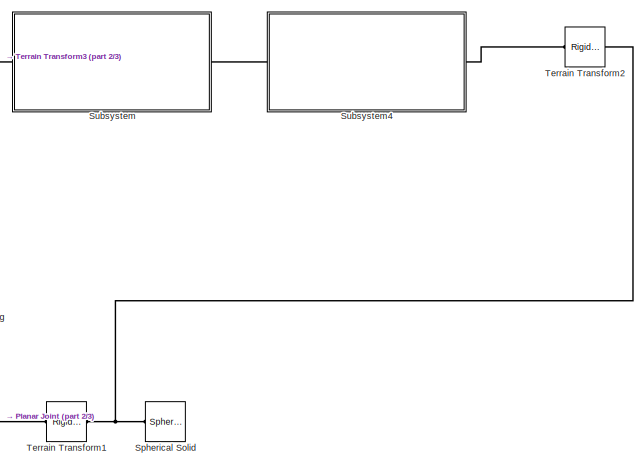
[diagram: root canvas - part 1/3, center side, full height]
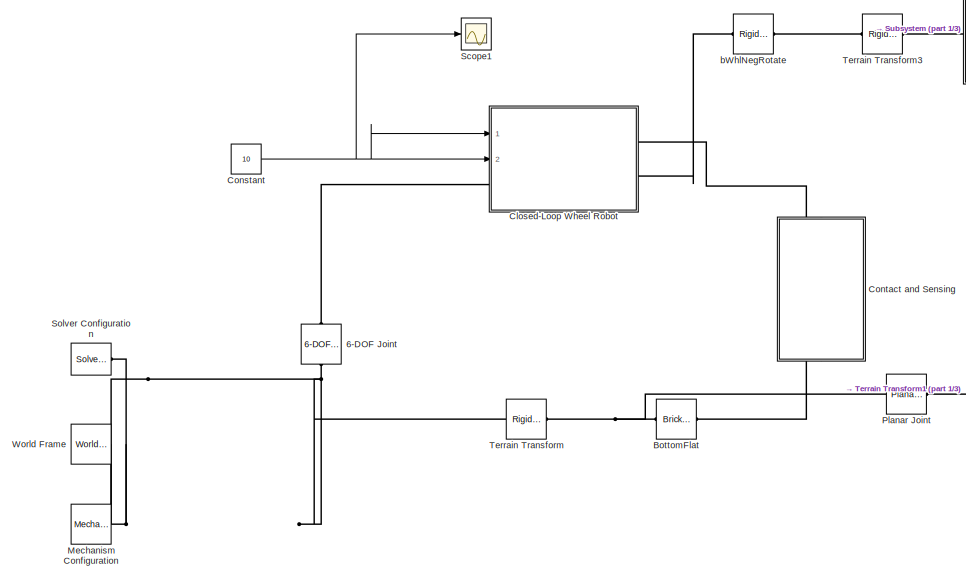
[diagram: root canvas - part 2/3, left side, full height]
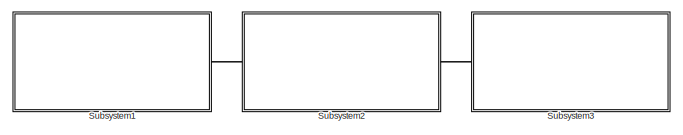
[diagram: root canvas - part 3/3, top right region]
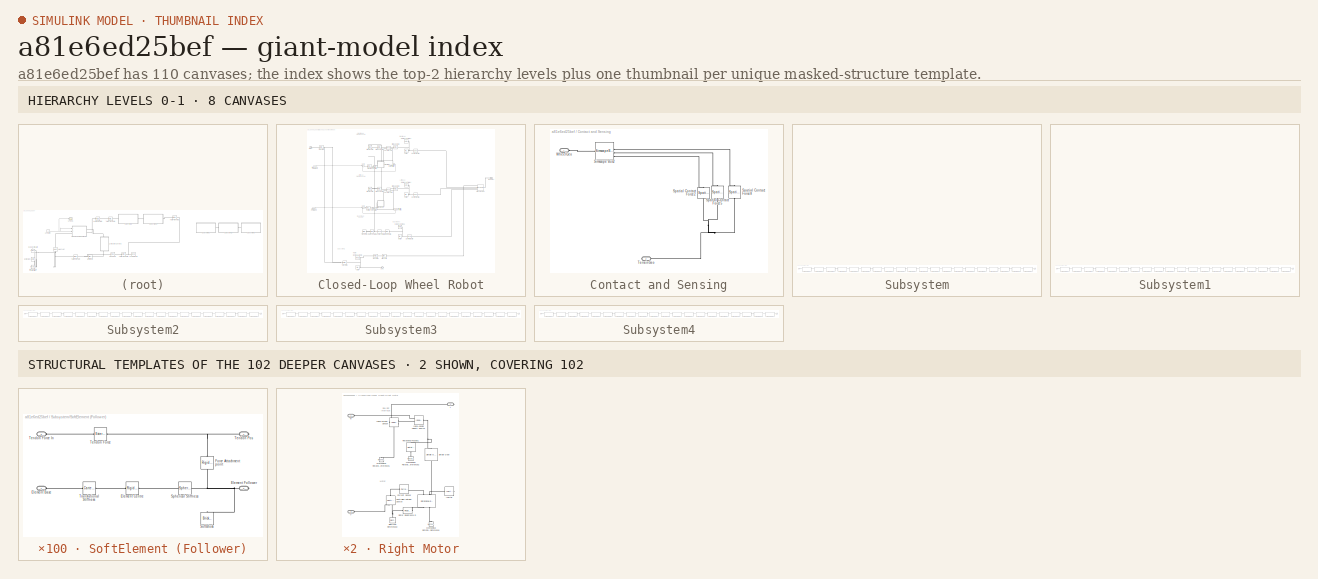
[diagram: thumbnail index - top-2 hierarchy levels (8 canvases) + 2 structural-template representatives of the remaining 102 canvases]
MODEL slx_a81e6ed25bef
KIND model
CONFIG AbsTol = auto
CONFIG EnableMultiTasking = on
CONFIG FixedStep = 0.001
CONFIG MaxStep = auto
CONFIG MinStep = auto
CONFIG RelTol = 1e-3
CONFIG SampleTimeConstraint = Unconstrained
CONFIG SolverName = VariableStepAuto
CONFIG StartTime = 0.0
CONFIG StopTime = 20
WORKSPACE source: external: MATLAB File  (data not in archive)
BLOCK [Reference] 6-DOF Joint  REF=sm_lib/Joints/6-DOF Joint
  NameLocation = right
  Ports = [0, 0, 0, 0, 0, 1, 1]
  SourceBlock = sm_lib/Joints/6-DOF Joint
  SourceProductBaseCode = MS
  SourceType = 6-DOF Joint
BLOCK [Reference] BottomFlat  REF=sm_lib/Body Elements/Brick Solid
  Ports = [0, 0, 0, 0, 0, 1, 1]
  SourceBlock = sm_lib/Body Elements/Brick Solid
  SourceProductBaseCode = MS
  SourceType = Brick Solid
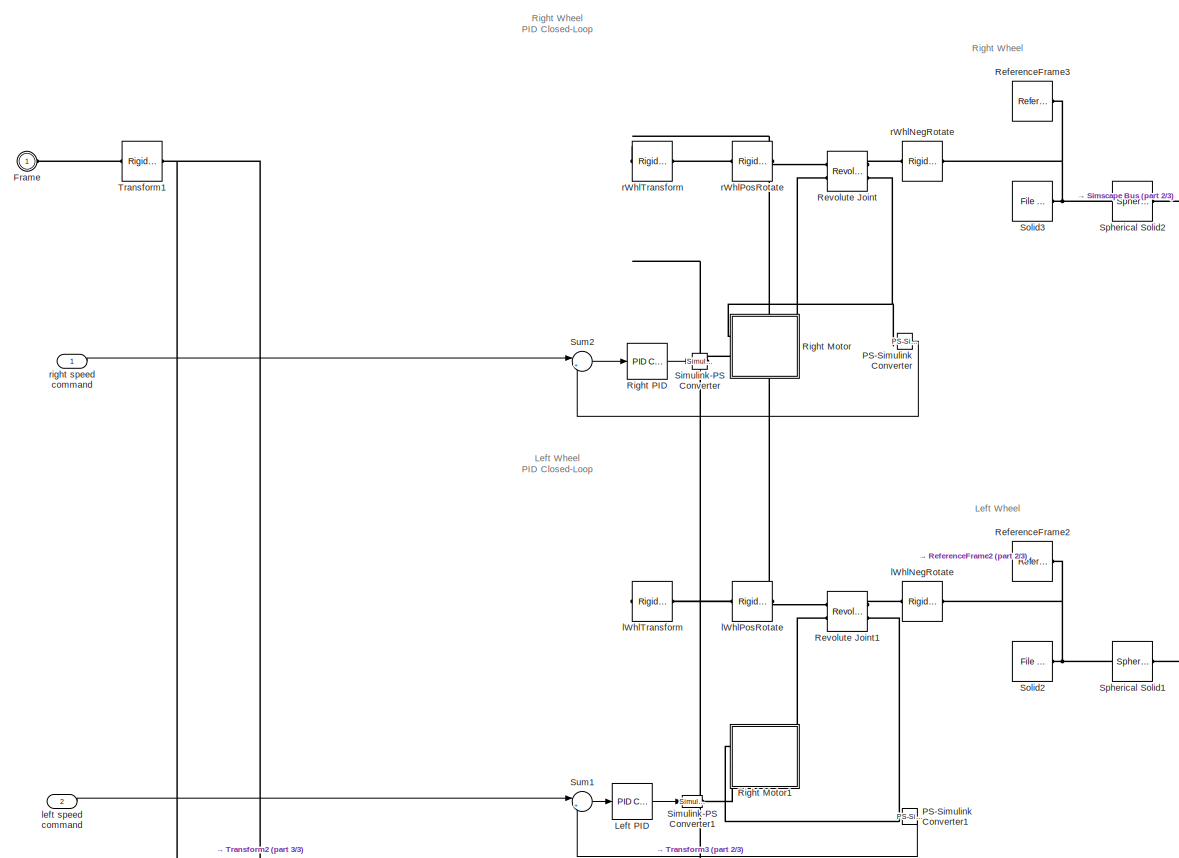
[diagram: Closed-Loop Wheel Robot - part 1/3, top left region]
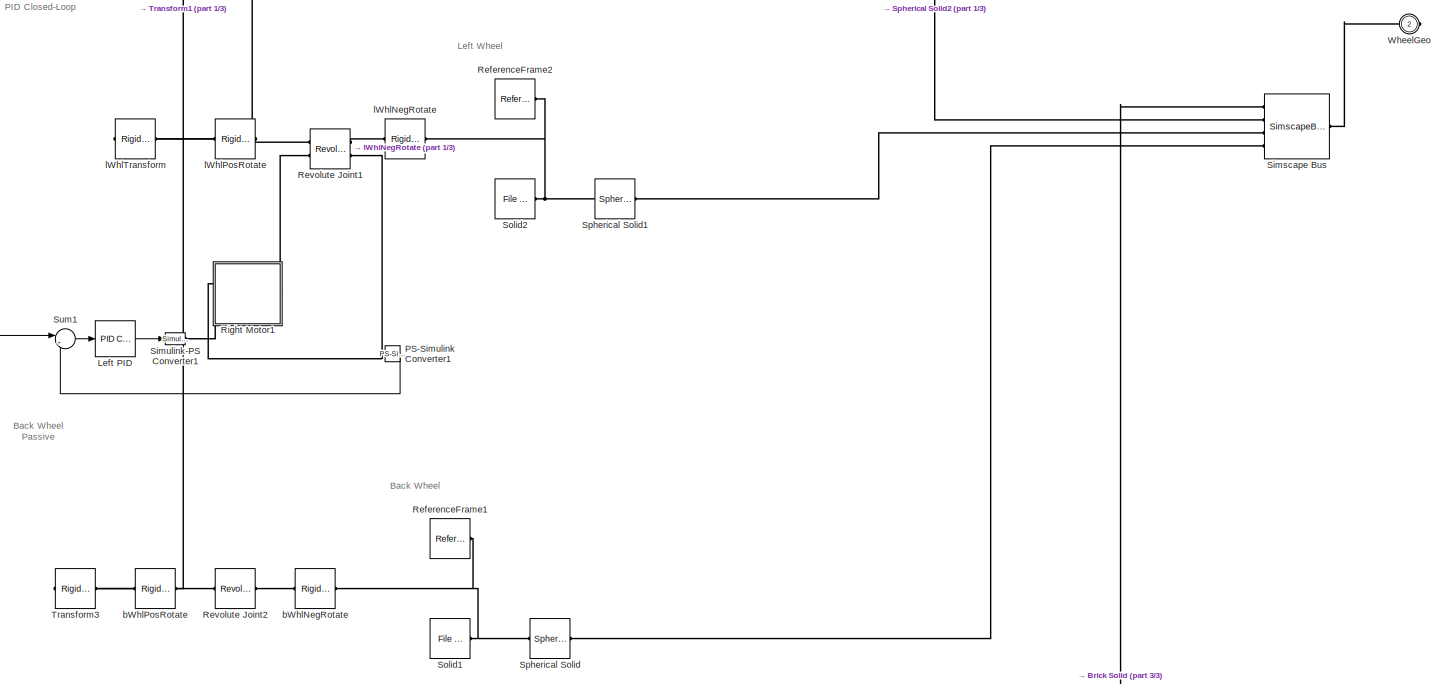
[diagram: Closed-Loop Wheel Robot - part 2/3, full width, middle band]
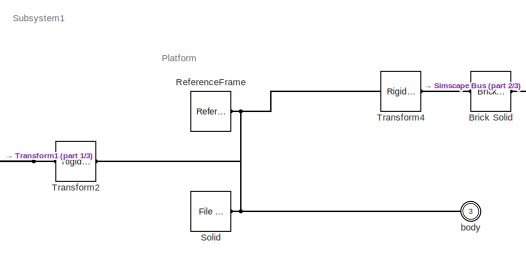
[diagram: Closed-Loop Wheel Robot - part 3/3, bottom left region]
BLOCK [SubSystem] Closed-Loop Wheel Robot
  Ports = [2, 0, 0, 0, 0, 1, 2]
  RequestExecContextInheritance = off
BLOCK [Reference] Closed-Loop Wheel Robot/Brick Solid  REF=sm_lib/Body Elements/Brick Solid
  Ports = [0, 0, 0, 0, 0, 1, 1]
  SourceBlock = sm_lib/Body Elements/Brick Solid
  SourceProductBaseCode = MS
  SourceType = Brick Solid
BLOCK [PMIOPort] Closed-Loop Wheel Robot/Frame
  Side = Left
BLOCK [Reference] Closed-Loop Wheel Robot/Left PID  REF=pid_lib/PID Controller
  Ports = [1, 1]
  SourceBlock = pid_lib/PID Controller
  SourceProductBaseCode = SL
  SourceType = PID 1dof
BLOCK [Reference] Closed-Loop Wheel Robot/PS-Simulink Converter  REF=nesl_utility/PS-Simulink
Converter
  Ports = [0, 1, 0, 0, 0, 1]
  SourceBlock = nesl_utility/PS-Simulink\nConverter
  SourceProductBaseCode = SS
  SourceType = PS-Simulink\nConverter
BLOCK [Reference] Closed-Loop Wheel Robot/PS-Simulink Converter1  REF=nesl_utility/PS-Simulink
Converter
  Ports = [0, 1, 0, 0, 0, 1]
  SourceBlock = nesl_utility/PS-Simulink\nConverter
  SourceProductBaseCode = SS
  SourceType = PS-Simulink\nConverter
BLOCK [Reference] Closed-Loop Wheel Robot/ReferenceFrame  REF=sm_lib/Frames and
Transforms/Reference
Frame
  Ports = [0, 0, 0, 0, 0, 0, 1]
  SourceBlock = sm_lib/Frames and\nTransforms/Reference\nFrame
  SourceProductBaseCode = MS
  SourceType = Reference\nFrame
BLOCK [Reference] Closed-Loop Wheel Robot/ReferenceFrame1  REF=sm_lib/Frames and
Transforms/Reference
Frame
  Ports = [0, 0, 0, 0, 0, 0, 1]
  SourceBlock = sm_lib/Frames and\nTransforms/Reference\nFrame
  SourceProductBaseCode = MS
  SourceType = Reference\nFrame
BLOCK [Reference] Closed-Loop Wheel Robot/ReferenceFrame2  REF=sm_lib/Frames and
Transforms/Reference
Frame
  Ports = [0, 0, 0, 0, 0, 0, 1]
  SourceBlock = sm_lib/Frames and\nTransforms/Reference\nFrame
  SourceProductBaseCode = MS
  SourceType = Reference\nFrame
BLOCK [Reference] Closed-Loop Wheel Robot/ReferenceFrame3  REF=sm_lib/Frames and
Transforms/Reference
Frame
  Ports = [0, 0, 0, 0, 0, 0, 1]
  SourceBlock = sm_lib/Frames and\nTransforms/Reference\nFrame
  SourceProductBaseCode = MS
  SourceType = Reference\nFrame
BLOCK [Reference] Closed-Loop Wheel Robot/Revolute Joint  REF=sm_lib/Joints/Revolute Joint
  Ports = [0, 0, 0, 0, 0, 2, 2]
  SourceBlock = sm_lib/Joints/Revolute Joint
  SourceProductBaseCode = MS
  SourceType = Revolute Joint
BLOCK [Reference] Closed-Loop Wheel Robot/Revolute Joint1  REF=sm_lib/Joints/Revolute Joint
  Ports = [0, 0, 0, 0, 0, 2, 2]
  SourceBlock = sm_lib/Joints/Revolute Joint
  SourceProductBaseCode = MS
  SourceType = Revolute Joint
BLOCK [Reference] Closed-Loop Wheel Robot/Revolute Joint2  REF=sm_lib/Joints/Revolute Joint
  Ports = [0, 0, 0, 0, 0, 1, 1]
  SourceBlock = sm_lib/Joints/Revolute Joint
  SourceProductBaseCode = MS
  SourceType = Revolute Joint
BLOCK [SubSystem] Closed-Loop Wheel Robot/Right Motor
  Ports = [0, 0, 0, 0, 0, 2, 1]
  RequestExecContextInheritance = off
BLOCK [Reference] Closed-Loop Wheel Robot/Right Motor/   REF=fl_lib/Electrical/Electrical Elements/Rotational
Electromechanical
Converter
  NameLocation = right
  Ports = [0, 0, 0, 0, 0, 2, 2]
  SourceBlock = fl_lib/Electrical/Electrical Elements/Rotational\nElectromechanical\nConverter
  SourceProductBaseCode = SS
  SourceType = Rotational\nElectromechanical\nConverter
BLOCK [Reference] Closed-Loop Wheel Robot/Right Motor/Controlled Voltage Source  REF=fl_lib/Electrical/Electrical Sources/Controlled Voltage
Source
  NameLocation = right
  Ports = [0, 0, 0, 0, 0, 1, 2]
  SourceBlock = fl_lib/Electrical/Electrical Sources/Controlled Voltage\nSource
  SourceProductBaseCode = SS
  SourceType = Controlled Voltage\nSource
BLOCK [Reference] Closed-Loop Wheel Robot/Right Motor/Current Sensor  REF=fl_lib/Electrical/Electrical Sensors/Current Sensor
  Ports = [0, 0, 0, 0, 0, 1, 2]
  SourceBlock = fl_lib/Electrical/Electrical Sensors/Current Sensor
  SourceProductBaseCode = SS
  SourceType = Current Sensor
BLOCK [Reference] Closed-Loop Wheel Robot/Right Motor/Electrical Reference2  REF=fl_lib/Electrical/Electrical Elements/Electrical Reference
  NameLocation = right
  Ports = [0, 0, 0, 0, 0, 1]
  SourceBlock = fl_lib/Electrical/Electrical Elements/Electrical Reference
  SourceProductBaseCode = SS
  SourceType = Electrical Reference
BLOCK [Reference] Closed-Loop Wheel Robot/Right Motor/Ideal Angular Velocity Source  REF=fl_lib/Mechanical/Mechanical Sources/Ideal Angular
Velocity Source
  Ports = [0, 0, 0, 0, 0, 1, 2]
  SourceBlock = fl_lib/Mechanical/Mechanical Sources/Ideal Angular\nVelocity Source
  SourceProductBaseCode = SS
  SourceType = Ideal Angular\nVelocity Source
BLOCK [Reference] Closed-Loop Wheel Robot/Right Motor/Ideal Torque Sensor  REF=fl_lib/Mechanical/Mechanical Sensors/Ideal Torque Sensor
  NameLocation = top
  Ports = [0, 0, 0, 0, 0, 1, 2]
  SourceBlock = fl_lib/Mechanical/Mechanical Sensors/Ideal Torque Sensor
  SourceProductBaseCode = SS
  SourceType = Ideal Torque Sensor
BLOCK [Reference] Closed-Loop Wheel Robot/Right Motor/Inertia  REF=fl_lib/Mechanical/Rotational Elements/Inertia
  NameLocation = top
  Ports = [0, 0, 0, 0, 0, 1]
  SourceBlock = fl_lib/Mechanical/Rotational Elements/Inertia
  SourceProductBaseCode = SS
  SourceType = Inertia
BLOCK [Reference] Closed-Loop Wheel Robot/Right Motor/Mechanical Rotational Reference  REF=fl_lib/Mechanical/Rotational Elements/Mechanical
Rotational Reference
  NameLocation = left
  Ports = [0, 0, 0, 0, 0, 1]
  SourceBlock = fl_lib/Mechanical/Rotational Elements/Mechanical\nRotational Reference
  SourceProductBaseCode = SS
  SourceType = Mechanical\nRotational Reference
BLOCK [Reference] Closed-Loop Wheel Robot/Right Motor/Mechanical Rotational Reference1  REF=fl_lib/Mechanical/Rotational Elements/Mechanical
Rotational Reference
  NameLocation = left
  Ports = [0, 0, 0, 0, 0, 1]
  SourceBlock = fl_lib/Mechanical/Rotational Elements/Mechanical\nRotational Reference
  SourceProductBaseCode = SS
  SourceType = Mechanical\nRotational Reference
BLOCK [Reference] Closed-Loop Wheel Robot/Right Motor/Mechanical Rotational Reference2  REF=fl_lib/Mechanical/Rotational Elements/Mechanical
Rotational Reference
  NameLocation = left
  Ports = [0, 0, 0, 0, 0, 1]
  SourceBlock = fl_lib/Mechanical/Rotational Elements/Mechanical\nRotational Reference
  SourceProductBaseCode = SS
  SourceType = Mechanical\nRotational Reference
BLOCK [Reference] Closed-Loop Wheel Robot/Right Motor/Rotational Friction1  REF=fl_lib/Mechanical/Rotational Elements/Rotational Friction
  NameLocation = left
  Ports = [0, 0, 0, 0, 0, 1, 1]
  SourceBlock = fl_lib/Mechanical/Rotational Elements/Rotational Friction
  SourceProductBaseCode = SS
  SourceType = Rotational Friction
BLOCK [Reference] Closed-Loop Wheel Robot/Right Motor/Rotor Resistance,R  REF=fl_lib/Electrical/Electrical Elements/Resistor
  Ports = [0, 0, 0, 0, 0, 1, 1]
  SourceBlock = fl_lib/Electrical/Electrical Elements/Resistor
  SourceProductBaseCode = SS
  SourceType = Resistor
  Tag = Factory Generic
BLOCK [Reference] Closed-Loop Wheel Robot/Right Motor/Simple Gear  REF=sdl_lib/Gears/Simple Gear
  NameLocation = right
  Ports = [0, 0, 0, 0, 0, 1, 1]
  SourceBlock = sdl_lib/Gears/Simple Gear
  SourceProductBaseCode = LD
  SourceType = Simple Gear
BLOCK [PMIOPort] Closed-Loop Wheel Robot/Right Motor/V
  Port = 3
  Side = Left
BLOCK [PMIOPort] Closed-Loop Wheel Robot/Right Motor/t
  Port = 2
  Side = Right
BLOCK [PMIOPort] Closed-Loop Wheel Robot/Right Motor/w
  Side = Left
BLOCK [SubSystem] Closed-Loop Wheel Robot/Right Motor1
  Ports = [0, 0, 0, 0, 0, 2, 1]
  RequestExecContextInheritance = off
BLOCK [Reference] Closed-Loop Wheel Robot/Right Motor1/   REF=fl_lib/Electrical/Electrical Elements/Rotational
Electromechanical
Converter
  NameLocation = right
  Ports = [0, 0, 0, 0, 0, 2, 2]
  SourceBlock = fl_lib/Electrical/Electrical Elements/Rotational\nElectromechanical\nConverter
  SourceProductBaseCode = SS
  SourceType = Rotational\nElectromechanical\nConverter
BLOCK [Reference] Closed-Loop Wheel Robot/Right Motor1/Controlled Voltage Source  REF=fl_lib/Electrical/Electrical Sources/Controlled Voltage
Source
  NameLocation = right
  Ports = [0, 0, 0, 0, 0, 1, 2]
  SourceBlock = fl_lib/Electrical/Electrical Sources/Controlled Voltage\nSource
  SourceProductBaseCode = SS
  SourceType = Controlled Voltage\nSource
BLOCK [Reference] Closed-Loop Wheel Robot/Right Motor1/Current Sensor  REF=fl_lib/Electrical/Electrical Sensors/Current Sensor
  Ports = [0, 0, 0, 0, 0, 1, 2]
  SourceBlock = fl_lib/Electrical/Electrical Sensors/Current Sensor
  SourceProductBaseCode = SS
  SourceType = Current Sensor
BLOCK [Reference] Closed-Loop Wheel Robot/Right Motor1/Electrical Reference2  REF=fl_lib/Electrical/Electrical Elements/Electrical Reference
  NameLocation = right
  Ports = [0, 0, 0, 0, 0, 1]
  SourceBlock = fl_lib/Electrical/Electrical Elements/Electrical Reference
  SourceProductBaseCode = SS
  SourceType = Electrical Reference
BLOCK [Reference] Closed-Loop Wheel Robot/Right Motor1/Ideal Angular Velocity Source  REF=fl_lib/Mechanical/Mechanical Sources/Ideal Angular
Velocity Source
  Ports = [0, 0, 0, 0, 0, 1, 2]
  SourceBlock = fl_lib/Mechanical/Mechanical Sources/Ideal Angular\nVelocity Source
  SourceProductBaseCode = SS
  SourceType = Ideal Angular\nVelocity Source
BLOCK [Reference] Closed-Loop Wheel Robot/Right Motor1/Ideal Torque Sensor  REF=fl_lib/Mechanical/Mechanical Sensors/Ideal Torque Sensor
  NameLocation = top
  Ports = [0, 0, 0, 0, 0, 1, 2]
  SourceBlock = fl_lib/Mechanical/Mechanical Sensors/Ideal Torque Sensor
  SourceProductBaseCode = SS
  SourceType = Ideal Torque Sensor
BLOCK [Reference] Closed-Loop Wheel Robot/Right Motor1/Inertia  REF=fl_lib/Mechanical/Rotational Elements/Inertia
  NameLocation = top
  Ports = [0, 0, 0, 0, 0, 1]
  SourceBlock = fl_lib/Mechanical/Rotational Elements/Inertia
  SourceProductBaseCode = SS
  SourceType = Inertia
BLOCK [Reference] Closed-Loop Wheel Robot/Right Motor1/Mechanical Rotational Reference  REF=fl_lib/Mechanical/Rotational Elements/Mechanical
Rotational Reference
  NameLocation = left
  Ports = [0, 0, 0, 0, 0, 1]
  SourceBlock = fl_lib/Mechanical/Rotational Elements/Mechanical\nRotational Reference
  SourceProductBaseCode = SS
  SourceType = Mechanical\nRotational Reference
BLOCK [Reference] Closed-Loop Wheel Robot/Right Motor1/Mechanical Rotational Reference1  REF=fl_lib/Mechanical/Rotational Elements/Mechanical
Rotational Reference
  NameLocation = left
  Ports = [0, 0, 0, 0, 0, 1]
  SourceBlock = fl_lib/Mechanical/Rotational Elements/Mechanical\nRotational Reference
  SourceProductBaseCode = SS
  SourceType = Mechanical\nRotational Reference
BLOCK [Reference] Closed-Loop Wheel Robot/Right Motor1/Mechanical Rotational Reference2  REF=fl_lib/Mechanical/Rotational Elements/Mechanical
Rotational Reference
  NameLocation = left
  Ports = [0, 0, 0, 0, 0, 1]
  SourceBlock = fl_lib/Mechanical/Rotational Elements/Mechanical\nRotational Reference
  SourceProductBaseCode = SS
  SourceType = Mechanical\nRotational Reference
BLOCK [Reference] Closed-Loop Wheel Robot/Right Motor1/Rotational Friction2  REF=fl_lib/Mechanical/Rotational Elements/Rotational Friction
  NameLocation = left
  Ports = [0, 0, 0, 0, 0, 1, 1]
  SourceBlock = fl_lib/Mechanical/Rotational Elements/Rotational Friction
  SourceProductBaseCode = SS
  SourceType = Rotational Friction
BLOCK [Reference] Closed-Loop Wheel Robot/Right Motor1/Rotor Resistance,R  REF=fl_lib/Electrical/Electrical Elements/Resistor
  Ports = [0, 0, 0, 0, 0, 1, 1]
  SourceBlock = fl_lib/Electrical/Electrical Elements/Resistor
  SourceProductBaseCode = SS
  SourceType = Resistor
  Tag = Factory Generic
BLOCK [Reference] Closed-Loop Wheel Robot/Right Motor1/Simple Gear  REF=sdl_lib/Gears/Simple Gear
  NameLocation = right
  Ports = [0, 0, 0, 0, 0, 1, 1]
  SourceBlock = sdl_lib/Gears/Simple Gear
  SourceProductBaseCode = LD
  SourceType = Simple Gear
BLOCK [PMIOPort] Closed-Loop Wheel Robot/Right Motor1/V
  Port = 3
  Side = Left
BLOCK [PMIOPort] Closed-Loop Wheel Robot/Right Motor1/t
  Port = 2
  Side = Right
BLOCK [PMIOPort] Closed-Loop Wheel Robot/Right Motor1/w
  Side = Left
BLOCK [Reference] Closed-Loop Wheel Robot/Right PID  REF=pid_lib/PID Controller
  Ports = [1, 1]
  SourceBlock = pid_lib/PID Controller
  SourceProductBaseCode = SL
  SourceType = PID 1dof
BLOCK [SimscapeBus] Closed-Loop Wheel Robot/Simscape Bus
  HierarchyStrings = bodyGeo;rWhlGeo;lWhlGeo;bWhlGeo
  Ports = [0, 0, 0, 0, 0, 4, 1]
BLOCK [Reference] Closed-Loop Wheel Robot/Simulink-PS Converter  REF=nesl_utility/Simulink-PS
Converter
  Ports = [1, 0, 0, 0, 0, 0, 1]
  SourceBlock = nesl_utility/Simulink-PS\nConverter
  SourceProductBaseCode = SS
  SourceType = Simulink-PS\nConverter
BLOCK [Reference] Closed-Loop Wheel Robot/Simulink-PS Converter1  REF=nesl_utility/Simulink-PS
Converter
  Ports = [1, 0, 0, 0, 0, 0, 1]
  SourceBlock = nesl_utility/Simulink-PS\nConverter
  SourceProductBaseCode = SS
  SourceType = Simulink-PS\nConverter
BLOCK [Reference] Closed-Loop Wheel Robot/Solid  REF=sm_lib/Body Elements/File Solid
  Ports = [0, 0, 0, 0, 0, 0, 1]
  SourceBlock = sm_lib/Body Elements/File Solid
  SourceProductBaseCode = MS
  SourceType = File Solid
BLOCK [Reference] Closed-Loop Wheel Robot/Solid1  REF=sm_lib/Body Elements/File Solid
  Ports = [0, 0, 0, 0, 0, 0, 1]
  SourceBlock = sm_lib/Body Elements/File Solid
  SourceProductBaseCode = MS
  SourceType = File Solid
BLOCK [Reference] Closed-Loop Wheel Robot/Solid2  REF=sm_lib/Body Elements/File Solid
  Ports = [0, 0, 0, 0, 0, 0, 1]
  SourceBlock = sm_lib/Body Elements/File Solid
  SourceProductBaseCode = MS
  SourceType = File Solid
BLOCK [Reference] Closed-Loop Wheel Robot/Solid3  REF=sm_lib/Body Elements/File Solid
  Ports = [0, 0, 0, 0, 0, 0, 1]
  SourceBlock = sm_lib/Body Elements/File Solid
  SourceProductBaseCode = MS
  SourceType = File Solid
BLOCK [Reference] Closed-Loop Wheel Robot/Spherical Solid  REF=sm_lib/Body Elements/Spherical Solid
  Ports = [0, 0, 0, 0, 0, 1, 1]
  SourceBlock = sm_lib/Body Elements/Spherical Solid
  SourceProductBaseCode = MS
  SourceType = Spherical Solid
BLOCK [Reference] Closed-Loop Wheel Robot/Spherical Solid1  REF=sm_lib/Body Elements/Spherical Solid
  Ports = [0, 0, 0, 0, 0, 1, 1]
  SourceBlock = sm_lib/Body Elements/Spherical Solid
  SourceProductBaseCode = MS
  SourceType = Spherical Solid
BLOCK [Reference] Closed-Loop Wheel Robot/Spherical Solid2  REF=sm_lib/Body Elements/Spherical Solid
  Ports = [0, 0, 0, 0, 0, 1, 1]
  SourceBlock = sm_lib/Body Elements/Spherical Solid
  SourceProductBaseCode = MS
  SourceType = Spherical Solid
BLOCK [Sum] Closed-Loop Wheel Robot/Sum1
  Inputs = |+-
  Ports = [2, 1]
BLOCK [Sum] Closed-Loop Wheel Robot/Sum2
  Inputs = |+-
  Ports = [2, 1]
BLOCK [Reference] Closed-Loop Wheel Robot/Transform1  REF=sm_lib/Frames and
Transforms/Rigid
Transform
  Ports = [0, 0, 0, 0, 0, 1, 1]
  SourceBlock = sm_lib/Frames and\nTransforms/Rigid\nTransform
  SourceProductBaseCode = MS
  SourceType = Rigid\nTransform
BLOCK [Reference] Closed-Loop Wheel Robot/Transform2  REF=sm_lib/Frames and
Transforms/Rigid
Transform
  Ports = [0, 0, 0, 0, 0, 1, 1]
  SourceBlock = sm_lib/Frames and\nTransforms/Rigid\nTransform
  SourceProductBaseCode = MS
  SourceType = Rigid\nTransform
BLOCK [Reference] Closed-Loop Wheel Robot/Transform3  REF=sm_lib/Frames and
Transforms/Rigid
Transform
  Ports = [0, 0, 0, 0, 0, 1, 1]
  SourceBlock = sm_lib/Frames and\nTransforms/Rigid\nTransform
  SourceProductBaseCode = MS
  SourceType = Rigid\nTransform
BLOCK [Reference] Closed-Loop Wheel Robot/Transform4  REF=sm_lib/Frames and
Transforms/Rigid
Transform
  Ports = [0, 0, 0, 0, 0, 1, 1]
  SourceBlock = sm_lib/Frames and\nTransforms/Rigid\nTransform
  SourceProductBaseCode = MS
  SourceType = Rigid\nTransform
BLOCK [PMIOPort] Closed-Loop Wheel Robot/WheelGeo
  Port = 2
  Side = Right
BLOCK [Reference] Closed-Loop Wheel Robot/bWhlNegRotate  REF=sm_lib/Frames and
Transforms/Rigid
Transform
  Ports = [0, 0, 0, 0, 0, 1, 1]
  SourceBlock = sm_lib/Frames and\nTransforms/Rigid\nTransform
  SourceProductBaseCode = MS
  SourceType = Rigid\nTransform
BLOCK [Reference] Closed-Loop Wheel Robot/bWhlPosRotate  REF=sm_lib/Frames and
Transforms/Rigid
Transform
  Ports = [0, 0, 0, 0, 0, 1, 1]
  SourceBlock = sm_lib/Frames and\nTransforms/Rigid\nTransform
  SourceProductBaseCode = MS
  SourceType = Rigid\nTransform
BLOCK [PMIOPort] Closed-Loop Wheel Robot/body
  Port = 3
  Side = Right
BLOCK [Reference] Closed-Loop Wheel Robot/lWhlNegRotate  REF=sm_lib/Frames and
Transforms/Rigid
Transform
  Ports = [0, 0, 0, 0, 0, 1, 1]
  SourceBlock = sm_lib/Frames and\nTransforms/Rigid\nTransform
  SourceProductBaseCode = MS
  SourceType = Rigid\nTransform
BLOCK [Reference] Closed-Loop Wheel Robot/lWhlPosRotate  REF=sm_lib/Frames and
Transforms/Rigid
Transform
  Ports = [0, 0, 0, 0, 0, 1, 1]
  SourceBlock = sm_lib/Frames and\nTransforms/Rigid\nTransform
  SourceProductBaseCode = MS
  SourceType = Rigid\nTransform
BLOCK [Reference] Closed-Loop Wheel Robot/lWhlTransform  REF=sm_lib/Frames and
Transforms/Rigid
Transform
  Ports = [0, 0, 0, 0, 0, 1, 1]
  SourceBlock = sm_lib/Frames and\nTransforms/Rigid\nTransform
  SourceProductBaseCode = MS
  SourceType = Rigid\nTransform
BLOCK [Inport] Closed-Loop Wheel Robot/left speed command
  Port = 2
BLOCK [Reference] Closed-Loop Wheel Robot/rWhlNegRotate  REF=sm_lib/Frames and
Transforms/Rigid
Transform
  Ports = [0, 0, 0, 0, 0, 1, 1]
  SourceBlock = sm_lib/Frames and\nTransforms/Rigid\nTransform
  SourceProductBaseCode = MS
  SourceType = Rigid\nTransform
BLOCK [Reference] Closed-Loop Wheel Robot/rWhlPosRotate  REF=sm_lib/Frames and
Transforms/Rigid
Transform
  Ports = [0, 0, 0, 0, 0, 1, 1]
  SourceBlock = sm_lib/Frames and\nTransforms/Rigid\nTransform
  SourceProductBaseCode = MS
  SourceType = Rigid\nTransform
BLOCK [Reference] Closed-Loop Wheel Robot/rWhlTransform  REF=sm_lib/Frames and
Transforms/Rigid
Transform
  Ports = [0, 0, 0, 0, 0, 1, 1]
  SourceBlock = sm_lib/Frames and\nTransforms/Rigid\nTransform
  SourceProductBaseCode = MS
  SourceType = Rigid\nTransform
BLOCK [Inport] Closed-Loop Wheel Robot/right speed command
BLOCK [Constant] Constant
  Value = 10
BLOCK [SubSystem] Contact and Sensing
  NameLocation = right
  Ports = [0, 0, 0, 0, 0, 1, 1]
  RequestExecContextInheritance = off
BLOCK [SimscapeBus] Contact and Sensing/Simscape Bus2
  HierarchyStrings = bodyGeo;rWhlGeo;lWhlGeo;bWhlGeo
  Ports = [0, 0, 0, 0, 0, 4, 1]
BLOCK [Reference] Contact and Sensing/Spatial Contact Force2  REF=sm_lib/Forces and
Torques/Spatial
Contact Force
  NameLocation = right
  Ports = [0, 0, 0, 0, 0, 1, 1]
  SourceBlock = sm_lib/Forces and\nTorques/Spatial\nContact Force
  SourceProductBaseCode = MS
  SourceType = Spatial\nContact Force
BLOCK [Reference] Contact and Sensing/Spatial Contact Force5  REF=sm_lib/Forces and
Torques/Spatial
Contact Force
  NameLocation = right
  Ports = [0, 0, 0, 0, 0, 1, 1]
  SourceBlock = sm_lib/Forces and\nTorques/Spatial\nContact Force
  SourceProductBaseCode = MS
  SourceType = Spatial\nContact Force
BLOCK [Reference] Contact and Sensing/Spatial Contact Force8  REF=sm_lib/Forces and
Torques/Spatial
Contact Force
  NameLocation = right
  Ports = [0, 0, 0, 0, 0, 1, 1]
  SourceBlock = sm_lib/Forces and\nTorques/Spatial\nContact Force
  SourceProductBaseCode = MS
  SourceType = Spatial\nContact Force
BLOCK [PMIOPort] Contact and Sensing/TerrainGeo
  Port = 2
  Side = Right
BLOCK [PMIOPort] Contact and Sensing/WheelGeo
  Side = Left
BLOCK [Reference] Mechanism Configuration  REF=sm_lib/Utilities/Mechanism
Configuration
  Ports = [0, 0, 0, 0, 0, 0, 1]
  SourceBlock = sm_lib/Utilities/Mechanism\nConfiguration
  SourceProductBaseCode = MS
  SourceType = Mechanism\nConfiguration
BLOCK [Reference] Planar Joint  REF=sm_lib/Joints/Planar Joint
  Ports = [0, 0, 0, 0, 0, 1, 1]
  SourceBlock = sm_lib/Joints/Planar Joint
  SourceProductBaseCode = MS
  SourceType = Planar Joint
BLOCK [Scope] Scope1
  Floating = off
  NumInputPorts = 1
  Ports = [1]
  ScopeSpecificationString = Simulink.scopes.TimeScopeBlockCfg('CurrentConfiguration', extmgr.ConfigurationSet(extmgr.Configuration('Core','General UI',true),extmgr.Configuration('Core','Source UI',true),extmgr.Configuration('Sources','WiredSimulink',true,'DataLoggingVariableName','ScopeData1'),extmgr.Configuration('Visuals','Time Domain',true,'SerializedDisplays',{struct('MinYLimReal','-0.13144','MaxYLimReal','1.18612','YLab...<+1481ch>
BLOCK [Reference] Solver Configuration  REF=nesl_utility/Solver
Configuration
  Ports = [0, 0, 0, 0, 0, 0, 1]
  SourceBlock = nesl_utility/Solver\nConfiguration
  SourceProductBaseCode = SS
  SourceType = Solver\nConfiguration
BLOCK [Reference] Spherical Solid  REF=sm_lib/Body Elements/Spherical Solid
  Ports = [0, 0, 0, 0, 0, 1, 1]
  SourceBlock = sm_lib/Body Elements/Spherical Solid
  SourceProductBaseCode = MS
  SourceType = Spherical Solid
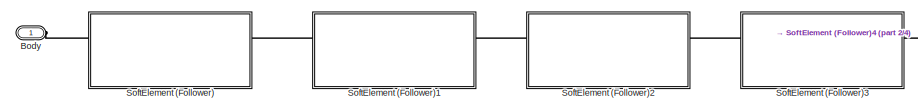
[diagram: Subsystem - part 1/4, left side, full height]
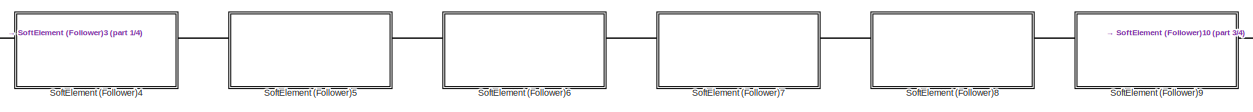
[diagram: Subsystem - part 2/4, center side, full height]
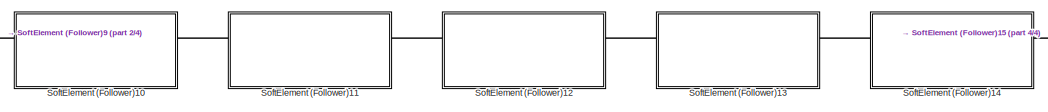
[diagram: Subsystem - part 3/4, center side, full height]
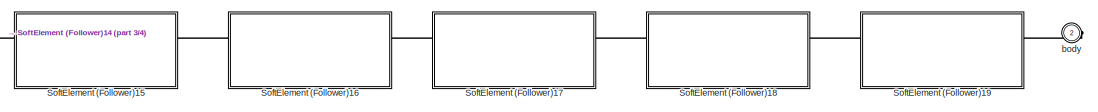
[diagram: Subsystem - part 4/4, right side, full height]
BLOCK [SubSystem] Subsystem
  Ports = [0, 0, 0, 0, 0, 1, 1]
  RequestExecContextInheritance = off
BLOCK [PMIOPort] Subsystem/Body
  Side = Left
BLOCK [SubSystem] Subsystem/SoftElement (Follower)
  Ports = [0, 0, 0, 0, 0, 2, 2]
  RequestExecContextInheritance = off
BLOCK [PMIOPort] Subsystem/SoftElement (Follower)/Element Base
  Side = Left
BLOCK [Reference] Subsystem/SoftElement (Follower)/Element Centre  REF=sm_lib/Frames and
Transforms/Rigid
Transform
  Ports = [0, 0, 0, 0, 0, 1, 1]
  SourceBlock = sm_lib/Frames and\nTransforms/Rigid\nTransform
  SourceProductBaseCode = MS
  SourceType = Rigid\nTransform
BLOCK [PMIOPort] Subsystem/SoftElement (Follower)/Element Follower
  Port = 2
  Side = Right
BLOCK [Reference] Subsystem/SoftElement (Follower)/Force Attachment point  REF=sm_lib/Frames and
Transforms/Rigid
Transform
  NameLocation = right
  Ports = [0, 0, 0, 0, 0, 1, 1]
  SourceBlock = sm_lib/Frames and\nTransforms/Rigid\nTransform
  SourceProductBaseCode = MS
  SourceType = Rigid\nTransform
BLOCK [Reference] Subsystem/SoftElement (Follower)/SoftBlock  REF=sm_lib/Body Elements/Brick Solid
  NameLocation = right
  Ports = [0, 0, 0, 0, 0, 0, 1]
  SourceBlock = sm_lib/Body Elements/Brick Solid
  SourceProductBaseCode = MS
  SourceType = Brick Solid
BLOCK [Reference] Subsystem/SoftElement (Follower)/Spherical Stiffness  REF=sm_lib/Joints/Spherical
Joint
  Ports = [0, 0, 0, 0, 0, 1, 1]
  SourceBlock = sm_lib/Joints/Spherical\nJoint
  SourceProductBaseCode = MS
  SourceType = Spherical\nJoint
BLOCK [Reference] Subsystem/SoftElement (Follower)/Tendon Force  REF=sm_lib/Forces and
Torques/External Force
and Torque
  Ports = [0, 0, 0, 0, 0, 1, 1]
  SourceBlock = sm_lib/Forces and\nTorques/External Force\nand Torque
  SourceProductBaseCode = MS
  SourceType = External Force\nand Torque
BLOCK [PMIOPort] Subsystem/SoftElement (Follower)/Tendon Force In
  Port = 3
  Side = Left
BLOCK [PMIOPort] Subsystem/SoftElement (Follower)/Tendon Pos
  Port = 4
  Side = Right
BLOCK [Reference] Subsystem/SoftElement (Follower)/Translational Stiffness  REF=sm_lib/Joints/Cartesian
Joint
  Ports = [0, 0, 0, 0, 0, 1, 1]
  SourceBlock = sm_lib/Joints/Cartesian\nJoint
  SourceProductBaseCode = MS
  SourceType = Cartesian\nJoint
BLOCK [SubSystem] Subsystem/SoftElement (Follower)1
  Ports = [0, 0, 0, 0, 0, 2, 2]
  RequestExecContextInheritance = off
BLOCK [PMIOPort] Subsystem/SoftElement (Follower)1/Element Base
  Side = Left
BLOCK [Reference] Subsystem/SoftElement (Follower)1/Element Centre  REF=sm_lib/Frames and
Transforms/Rigid
Transform
  Ports = [0, 0, 0, 0, 0, 1, 1]
  SourceBlock = sm_lib/Frames and\nTransforms/Rigid\nTransform
  SourceProductBaseCode = MS
  SourceType = Rigid\nTransform
BLOCK [PMIOPort] Subsystem/SoftElement (Follower)1/Element Follower
  Port = 2
  Side = Right
BLOCK [Reference] Subsystem/SoftElement (Follower)1/Force Attachment point  REF=sm_lib/Frames and
Transforms/Rigid
Transform
  NameLocation = right
  Ports = [0, 0, 0, 0, 0, 1, 1]
  SourceBlock = sm_lib/Frames and\nTransforms/Rigid\nTransform
  SourceProductBaseCode = MS
  SourceType = Rigid\nTransform
BLOCK [Reference] Subsystem/SoftElement (Follower)1/SoftBlock  REF=sm_lib/Body Elements/Brick Solid
  NameLocation = right
  Ports = [0, 0, 0, 0, 0, 0, 1]
  SourceBlock = sm_lib/Body Elements/Brick Solid
  SourceProductBaseCode = MS
  SourceType = Brick Solid
BLOCK [Reference] Subsystem/SoftElement (Follower)1/Spherical Stiffness  REF=sm_lib/Joints/Spherical
Joint
  Ports = [0, 0, 0, 0, 0, 1, 1]
  SourceBlock = sm_lib/Joints/Spherical\nJoint
  SourceProductBaseCode = MS
  SourceType = Spherical\nJoint
BLOCK [Reference] Subsystem/SoftElement (Follower)1/Tendon Force  REF=sm_lib/Forces and
Torques/External Force
and Torque
  Ports = [0, 0, 0, 0, 0, 1, 1]
  SourceBlock = sm_lib/Forces and\nTorques/External Force\nand Torque
  SourceProductBaseCode = MS
  SourceType = External Force\nand Torque
BLOCK [PMIOPort] Subsystem/SoftElement (Follower)1/Tendon Force In
  Port = 3
  Side = Left
BLOCK [PMIOPort] Subsystem/SoftElement (Follower)1/Tendon Pos
  Port = 4
  Side = Right
BLOCK [Reference] Subsystem/SoftElement (Follower)1/Translational Stiffness  REF=sm_lib/Joints/Cartesian
Joint
  Ports = [0, 0, 0, 0, 0, 1, 1]
  SourceBlock = sm_lib/Joints/Cartesian\nJoint
  SourceProductBaseCode = MS
  SourceType = Cartesian\nJoint
BLOCK [SubSystem] Subsystem/SoftElement (Follower)10
  Ports = [0, 0, 0, 0, 0, 2, 2]
  RequestExecContextInheritance = off
BLOCK [PMIOPort] Subsystem/SoftElement (Follower)10/Element Base
  Side = Left
BLOCK [Reference] Subsystem/SoftElement (Follower)10/Element Centre  REF=sm_lib/Frames and
Transforms/Rigid
Transform
  Ports = [0, 0, 0, 0, 0, 1, 1]
  SourceBlock = sm_lib/Frames and\nTransforms/Rigid\nTransform
  SourceProductBaseCode = MS
  SourceType = Rigid\nTransform
BLOCK [PMIOPort] Subsystem/SoftElement (Follower)10/Element Follower
  Port = 2
  Side = Right
BLOCK [Reference] Subsystem/SoftElement (Follower)10/Force Attachment point  REF=sm_lib/Frames and
Transforms/Rigid
Transform
  NameLocation = right
  Ports = [0, 0, 0, 0, 0, 1, 1]
  SourceBlock = sm_lib/Frames and\nTransforms/Rigid\nTransform
  SourceProductBaseCode = MS
  SourceType = Rigid\nTransform
BLOCK [Reference] Subsystem/SoftElement (Follower)10/SoftBlock  REF=sm_lib/Body Elements/Brick Solid
  NameLocation = right
  Ports = [0, 0, 0, 0, 0, 0, 1]
  SourceBlock = sm_lib/Body Elements/Brick Solid
  SourceProductBaseCode = MS
  SourceType = Brick Solid
BLOCK [Reference] Subsystem/SoftElement (Follower)10/Spherical Stiffness  REF=sm_lib/Joints/Spherical
Joint
  Ports = [0, 0, 0, 0, 0, 1, 1]
  SourceBlock = sm_lib/Joints/Spherical\nJoint
  SourceProductBaseCode = MS
  SourceType = Spherical\nJoint
BLOCK [Reference] Subsystem/SoftElement (Follower)10/Tendon Force  REF=sm_lib/Forces and
Torques/External Force
and Torque
  Ports = [0, 0, 0, 0, 0, 1, 1]
  SourceBlock = sm_lib/Forces and\nTorques/External Force\nand Torque
  SourceProductBaseCode = MS
  SourceType = External Force\nand Torque
BLOCK [PMIOPort] Subsystem/SoftElement (Follower)10/Tendon Force In
  Port = 3
  Side = Left
BLOCK [PMIOPort] Subsystem/SoftElement (Follower)10/Tendon Pos
  Port = 4
  Side = Right
BLOCK [Reference] Subsystem/SoftElement (Follower)10/Translational Stiffness  REF=sm_lib/Joints/Cartesian
Joint
  Ports = [0, 0, 0, 0, 0, 1, 1]
  SourceBlock = sm_lib/Joints/Cartesian\nJoint
  SourceProductBaseCode = MS
  SourceType = Cartesian\nJoint
BLOCK [SubSystem] Subsystem/SoftElement (Follower)11
  Ports = [0, 0, 0, 0, 0, 2, 2]
  RequestExecContextInheritance = off
BLOCK [PMIOPort] Subsystem/SoftElement (Follower)11/Element Base
  Side = Left
BLOCK [Reference] Subsystem/SoftElement (Follower)11/Element Centre  REF=sm_lib/Frames and
Transforms/Rigid
Transform
  Ports = [0, 0, 0, 0, 0, 1, 1]
  SourceBlock = sm_lib/Frames and\nTransforms/Rigid\nTransform
  SourceProductBaseCode = MS
  SourceType = Rigid\nTransform
BLOCK [PMIOPort] Subsystem/SoftElement (Follower)11/Element Follower
  Port = 2
  Side = Right
BLOCK [Reference] Subsystem/SoftElement (Follower)11/Force Attachment point  REF=sm_lib/Frames and
Transforms/Rigid
Transform
  NameLocation = right
  Ports = [0, 0, 0, 0, 0, 1, 1]
  SourceBlock = sm_lib/Frames and\nTransforms/Rigid\nTransform
  SourceProductBaseCode = MS
  SourceType = Rigid\nTransform
BLOCK [Reference] Subsystem/SoftElement (Follower)11/SoftBlock  REF=sm_lib/Body Elements/Brick Solid
  NameLocation = right
  Ports = [0, 0, 0, 0, 0, 0, 1]
  SourceBlock = sm_lib/Body Elements/Brick Solid
  SourceProductBaseCode = MS
  SourceType = Brick Solid
BLOCK [Reference] Subsystem/SoftElement (Follower)11/Spherical Stiffness  REF=sm_lib/Joints/Spherical
Joint
  Ports = [0, 0, 0, 0, 0, 1, 1]
  SourceBlock = sm_lib/Joints/Spherical\nJoint
  SourceProductBaseCode = MS
  SourceType = Spherical\nJoint
BLOCK [Reference] Subsystem/SoftElement (Follower)11/Tendon Force  REF=sm_lib/Forces and
Torques/External Force
and Torque
  Ports = [0, 0, 0, 0, 0, 1, 1]
  SourceBlock = sm_lib/Forces and\nTorques/External Force\nand Torque
  SourceProductBaseCode = MS
  SourceType = External Force\nand Torque
BLOCK [PMIOPort] Subsystem/SoftElement (Follower)11/Tendon Force In
  Port = 3
  Side = Left
BLOCK [PMIOPort] Subsystem/SoftElement (Follower)11/Tendon Pos
  Port = 4
  Side = Right
BLOCK [Reference] Subsystem/SoftElement (Follower)11/Translational Stiffness  REF=sm_lib/Joints/Cartesian
Joint
  Ports = [0, 0, 0, 0, 0, 1, 1]
  SourceBlock = sm_lib/Joints/Cartesian\nJoint
  SourceProductBaseCode = MS
  SourceType = Cartesian\nJoint
BLOCK [SubSystem] Subsystem/SoftElement (Follower)12
  Ports = [0, 0, 0, 0, 0, 2, 2]
  RequestExecContextInheritance = off
BLOCK [PMIOPort] Subsystem/SoftElement (Follower)12/Element Base
  Side = Left
BLOCK [Reference] Subsystem/SoftElement (Follower)12/Element Centre  REF=sm_lib/Frames and
Transforms/Rigid
Transform
  Ports = [0, 0, 0, 0, 0, 1, 1]
  SourceBlock = sm_lib/Frames and\nTransforms/Rigid\nTransform
  SourceProductBaseCode = MS
  SourceType = Rigid\nTransform
BLOCK [PMIOPort] Subsystem/SoftElement (Follower)12/Element Follower
  Port = 2
  Side = Right
BLOCK [Reference] Subsystem/SoftElement (Follower)12/Force Attachment point  REF=sm_lib/Frames and
Transforms/Rigid
Transform
  NameLocation = right
  Ports = [0, 0, 0, 0, 0, 1, 1]
  SourceBlock = sm_lib/Frames and\nTransforms/Rigid\nTransform
  SourceProductBaseCode = MS
  SourceType = Rigid\nTransform
BLOCK [Reference] Subsystem/SoftElement (Follower)12/SoftBlock  REF=sm_lib/Body Elements/Brick Solid
  NameLocation = right
  Ports = [0, 0, 0, 0, 0, 0, 1]
  SourceBlock = sm_lib/Body Elements/Brick Solid
  SourceProductBaseCode = MS
  SourceType = Brick Solid
BLOCK [Reference] Subsystem/SoftElement (Follower)12/Spherical Stiffness  REF=sm_lib/Joints/Spherical
Joint
  Ports = [0, 0, 0, 0, 0, 1, 1]
  SourceBlock = sm_lib/Joints/Spherical\nJoint
  SourceProductBaseCode = MS
  SourceType = Spherical\nJoint
BLOCK [Reference] Subsystem/SoftElement (Follower)12/Tendon Force  REF=sm_lib/Forces and
Torques/External Force
and Torque
  Ports = [0, 0, 0, 0, 0, 1, 1]
  SourceBlock = sm_lib/Forces and\nTorques/External Force\nand Torque
  SourceProductBaseCode = MS
  SourceType = External Force\nand Torque
BLOCK [PMIOPort] Subsystem/SoftElement (Follower)12/Tendon Force In
  Port = 3
  Side = Left
BLOCK [PMIOPort] Subsystem/SoftElement (Follower)12/Tendon Pos
  Port = 4
  Side = Right
BLOCK [Reference] Subsystem/SoftElement (Follower)12/Translational Stiffness  REF=sm_lib/Joints/Cartesian
Joint
  Ports = [0, 0, 0, 0, 0, 1, 1]
  SourceBlock = sm_lib/Joints/Cartesian\nJoint
  SourceProductBaseCode = MS
  SourceType = Cartesian\nJoint
BLOCK [SubSystem] Subsystem/SoftElement (Follower)13
  Ports = [0, 0, 0, 0, 0, 2, 2]
  RequestExecContextInheritance = off
BLOCK [PMIOPort] Subsystem/SoftElement (Follower)13/Element Base
  Side = Left
BLOCK [Reference] Subsystem/SoftElement (Follower)13/Element Centre  REF=sm_lib/Frames and
Transforms/Rigid
Transform
  Ports = [0, 0, 0, 0, 0, 1, 1]
  SourceBlock = sm_lib/Frames and\nTransforms/Rigid\nTransform
  SourceProductBaseCode = MS
  SourceType = Rigid\nTransform
BLOCK [PMIOPort] Subsystem/SoftElement (Follower)13/Element Follower
  Port = 2
  Side = Right
BLOCK [Reference] Subsystem/SoftElement (Follower)13/Force Attachment point  REF=sm_lib/Frames and
Transforms/Rigid
Transform
  NameLocation = right
  Ports = [0, 0, 0, 0, 0, 1, 1]
  SourceBlock = sm_lib/Frames and\nTransforms/Rigid\nTransform
  SourceProductBaseCode = MS
  SourceType = Rigid\nTransform
BLOCK [Reference] Subsystem/SoftElement (Follower)13/SoftBlock  REF=sm_lib/Body Elements/Brick Solid
  NameLocation = right
  Ports = [0, 0, 0, 0, 0, 0, 1]
  SourceBlock = sm_lib/Body Elements/Brick Solid
  SourceProductBaseCode = MS
  SourceType = Brick Solid
BLOCK [Reference] Subsystem/SoftElement (Follower)13/Spherical Stiffness  REF=sm_lib/Joints/Spherical
Joint
  Ports = [0, 0, 0, 0, 0, 1, 1]
  SourceBlock = sm_lib/Joints/Spherical\nJoint
  SourceProductBaseCode = MS
  SourceType = Spherical\nJoint
BLOCK [Reference] Subsystem/SoftElement (Follower)13/Tendon Force  REF=sm_lib/Forces and
Torques/External Force
and Torque
  Ports = [0, 0, 0, 0, 0, 1, 1]
  SourceBlock = sm_lib/Forces and\nTorques/External Force\nand Torque
  SourceProductBaseCode = MS
  SourceType = External Force\nand Torque
BLOCK [PMIOPort] Subsystem/SoftElement (Follower)13/Tendon Force In
  Port = 3
  Side = Left
BLOCK [PMIOPort] Subsystem/SoftElement (Follower)13/Tendon Pos
  Port = 4
  Side = Right
BLOCK [Reference] Subsystem/SoftElement (Follower)13/Translational Stiffness  REF=sm_lib/Joints/Cartesian
Joint
  Ports = [0, 0, 0, 0, 0, 1, 1]
  SourceBlock = sm_lib/Joints/Cartesian\nJoint
  SourceProductBaseCode = MS
  SourceType = Cartesian\nJoint
BLOCK [SubSystem] Subsystem/SoftElement (Follower)14
  Ports = [0, 0, 0, 0, 0, 2, 2]
  RequestExecContextInheritance = off
BLOCK [PMIOPort] Subsystem/SoftElement (Follower)14/Element Base
  Side = Left
BLOCK [Reference] Subsystem/SoftElement (Follower)14/Element Centre  REF=sm_lib/Frames and
Transforms/Rigid
Transform
  Ports = [0, 0, 0, 0, 0, 1, 1]
  SourceBlock = sm_lib/Frames and\nTransforms/Rigid\nTransform
  SourceProductBaseCode = MS
  SourceType = Rigid\nTransform
BLOCK [PMIOPort] Subsystem/SoftElement (Follower)14/Element Follower
  Port = 2
  Side = Right
BLOCK [Reference] Subsystem/SoftElement (Follower)14/Force Attachment point  REF=sm_lib/Frames and
Transforms/Rigid
Transform
  NameLocation = right
  Ports = [0, 0, 0, 0, 0, 1, 1]
  SourceBlock = sm_lib/Frames and\nTransforms/Rigid\nTransform
  SourceProductBaseCode = MS
  SourceType = Rigid\nTransform
BLOCK [Reference] Subsystem/SoftElement (Follower)14/SoftBlock  REF=sm_lib/Body Elements/Brick Solid
  NameLocation = right
  Ports = [0, 0, 0, 0, 0, 0, 1]
  SourceBlock = sm_lib/Body Elements/Brick Solid
  SourceProductBaseCode = MS
  SourceType = Brick Solid
BLOCK [Reference] Subsystem/SoftElement (Follower)14/Spherical Stiffness  REF=sm_lib/Joints/Spherical
Joint
  Ports = [0, 0, 0, 0, 0, 1, 1]
  SourceBlock = sm_lib/Joints/Spherical\nJoint
  SourceProductBaseCode = MS
  SourceType = Spherical\nJoint
BLOCK [Reference] Subsystem/SoftElement (Follower)14/Tendon Force  REF=sm_lib/Forces and
Torques/External Force
and Torque
  Ports = [0, 0, 0, 0, 0, 1, 1]
  SourceBlock = sm_lib/Forces and\nTorques/External Force\nand Torque
  SourceProductBaseCode = MS
  SourceType = External Force\nand Torque
BLOCK [PMIOPort] Subsystem/SoftElement (Follower)14/Tendon Force In
  Port = 3
  Side = Left
BLOCK [PMIOPort] Subsystem/SoftElement (Follower)14/Tendon Pos
  Port = 4
  Side = Right
BLOCK [Reference] Subsystem/SoftElement (Follower)14/Translational Stiffness  REF=sm_lib/Joints/Cartesian
Joint
  Ports = [0, 0, 0, 0, 0, 1, 1]
  SourceBlock = sm_lib/Joints/Cartesian\nJoint
  SourceProductBaseCode = MS
  SourceType = Cartesian\nJoint
BLOCK [SubSystem] Subsystem/SoftElement (Follower)15
  Ports = [0, 0, 0, 0, 0, 2, 2]
  RequestExecContextInheritance = off
BLOCK [PMIOPort] Subsystem/SoftElement (Follower)15/Element Base
  Side = Left
BLOCK [Reference] Subsystem/SoftElement (Follower)15/Element Centre  REF=sm_lib/Frames and
Transforms/Rigid
Transform
  Ports = [0, 0, 0, 0, 0, 1, 1]
  SourceBlock = sm_lib/Frames and\nTransforms/Rigid\nTransform
  SourceProductBaseCode = MS
  SourceType = Rigid\nTransform
BLOCK [PMIOPort] Subsystem/SoftElement (Follower)15/Element Follower
  Port = 2
  Side = Right
BLOCK [Reference] Subsystem/SoftElement (Follower)15/Force Attachment point  REF=sm_lib/Frames and
Transforms/Rigid
Transform
  NameLocation = right
  Ports = [0, 0, 0, 0, 0, 1, 1]
  SourceBlock = sm_lib/Frames and\nTransforms/Rigid\nTransform
  SourceProductBaseCode = MS
  SourceType = Rigid\nTransform
BLOCK [Reference] Subsystem/SoftElement (Follower)15/SoftBlock  REF=sm_lib/Body Elements/Brick Solid
  NameLocation = right
  Ports = [0, 0, 0, 0, 0, 0, 1]
  SourceBlock = sm_lib/Body Elements/Brick Solid
  SourceProductBaseCode = MS
  SourceType = Brick Solid
BLOCK [Reference] Subsystem/SoftElement (Follower)15/Spherical Stiffness  REF=sm_lib/Joints/Spherical
Joint
  Ports = [0, 0, 0, 0, 0, 1, 1]
  SourceBlock = sm_lib/Joints/Spherical\nJoint
  SourceProductBaseCode = MS
  SourceType = Spherical\nJoint
BLOCK [Reference] Subsystem/SoftElement (Follower)15/Tendon Force  REF=sm_lib/Forces and
Torques/External Force
and Torque
  Ports = [0, 0, 0, 0, 0, 1, 1]
  SourceBlock = sm_lib/Forces and\nTorques/External Force\nand Torque
  SourceProductBaseCode = MS
  SourceType = External Force\nand Torque
BLOCK [PMIOPort] Subsystem/SoftElement (Follower)15/Tendon Force In
  Port = 3
  Side = Left
BLOCK [PMIOPort] Subsystem/SoftElement (Follower)15/Tendon Pos
  Port = 4
  Side = Right
BLOCK [Reference] Subsystem/SoftElement (Follower)15/Translational Stiffness  REF=sm_lib/Joints/Cartesian
Joint
  Ports = [0, 0, 0, 0, 0, 1, 1]
  SourceBlock = sm_lib/Joints/Cartesian\nJoint
  SourceProductBaseCode = MS
  SourceType = Cartesian\nJoint
BLOCK [SubSystem] Subsystem/SoftElement (Follower)16
  Ports = [0, 0, 0, 0, 0, 2, 2]
  RequestExecContextInheritance = off
BLOCK [PMIOPort] Subsystem/SoftElement (Follower)16/Element Base
  Side = Left
BLOCK [Reference] Subsystem/SoftElement (Follower)16/Element Centre  REF=sm_lib/Frames and
Transforms/Rigid
Transform
  Ports = [0, 0, 0, 0, 0, 1, 1]
  SourceBlock = sm_lib/Frames and\nTransforms/Rigid\nTransform
  SourceProductBaseCode = MS
  SourceType = Rigid\nTransform
BLOCK [PMIOPort] Subsystem/SoftElement (Follower)16/Element Follower
  Port = 2
  Side = Right
BLOCK [Reference] Subsystem/SoftElement (Follower)16/Force Attachment point  REF=sm_lib/Frames and
Transforms/Rigid
Transform
  NameLocation = right
  Ports = [0, 0, 0, 0, 0, 1, 1]
  SourceBlock = sm_lib/Frames and\nTransforms/Rigid\nTransform
  SourceProductBaseCode = MS
  SourceType = Rigid\nTransform
BLOCK [Reference] Subsystem/SoftElement (Follower)16/SoftBlock  REF=sm_lib/Body Elements/Brick Solid
  NameLocation = right
  Ports = [0, 0, 0, 0, 0, 0, 1]
  SourceBlock = sm_lib/Body Elements/Brick Solid
  SourceProductBaseCode = MS
  SourceType = Brick Solid
BLOCK [Reference] Subsystem/SoftElement (Follower)16/Spherical Stiffness  REF=sm_lib/Joints/Spherical
Joint
  Ports = [0, 0, 0, 0, 0, 1, 1]
  SourceBlock = sm_lib/Joints/Spherical\nJoint
  SourceProductBaseCode = MS
  SourceType = Spherical\nJoint
BLOCK [Reference] Subsystem/SoftElement (Follower)16/Tendon Force  REF=sm_lib/Forces and
Torques/External Force
and Torque
  Ports = [0, 0, 0, 0, 0, 1, 1]
  SourceBlock = sm_lib/Forces and\nTorques/External Force\nand Torque
  SourceProductBaseCode = MS
  SourceType = External Force\nand Torque
BLOCK [PMIOPort] Subsystem/SoftElement (Follower)16/Tendon Force In
  Port = 3
  Side = Left
BLOCK [PMIOPort] Subsystem/SoftElement (Follower)16/Tendon Pos
  Port = 4
  Side = Right
BLOCK [Reference] Subsystem/SoftElement (Follower)16/Translational Stiffness  REF=sm_lib/Joints/Cartesian
Joint
  Ports = [0, 0, 0, 0, 0, 1, 1]
  SourceBlock = sm_lib/Joints/Cartesian\nJoint
  SourceProductBaseCode = MS
  SourceType = Cartesian\nJoint
BLOCK [SubSystem] Subsystem/SoftElement (Follower)17
  Ports = [0, 0, 0, 0, 0, 2, 2]
  RequestExecContextInheritance = off
BLOCK [PMIOPort] Subsystem/SoftElement (Follower)17/Element Base
  Side = Left
BLOCK [Reference] Subsystem/SoftElement (Follower)17/Element Centre  REF=sm_lib/Frames and
Transforms/Rigid
Transform
  Ports = [0, 0, 0, 0, 0, 1, 1]
  SourceBlock = sm_lib/Frames and\nTransforms/Rigid\nTransform
  SourceProductBaseCode = MS
  SourceType = Rigid\nTransform
BLOCK [PMIOPort] Subsystem/SoftElement (Follower)17/Element Follower
  Port = 2
  Side = Right
BLOCK [Reference] Subsystem/SoftElement (Follower)17/Force Attachment point  REF=sm_lib/Frames and
Transforms/Rigid
Transform
  NameLocation = right
  Ports = [0, 0, 0, 0, 0, 1, 1]
  SourceBlock = sm_lib/Frames and\nTransforms/Rigid\nTransform
  SourceProductBaseCode = MS
  SourceType = Rigid\nTransform
BLOCK [Reference] Subsystem/SoftElement (Follower)17/SoftBlock  REF=sm_lib/Body Elements/Brick Solid
  NameLocation = right
  Ports = [0, 0, 0, 0, 0, 0, 1]
  SourceBlock = sm_lib/Body Elements/Brick Solid
  SourceProductBaseCode = MS
  SourceType = Brick Solid
BLOCK [Reference] Subsystem/SoftElement (Follower)17/Spherical Stiffness  REF=sm_lib/Joints/Spherical
Joint
  Ports = [0, 0, 0, 0, 0, 1, 1]
  SourceBlock = sm_lib/Joints/Spherical\nJoint
  SourceProductBaseCode = MS
  SourceType = Spherical\nJoint
BLOCK [Reference] Subsystem/SoftElement (Follower)17/Tendon Force  REF=sm_lib/Forces and
Torques/External Force
and Torque
  Ports = [0, 0, 0, 0, 0, 1, 1]
  SourceBlock = sm_lib/Forces and\nTorques/External Force\nand Torque
  SourceProductBaseCode = MS
  SourceType = External Force\nand Torque
BLOCK [PMIOPort] Subsystem/SoftElement (Follower)17/Tendon Force In
  Port = 3
  Side = Left
BLOCK [PMIOPort] Subsystem/SoftElement (Follower)17/Tendon Pos
  Port = 4
  Side = Right
BLOCK [Reference] Subsystem/SoftElement (Follower)17/Translational Stiffness  REF=sm_lib/Joints/Cartesian
Joint
  Ports = [0, 0, 0, 0, 0, 1, 1]
  SourceBlock = sm_lib/Joints/Cartesian\nJoint
  SourceProductBaseCode = MS
  SourceType = Cartesian\nJoint
BLOCK [SubSystem] Subsystem/SoftElement (Follower)18
  Ports = [0, 0, 0, 0, 0, 2, 2]
  RequestExecContextInheritance = off
BLOCK [PMIOPort] Subsystem/SoftElement (Follower)18/Element Base
  Side = Left
BLOCK [Reference] Subsystem/SoftElement (Follower)18/Element Centre  REF=sm_lib/Frames and
Transforms/Rigid
Transform
  Ports = [0, 0, 0, 0, 0, 1, 1]
  SourceBlock = sm_lib/Frames and\nTransforms/Rigid\nTransform
  SourceProductBaseCode = MS
  SourceType = Rigid\nTransform
BLOCK [PMIOPort] Subsystem/SoftElement (Follower)18/Element Follower
  Port = 2
  Side = Right
BLOCK [Reference] Subsystem/SoftElement (Follower)18/Force Attachment point  REF=sm_lib/Frames and
Transforms/Rigid
Transform
  NameLocation = right
  Ports = [0, 0, 0, 0, 0, 1, 1]
  SourceBlock = sm_lib/Frames and\nTransforms/Rigid\nTransform
  SourceProductBaseCode = MS
  SourceType = Rigid\nTransform
BLOCK [Reference] Subsystem/SoftElement (Follower)18/SoftBlock  REF=sm_lib/Body Elements/Brick Solid
  NameLocation = right
  Ports = [0, 0, 0, 0, 0, 0, 1]
  SourceBlock = sm_lib/Body Elements/Brick Solid
  SourceProductBaseCode = MS
  SourceType = Brick Solid
BLOCK [Reference] Subsystem/SoftElement (Follower)18/Spherical Stiffness  REF=sm_lib/Joints/Spherical
Joint
  Ports = [0, 0, 0, 0, 0, 1, 1]
  SourceBlock = sm_lib/Joints/Spherical\nJoint
  SourceProductBaseCode = MS
  SourceType = Spherical\nJoint
BLOCK [Reference] Subsystem/SoftElement (Follower)18/Tendon Force  REF=sm_lib/Forces and
Torques/External Force
and Torque
  Ports = [0, 0, 0, 0, 0, 1, 1]
  SourceBlock = sm_lib/Forces and\nTorques/External Force\nand Torque
  SourceProductBaseCode = MS
  SourceType = External Force\nand Torque
BLOCK [PMIOPort] Subsystem/SoftElement (Follower)18/Tendon Force In
  Port = 3
  Side = Left
BLOCK [PMIOPort] Subsystem/SoftElement (Follower)18/Tendon Pos
  Port = 4
  Side = Right
BLOCK [Reference] Subsystem/SoftElement (Follower)18/Translational Stiffness  REF=sm_lib/Joints/Cartesian
Joint
  Ports = [0, 0, 0, 0, 0, 1, 1]
  SourceBlock = sm_lib/Joints/Cartesian\nJoint
  SourceProductBaseCode = MS
  SourceType = Cartesian\nJoint
BLOCK [SubSystem] Subsystem/SoftElement (Follower)19
  Ports = [0, 0, 0, 0, 0, 2, 2]
  RequestExecContextInheritance = off
BLOCK [PMIOPort] Subsystem/SoftElement (Follower)19/Element Base
  Side = Left
BLOCK [Reference] Subsystem/SoftElement (Follower)19/Element Centre  REF=sm_lib/Frames and
Transforms/Rigid
Transform
  Ports = [0, 0, 0, 0, 0, 1, 1]
  SourceBlock = sm_lib/Frames and\nTransforms/Rigid\nTransform
  SourceProductBaseCode = MS
  SourceType = Rigid\nTransform
BLOCK [PMIOPort] Subsystem/SoftElement (Follower)19/Element Follower
  Port = 2
  Side = Right
BLOCK [Reference] Subsystem/SoftElement (Follower)19/Force Attachment point  REF=sm_lib/Frames and
Transforms/Rigid
Transform
  NameLocation = right
  Ports = [0, 0, 0, 0, 0, 1, 1]
  SourceBlock = sm_lib/Frames and\nTransforms/Rigid\nTransform
  SourceProductBaseCode = MS
  SourceType = Rigid\nTransform
BLOCK [Reference] Subsystem/SoftElement (Follower)19/SoftBlock  REF=sm_lib/Body Elements/Brick Solid
  NameLocation = right
  Ports = [0, 0, 0, 0, 0, 0, 1]
  SourceBlock = sm_lib/Body Elements/Brick Solid
  SourceProductBaseCode = MS
  SourceType = Brick Solid
BLOCK [Reference] Subsystem/SoftElement (Follower)19/Spherical Stiffness  REF=sm_lib/Joints/Spherical
Joint
  Ports = [0, 0, 0, 0, 0, 1, 1]
  SourceBlock = sm_lib/Joints/Spherical\nJoint
  SourceProductBaseCode = MS
  SourceType = Spherical\nJoint
BLOCK [Reference] Subsystem/SoftElement (Follower)19/Tendon Force  REF=sm_lib/Forces and
Torques/External Force
and Torque
  Ports = [0, 0, 0, 0, 0, 1, 1]
  SourceBlock = sm_lib/Forces and\nTorques/External Force\nand Torque
  SourceProductBaseCode = MS
  SourceType = External Force\nand Torque
BLOCK [PMIOPort] Subsystem/SoftElement (Follower)19/Tendon Force In
  Port = 3
  Side = Left
BLOCK [PMIOPort] Subsystem/SoftElement (Follower)19/Tendon Pos
  Port = 4
  Side = Right
BLOCK [Reference] Subsystem/SoftElement (Follower)19/Translational Stiffness  REF=sm_lib/Joints/Cartesian
Joint
  Ports = [0, 0, 0, 0, 0, 1, 1]
  SourceBlock = sm_lib/Joints/Cartesian\nJoint
  SourceProductBaseCode = MS
  SourceType = Cartesian\nJoint
BLOCK [SubSystem] Subsystem/SoftElement (Follower)2
  Ports = [0, 0, 0, 0, 0, 2, 2]
  RequestExecContextInheritance = off
BLOCK [PMIOPort] Subsystem/SoftElement (Follower)2/Element Base
  Side = Left
BLOCK [Reference] Subsystem/SoftElement (Follower)2/Element Centre  REF=sm_lib/Frames and
Transforms/Rigid
Transform
  Ports = [0, 0, 0, 0, 0, 1, 1]
  SourceBlock = sm_lib/Frames and\nTransforms/Rigid\nTransform
  SourceProductBaseCode = MS
  SourceType = Rigid\nTransform
BLOCK [PMIOPort] Subsystem/SoftElement (Follower)2/Element Follower
  Port = 2
  Side = Right
BLOCK [Reference] Subsystem/SoftElement (Follower)2/Force Attachment point  REF=sm_lib/Frames and
Transforms/Rigid
Transform
  NameLocation = right
  Ports = [0, 0, 0, 0, 0, 1, 1]
  SourceBlock = sm_lib/Frames and\nTransforms/Rigid\nTransform
  SourceProductBaseCode = MS
  SourceType = Rigid\nTransform
BLOCK [Reference] Subsystem/SoftElement (Follower)2/SoftBlock  REF=sm_lib/Body Elements/Brick Solid
  NameLocation = right
  Ports = [0, 0, 0, 0, 0, 0, 1]
  SourceBlock = sm_lib/Body Elements/Brick Solid
  SourceProductBaseCode = MS
  SourceType = Brick Solid
BLOCK [Reference] Subsystem/SoftElement (Follower)2/Spherical Stiffness  REF=sm_lib/Joints/Spherical
Joint
  Ports = [0, 0, 0, 0, 0, 1, 1]
  SourceBlock = sm_lib/Joints/Spherical\nJoint
  SourceProductBaseCode = MS
  SourceType = Spherical\nJoint
BLOCK [Reference] Subsystem/SoftElement (Follower)2/Tendon Force  REF=sm_lib/Forces and
Torques/External Force
and Torque
  Ports = [0, 0, 0, 0, 0, 1, 1]
  SourceBlock = sm_lib/Forces and\nTorques/External Force\nand Torque
  SourceProductBaseCode = MS
  SourceType = External Force\nand Torque
BLOCK [PMIOPort] Subsystem/SoftElement (Follower)2/Tendon Force In
  Port = 3
  Side = Left
BLOCK [PMIOPort] Subsystem/SoftElement (Follower)2/Tendon Pos
  Port = 4
  Side = Right
BLOCK [Reference] Subsystem/SoftElement (Follower)2/Translational Stiffness  REF=sm_lib/Joints/Cartesian
Joint
  Ports = [0, 0, 0, 0, 0, 1, 1]
  SourceBlock = sm_lib/Joints/Cartesian\nJoint
  SourceProductBaseCode = MS
  SourceType = Cartesian\nJoint
BLOCK [SubSystem] Subsystem/SoftElement (Follower)3
  Ports = [0, 0, 0, 0, 0, 2, 2]
  RequestExecContextInheritance = off
BLOCK [PMIOPort] Subsystem/SoftElement (Follower)3/Element Base
  Side = Left
BLOCK [Reference] Subsystem/SoftElement (Follower)3/Element Centre  REF=sm_lib/Frames and
Transforms/Rigid
Transform
  Ports = [0, 0, 0, 0, 0, 1, 1]
  SourceBlock = sm_lib/Frames and\nTransforms/Rigid\nTransform
  SourceProductBaseCode = MS
  SourceType = Rigid\nTransform
BLOCK [PMIOPort] Subsystem/SoftElement (Follower)3/Element Follower
  Port = 2
  Side = Right
BLOCK [Reference] Subsystem/SoftElement (Follower)3/Force Attachment point  REF=sm_lib/Frames and
Transforms/Rigid
Transform
  NameLocation = right
  Ports = [0, 0, 0, 0, 0, 1, 1]
  SourceBlock = sm_lib/Frames and\nTransforms/Rigid\nTransform
  SourceProductBaseCode = MS
  SourceType = Rigid\nTransform
BLOCK [Reference] Subsystem/SoftElement (Follower)3/SoftBlock  REF=sm_lib/Body Elements/Brick Solid
  NameLocation = right
  Ports = [0, 0, 0, 0, 0, 0, 1]
  SourceBlock = sm_lib/Body Elements/Brick Solid
  SourceProductBaseCode = MS
  SourceType = Brick Solid
BLOCK [Reference] Subsystem/SoftElement (Follower)3/Spherical Stiffness  REF=sm_lib/Joints/Spherical
Joint
  Ports = [0, 0, 0, 0, 0, 1, 1]
  SourceBlock = sm_lib/Joints/Spherical\nJoint
  SourceProductBaseCode = MS
  SourceType = Spherical\nJoint
BLOCK [Reference] Subsystem/SoftElement (Follower)3/Tendon Force  REF=sm_lib/Forces and
Torques/External Force
and Torque
  Ports = [0, 0, 0, 0, 0, 1, 1]
  SourceBlock = sm_lib/Forces and\nTorques/External Force\nand Torque
  SourceProductBaseCode = MS
  SourceType = External Force\nand Torque
BLOCK [PMIOPort] Subsystem/SoftElement (Follower)3/Tendon Force In
  Port = 3
  Side = Left
BLOCK [PMIOPort] Subsystem/SoftElement (Follower)3/Tendon Pos
  Port = 4
  Side = Right
BLOCK [Reference] Subsystem/SoftElement (Follower)3/Translational Stiffness  REF=sm_lib/Joints/Cartesian
Joint
  Ports = [0, 0, 0, 0, 0, 1, 1]
  SourceBlock = sm_lib/Joints/Cartesian\nJoint
  SourceProductBaseCode = MS
  SourceType = Cartesian\nJoint
BLOCK [SubSystem] Subsystem/SoftElement (Follower)4
  Ports = [0, 0, 0, 0, 0, 2, 2]
  RequestExecContextInheritance = off
BLOCK [PMIOPort] Subsystem/SoftElement (Follower)4/Element Base
  Side = Left
BLOCK [Reference] Subsystem/SoftElement (Follower)4/Element Centre  REF=sm_lib/Frames and
Transforms/Rigid
Transform
  Ports = [0, 0, 0, 0, 0, 1, 1]
  SourceBlock = sm_lib/Frames and\nTransforms/Rigid\nTransform
  SourceProductBaseCode = MS
  SourceType = Rigid\nTransform
BLOCK [PMIOPort] Subsystem/SoftElement (Follower)4/Element Follower
  Port = 2
  Side = Right
BLOCK [Reference] Subsystem/SoftElement (Follower)4/Force Attachment point  REF=sm_lib/Frames and
Transforms/Rigid
Transform
  NameLocation = right
  Ports = [0, 0, 0, 0, 0, 1, 1]
  SourceBlock = sm_lib/Frames and\nTransforms/Rigid\nTransform
  SourceProductBaseCode = MS
  SourceType = Rigid\nTransform
BLOCK [Reference] Subsystem/SoftElement (Follower)4/SoftBlock  REF=sm_lib/Body Elements/Brick Solid
  NameLocation = right
  Ports = [0, 0, 0, 0, 0, 0, 1]
  SourceBlock = sm_lib/Body Elements/Brick Solid
  SourceProductBaseCode = MS
  SourceType = Brick Solid
BLOCK [Reference] Subsystem/SoftElement (Follower)4/Spherical Stiffness  REF=sm_lib/Joints/Spherical
Joint
  Ports = [0, 0, 0, 0, 0, 1, 1]
  SourceBlock = sm_lib/Joints/Spherical\nJoint
  SourceProductBaseCode = MS
  SourceType = Spherical\nJoint
BLOCK [Reference] Subsystem/SoftElement (Follower)4/Tendon Force  REF=sm_lib/Forces and
Torques/External Force
and Torque
  Ports = [0, 0, 0, 0, 0, 1, 1]
  SourceBlock = sm_lib/Forces and\nTorques/External Force\nand Torque
  SourceProductBaseCode = MS
  SourceType = External Force\nand Torque
BLOCK [PMIOPort] Subsystem/SoftElement (Follower)4/Tendon Force In
  Port = 3
  Side = Left
BLOCK [PMIOPort] Subsystem/SoftElement (Follower)4/Tendon Pos
  Port = 4
  Side = Right
BLOCK [Reference] Subsystem/SoftElement (Follower)4/Translational Stiffness  REF=sm_lib/Joints/Cartesian
Joint
  Ports = [0, 0, 0, 0, 0, 1, 1]
  SourceBlock = sm_lib/Joints/Cartesian\nJoint
  SourceProductBaseCode = MS
  SourceType = Cartesian\nJoint
BLOCK [SubSystem] Subsystem/SoftElement (Follower)5
  Ports = [0, 0, 0, 0, 0, 2, 2]
  RequestExecContextInheritance = off
BLOCK [PMIOPort] Subsystem/SoftElement (Follower)5/Element Base
  Side = Left
BLOCK [Reference] Subsystem/SoftElement (Follower)5/Element Centre  REF=sm_lib/Frames and
Transforms/Rigid
Transform
  Ports = [0, 0, 0, 0, 0, 1, 1]
  SourceBlock = sm_lib/Frames and\nTransforms/Rigid\nTransform
  SourceProductBaseCode = MS
  SourceType = Rigid\nTransform
BLOCK [PMIOPort] Subsystem/SoftElement (Follower)5/Element Follower
  Port = 2
  Side = Right
BLOCK [Reference] Subsystem/SoftElement (Follower)5/Force Attachment point  REF=sm_lib/Frames and
Transforms/Rigid
Transform
  NameLocation = right
  Ports = [0, 0, 0, 0, 0, 1, 1]
  SourceBlock = sm_lib/Frames and\nTransforms/Rigid\nTransform
  SourceProductBaseCode = MS
  SourceType = Rigid\nTransform
BLOCK [Reference] Subsystem/SoftElement (Follower)5/SoftBlock  REF=sm_lib/Body Elements/Brick Solid
  NameLocation = right
  Ports = [0, 0, 0, 0, 0, 0, 1]
  SourceBlock = sm_lib/Body Elements/Brick Solid
  SourceProductBaseCode = MS
  SourceType = Brick Solid
BLOCK [Reference] Subsystem/SoftElement (Follower)5/Spherical Stiffness  REF=sm_lib/Joints/Spherical
Joint
  Ports = [0, 0, 0, 0, 0, 1, 1]
  SourceBlock = sm_lib/Joints/Spherical\nJoint
  SourceProductBaseCode = MS
  SourceType = Spherical\nJoint
BLOCK [Reference] Subsystem/SoftElement (Follower)5/Tendon Force  REF=sm_lib/Forces and
Torques/External Force
and Torque
  Ports = [0, 0, 0, 0, 0, 1, 1]
  SourceBlock = sm_lib/Forces and\nTorques/External Force\nand Torque
  SourceProductBaseCode = MS
  SourceType = External Force\nand Torque
BLOCK [PMIOPort] Subsystem/SoftElement (Follower)5/Tendon Force In
  Port = 3
  Side = Left
BLOCK [PMIOPort] Subsystem/SoftElement (Follower)5/Tendon Pos
  Port = 4
  Side = Right
BLOCK [Reference] Subsystem/SoftElement (Follower)5/Translational Stiffness  REF=sm_lib/Joints/Cartesian
Joint
  Ports = [0, 0, 0, 0, 0, 1, 1]
  SourceBlock = sm_lib/Joints/Cartesian\nJoint
  SourceProductBaseCode = MS
  SourceType = Cartesian\nJoint
BLOCK [SubSystem] Subsystem/SoftElement (Follower)6
  Ports = [0, 0, 0, 0, 0, 2, 2]
  RequestExecContextInheritance = off
BLOCK [PMIOPort] Subsystem/SoftElement (Follower)6/Element Base
  Side = Left
BLOCK [Reference] Subsystem/SoftElement (Follower)6/Element Centre  REF=sm_lib/Frames and
Transforms/Rigid
Transform
  Ports = [0, 0, 0, 0, 0, 1, 1]
  SourceBlock = sm_lib/Frames and\nTransforms/Rigid\nTransform
  SourceProductBaseCode = MS
  SourceType = Rigid\nTransform
BLOCK [PMIOPort] Subsystem/SoftElement (Follower)6/Element Follower
  Port = 2
  Side = Right
BLOCK [Reference] Subsystem/SoftElement (Follower)6/Force Attachment point  REF=sm_lib/Frames and
Transforms/Rigid
Transform
  NameLocation = right
  Ports = [0, 0, 0, 0, 0, 1, 1]
  SourceBlock = sm_lib/Frames and\nTransforms/Rigid\nTransform
  SourceProductBaseCode = MS
  SourceType = Rigid\nTransform
BLOCK [Reference] Subsystem/SoftElement (Follower)6/SoftBlock  REF=sm_lib/Body Elements/Brick Solid
  NameLocation = right
  Ports = [0, 0, 0, 0, 0, 0, 1]
  SourceBlock = sm_lib/Body Elements/Brick Solid
  SourceProductBaseCode = MS
  SourceType = Brick Solid
BLOCK [Reference] Subsystem/SoftElement (Follower)6/Spherical Stiffness  REF=sm_lib/Joints/Spherical
Joint
  Ports = [0, 0, 0, 0, 0, 1, 1]
  SourceBlock = sm_lib/Joints/Spherical\nJoint
  SourceProductBaseCode = MS
  SourceType = Spherical\nJoint
BLOCK [Reference] Subsystem/SoftElement (Follower)6/Tendon Force  REF=sm_lib/Forces and
Torques/External Force
and Torque
  Ports = [0, 0, 0, 0, 0, 1, 1]
  SourceBlock = sm_lib/Forces and\nTorques/External Force\nand Torque
  SourceProductBaseCode = MS
  SourceType = External Force\nand Torque
BLOCK [PMIOPort] Subsystem/SoftElement (Follower)6/Tendon Force In
  Port = 3
  Side = Left
BLOCK [PMIOPort] Subsystem/SoftElement (Follower)6/Tendon Pos
  Port = 4
  Side = Right
BLOCK [Reference] Subsystem/SoftElement (Follower)6/Translational Stiffness  REF=sm_lib/Joints/Cartesian
Joint
  Ports = [0, 0, 0, 0, 0, 1, 1]
  SourceBlock = sm_lib/Joints/Cartesian\nJoint
  SourceProductBaseCode = MS
  SourceType = Cartesian\nJoint
BLOCK [SubSystem] Subsystem/SoftElement (Follower)7
  Ports = [0, 0, 0, 0, 0, 2, 2]
  RequestExecContextInheritance = off
BLOCK [PMIOPort] Subsystem/SoftElement (Follower)7/Element Base
  Side = Left
BLOCK [Reference] Subsystem/SoftElement (Follower)7/Element Centre  REF=sm_lib/Frames and
Transforms/Rigid
Transform
  Ports = [0, 0, 0, 0, 0, 1, 1]
  SourceBlock = sm_lib/Frames and\nTransforms/Rigid\nTransform
  SourceProductBaseCode = MS
  SourceType = Rigid\nTransform
BLOCK [PMIOPort] Subsystem/SoftElement (Follower)7/Element Follower
  Port = 2
  Side = Right
BLOCK [Reference] Subsystem/SoftElement (Follower)7/Force Attachment point  REF=sm_lib/Frames and
Transforms/Rigid
Transform
  NameLocation = right
  Ports = [0, 0, 0, 0, 0, 1, 1]
  SourceBlock = sm_lib/Frames and\nTransforms/Rigid\nTransform
  SourceProductBaseCode = MS
  SourceType = Rigid\nTransform
BLOCK [Reference] Subsystem/SoftElement (Follower)7/SoftBlock  REF=sm_lib/Body Elements/Brick Solid
  NameLocation = right
  Ports = [0, 0, 0, 0, 0, 0, 1]
  SourceBlock = sm_lib/Body Elements/Brick Solid
  SourceProductBaseCode = MS
  SourceType = Brick Solid
BLOCK [Reference] Subsystem/SoftElement (Follower)7/Spherical Stiffness  REF=sm_lib/Joints/Spherical
Joint
  Ports = [0, 0, 0, 0, 0, 1, 1]
  SourceBlock = sm_lib/Joints/Spherical\nJoint
  SourceProductBaseCode = MS
  SourceType = Spherical\nJoint
BLOCK [Reference] Subsystem/SoftElement (Follower)7/Tendon Force  REF=sm_lib/Forces and
Torques/External Force
and Torque
  Ports = [0, 0, 0, 0, 0, 1, 1]
  SourceBlock = sm_lib/Forces and\nTorques/External Force\nand Torque
  SourceProductBaseCode = MS
  SourceType = External Force\nand Torque
BLOCK [PMIOPort] Subsystem/SoftElement (Follower)7/Tendon Force In
  Port = 3
  Side = Left
BLOCK [PMIOPort] Subsystem/SoftElement (Follower)7/Tendon Pos
  Port = 4
  Side = Right
BLOCK [Reference] Subsystem/SoftElement (Follower)7/Translational Stiffness  REF=sm_lib/Joints/Cartesian
Joint
  Ports = [0, 0, 0, 0, 0, 1, 1]
  SourceBlock = sm_lib/Joints/Cartesian\nJoint
  SourceProductBaseCode = MS
  SourceType = Cartesian\nJoint
BLOCK [SubSystem] Subsystem/SoftElement (Follower)8
  Ports = [0, 0, 0, 0, 0, 2, 2]
  RequestExecContextInheritance = off
BLOCK [PMIOPort] Subsystem/SoftElement (Follower)8/Element Base
  Side = Left
BLOCK [Reference] Subsystem/SoftElement (Follower)8/Element Centre  REF=sm_lib/Frames and
Transforms/Rigid
Transform
  Ports = [0, 0, 0, 0, 0, 1, 1]
  SourceBlock = sm_lib/Frames and\nTransforms/Rigid\nTransform
  SourceProductBaseCode = MS
  SourceType = Rigid\nTransform
BLOCK [PMIOPort] Subsystem/SoftElement (Follower)8/Element Follower
  Port = 2
  Side = Right
BLOCK [Reference] Subsystem/SoftElement (Follower)8/Force Attachment point  REF=sm_lib/Frames and
Transforms/Rigid
Transform
  NameLocation = right
  Ports = [0, 0, 0, 0, 0, 1, 1]
  SourceBlock = sm_lib/Frames and\nTransforms/Rigid\nTransform
  SourceProductBaseCode = MS
  SourceType = Rigid\nTransform
BLOCK [Reference] Subsystem/SoftElement (Follower)8/SoftBlock  REF=sm_lib/Body Elements/Brick Solid
  NameLocation = right
  Ports = [0, 0, 0, 0, 0, 0, 1]
  SourceBlock = sm_lib/Body Elements/Brick Solid
  SourceProductBaseCode = MS
  SourceType = Brick Solid
BLOCK [Reference] Subsystem/SoftElement (Follower)8/Spherical Stiffness  REF=sm_lib/Joints/Spherical
Joint
  Ports = [0, 0, 0, 0, 0, 1, 1]
  SourceBlock = sm_lib/Joints/Spherical\nJoint
  SourceProductBaseCode = MS
  SourceType = Spherical\nJoint
BLOCK [Reference] Subsystem/SoftElement (Follower)8/Tendon Force  REF=sm_lib/Forces and
Torques/External Force
and Torque
  Ports = [0, 0, 0, 0, 0, 1, 1]
  SourceBlock = sm_lib/Forces and\nTorques/External Force\nand Torque
  SourceProductBaseCode = MS
  SourceType = External Force\nand Torque
BLOCK [PMIOPort] Subsystem/SoftElement (Follower)8/Tendon Force In
  Port = 3
  Side = Left
BLOCK [PMIOPort] Subsystem/SoftElement (Follower)8/Tendon Pos
  Port = 4
  Side = Right
BLOCK [Reference] Subsystem/SoftElement (Follower)8/Translational Stiffness  REF=sm_lib/Joints/Cartesian
Joint
  Ports = [0, 0, 0, 0, 0, 1, 1]
  SourceBlock = sm_lib/Joints/Cartesian\nJoint
  SourceProductBaseCode = MS
  SourceType = Cartesian\nJoint
BLOCK [SubSystem] Subsystem/SoftElement (Follower)9
  Ports = [0, 0, 0, 0, 0, 2, 2]
  RequestExecContextInheritance = off
BLOCK [PMIOPort] Subsystem/SoftElement (Follower)9/Element Base
  Side = Left
BLOCK [Reference] Subsystem/SoftElement (Follower)9/Element Centre  REF=sm_lib/Frames and
Transforms/Rigid
Transform
  Ports = [0, 0, 0, 0, 0, 1, 1]
  SourceBlock = sm_lib/Frames and\nTransforms/Rigid\nTransform
  SourceProductBaseCode = MS
  SourceType = Rigid\nTransform
BLOCK [PMIOPort] Subsystem/SoftElement (Follower)9/Element Follower
  Port = 2
  Side = Right
BLOCK [Reference] Subsystem/SoftElement (Follower)9/Force Attachment point  REF=sm_lib/Frames and
Transforms/Rigid
Transform
  NameLocation = right
  Ports = [0, 0, 0, 0, 0, 1, 1]
  SourceBlock = sm_lib/Frames and\nTransforms/Rigid\nTransform
  SourceProductBaseCode = MS
  SourceType = Rigid\nTransform
BLOCK [Reference] Subsystem/SoftElement (Follower)9/SoftBlock  REF=sm_lib/Body Elements/Brick Solid
  NameLocation = right
  Ports = [0, 0, 0, 0, 0, 0, 1]
  SourceBlock = sm_lib/Body Elements/Brick Solid
  SourceProductBaseCode = MS
  SourceType = Brick Solid
BLOCK [Reference] Subsystem/SoftElement (Follower)9/Spherical Stiffness  REF=sm_lib/Joints/Spherical
Joint
  Ports = [0, 0, 0, 0, 0, 1, 1]
  SourceBlock = sm_lib/Joints/Spherical\nJoint
  SourceProductBaseCode = MS
  SourceType = Spherical\nJoint
BLOCK [Reference] Subsystem/SoftElement (Follower)9/Tendon Force  REF=sm_lib/Forces and
Torques/External Force
and Torque
  Ports = [0, 0, 0, 0, 0, 1, 1]
  SourceBlock = sm_lib/Forces and\nTorques/External Force\nand Torque
  SourceProductBaseCode = MS
  SourceType = External Force\nand Torque
BLOCK [PMIOPort] Subsystem/SoftElement (Follower)9/Tendon Force In
  Port = 3
  Side = Left
BLOCK [PMIOPort] Subsystem/SoftElement (Follower)9/Tendon Pos
  Port = 4
  Side = Right
BLOCK [Reference] Subsystem/SoftElement (Follower)9/Translational Stiffness  REF=sm_lib/Joints/Cartesian
Joint
  Ports = [0, 0, 0, 0, 0, 1, 1]
  SourceBlock = sm_lib/Joints/Cartesian\nJoint
  SourceProductBaseCode = MS
  SourceType = Cartesian\nJoint
BLOCK [PMIOPort] Subsystem/body
  Port = 2
  Side = Right
BLOCK [SubSystem] Subsystem1
  Commented = on
  Ports = [0, 0, 0, 0, 0, 1, 1]
  RequestExecContextInheritance = off
BLOCK [PMIOPort] Subsystem1/Body
  Side = Left
BLOCK [SubSystem] Subsystem1/SoftElement (Follower)
  Ports = [0, 0, 0, 0, 0, 2, 2]
  RequestExecContextInheritance = off
BLOCK [PMIOPort] Subsystem1/SoftElement (Follower)/Element Base
  Side = Left
BLOCK [Reference] Subsystem1/SoftElement (Follower)/Element Centre  REF=sm_lib/Frames and
Transforms/Rigid
Transform
  Ports = [0, 0, 0, 0, 0, 1, 1]
  SourceBlock = sm_lib/Frames and\nTransforms/Rigid\nTransform
  SourceProductBaseCode = MS
  SourceType = Rigid\nTransform
BLOCK [PMIOPort] Subsystem1/SoftElement (Follower)/Element Follower
  Port = 2
  Side = Right
BLOCK [Reference] Subsystem1/SoftElement (Follower)/Force Attachment point  REF=sm_lib/Frames and
Transforms/Rigid
Transform
  NameLocation = right
  Ports = [0, 0, 0, 0, 0, 1, 1]
  SourceBlock = sm_lib/Frames and\nTransforms/Rigid\nTransform
  SourceProductBaseCode = MS
  SourceType = Rigid\nTransform
BLOCK [Reference] Subsystem1/SoftElement (Follower)/SoftBlock  REF=sm_lib/Body Elements/Brick Solid
  NameLocation = right
  Ports = [0, 0, 0, 0, 0, 0, 1]
  SourceBlock = sm_lib/Body Elements/Brick Solid
  SourceProductBaseCode = MS
  SourceType = Brick Solid
BLOCK [Reference] Subsystem1/SoftElement (Follower)/Spherical Stiffness  REF=sm_lib/Joints/Spherical
Joint
  Ports = [0, 0, 0, 0, 0, 1, 1]
  SourceBlock = sm_lib/Joints/Spherical\nJoint
  SourceProductBaseCode = MS
  SourceType = Spherical\nJoint
BLOCK [Reference] Subsystem1/SoftElement (Follower)/Tendon Force  REF=sm_lib/Forces and
Torques/External Force
and Torque
  Ports = [0, 0, 0, 0, 0, 1, 1]
  SourceBlock = sm_lib/Forces and\nTorques/External Force\nand Torque
  SourceProductBaseCode = MS
  SourceType = External Force\nand Torque
BLOCK [PMIOPort] Subsystem1/SoftElement (Follower)/Tendon Force In
  Port = 3
  Side = Left
BLOCK [PMIOPort] Subsystem1/SoftElement (Follower)/Tendon Pos
  Port = 4
  Side = Right
BLOCK [Reference] Subsystem1/SoftElement (Follower)/Translational Stiffness  REF=sm_lib/Joints/Cartesian
Joint
  Ports = [0, 0, 0, 0, 0, 1, 1]
  SourceBlock = sm_lib/Joints/Cartesian\nJoint
  SourceProductBaseCode = MS
  SourceType = Cartesian\nJoint
BLOCK [SubSystem] Subsystem1/SoftElement (Follower)1
  Ports = [0, 0, 0, 0, 0, 2, 2]
  RequestExecContextInheritance = off
BLOCK [PMIOPort] Subsystem1/SoftElement (Follower)1/Element Base
  Side = Left
BLOCK [Reference] Subsystem1/SoftElement (Follower)1/Element Centre  REF=sm_lib/Frames and
Transforms/Rigid
Transform
  Ports = [0, 0, 0, 0, 0, 1, 1]
  SourceBlock = sm_lib/Frames and\nTransforms/Rigid\nTransform
  SourceProductBaseCode = MS
  SourceType = Rigid\nTransform
BLOCK [PMIOPort] Subsystem1/SoftElement (Follower)1/Element Follower
  Port = 2
  Side = Right
BLOCK [Reference] Subsystem1/SoftElement (Follower)1/Force Attachment point  REF=sm_lib/Frames and
Transforms/Rigid
Transform
  NameLocation = right
  Ports = [0, 0, 0, 0, 0, 1, 1]
  SourceBlock = sm_lib/Frames and\nTransforms/Rigid\nTransform
  SourceProductBaseCode = MS
  SourceType = Rigid\nTransform
BLOCK [Reference] Subsystem1/SoftElement (Follower)1/SoftBlock  REF=sm_lib/Body Elements/Brick Solid
  NameLocation = right
  Ports = [0, 0, 0, 0, 0, 0, 1]
  SourceBlock = sm_lib/Body Elements/Brick Solid
  SourceProductBaseCode = MS
  SourceType = Brick Solid
BLOCK [Reference] Subsystem1/SoftElement (Follower)1/Spherical Stiffness  REF=sm_lib/Joints/Spherical
Joint
  Ports = [0, 0, 0, 0, 0, 1, 1]
  SourceBlock = sm_lib/Joints/Spherical\nJoint
  SourceProductBaseCode = MS
  SourceType = Spherical\nJoint
BLOCK [Reference] Subsystem1/SoftElement (Follower)1/Tendon Force  REF=sm_lib/Forces and
Torques/External Force
and Torque
  Ports = [0, 0, 0, 0, 0, 1, 1]
  SourceBlock = sm_lib/Forces and\nTorques/External Force\nand Torque
  SourceProductBaseCode = MS
  SourceType = External Force\nand Torque
BLOCK [PMIOPort] Subsystem1/SoftElement (Follower)1/Tendon Force In
  Port = 3
  Side = Left
BLOCK [PMIOPort] Subsystem1/SoftElement (Follower)1/Tendon Pos
  Port = 4
  Side = Right
BLOCK [Reference] Subsystem1/SoftElement (Follower)1/Translational Stiffness  REF=sm_lib/Joints/Cartesian
Joint
  Ports = [0, 0, 0, 0, 0, 1, 1]
  SourceBlock = sm_lib/Joints/Cartesian\nJoint
  SourceProductBaseCode = MS
  SourceType = Cartesian\nJoint
BLOCK [SubSystem] Subsystem1/SoftElement (Follower)10
  Ports = [0, 0, 0, 0, 0, 2, 2]
  RequestExecContextInheritance = off
BLOCK [PMIOPort] Subsystem1/SoftElement (Follower)10/Element Base
  Side = Left
BLOCK [Reference] Subsystem1/SoftElement (Follower)10/Element Centre  REF=sm_lib/Frames and
Transforms/Rigid
Transform
  Ports = [0, 0, 0, 0, 0, 1, 1]
  SourceBlock = sm_lib/Frames and\nTransforms/Rigid\nTransform
  SourceProductBaseCode = MS
  SourceType = Rigid\nTransform
BLOCK [PMIOPort] Subsystem1/SoftElement (Follower)10/Element Follower
  Port = 2
  Side = Right
BLOCK [Reference] Subsystem1/SoftElement (Follower)10/Force Attachment point  REF=sm_lib/Frames and
Transforms/Rigid
Transform
  NameLocation = right
  Ports = [0, 0, 0, 0, 0, 1, 1]
  SourceBlock = sm_lib/Frames and\nTransforms/Rigid\nTransform
  SourceProductBaseCode = MS
  SourceType = Rigid\nTransform
BLOCK [Reference] Subsystem1/SoftElement (Follower)10/SoftBlock  REF=sm_lib/Body Elements/Brick Solid
  NameLocation = right
  Ports = [0, 0, 0, 0, 0, 0, 1]
  SourceBlock = sm_lib/Body Elements/Brick Solid
  SourceProductBaseCode = MS
  SourceType = Brick Solid
BLOCK [Reference] Subsystem1/SoftElement (Follower)10/Spherical Stiffness  REF=sm_lib/Joints/Spherical
Joint
  Ports = [0, 0, 0, 0, 0, 1, 1]
  SourceBlock = sm_lib/Joints/Spherical\nJoint
  SourceProductBaseCode = MS
  SourceType = Spherical\nJoint
BLOCK [Reference] Subsystem1/SoftElement (Follower)10/Tendon Force  REF=sm_lib/Forces and
Torques/External Force
and Torque
  Ports = [0, 0, 0, 0, 0, 1, 1]
  SourceBlock = sm_lib/Forces and\nTorques/External Force\nand Torque
  SourceProductBaseCode = MS
  SourceType = External Force\nand Torque
BLOCK [PMIOPort] Subsystem1/SoftElement (Follower)10/Tendon Force In
  Port = 3
  Side = Left
BLOCK [PMIOPort] Subsystem1/SoftElement (Follower)10/Tendon Pos
  Port = 4
  Side = Right
BLOCK [Reference] Subsystem1/SoftElement (Follower)10/Translational Stiffness  REF=sm_lib/Joints/Cartesian
Joint
  Ports = [0, 0, 0, 0, 0, 1, 1]
  SourceBlock = sm_lib/Joints/Cartesian\nJoint
  SourceProductBaseCode = MS
  SourceType = Cartesian\nJoint
BLOCK [SubSystem] Subsystem1/SoftElement (Follower)11
  Ports = [0, 0, 0, 0, 0, 2, 2]
  RequestExecContextInheritance = off
BLOCK [PMIOPort] Subsystem1/SoftElement (Follower)11/Element Base
  Side = Left
BLOCK [Reference] Subsystem1/SoftElement (Follower)11/Element Centre  REF=sm_lib/Frames and
Transforms/Rigid
Transform
  Ports = [0, 0, 0, 0, 0, 1, 1]
  SourceBlock = sm_lib/Frames and\nTransforms/Rigid\nTransform
  SourceProductBaseCode = MS
  SourceType = Rigid\nTransform
BLOCK [PMIOPort] Subsystem1/SoftElement (Follower)11/Element Follower
  Port = 2
  Side = Right
BLOCK [Reference] Subsystem1/SoftElement (Follower)11/Force Attachment point  REF=sm_lib/Frames and
Transforms/Rigid
Transform
  NameLocation = right
  Ports = [0, 0, 0, 0, 0, 1, 1]
  SourceBlock = sm_lib/Frames and\nTransforms/Rigid\nTransform
  SourceProductBaseCode = MS
  SourceType = Rigid\nTransform
BLOCK [Reference] Subsystem1/SoftElement (Follower)11/SoftBlock  REF=sm_lib/Body Elements/Brick Solid
  NameLocation = right
  Ports = [0, 0, 0, 0, 0, 0, 1]
  SourceBlock = sm_lib/Body Elements/Brick Solid
  SourceProductBaseCode = MS
  SourceType = Brick Solid
BLOCK [Reference] Subsystem1/SoftElement (Follower)11/Spherical Stiffness  REF=sm_lib/Joints/Spherical
Joint
  Ports = [0, 0, 0, 0, 0, 1, 1]
  SourceBlock = sm_lib/Joints/Spherical\nJoint
  SourceProductBaseCode = MS
  SourceType = Spherical\nJoint
BLOCK [Reference] Subsystem1/SoftElement (Follower)11/Tendon Force  REF=sm_lib/Forces and
Torques/External Force
and Torque
  Ports = [0, 0, 0, 0, 0, 1, 1]
  SourceBlock = sm_lib/Forces and\nTorques/External Force\nand Torque
  SourceProductBaseCode = MS
  SourceType = External Force\nand Torque
BLOCK [PMIOPort] Subsystem1/SoftElement (Follower)11/Tendon Force In
  Port = 3
  Side = Left
BLOCK [PMIOPort] Subsystem1/SoftElement (Follower)11/Tendon Pos
  Port = 4
  Side = Right
BLOCK [Reference] Subsystem1/SoftElement (Follower)11/Translational Stiffness  REF=sm_lib/Joints/Cartesian
Joint
  Ports = [0, 0, 0, 0, 0, 1, 1]
  SourceBlock = sm_lib/Joints/Cartesian\nJoint
  SourceProductBaseCode = MS
  SourceType = Cartesian\nJoint
BLOCK [SubSystem] Subsystem1/SoftElement (Follower)12
  Ports = [0, 0, 0, 0, 0, 2, 2]
  RequestExecContextInheritance = off
BLOCK [PMIOPort] Subsystem1/SoftElement (Follower)12/Element Base
  Side = Left
BLOCK [Reference] Subsystem1/SoftElement (Follower)12/Element Centre  REF=sm_lib/Frames and
Transforms/Rigid
Transform
  Ports = [0, 0, 0, 0, 0, 1, 1]
  SourceBlock = sm_lib/Frames and\nTransforms/Rigid\nTransform
  SourceProductBaseCode = MS
  SourceType = Rigid\nTransform
BLOCK [PMIOPort] Subsystem1/SoftElement (Follower)12/Element Follower
  Port = 2
  Side = Right
BLOCK [Reference] Subsystem1/SoftElement (Follower)12/Force Attachment point  REF=sm_lib/Frames and
Transforms/Rigid
Transform
  NameLocation = right
  Ports = [0, 0, 0, 0, 0, 1, 1]
  SourceBlock = sm_lib/Frames and\nTransforms/Rigid\nTransform
  SourceProductBaseCode = MS
  SourceType = Rigid\nTransform
BLOCK [Reference] Subsystem1/SoftElement (Follower)12/SoftBlock  REF=sm_lib/Body Elements/Brick Solid
  NameLocation = right
  Ports = [0, 0, 0, 0, 0, 0, 1]
  SourceBlock = sm_lib/Body Elements/Brick Solid
  SourceProductBaseCode = MS
  SourceType = Brick Solid
BLOCK [Reference] Subsystem1/SoftElement (Follower)12/Spherical Stiffness  REF=sm_lib/Joints/Spherical
Joint
  Ports = [0, 0, 0, 0, 0, 1, 1]
  SourceBlock = sm_lib/Joints/Spherical\nJoint
  SourceProductBaseCode = MS
  SourceType = Spherical\nJoint
BLOCK [Reference] Subsystem1/SoftElement (Follower)12/Tendon Force  REF=sm_lib/Forces and
Torques/External Force
and Torque
  Ports = [0, 0, 0, 0, 0, 1, 1]
  SourceBlock = sm_lib/Forces and\nTorques/External Force\nand Torque
  SourceProductBaseCode = MS
  SourceType = External Force\nand Torque
BLOCK [PMIOPort] Subsystem1/SoftElement (Follower)12/Tendon Force In
  Port = 3
  Side = Left
BLOCK [PMIOPort] Subsystem1/SoftElement (Follower)12/Tendon Pos
  Port = 4
  Side = Right
BLOCK [Reference] Subsystem1/SoftElement (Follower)12/Translational Stiffness  REF=sm_lib/Joints/Cartesian
Joint
  Ports = [0, 0, 0, 0, 0, 1, 1]
  SourceBlock = sm_lib/Joints/Cartesian\nJoint
  SourceProductBaseCode = MS
  SourceType = Cartesian\nJoint
BLOCK [SubSystem] Subsystem1/SoftElement (Follower)13
  Ports = [0, 0, 0, 0, 0, 2, 2]
  RequestExecContextInheritance = off
BLOCK [PMIOPort] Subsystem1/SoftElement (Follower)13/Element Base
  Side = Left
BLOCK [Reference] Subsystem1/SoftElement (Follower)13/Element Centre  REF=sm_lib/Frames and
Transforms/Rigid
Transform
  Ports = [0, 0, 0, 0, 0, 1, 1]
  SourceBlock = sm_lib/Frames and\nTransforms/Rigid\nTransform
  SourceProductBaseCode = MS
  SourceType = Rigid\nTransform
BLOCK [PMIOPort] Subsystem1/SoftElement (Follower)13/Element Follower
  Port = 2
  Side = Right
BLOCK [Reference] Subsystem1/SoftElement (Follower)13/Force Attachment point  REF=sm_lib/Frames and
Transforms/Rigid
Transform
  NameLocation = right
  Ports = [0, 0, 0, 0, 0, 1, 1]
  SourceBlock = sm_lib/Frames and\nTransforms/Rigid\nTransform
  SourceProductBaseCode = MS
  SourceType = Rigid\nTransform
BLOCK [Reference] Subsystem1/SoftElement (Follower)13/SoftBlock  REF=sm_lib/Body Elements/Brick Solid
  NameLocation = right
  Ports = [0, 0, 0, 0, 0, 0, 1]
  SourceBlock = sm_lib/Body Elements/Brick Solid
  SourceProductBaseCode = MS
  SourceType = Brick Solid
BLOCK [Reference] Subsystem1/SoftElement (Follower)13/Spherical Stiffness  REF=sm_lib/Joints/Spherical
Joint
  Ports = [0, 0, 0, 0, 0, 1, 1]
  SourceBlock = sm_lib/Joints/Spherical\nJoint
  SourceProductBaseCode = MS
  SourceType = Spherical\nJoint
BLOCK [Reference] Subsystem1/SoftElement (Follower)13/Tendon Force  REF=sm_lib/Forces and
Torques/External Force
and Torque
  Ports = [0, 0, 0, 0, 0, 1, 1]
  SourceBlock = sm_lib/Forces and\nTorques/External Force\nand Torque
  SourceProductBaseCode = MS
  SourceType = External Force\nand Torque
BLOCK [PMIOPort] Subsystem1/SoftElement (Follower)13/Tendon Force In
  Port = 3
  Side = Left
BLOCK [PMIOPort] Subsystem1/SoftElement (Follower)13/Tendon Pos
  Port = 4
  Side = Right
BLOCK [Reference] Subsystem1/SoftElement (Follower)13/Translational Stiffness  REF=sm_lib/Joints/Cartesian
Joint
  Ports = [0, 0, 0, 0, 0, 1, 1]
  SourceBlock = sm_lib/Joints/Cartesian\nJoint
  SourceProductBaseCode = MS
  SourceType = Cartesian\nJoint
BLOCK [SubSystem] Subsystem1/SoftElement (Follower)14
  Ports = [0, 0, 0, 0, 0, 2, 2]
  RequestExecContextInheritance = off
BLOCK [PMIOPort] Subsystem1/SoftElement (Follower)14/Element Base
  Side = Left
BLOCK [Reference] Subsystem1/SoftElement (Follower)14/Element Centre  REF=sm_lib/Frames and
Transforms/Rigid
Transform
  Ports = [0, 0, 0, 0, 0, 1, 1]
  SourceBlock = sm_lib/Frames and\nTransforms/Rigid\nTransform
  SourceProductBaseCode = MS
  SourceType = Rigid\nTransform
BLOCK [PMIOPort] Subsystem1/SoftElement (Follower)14/Element Follower
  Port = 2
  Side = Right
BLOCK [Reference] Subsystem1/SoftElement (Follower)14/Force Attachment point  REF=sm_lib/Frames and
Transforms/Rigid
Transform
  NameLocation = right
  Ports = [0, 0, 0, 0, 0, 1, 1]
  SourceBlock = sm_lib/Frames and\nTransforms/Rigid\nTransform
  SourceProductBaseCode = MS
  SourceType = Rigid\nTransform
BLOCK [Reference] Subsystem1/SoftElement (Follower)14/SoftBlock  REF=sm_lib/Body Elements/Brick Solid
  NameLocation = right
  Ports = [0, 0, 0, 0, 0, 0, 1]
  SourceBlock = sm_lib/Body Elements/Brick Solid
  SourceProductBaseCode = MS
  SourceType = Brick Solid
BLOCK [Reference] Subsystem1/SoftElement (Follower)14/Spherical Stiffness  REF=sm_lib/Joints/Spherical
Joint
  Ports = [0, 0, 0, 0, 0, 1, 1]
  SourceBlock = sm_lib/Joints/Spherical\nJoint
  SourceProductBaseCode = MS
  SourceType = Spherical\nJoint
BLOCK [Reference] Subsystem1/SoftElement (Follower)14/Tendon Force  REF=sm_lib/Forces and
Torques/External Force
and Torque
  Ports = [0, 0, 0, 0, 0, 1, 1]
  SourceBlock = sm_lib/Forces and\nTorques/External Force\nand Torque
  SourceProductBaseCode = MS
  SourceType = External Force\nand Torque
BLOCK [PMIOPort] Subsystem1/SoftElement (Follower)14/Tendon Force In
  Port = 3
  Side = Left
BLOCK [PMIOPort] Subsystem1/SoftElement (Follower)14/Tendon Pos
  Port = 4
  Side = Right
BLOCK [Reference] Subsystem1/SoftElement (Follower)14/Translational Stiffness  REF=sm_lib/Joints/Cartesian
Joint
  Ports = [0, 0, 0, 0, 0, 1, 1]
  SourceBlock = sm_lib/Joints/Cartesian\nJoint
  SourceProductBaseCode = MS
  SourceType = Cartesian\nJoint
BLOCK [SubSystem] Subsystem1/SoftElement (Follower)15
  Ports = [0, 0, 0, 0, 0, 2, 2]
  RequestExecContextInheritance = off
BLOCK [PMIOPort] Subsystem1/SoftElement (Follower)15/Element Base
  Side = Left
BLOCK [Reference] Subsystem1/SoftElement (Follower)15/Element Centre  REF=sm_lib/Frames and
Transforms/Rigid
Transform
  Ports = [0, 0, 0, 0, 0, 1, 1]
  SourceBlock = sm_lib/Frames and\nTransforms/Rigid\nTransform
  SourceProductBaseCode = MS
  SourceType = Rigid\nTransform
BLOCK [PMIOPort] Subsystem1/SoftElement (Follower)15/Element Follower
  Port = 2
  Side = Right
BLOCK [Reference] Subsystem1/SoftElement (Follower)15/Force Attachment point  REF=sm_lib/Frames and
Transforms/Rigid
Transform
  NameLocation = right
  Ports = [0, 0, 0, 0, 0, 1, 1]
  SourceBlock = sm_lib/Frames and\nTransforms/Rigid\nTransform
  SourceProductBaseCode = MS
  SourceType = Rigid\nTransform
BLOCK [Reference] Subsystem1/SoftElement (Follower)15/SoftBlock  REF=sm_lib/Body Elements/Brick Solid
  NameLocation = right
  Ports = [0, 0, 0, 0, 0, 0, 1]
  SourceBlock = sm_lib/Body Elements/Brick Solid
  SourceProductBaseCode = MS
  SourceType = Brick Solid
BLOCK [Reference] Subsystem1/SoftElement (Follower)15/Spherical Stiffness  REF=sm_lib/Joints/Spherical
Joint
  Ports = [0, 0, 0, 0, 0, 1, 1]
  SourceBlock = sm_lib/Joints/Spherical\nJoint
  SourceProductBaseCode = MS
  SourceType = Spherical\nJoint
BLOCK [Reference] Subsystem1/SoftElement (Follower)15/Tendon Force  REF=sm_lib/Forces and
Torques/External Force
and Torque
  Ports = [0, 0, 0, 0, 0, 1, 1]
  SourceBlock = sm_lib/Forces and\nTorques/External Force\nand Torque
  SourceProductBaseCode = MS
  SourceType = External Force\nand Torque
BLOCK [PMIOPort] Subsystem1/SoftElement (Follower)15/Tendon Force In
  Port = 3
  Side = Left
BLOCK [PMIOPort] Subsystem1/SoftElement (Follower)15/Tendon Pos
  Port = 4
  Side = Right
BLOCK [Reference] Subsystem1/SoftElement (Follower)15/Translational Stiffness  REF=sm_lib/Joints/Cartesian
Joint
  Ports = [0, 0, 0, 0, 0, 1, 1]
  SourceBlock = sm_lib/Joints/Cartesian\nJoint
  SourceProductBaseCode = MS
  SourceType = Cartesian\nJoint
BLOCK [SubSystem] Subsystem1/SoftElement (Follower)16
  Ports = [0, 0, 0, 0, 0, 2, 2]
  RequestExecContextInheritance = off
BLOCK [PMIOPort] Subsystem1/SoftElement (Follower)16/Element Base
  Side = Left
BLOCK [Reference] Subsystem1/SoftElement (Follower)16/Element Centre  REF=sm_lib/Frames and
Transforms/Rigid
Transform
  Ports = [0, 0, 0, 0, 0, 1, 1]
  SourceBlock = sm_lib/Frames and\nTransforms/Rigid\nTransform
  SourceProductBaseCode = MS
  SourceType = Rigid\nTransform
BLOCK [PMIOPort] Subsystem1/SoftElement (Follower)16/Element Follower
  Port = 2
  Side = Right
BLOCK [Reference] Subsystem1/SoftElement (Follower)16/Force Attachment point  REF=sm_lib/Frames and
Transforms/Rigid
Transform
  NameLocation = right
  Ports = [0, 0, 0, 0, 0, 1, 1]
  SourceBlock = sm_lib/Frames and\nTransforms/Rigid\nTransform
  SourceProductBaseCode = MS
  SourceType = Rigid\nTransform
BLOCK [Reference] Subsystem1/SoftElement (Follower)16/SoftBlock  REF=sm_lib/Body Elements/Brick Solid
  NameLocation = right
  Ports = [0, 0, 0, 0, 0, 0, 1]
  SourceBlock = sm_lib/Body Elements/Brick Solid
  SourceProductBaseCode = MS
  SourceType = Brick Solid
BLOCK [Reference] Subsystem1/SoftElement (Follower)16/Spherical Stiffness  REF=sm_lib/Joints/Spherical
Joint
  Ports = [0, 0, 0, 0, 0, 1, 1]
  SourceBlock = sm_lib/Joints/Spherical\nJoint
  SourceProductBaseCode = MS
  SourceType = Spherical\nJoint
BLOCK [Reference] Subsystem1/SoftElement (Follower)16/Tendon Force  REF=sm_lib/Forces and
Torques/External Force
and Torque
  Ports = [0, 0, 0, 0, 0, 1, 1]
  SourceBlock = sm_lib/Forces and\nTorques/External Force\nand Torque
  SourceProductBaseCode = MS
  SourceType = External Force\nand Torque
BLOCK [PMIOPort] Subsystem1/SoftElement (Follower)16/Tendon Force In
  Port = 3
  Side = Left
BLOCK [PMIOPort] Subsystem1/SoftElement (Follower)16/Tendon Pos
  Port = 4
  Side = Right
BLOCK [Reference] Subsystem1/SoftElement (Follower)16/Translational Stiffness  REF=sm_lib/Joints/Cartesian
Joint
  Ports = [0, 0, 0, 0, 0, 1, 1]
  SourceBlock = sm_lib/Joints/Cartesian\nJoint
  SourceProductBaseCode = MS
  SourceType = Cartesian\nJoint
BLOCK [SubSystem] Subsystem1/SoftElement (Follower)17
  Ports = [0, 0, 0, 0, 0, 2, 2]
  RequestExecContextInheritance = off
BLOCK [PMIOPort] Subsystem1/SoftElement (Follower)17/Element Base
  Side = Left
BLOCK [Reference] Subsystem1/SoftElement (Follower)17/Element Centre  REF=sm_lib/Frames and
Transforms/Rigid
Transform
  Ports = [0, 0, 0, 0, 0, 1, 1]
  SourceBlock = sm_lib/Frames and\nTransforms/Rigid\nTransform
  SourceProductBaseCode = MS
  SourceType = Rigid\nTransform
BLOCK [PMIOPort] Subsystem1/SoftElement (Follower)17/Element Follower
  Port = 2
  Side = Right
BLOCK [Reference] Subsystem1/SoftElement (Follower)17/Force Attachment point  REF=sm_lib/Frames and
Transforms/Rigid
Transform
  NameLocation = right
  Ports = [0, 0, 0, 0, 0, 1, 1]
  SourceBlock = sm_lib/Frames and\nTransforms/Rigid\nTransform
  SourceProductBaseCode = MS
  SourceType = Rigid\nTransform
BLOCK [Reference] Subsystem1/SoftElement (Follower)17/SoftBlock  REF=sm_lib/Body Elements/Brick Solid
  NameLocation = right
  Ports = [0, 0, 0, 0, 0, 0, 1]
  SourceBlock = sm_lib/Body Elements/Brick Solid
  SourceProductBaseCode = MS
  SourceType = Brick Solid
BLOCK [Reference] Subsystem1/SoftElement (Follower)17/Spherical Stiffness  REF=sm_lib/Joints/Spherical
Joint
  Ports = [0, 0, 0, 0, 0, 1, 1]
  SourceBlock = sm_lib/Joints/Spherical\nJoint
  SourceProductBaseCode = MS
  SourceType = Spherical\nJoint
BLOCK [Reference] Subsystem1/SoftElement (Follower)17/Tendon Force  REF=sm_lib/Forces and
Torques/External Force
and Torque
  Ports = [0, 0, 0, 0, 0, 1, 1]
  SourceBlock = sm_lib/Forces and\nTorques/External Force\nand Torque
  SourceProductBaseCode = MS
  SourceType = External Force\nand Torque
BLOCK [PMIOPort] Subsystem1/SoftElement (Follower)17/Tendon Force In
  Port = 3
  Side = Left
BLOCK [PMIOPort] Subsystem1/SoftElement (Follower)17/Tendon Pos
  Port = 4
  Side = Right
BLOCK [Reference] Subsystem1/SoftElement (Follower)17/Translational Stiffness  REF=sm_lib/Joints/Cartesian
Joint
  Ports = [0, 0, 0, 0, 0, 1, 1]
  SourceBlock = sm_lib/Joints/Cartesian\nJoint
  SourceProductBaseCode = MS
  SourceType = Cartesian\nJoint
BLOCK [SubSystem] Subsystem1/SoftElement (Follower)18
  Ports = [0, 0, 0, 0, 0, 2, 2]
  RequestExecContextInheritance = off
BLOCK [PMIOPort] Subsystem1/SoftElement (Follower)18/Element Base
  Side = Left
BLOCK [Reference] Subsystem1/SoftElement (Follower)18/Element Centre  REF=sm_lib/Frames and
Transforms/Rigid
Transform
  Ports = [0, 0, 0, 0, 0, 1, 1]
  SourceBlock = sm_lib/Frames and\nTransforms/Rigid\nTransform
  SourceProductBaseCode = MS
  SourceType = Rigid\nTransform
BLOCK [PMIOPort] Subsystem1/SoftElement (Follower)18/Element Follower
  Port = 2
  Side = Right
BLOCK [Reference] Subsystem1/SoftElement (Follower)18/Force Attachment point  REF=sm_lib/Frames and
Transforms/Rigid
Transform
  NameLocation = right
  Ports = [0, 0, 0, 0, 0, 1, 1]
  SourceBlock = sm_lib/Frames and\nTransforms/Rigid\nTransform
  SourceProductBaseCode = MS
  SourceType = Rigid\nTransform
BLOCK [Reference] Subsystem1/SoftElement (Follower)18/SoftBlock  REF=sm_lib/Body Elements/Brick Solid
  NameLocation = right
  Ports = [0, 0, 0, 0, 0, 0, 1]
  SourceBlock = sm_lib/Body Elements/Brick Solid
  SourceProductBaseCode = MS
  SourceType = Brick Solid
BLOCK [Reference] Subsystem1/SoftElement (Follower)18/Spherical Stiffness  REF=sm_lib/Joints/Spherical
Joint
  Ports = [0, 0, 0, 0, 0, 1, 1]
  SourceBlock = sm_lib/Joints/Spherical\nJoint
  SourceProductBaseCode = MS
  SourceType = Spherical\nJoint
BLOCK [Reference] Subsystem1/SoftElement (Follower)18/Tendon Force  REF=sm_lib/Forces and
Torques/External Force
and Torque
  Ports = [0, 0, 0, 0, 0, 1, 1]
  SourceBlock = sm_lib/Forces and\nTorques/External Force\nand Torque
  SourceProductBaseCode = MS
  SourceType = External Force\nand Torque
BLOCK [PMIOPort] Subsystem1/SoftElement (Follower)18/Tendon Force In
  Port = 3
  Side = Left
BLOCK [PMIOPort] Subsystem1/SoftElement (Follower)18/Tendon Pos
  Port = 4
  Side = Right
BLOCK [Reference] Subsystem1/SoftElement (Follower)18/Translational Stiffness  REF=sm_lib/Joints/Cartesian
Joint
  Ports = [0, 0, 0, 0, 0, 1, 1]
  SourceBlock = sm_lib/Joints/Cartesian\nJoint
  SourceProductBaseCode = MS
  SourceType = Cartesian\nJoint
BLOCK [SubSystem] Subsystem1/SoftElement (Follower)19
  Ports = [0, 0, 0, 0, 0, 2, 2]
  RequestExecContextInheritance = off
BLOCK [PMIOPort] Subsystem1/SoftElement (Follower)19/Element Base
  Side = Left
BLOCK [Reference] Subsystem1/SoftElement (Follower)19/Element Centre  REF=sm_lib/Frames and
Transforms/Rigid
Transform
  Ports = [0, 0, 0, 0, 0, 1, 1]
  SourceBlock = sm_lib/Frames and\nTransforms/Rigid\nTransform
  SourceProductBaseCode = MS
  SourceType = Rigid\nTransform
BLOCK [PMIOPort] Subsystem1/SoftElement (Follower)19/Element Follower
  Port = 2
  Side = Right
BLOCK [Reference] Subsystem1/SoftElement (Follower)19/Force Attachment point  REF=sm_lib/Frames and
Transforms/Rigid
Transform
  NameLocation = right
  Ports = [0, 0, 0, 0, 0, 1, 1]
  SourceBlock = sm_lib/Frames and\nTransforms/Rigid\nTransform
  SourceProductBaseCode = MS
  SourceType = Rigid\nTransform
BLOCK [Reference] Subsystem1/SoftElement (Follower)19/SoftBlock  REF=sm_lib/Body Elements/Brick Solid
  NameLocation = right
  Ports = [0, 0, 0, 0, 0, 0, 1]
  SourceBlock = sm_lib/Body Elements/Brick Solid
  SourceProductBaseCode = MS
  SourceType = Brick Solid
BLOCK [Reference] Subsystem1/SoftElement (Follower)19/Spherical Stiffness  REF=sm_lib/Joints/Spherical
Joint
  Ports = [0, 0, 0, 0, 0, 1, 1]
  SourceBlock = sm_lib/Joints/Spherical\nJoint
  SourceProductBaseCode = MS
  SourceType = Spherical\nJoint
BLOCK [Reference] Subsystem1/SoftElement (Follower)19/Tendon Force  REF=sm_lib/Forces and
Torques/External Force
and Torque
  Ports = [0, 0, 0, 0, 0, 1, 1]
  SourceBlock = sm_lib/Forces and\nTorques/External Force\nand Torque
  SourceProductBaseCode = MS
  SourceType = External Force\nand Torque
BLOCK [PMIOPort] Subsystem1/SoftElement (Follower)19/Tendon Force In
  Port = 3
  Side = Left
BLOCK [PMIOPort] Subsystem1/SoftElement (Follower)19/Tendon Pos
  Port = 4
  Side = Right
BLOCK [Reference] Subsystem1/SoftElement (Follower)19/Translational Stiffness  REF=sm_lib/Joints/Cartesian
Joint
  Ports = [0, 0, 0, 0, 0, 1, 1]
  SourceBlock = sm_lib/Joints/Cartesian\nJoint
  SourceProductBaseCode = MS
  SourceType = Cartesian\nJoint
BLOCK [SubSystem] Subsystem1/SoftElement (Follower)2
  Ports = [0, 0, 0, 0, 0, 2, 2]
  RequestExecContextInheritance = off
BLOCK [PMIOPort] Subsystem1/SoftElement (Follower)2/Element Base
  Side = Left
BLOCK [Reference] Subsystem1/SoftElement (Follower)2/Element Centre  REF=sm_lib/Frames and
Transforms/Rigid
Transform
  Ports = [0, 0, 0, 0, 0, 1, 1]
  SourceBlock = sm_lib/Frames and\nTransforms/Rigid\nTransform
  SourceProductBaseCode = MS
  SourceType = Rigid\nTransform
BLOCK [PMIOPort] Subsystem1/SoftElement (Follower)2/Element Follower
  Port = 2
  Side = Right
BLOCK [Reference] Subsystem1/SoftElement (Follower)2/Force Attachment point  REF=sm_lib/Frames and
Transforms/Rigid
Transform
  NameLocation = right
  Ports = [0, 0, 0, 0, 0, 1, 1]
  SourceBlock = sm_lib/Frames and\nTransforms/Rigid\nTransform
  SourceProductBaseCode = MS
  SourceType = Rigid\nTransform
BLOCK [Reference] Subsystem1/SoftElement (Follower)2/SoftBlock  REF=sm_lib/Body Elements/Brick Solid
  NameLocation = right
  Ports = [0, 0, 0, 0, 0, 0, 1]
  SourceBlock = sm_lib/Body Elements/Brick Solid
  SourceProductBaseCode = MS
  SourceType = Brick Solid
BLOCK [Reference] Subsystem1/SoftElement (Follower)2/Spherical Stiffness  REF=sm_lib/Joints/Spherical
Joint
  Ports = [0, 0, 0, 0, 0, 1, 1]
  SourceBlock = sm_lib/Joints/Spherical\nJoint
  SourceProductBaseCode = MS
  SourceType = Spherical\nJoint
BLOCK [Reference] Subsystem1/SoftElement (Follower)2/Tendon Force  REF=sm_lib/Forces and
Torques/External Force
and Torque
  Ports = [0, 0, 0, 0, 0, 1, 1]
  SourceBlock = sm_lib/Forces and\nTorques/External Force\nand Torque
  SourceProductBaseCode = MS
  SourceType = External Force\nand Torque
BLOCK [PMIOPort] Subsystem1/SoftElement (Follower)2/Tendon Force In
  Port = 3
  Side = Left
BLOCK [PMIOPort] Subsystem1/SoftElement (Follower)2/Tendon Pos
  Port = 4
  Side = Right
BLOCK [Reference] Subsystem1/SoftElement (Follower)2/Translational Stiffness  REF=sm_lib/Joints/Cartesian
Joint
  Ports = [0, 0, 0, 0, 0, 1, 1]
  SourceBlock = sm_lib/Joints/Cartesian\nJoint
  SourceProductBaseCode = MS
  SourceType = Cartesian\nJoint
BLOCK [SubSystem] Subsystem1/SoftElement (Follower)3
  Ports = [0, 0, 0, 0, 0, 2, 2]
  RequestExecContextInheritance = off
BLOCK [PMIOPort] Subsystem1/SoftElement (Follower)3/Element Base
  Side = Left
BLOCK [Reference] Subsystem1/SoftElement (Follower)3/Element Centre  REF=sm_lib/Frames and
Transforms/Rigid
Transform
  Ports = [0, 0, 0, 0, 0, 1, 1]
  SourceBlock = sm_lib/Frames and\nTransforms/Rigid\nTransform
  SourceProductBaseCode = MS
  SourceType = Rigid\nTransform
BLOCK [PMIOPort] Subsystem1/SoftElement (Follower)3/Element Follower
  Port = 2
  Side = Right
BLOCK [Reference] Subsystem1/SoftElement (Follower)3/Force Attachment point  REF=sm_lib/Frames and
Transforms/Rigid
Transform
  NameLocation = right
  Ports = [0, 0, 0, 0, 0, 1, 1]
  SourceBlock = sm_lib/Frames and\nTransforms/Rigid\nTransform
  SourceProductBaseCode = MS
  SourceType = Rigid\nTransform
BLOCK [Reference] Subsystem1/SoftElement (Follower)3/SoftBlock  REF=sm_lib/Body Elements/Brick Solid
  NameLocation = right
  Ports = [0, 0, 0, 0, 0, 0, 1]
  SourceBlock = sm_lib/Body Elements/Brick Solid
  SourceProductBaseCode = MS
  SourceType = Brick Solid
BLOCK [Reference] Subsystem1/SoftElement (Follower)3/Spherical Stiffness  REF=sm_lib/Joints/Spherical
Joint
  Ports = [0, 0, 0, 0, 0, 1, 1]
  SourceBlock = sm_lib/Joints/Spherical\nJoint
  SourceProductBaseCode = MS
  SourceType = Spherical\nJoint
BLOCK [Reference] Subsystem1/SoftElement (Follower)3/Tendon Force  REF=sm_lib/Forces and
Torques/External Force
and Torque
  Ports = [0, 0, 0, 0, 0, 1, 1]
  SourceBlock = sm_lib/Forces and\nTorques/External Force\nand Torque
  SourceProductBaseCode = MS
  SourceType = External Force\nand Torque
BLOCK [PMIOPort] Subsystem1/SoftElement (Follower)3/Tendon Force In
  Port = 3
  Side = Left
BLOCK [PMIOPort] Subsystem1/SoftElement (Follower)3/Tendon Pos
  Port = 4
  Side = Right
BLOCK [Reference] Subsystem1/SoftElement (Follower)3/Translational Stiffness  REF=sm_lib/Joints/Cartesian
Joint
  Ports = [0, 0, 0, 0, 0, 1, 1]
  SourceBlock = sm_lib/Joints/Cartesian\nJoint
  SourceProductBaseCode = MS
  SourceType = Cartesian\nJoint
BLOCK [SubSystem] Subsystem1/SoftElement (Follower)4
  Ports = [0, 0, 0, 0, 0, 2, 2]
  RequestExecContextInheritance = off
BLOCK [PMIOPort] Subsystem1/SoftElement (Follower)4/Element Base
  Side = Left
BLOCK [Reference] Subsystem1/SoftElement (Follower)4/Element Centre  REF=sm_lib/Frames and
Transforms/Rigid
Transform
  Ports = [0, 0, 0, 0, 0, 1, 1]
  SourceBlock = sm_lib/Frames and\nTransforms/Rigid\nTransform
  SourceProductBaseCode = MS
  SourceType = Rigid\nTransform
BLOCK [PMIOPort] Subsystem1/SoftElement (Follower)4/Element Follower
  Port = 2
  Side = Right
BLOCK [Reference] Subsystem1/SoftElement (Follower)4/Force Attachment point  REF=sm_lib/Frames and
Transforms/Rigid
Transform
  NameLocation = right
  Ports = [0, 0, 0, 0, 0, 1, 1]
  SourceBlock = sm_lib/Frames and\nTransforms/Rigid\nTransform
  SourceProductBaseCode = MS
  SourceType = Rigid\nTransform
BLOCK [Reference] Subsystem1/SoftElement (Follower)4/SoftBlock  REF=sm_lib/Body Elements/Brick Solid
  NameLocation = right
  Ports = [0, 0, 0, 0, 0, 0, 1]
  SourceBlock = sm_lib/Body Elements/Brick Solid
  SourceProductBaseCode = MS
  SourceType = Brick Solid
BLOCK [Reference] Subsystem1/SoftElement (Follower)4/Spherical Stiffness  REF=sm_lib/Joints/Spherical
Joint
  Ports = [0, 0, 0, 0, 0, 1, 1]
  SourceBlock = sm_lib/Joints/Spherical\nJoint
  SourceProductBaseCode = MS
  SourceType = Spherical\nJoint
BLOCK [Reference] Subsystem1/SoftElement (Follower)4/Tendon Force  REF=sm_lib/Forces and
Torques/External Force
and Torque
  Ports = [0, 0, 0, 0, 0, 1, 1]
  SourceBlock = sm_lib/Forces and\nTorques/External Force\nand Torque
  SourceProductBaseCode = MS
  SourceType = External Force\nand Torque
BLOCK [PMIOPort] Subsystem1/SoftElement (Follower)4/Tendon Force In
  Port = 3
  Side = Left
BLOCK [PMIOPort] Subsystem1/SoftElement (Follower)4/Tendon Pos
  Port = 4
  Side = Right
BLOCK [Reference] Subsystem1/SoftElement (Follower)4/Translational Stiffness  REF=sm_lib/Joints/Cartesian
Joint
  Ports = [0, 0, 0, 0, 0, 1, 1]
  SourceBlock = sm_lib/Joints/Cartesian\nJoint
  SourceProductBaseCode = MS
  SourceType = Cartesian\nJoint
BLOCK [SubSystem] Subsystem1/SoftElement (Follower)5
  Ports = [0, 0, 0, 0, 0, 2, 2]
  RequestExecContextInheritance = off
BLOCK [PMIOPort] Subsystem1/SoftElement (Follower)5/Element Base
  Side = Left
BLOCK [Reference] Subsystem1/SoftElement (Follower)5/Element Centre  REF=sm_lib/Frames and
Transforms/Rigid
Transform
  Ports = [0, 0, 0, 0, 0, 1, 1]
  SourceBlock = sm_lib/Frames and\nTransforms/Rigid\nTransform
  SourceProductBaseCode = MS
  SourceType = Rigid\nTransform
BLOCK [PMIOPort] Subsystem1/SoftElement (Follower)5/Element Follower
  Port = 2
  Side = Right
BLOCK [Reference] Subsystem1/SoftElement (Follower)5/Force Attachment point  REF=sm_lib/Frames and
Transforms/Rigid
Transform
  NameLocation = right
  Ports = [0, 0, 0, 0, 0, 1, 1]
  SourceBlock = sm_lib/Frames and\nTransforms/Rigid\nTransform
  SourceProductBaseCode = MS
  SourceType = Rigid\nTransform
BLOCK [Reference] Subsystem1/SoftElement (Follower)5/SoftBlock  REF=sm_lib/Body Elements/Brick Solid
  NameLocation = right
  Ports = [0, 0, 0, 0, 0, 0, 1]
  SourceBlock = sm_lib/Body Elements/Brick Solid
  SourceProductBaseCode = MS
  SourceType = Brick Solid
BLOCK [Reference] Subsystem1/SoftElement (Follower)5/Spherical Stiffness  REF=sm_lib/Joints/Spherical
Joint
  Ports = [0, 0, 0, 0, 0, 1, 1]
  SourceBlock = sm_lib/Joints/Spherical\nJoint
  SourceProductBaseCode = MS
  SourceType = Spherical\nJoint
BLOCK [Reference] Subsystem1/SoftElement (Follower)5/Tendon Force  REF=sm_lib/Forces and
Torques/External Force
and Torque
  Ports = [0, 0, 0, 0, 0, 1, 1]
  SourceBlock = sm_lib/Forces and\nTorques/External Force\nand Torque
  SourceProductBaseCode = MS
  SourceType = External Force\nand Torque
BLOCK [PMIOPort] Subsystem1/SoftElement (Follower)5/Tendon Force In
  Port = 3
  Side = Left
BLOCK [PMIOPort] Subsystem1/SoftElement (Follower)5/Tendon Pos
  Port = 4
  Side = Right
BLOCK [Reference] Subsystem1/SoftElement (Follower)5/Translational Stiffness  REF=sm_lib/Joints/Cartesian
Joint
  Ports = [0, 0, 0, 0, 0, 1, 1]
  SourceBlock = sm_lib/Joints/Cartesian\nJoint
  SourceProductBaseCode = MS
  SourceType = Cartesian\nJoint
BLOCK [SubSystem] Subsystem1/SoftElement (Follower)6
  Ports = [0, 0, 0, 0, 0, 2, 2]
  RequestExecContextInheritance = off
BLOCK [PMIOPort] Subsystem1/SoftElement (Follower)6/Element Base
  Side = Left
BLOCK [Reference] Subsystem1/SoftElement (Follower)6/Element Centre  REF=sm_lib/Frames and
Transforms/Rigid
Transform
  Ports = [0, 0, 0, 0, 0, 1, 1]
  SourceBlock = sm_lib/Frames and\nTransforms/Rigid\nTransform
  SourceProductBaseCode = MS
  SourceType = Rigid\nTransform
BLOCK [PMIOPort] Subsystem1/SoftElement (Follower)6/Element Follower
  Port = 2
  Side = Right
BLOCK [Reference] Subsystem1/SoftElement (Follower)6/Force Attachment point  REF=sm_lib/Frames and
Transforms/Rigid
Transform
  NameLocation = right
  Ports = [0, 0, 0, 0, 0, 1, 1]
  SourceBlock = sm_lib/Frames and\nTransforms/Rigid\nTransform
  SourceProductBaseCode = MS
  SourceType = Rigid\nTransform
BLOCK [Reference] Subsystem1/SoftElement (Follower)6/SoftBlock  REF=sm_lib/Body Elements/Brick Solid
  NameLocation = right
  Ports = [0, 0, 0, 0, 0, 0, 1]
  SourceBlock = sm_lib/Body Elements/Brick Solid
  SourceProductBaseCode = MS
  SourceType = Brick Solid
BLOCK [Reference] Subsystem1/SoftElement (Follower)6/Spherical Stiffness  REF=sm_lib/Joints/Spherical
Joint
  Ports = [0, 0, 0, 0, 0, 1, 1]
  SourceBlock = sm_lib/Joints/Spherical\nJoint
  SourceProductBaseCode = MS
  SourceType = Spherical\nJoint
BLOCK [Reference] Subsystem1/SoftElement (Follower)6/Tendon Force  REF=sm_lib/Forces and
Torques/External Force
and Torque
  Ports = [0, 0, 0, 0, 0, 1, 1]
  SourceBlock = sm_lib/Forces and\nTorques/External Force\nand Torque
  SourceProductBaseCode = MS
  SourceType = External Force\nand Torque
BLOCK [PMIOPort] Subsystem1/SoftElement (Follower)6/Tendon Force In
  Port = 3
  Side = Left
BLOCK [PMIOPort] Subsystem1/SoftElement (Follower)6/Tendon Pos
  Port = 4
  Side = Right
BLOCK [Reference] Subsystem1/SoftElement (Follower)6/Translational Stiffness  REF=sm_lib/Joints/Cartesian
Joint
  Ports = [0, 0, 0, 0, 0, 1, 1]
  SourceBlock = sm_lib/Joints/Cartesian\nJoint
  SourceProductBaseCode = MS
  SourceType = Cartesian\nJoint
BLOCK [SubSystem] Subsystem1/SoftElement (Follower)7
  Ports = [0, 0, 0, 0, 0, 2, 2]
  RequestExecContextInheritance = off
BLOCK [PMIOPort] Subsystem1/SoftElement (Follower)7/Element Base
  Side = Left
BLOCK [Reference] Subsystem1/SoftElement (Follower)7/Element Centre  REF=sm_lib/Frames and
Transforms/Rigid
Transform
  Ports = [0, 0, 0, 0, 0, 1, 1]
  SourceBlock = sm_lib/Frames and\nTransforms/Rigid\nTransform
  SourceProductBaseCode = MS
  SourceType = Rigid\nTransform
BLOCK [PMIOPort] Subsystem1/SoftElement (Follower)7/Element Follower
  Port = 2
  Side = Right
BLOCK [Reference] Subsystem1/SoftElement (Follower)7/Force Attachment point  REF=sm_lib/Frames and
Transforms/Rigid
Transform
  NameLocation = right
  Ports = [0, 0, 0, 0, 0, 1, 1]
  SourceBlock = sm_lib/Frames and\nTransforms/Rigid\nTransform
  SourceProductBaseCode = MS
  SourceType = Rigid\nTransform
BLOCK [Reference] Subsystem1/SoftElement (Follower)7/SoftBlock  REF=sm_lib/Body Elements/Brick Solid
  NameLocation = right
  Ports = [0, 0, 0, 0, 0, 0, 1]
  SourceBlock = sm_lib/Body Elements/Brick Solid
  SourceProductBaseCode = MS
  SourceType = Brick Solid
BLOCK [Reference] Subsystem1/SoftElement (Follower)7/Spherical Stiffness  REF=sm_lib/Joints/Spherical
Joint
  Ports = [0, 0, 0, 0, 0, 1, 1]
  SourceBlock = sm_lib/Joints/Spherical\nJoint
  SourceProductBaseCode = MS
  SourceType = Spherical\nJoint
BLOCK [Reference] Subsystem1/SoftElement (Follower)7/Tendon Force  REF=sm_lib/Forces and
Torques/External Force
and Torque
  Ports = [0, 0, 0, 0, 0, 1, 1]
  SourceBlock = sm_lib/Forces and\nTorques/External Force\nand Torque
  SourceProductBaseCode = MS
  SourceType = External Force\nand Torque
BLOCK [PMIOPort] Subsystem1/SoftElement (Follower)7/Tendon Force In
  Port = 3
  Side = Left
BLOCK [PMIOPort] Subsystem1/SoftElement (Follower)7/Tendon Pos
  Port = 4
  Side = Right
BLOCK [Reference] Subsystem1/SoftElement (Follower)7/Translational Stiffness  REF=sm_lib/Joints/Cartesian
Joint
  Ports = [0, 0, 0, 0, 0, 1, 1]
  SourceBlock = sm_lib/Joints/Cartesian\nJoint
  SourceProductBaseCode = MS
  SourceType = Cartesian\nJoint
BLOCK [SubSystem] Subsystem1/SoftElement (Follower)8
  Ports = [0, 0, 0, 0, 0, 2, 2]
  RequestExecContextInheritance = off
BLOCK [PMIOPort] Subsystem1/SoftElement (Follower)8/Element Base
  Side = Left
BLOCK [Reference] Subsystem1/SoftElement (Follower)8/Element Centre  REF=sm_lib/Frames and
Transforms/Rigid
Transform
  Ports = [0, 0, 0, 0, 0, 1, 1]
  SourceBlock = sm_lib/Frames and\nTransforms/Rigid\nTransform
  SourceProductBaseCode = MS
  SourceType = Rigid\nTransform
BLOCK [PMIOPort] Subsystem1/SoftElement (Follower)8/Element Follower
  Port = 2
  Side = Right
BLOCK [Reference] Subsystem1/SoftElement (Follower)8/Force Attachment point  REF=sm_lib/Frames and
Transforms/Rigid
Transform
  NameLocation = right
  Ports = [0, 0, 0, 0, 0, 1, 1]
  SourceBlock = sm_lib/Frames and\nTransforms/Rigid\nTransform
  SourceProductBaseCode = MS
  SourceType = Rigid\nTransform
BLOCK [Reference] Subsystem1/SoftElement (Follower)8/SoftBlock  REF=sm_lib/Body Elements/Brick Solid
  NameLocation = right
  Ports = [0, 0, 0, 0, 0, 0, 1]
  SourceBlock = sm_lib/Body Elements/Brick Solid
  SourceProductBaseCode = MS
  SourceType = Brick Solid
BLOCK [Reference] Subsystem1/SoftElement (Follower)8/Spherical Stiffness  REF=sm_lib/Joints/Spherical
Joint
  Ports = [0, 0, 0, 0, 0, 1, 1]
  SourceBlock = sm_lib/Joints/Spherical\nJoint
  SourceProductBaseCode = MS
  SourceType = Spherical\nJoint
BLOCK [Reference] Subsystem1/SoftElement (Follower)8/Tendon Force  REF=sm_lib/Forces and
Torques/External Force
and Torque
  Ports = [0, 0, 0, 0, 0, 1, 1]
  SourceBlock = sm_lib/Forces and\nTorques/External Force\nand Torque
  SourceProductBaseCode = MS
  SourceType = External Force\nand Torque
BLOCK [PMIOPort] Subsystem1/SoftElement (Follower)8/Tendon Force In
  Port = 3
  Side = Left
BLOCK [PMIOPort] Subsystem1/SoftElement (Follower)8/Tendon Pos
  Port = 4
  Side = Right
BLOCK [Reference] Subsystem1/SoftElement (Follower)8/Translational Stiffness  REF=sm_lib/Joints/Cartesian
Joint
  Ports = [0, 0, 0, 0, 0, 1, 1]
  SourceBlock = sm_lib/Joints/Cartesian\nJoint
  SourceProductBaseCode = MS
  SourceType = Cartesian\nJoint
BLOCK [SubSystem] Subsystem1/SoftElement (Follower)9
  Ports = [0, 0, 0, 0, 0, 2, 2]
  RequestExecContextInheritance = off
BLOCK [PMIOPort] Subsystem1/SoftElement (Follower)9/Element Base
  Side = Left
BLOCK [Reference] Subsystem1/SoftElement (Follower)9/Element Centre  REF=sm_lib/Frames and
Transforms/Rigid
Transform
  Ports = [0, 0, 0, 0, 0, 1, 1]
  SourceBlock = sm_lib/Frames and\nTransforms/Rigid\nTransform
  SourceProductBaseCode = MS
  SourceType = Rigid\nTransform
BLOCK [PMIOPort] Subsystem1/SoftElement (Follower)9/Element Follower
  Port = 2
  Side = Right
BLOCK [Reference] Subsystem1/SoftElement (Follower)9/Force Attachment point  REF=sm_lib/Frames and
Transforms/Rigid
Transform
  NameLocation = right
  Ports = [0, 0, 0, 0, 0, 1, 1]
  SourceBlock = sm_lib/Frames and\nTransforms/Rigid\nTransform
  SourceProductBaseCode = MS
  SourceType = Rigid\nTransform
BLOCK [Reference] Subsystem1/SoftElement (Follower)9/SoftBlock  REF=sm_lib/Body Elements/Brick Solid
  NameLocation = right
  Ports = [0, 0, 0, 0, 0, 0, 1]
  SourceBlock = sm_lib/Body Elements/Brick Solid
  SourceProductBaseCode = MS
  SourceType = Brick Solid
BLOCK [Reference] Subsystem1/SoftElement (Follower)9/Spherical Stiffness  REF=sm_lib/Joints/Spherical
Joint
  Ports = [0, 0, 0, 0, 0, 1, 1]
  SourceBlock = sm_lib/Joints/Spherical\nJoint
  SourceProductBaseCode = MS
  SourceType = Spherical\nJoint
BLOCK [Reference] Subsystem1/SoftElement (Follower)9/Tendon Force  REF=sm_lib/Forces and
Torques/External Force
and Torque
  Ports = [0, 0, 0, 0, 0, 1, 1]
  SourceBlock = sm_lib/Forces and\nTorques/External Force\nand Torque
  SourceProductBaseCode = MS
  SourceType = External Force\nand Torque
BLOCK [PMIOPort] Subsystem1/SoftElement (Follower)9/Tendon Force In
  Port = 3
  Side = Left
BLOCK [PMIOPort] Subsystem1/SoftElement (Follower)9/Tendon Pos
  Port = 4
  Side = Right
BLOCK [Reference] Subsystem1/SoftElement (Follower)9/Translational Stiffness  REF=sm_lib/Joints/Cartesian
Joint
  Ports = [0, 0, 0, 0, 0, 1, 1]
  SourceBlock = sm_lib/Joints/Cartesian\nJoint
  SourceProductBaseCode = MS
  SourceType = Cartesian\nJoint
BLOCK [PMIOPort] Subsystem1/body
  Port = 2
  Side = Right
BLOCK [SubSystem] Subsystem2
  Commented = on
  Ports = [0, 0, 0, 0, 0, 1, 1]
  RequestExecContextInheritance = off
BLOCK [PMIOPort] Subsystem2/Body
  Side = Left
BLOCK [SubSystem] Subsystem2/SoftElement (Follower)
  Ports = [0, 0, 0, 0, 0, 2, 2]
  RequestExecContextInheritance = off
BLOCK [PMIOPort] Subsystem2/SoftElement (Follower)/Element Base
  Side = Left
BLOCK [Reference] Subsystem2/SoftElement (Follower)/Element Centre  REF=sm_lib/Frames and
Transforms/Rigid
Transform
  Ports = [0, 0, 0, 0, 0, 1, 1]
  SourceBlock = sm_lib/Frames and\nTransforms/Rigid\nTransform
  SourceProductBaseCode = MS
  SourceType = Rigid\nTransform
BLOCK [PMIOPort] Subsystem2/SoftElement (Follower)/Element Follower
  Port = 2
  Side = Right
BLOCK [Reference] Subsystem2/SoftElement (Follower)/Force Attachment point  REF=sm_lib/Frames and
Transforms/Rigid
Transform
  NameLocation = right
  Ports = [0, 0, 0, 0, 0, 1, 1]
  SourceBlock = sm_lib/Frames and\nTransforms/Rigid\nTransform
  SourceProductBaseCode = MS
  SourceType = Rigid\nTransform
BLOCK [Reference] Subsystem2/SoftElement (Follower)/SoftBlock  REF=sm_lib/Body Elements/Brick Solid
  NameLocation = right
  Ports = [0, 0, 0, 0, 0, 0, 1]
  SourceBlock = sm_lib/Body Elements/Brick Solid
  SourceProductBaseCode = MS
  SourceType = Brick Solid
BLOCK [Reference] Subsystem2/SoftElement (Follower)/Spherical Stiffness  REF=sm_lib/Joints/Spherical
Joint
  Ports = [0, 0, 0, 0, 0, 1, 1]
  SourceBlock = sm_lib/Joints/Spherical\nJoint
  SourceProductBaseCode = MS
  SourceType = Spherical\nJoint
BLOCK [Reference] Subsystem2/SoftElement (Follower)/Tendon Force  REF=sm_lib/Forces and
Torques/External Force
and Torque
  Ports = [0, 0, 0, 0, 0, 1, 1]
  SourceBlock = sm_lib/Forces and\nTorques/External Force\nand Torque
  SourceProductBaseCode = MS
  SourceType = External Force\nand Torque
BLOCK [PMIOPort] Subsystem2/SoftElement (Follower)/Tendon Force In
  Port = 3
  Side = Left
BLOCK [PMIOPort] Subsystem2/SoftElement (Follower)/Tendon Pos
  Port = 4
  Side = Right
BLOCK [Reference] Subsystem2/SoftElement (Follower)/Translational Stiffness  REF=sm_lib/Joints/Cartesian
Joint
  Ports = [0, 0, 0, 0, 0, 1, 1]
  SourceBlock = sm_lib/Joints/Cartesian\nJoint
  SourceProductBaseCode = MS
  SourceType = Cartesian\nJoint
BLOCK [SubSystem] Subsystem2/SoftElement (Follower)1
  Ports = [0, 0, 0, 0, 0, 2, 2]
  RequestExecContextInheritance = off
BLOCK [PMIOPort] Subsystem2/SoftElement (Follower)1/Element Base
  Side = Left
BLOCK [Reference] Subsystem2/SoftElement (Follower)1/Element Centre  REF=sm_lib/Frames and
Transforms/Rigid
Transform
  Ports = [0, 0, 0, 0, 0, 1, 1]
  SourceBlock = sm_lib/Frames and\nTransforms/Rigid\nTransform
  SourceProductBaseCode = MS
  SourceType = Rigid\nTransform
BLOCK [PMIOPort] Subsystem2/SoftElement (Follower)1/Element Follower
  Port = 2
  Side = Right
BLOCK [Reference] Subsystem2/SoftElement (Follower)1/Force Attachment point  REF=sm_lib/Frames and
Transforms/Rigid
Transform
  NameLocation = right
  Ports = [0, 0, 0, 0, 0, 1, 1]
  SourceBlock = sm_lib/Frames and\nTransforms/Rigid\nTransform
  SourceProductBaseCode = MS
  SourceType = Rigid\nTransform
BLOCK [Reference] Subsystem2/SoftElement (Follower)1/SoftBlock  REF=sm_lib/Body Elements/Brick Solid
  NameLocation = right
  Ports = [0, 0, 0, 0, 0, 0, 1]
  SourceBlock = sm_lib/Body Elements/Brick Solid
  SourceProductBaseCode = MS
  SourceType = Brick Solid
BLOCK [Reference] Subsystem2/SoftElement (Follower)1/Spherical Stiffness  REF=sm_lib/Joints/Spherical
Joint
  Ports = [0, 0, 0, 0, 0, 1, 1]
  SourceBlock = sm_lib/Joints/Spherical\nJoint
  SourceProductBaseCode = MS
  SourceType = Spherical\nJoint
BLOCK [Reference] Subsystem2/SoftElement (Follower)1/Tendon Force  REF=sm_lib/Forces and
Torques/External Force
and Torque
  Ports = [0, 0, 0, 0, 0, 1, 1]
  SourceBlock = sm_lib/Forces and\nTorques/External Force\nand Torque
  SourceProductBaseCode = MS
  SourceType = External Force\nand Torque
BLOCK [PMIOPort] Subsystem2/SoftElement (Follower)1/Tendon Force In
  Port = 3
  Side = Left
BLOCK [PMIOPort] Subsystem2/SoftElement (Follower)1/Tendon Pos
  Port = 4
  Side = Right
BLOCK [Reference] Subsystem2/SoftElement (Follower)1/Translational Stiffness  REF=sm_lib/Joints/Cartesian
Joint
  Ports = [0, 0, 0, 0, 0, 1, 1]
  SourceBlock = sm_lib/Joints/Cartesian\nJoint
  SourceProductBaseCode = MS
  SourceType = Cartesian\nJoint
BLOCK [SubSystem] Subsystem2/SoftElement (Follower)10
  Ports = [0, 0, 0, 0, 0, 2, 2]
  RequestExecContextInheritance = off
BLOCK [PMIOPort] Subsystem2/SoftElement (Follower)10/Element Base
  Side = Left
BLOCK [Reference] Subsystem2/SoftElement (Follower)10/Element Centre  REF=sm_lib/Frames and
Transforms/Rigid
Transform
  Ports = [0, 0, 0, 0, 0, 1, 1]
  SourceBlock = sm_lib/Frames and\nTransforms/Rigid\nTransform
  SourceProductBaseCode = MS
  SourceType = Rigid\nTransform
BLOCK [PMIOPort] Subsystem2/SoftElement (Follower)10/Element Follower
  Port = 2
  Side = Right
BLOCK [Reference] Subsystem2/SoftElement (Follower)10/Force Attachment point  REF=sm_lib/Frames and
Transforms/Rigid
Transform
  NameLocation = right
  Ports = [0, 0, 0, 0, 0, 1, 1]
  SourceBlock = sm_lib/Frames and\nTransforms/Rigid\nTransform
  SourceProductBaseCode = MS
  SourceType = Rigid\nTransform
BLOCK [Reference] Subsystem2/SoftElement (Follower)10/SoftBlock  REF=sm_lib/Body Elements/Brick Solid
  NameLocation = right
  Ports = [0, 0, 0, 0, 0, 0, 1]
  SourceBlock = sm_lib/Body Elements/Brick Solid
  SourceProductBaseCode = MS
  SourceType = Brick Solid
BLOCK [Reference] Subsystem2/SoftElement (Follower)10/Spherical Stiffness  REF=sm_lib/Joints/Spherical
Joint
  Ports = [0, 0, 0, 0, 0, 1, 1]
  SourceBlock = sm_lib/Joints/Spherical\nJoint
  SourceProductBaseCode = MS
  SourceType = Spherical\nJoint
BLOCK [Reference] Subsystem2/SoftElement (Follower)10/Tendon Force  REF=sm_lib/Forces and
Torques/External Force
and Torque
  Ports = [0, 0, 0, 0, 0, 1, 1]
  SourceBlock = sm_lib/Forces and\nTorques/External Force\nand Torque
  SourceProductBaseCode = MS
  SourceType = External Force\nand Torque
BLOCK [PMIOPort] Subsystem2/SoftElement (Follower)10/Tendon Force In
  Port = 3
  Side = Left
BLOCK [PMIOPort] Subsystem2/SoftElement (Follower)10/Tendon Pos
  Port = 4
  Side = Right
BLOCK [Reference] Subsystem2/SoftElement (Follower)10/Translational Stiffness  REF=sm_lib/Joints/Cartesian
Joint
  Ports = [0, 0, 0, 0, 0, 1, 1]
  SourceBlock = sm_lib/Joints/Cartesian\nJoint
  SourceProductBaseCode = MS
  SourceType = Cartesian\nJoint
BLOCK [SubSystem] Subsystem2/SoftElement (Follower)11
  Ports = [0, 0, 0, 0, 0, 2, 2]
  RequestExecContextInheritance = off
BLOCK [PMIOPort] Subsystem2/SoftElement (Follower)11/Element Base
  Side = Left
BLOCK [Reference] Subsystem2/SoftElement (Follower)11/Element Centre  REF=sm_lib/Frames and
Transforms/Rigid
Transform
  Ports = [0, 0, 0, 0, 0, 1, 1]
  SourceBlock = sm_lib/Frames and\nTransforms/Rigid\nTransform
  SourceProductBaseCode = MS
  SourceType = Rigid\nTransform
BLOCK [PMIOPort] Subsystem2/SoftElement (Follower)11/Element Follower
  Port = 2
  Side = Right
BLOCK [Reference] Subsystem2/SoftElement (Follower)11/Force Attachment point  REF=sm_lib/Frames and
Transforms/Rigid
Transform
  NameLocation = right
  Ports = [0, 0, 0, 0, 0, 1, 1]
  SourceBlock = sm_lib/Frames and\nTransforms/Rigid\nTransform
  SourceProductBaseCode = MS
  SourceType = Rigid\nTransform
BLOCK [Reference] Subsystem2/SoftElement (Follower)11/SoftBlock  REF=sm_lib/Body Elements/Brick Solid
  NameLocation = right
  Ports = [0, 0, 0, 0, 0, 0, 1]
  SourceBlock = sm_lib/Body Elements/Brick Solid
  SourceProductBaseCode = MS
  SourceType = Brick Solid
BLOCK [Reference] Subsystem2/SoftElement (Follower)11/Spherical Stiffness  REF=sm_lib/Joints/Spherical
Joint
  Ports = [0, 0, 0, 0, 0, 1, 1]
  SourceBlock = sm_lib/Joints/Spherical\nJoint
  SourceProductBaseCode = MS
  SourceType = Spherical\nJoint
BLOCK [Reference] Subsystem2/SoftElement (Follower)11/Tendon Force  REF=sm_lib/Forces and
Torques/External Force
and Torque
  Ports = [0, 0, 0, 0, 0, 1, 1]
  SourceBlock = sm_lib/Forces and\nTorques/External Force\nand Torque
  SourceProductBaseCode = MS
  SourceType = External Force\nand Torque
BLOCK [PMIOPort] Subsystem2/SoftElement (Follower)11/Tendon Force In
  Port = 3
  Side = Left
BLOCK [PMIOPort] Subsystem2/SoftElement (Follower)11/Tendon Pos
  Port = 4
  Side = Right
BLOCK [Reference] Subsystem2/SoftElement (Follower)11/Translational Stiffness  REF=sm_lib/Joints/Cartesian
Joint
  Ports = [0, 0, 0, 0, 0, 1, 1]
  SourceBlock = sm_lib/Joints/Cartesian\nJoint
  SourceProductBaseCode = MS
  SourceType = Cartesian\nJoint
BLOCK [SubSystem] Subsystem2/SoftElement (Follower)12
  Ports = [0, 0, 0, 0, 0, 2, 2]
  RequestExecContextInheritance = off
BLOCK [PMIOPort] Subsystem2/SoftElement (Follower)12/Element Base
  Side = Left
BLOCK [Reference] Subsystem2/SoftElement (Follower)12/Element Centre  REF=sm_lib/Frames and
Transforms/Rigid
Transform
  Ports = [0, 0, 0, 0, 0, 1, 1]
  SourceBlock = sm_lib/Frames and\nTransforms/Rigid\nTransform
  SourceProductBaseCode = MS
  SourceType = Rigid\nTransform
BLOCK [PMIOPort] Subsystem2/SoftElement (Follower)12/Element Follower
  Port = 2
  Side = Right
BLOCK [Reference] Subsystem2/SoftElement (Follower)12/Force Attachment point  REF=sm_lib/Frames and
Transforms/Rigid
Transform
  NameLocation = right
  Ports = [0, 0, 0, 0, 0, 1, 1]
  SourceBlock = sm_lib/Frames and\nTransforms/Rigid\nTransform
  SourceProductBaseCode = MS
  SourceType = Rigid\nTransform
BLOCK [Reference] Subsystem2/SoftElement (Follower)12/SoftBlock  REF=sm_lib/Body Elements/Brick Solid
  NameLocation = right
  Ports = [0, 0, 0, 0, 0, 0, 1]
  SourceBlock = sm_lib/Body Elements/Brick Solid
  SourceProductBaseCode = MS
  SourceType = Brick Solid
BLOCK [Reference] Subsystem2/SoftElement (Follower)12/Spherical Stiffness  REF=sm_lib/Joints/Spherical
Joint
  Ports = [0, 0, 0, 0, 0, 1, 1]
  SourceBlock = sm_lib/Joints/Spherical\nJoint
  SourceProductBaseCode = MS
  SourceType = Spherical\nJoint
BLOCK [Reference] Subsystem2/SoftElement (Follower)12/Tendon Force  REF=sm_lib/Forces and
Torques/External Force
and Torque
  Ports = [0, 0, 0, 0, 0, 1, 1]
  SourceBlock = sm_lib/Forces and\nTorques/External Force\nand Torque
  SourceProductBaseCode = MS
  SourceType = External Force\nand Torque
BLOCK [PMIOPort] Subsystem2/SoftElement (Follower)12/Tendon Force In
  Port = 3
  Side = Left
BLOCK [PMIOPort] Subsystem2/SoftElement (Follower)12/Tendon Pos
  Port = 4
  Side = Right
BLOCK [Reference] Subsystem2/SoftElement (Follower)12/Translational Stiffness  REF=sm_lib/Joints/Cartesian
Joint
  Ports = [0, 0, 0, 0, 0, 1, 1]
  SourceBlock = sm_lib/Joints/Cartesian\nJoint
  SourceProductBaseCode = MS
  SourceType = Cartesian\nJoint
BLOCK [SubSystem] Subsystem2/SoftElement (Follower)13
  Ports = [0, 0, 0, 0, 0, 2, 2]
  RequestExecContextInheritance = off
BLOCK [PMIOPort] Subsystem2/SoftElement (Follower)13/Element Base
  Side = Left
BLOCK [Reference] Subsystem2/SoftElement (Follower)13/Element Centre  REF=sm_lib/Frames and
Transforms/Rigid
Transform
  Ports = [0, 0, 0, 0, 0, 1, 1]
  SourceBlock = sm_lib/Frames and\nTransforms/Rigid\nTransform
  SourceProductBaseCode = MS
  SourceType = Rigid\nTransform
BLOCK [PMIOPort] Subsystem2/SoftElement (Follower)13/Element Follower
  Port = 2
  Side = Right
BLOCK [Reference] Subsystem2/SoftElement (Follower)13/Force Attachment point  REF=sm_lib/Frames and
Transforms/Rigid
Transform
  NameLocation = right
  Ports = [0, 0, 0, 0, 0, 1, 1]
  SourceBlock = sm_lib/Frames and\nTransforms/Rigid\nTransform
  SourceProductBaseCode = MS
  SourceType = Rigid\nTransform
BLOCK [Reference] Subsystem2/SoftElement (Follower)13/SoftBlock  REF=sm_lib/Body Elements/Brick Solid
  NameLocation = right
  Ports = [0, 0, 0, 0, 0, 0, 1]
  SourceBlock = sm_lib/Body Elements/Brick Solid
  SourceProductBaseCode = MS
  SourceType = Brick Solid
BLOCK [Reference] Subsystem2/SoftElement (Follower)13/Spherical Stiffness  REF=sm_lib/Joints/Spherical
Joint
  Ports = [0, 0, 0, 0, 0, 1, 1]
  SourceBlock = sm_lib/Joints/Spherical\nJoint
  SourceProductBaseCode = MS
  SourceType = Spherical\nJoint
BLOCK [Reference] Subsystem2/SoftElement (Follower)13/Tendon Force  REF=sm_lib/Forces and
Torques/External Force
and Torque
  Ports = [0, 0, 0, 0, 0, 1, 1]
  SourceBlock = sm_lib/Forces and\nTorques/External Force\nand Torque
  SourceProductBaseCode = MS
  SourceType = External Force\nand Torque
BLOCK [PMIOPort] Subsystem2/SoftElement (Follower)13/Tendon Force In
  Port = 3
  Side = Left
BLOCK [PMIOPort] Subsystem2/SoftElement (Follower)13/Tendon Pos
  Port = 4
  Side = Right
BLOCK [Reference] Subsystem2/SoftElement (Follower)13/Translational Stiffness  REF=sm_lib/Joints/Cartesian
Joint
  Ports = [0, 0, 0, 0, 0, 1, 1]
  SourceBlock = sm_lib/Joints/Cartesian\nJoint
  SourceProductBaseCode = MS
  SourceType = Cartesian\nJoint
BLOCK [SubSystem] Subsystem2/SoftElement (Follower)14
  Ports = [0, 0, 0, 0, 0, 2, 2]
  RequestExecContextInheritance = off
BLOCK [PMIOPort] Subsystem2/SoftElement (Follower)14/Element Base
  Side = Left
BLOCK [Reference] Subsystem2/SoftElement (Follower)14/Element Centre  REF=sm_lib/Frames and
Transforms/Rigid
Transform
  Ports = [0, 0, 0, 0, 0, 1, 1]
  SourceBlock = sm_lib/Frames and\nTransforms/Rigid\nTransform
  SourceProductBaseCode = MS
  SourceType = Rigid\nTransform
BLOCK [PMIOPort] Subsystem2/SoftElement (Follower)14/Element Follower
  Port = 2
  Side = Right
BLOCK [Reference] Subsystem2/SoftElement (Follower)14/Force Attachment point  REF=sm_lib/Frames and
Transforms/Rigid
Transform
  NameLocation = right
  Ports = [0, 0, 0, 0, 0, 1, 1]
  SourceBlock = sm_lib/Frames and\nTransforms/Rigid\nTransform
  SourceProductBaseCode = MS
  SourceType = Rigid\nTransform
BLOCK [Reference] Subsystem2/SoftElement (Follower)14/SoftBlock  REF=sm_lib/Body Elements/Brick Solid
  NameLocation = right
  Ports = [0, 0, 0, 0, 0, 0, 1]
  SourceBlock = sm_lib/Body Elements/Brick Solid
  SourceProductBaseCode = MS
  SourceType = Brick Solid
BLOCK [Reference] Subsystem2/SoftElement (Follower)14/Spherical Stiffness  REF=sm_lib/Joints/Spherical
Joint
  Ports = [0, 0, 0, 0, 0, 1, 1]
  SourceBlock = sm_lib/Joints/Spherical\nJoint
  SourceProductBaseCode = MS
  SourceType = Spherical\nJoint
BLOCK [Reference] Subsystem2/SoftElement (Follower)14/Tendon Force  REF=sm_lib/Forces and
Torques/External Force
and Torque
  Ports = [0, 0, 0, 0, 0, 1, 1]
  SourceBlock = sm_lib/Forces and\nTorques/External Force\nand Torque
  SourceProductBaseCode = MS
  SourceType = External Force\nand Torque
BLOCK [PMIOPort] Subsystem2/SoftElement (Follower)14/Tendon Force In
  Port = 3
  Side = Left
BLOCK [PMIOPort] Subsystem2/SoftElement (Follower)14/Tendon Pos
  Port = 4
  Side = Right
BLOCK [Reference] Subsystem2/SoftElement (Follower)14/Translational Stiffness  REF=sm_lib/Joints/Cartesian
Joint
  Ports = [0, 0, 0, 0, 0, 1, 1]
  SourceBlock = sm_lib/Joints/Cartesian\nJoint
  SourceProductBaseCode = MS
  SourceType = Cartesian\nJoint
BLOCK [SubSystem] Subsystem2/SoftElement (Follower)15
  Ports = [0, 0, 0, 0, 0, 2, 2]
  RequestExecContextInheritance = off
BLOCK [PMIOPort] Subsystem2/SoftElement (Follower)15/Element Base
  Side = Left
BLOCK [Reference] Subsystem2/SoftElement (Follower)15/Element Centre  REF=sm_lib/Frames and
Transforms/Rigid
Transform
  Ports = [0, 0, 0, 0, 0, 1, 1]
  SourceBlock = sm_lib/Frames and\nTransforms/Rigid\nTransform
  SourceProductBaseCode = MS
  SourceType = Rigid\nTransform
BLOCK [PMIOPort] Subsystem2/SoftElement (Follower)15/Element Follower
  Port = 2
  Side = Right
BLOCK [Reference] Subsystem2/SoftElement (Follower)15/Force Attachment point  REF=sm_lib/Frames and
Transforms/Rigid
Transform
  NameLocation = right
  Ports = [0, 0, 0, 0, 0, 1, 1]
  SourceBlock = sm_lib/Frames and\nTransforms/Rigid\nTransform
  SourceProductBaseCode = MS
  SourceType = Rigid\nTransform
BLOCK [Reference] Subsystem2/SoftElement (Follower)15/SoftBlock  REF=sm_lib/Body Elements/Brick Solid
  NameLocation = right
  Ports = [0, 0, 0, 0, 0, 0, 1]
  SourceBlock = sm_lib/Body Elements/Brick Solid
  SourceProductBaseCode = MS
  SourceType = Brick Solid
BLOCK [Reference] Subsystem2/SoftElement (Follower)15/Spherical Stiffness  REF=sm_lib/Joints/Spherical
Joint
  Ports = [0, 0, 0, 0, 0, 1, 1]
  SourceBlock = sm_lib/Joints/Spherical\nJoint
  SourceProductBaseCode = MS
  SourceType = Spherical\nJoint
BLOCK [Reference] Subsystem2/SoftElement (Follower)15/Tendon Force  REF=sm_lib/Forces and
Torques/External Force
and Torque
  Ports = [0, 0, 0, 0, 0, 1, 1]
  SourceBlock = sm_lib/Forces and\nTorques/External Force\nand Torque
  SourceProductBaseCode = MS
  SourceType = External Force\nand Torque
BLOCK [PMIOPort] Subsystem2/SoftElement (Follower)15/Tendon Force In
  Port = 3
  Side = Left
BLOCK [PMIOPort] Subsystem2/SoftElement (Follower)15/Tendon Pos
  Port = 4
  Side = Right
BLOCK [Reference] Subsystem2/SoftElement (Follower)15/Translational Stiffness  REF=sm_lib/Joints/Cartesian
Joint
  Ports = [0, 0, 0, 0, 0, 1, 1]
  SourceBlock = sm_lib/Joints/Cartesian\nJoint
  SourceProductBaseCode = MS
  SourceType = Cartesian\nJoint
BLOCK [SubSystem] Subsystem2/SoftElement (Follower)16
  Ports = [0, 0, 0, 0, 0, 2, 2]
  RequestExecContextInheritance = off
BLOCK [PMIOPort] Subsystem2/SoftElement (Follower)16/Element Base
  Side = Left
BLOCK [Reference] Subsystem2/SoftElement (Follower)16/Element Centre  REF=sm_lib/Frames and
Transforms/Rigid
Transform
  Ports = [0, 0, 0, 0, 0, 1, 1]
  SourceBlock = sm_lib/Frames and\nTransforms/Rigid\nTransform
  SourceProductBaseCode = MS
  SourceType = Rigid\nTransform
BLOCK [PMIOPort] Subsystem2/SoftElement (Follower)16/Element Follower
  Port = 2
  Side = Right
BLOCK [Reference] Subsystem2/SoftElement (Follower)16/Force Attachment point  REF=sm_lib/Frames and
Transforms/Rigid
Transform
  NameLocation = right
  Ports = [0, 0, 0, 0, 0, 1, 1]
  SourceBlock = sm_lib/Frames and\nTransforms/Rigid\nTransform
  SourceProductBaseCode = MS
  SourceType = Rigid\nTransform
BLOCK [Reference] Subsystem2/SoftElement (Follower)16/SoftBlock  REF=sm_lib/Body Elements/Brick Solid
  NameLocation = right
  Ports = [0, 0, 0, 0, 0, 0, 1]
  SourceBlock = sm_lib/Body Elements/Brick Solid
  SourceProductBaseCode = MS
  SourceType = Brick Solid
BLOCK [Reference] Subsystem2/SoftElement (Follower)16/Spherical Stiffness  REF=sm_lib/Joints/Spherical
Joint
  Ports = [0, 0, 0, 0, 0, 1, 1]
  SourceBlock = sm_lib/Joints/Spherical\nJoint
  SourceProductBaseCode = MS
  SourceType = Spherical\nJoint
BLOCK [Reference] Subsystem2/SoftElement (Follower)16/Tendon Force  REF=sm_lib/Forces and
Torques/External Force
and Torque
  Ports = [0, 0, 0, 0, 0, 1, 1]
  SourceBlock = sm_lib/Forces and\nTorques/External Force\nand Torque
  SourceProductBaseCode = MS
  SourceType = External Force\nand Torque
BLOCK [PMIOPort] Subsystem2/SoftElement (Follower)16/Tendon Force In
  Port = 3
  Side = Left
BLOCK [PMIOPort] Subsystem2/SoftElement (Follower)16/Tendon Pos
  Port = 4
  Side = Right
BLOCK [Reference] Subsystem2/SoftElement (Follower)16/Translational Stiffness  REF=sm_lib/Joints/Cartesian
Joint
  Ports = [0, 0, 0, 0, 0, 1, 1]
  SourceBlock = sm_lib/Joints/Cartesian\nJoint
  SourceProductBaseCode = MS
  SourceType = Cartesian\nJoint
BLOCK [SubSystem] Subsystem2/SoftElement (Follower)17
  Ports = [0, 0, 0, 0, 0, 2, 2]
  RequestExecContextInheritance = off
BLOCK [PMIOPort] Subsystem2/SoftElement (Follower)17/Element Base
  Side = Left
BLOCK [Reference] Subsystem2/SoftElement (Follower)17/Element Centre  REF=sm_lib/Frames and
Transforms/Rigid
Transform
  Ports = [0, 0, 0, 0, 0, 1, 1]
  SourceBlock = sm_lib/Frames and\nTransforms/Rigid\nTransform
  SourceProductBaseCode = MS
  SourceType = Rigid\nTransform
BLOCK [PMIOPort] Subsystem2/SoftElement (Follower)17/Element Follower
  Port = 2
  Side = Right
BLOCK [Reference] Subsystem2/SoftElement (Follower)17/Force Attachment point  REF=sm_lib/Frames and
Transforms/Rigid
Transform
  NameLocation = right
  Ports = [0, 0, 0, 0, 0, 1, 1]
  SourceBlock = sm_lib/Frames and\nTransforms/Rigid\nTransform
  SourceProductBaseCode = MS
  SourceType = Rigid\nTransform
BLOCK [Reference] Subsystem2/SoftElement (Follower)17/SoftBlock  REF=sm_lib/Body Elements/Brick Solid
  NameLocation = right
  Ports = [0, 0, 0, 0, 0, 0, 1]
  SourceBlock = sm_lib/Body Elements/Brick Solid
  SourceProductBaseCode = MS
  SourceType = Brick Solid
BLOCK [Reference] Subsystem2/SoftElement (Follower)17/Spherical Stiffness  REF=sm_lib/Joints/Spherical
Joint
  Ports = [0, 0, 0, 0, 0, 1, 1]
  SourceBlock = sm_lib/Joints/Spherical\nJoint
  SourceProductBaseCode = MS
  SourceType = Spherical\nJoint
BLOCK [Reference] Subsystem2/SoftElement (Follower)17/Tendon Force  REF=sm_lib/Forces and
Torques/External Force
and Torque
  Ports = [0, 0, 0, 0, 0, 1, 1]
  SourceBlock = sm_lib/Forces and\nTorques/External Force\nand Torque
  SourceProductBaseCode = MS
  SourceType = External Force\nand Torque
BLOCK [PMIOPort] Subsystem2/SoftElement (Follower)17/Tendon Force In
  Port = 3
  Side = Left
BLOCK [PMIOPort] Subsystem2/SoftElement (Follower)17/Tendon Pos
  Port = 4
  Side = Right
BLOCK [Reference] Subsystem2/SoftElement (Follower)17/Translational Stiffness  REF=sm_lib/Joints/Cartesian
Joint
  Ports = [0, 0, 0, 0, 0, 1, 1]
  SourceBlock = sm_lib/Joints/Cartesian\nJoint
  SourceProductBaseCode = MS
  SourceType = Cartesian\nJoint
BLOCK [SubSystem] Subsystem2/SoftElement (Follower)18
  Ports = [0, 0, 0, 0, 0, 2, 2]
  RequestExecContextInheritance = off
BLOCK [PMIOPort] Subsystem2/SoftElement (Follower)18/Element Base
  Side = Left
BLOCK [Reference] Subsystem2/SoftElement (Follower)18/Element Centre  REF=sm_lib/Frames and
Transforms/Rigid
Transform
  Ports = [0, 0, 0, 0, 0, 1, 1]
  SourceBlock = sm_lib/Frames and\nTransforms/Rigid\nTransform
  SourceProductBaseCode = MS
  SourceType = Rigid\nTransform
BLOCK [PMIOPort] Subsystem2/SoftElement (Follower)18/Element Follower
  Port = 2
  Side = Right
BLOCK [Reference] Subsystem2/SoftElement (Follower)18/Force Attachment point  REF=sm_lib/Frames and
Transforms/Rigid
Transform
  NameLocation = right
  Ports = [0, 0, 0, 0, 0, 1, 1]
  SourceBlock = sm_lib/Frames and\nTransforms/Rigid\nTransform
  SourceProductBaseCode = MS
  SourceType = Rigid\nTransform
BLOCK [Reference] Subsystem2/SoftElement (Follower)18/SoftBlock  REF=sm_lib/Body Elements/Brick Solid
  NameLocation = right
  Ports = [0, 0, 0, 0, 0, 0, 1]
  SourceBlock = sm_lib/Body Elements/Brick Solid
  SourceProductBaseCode = MS
  SourceType = Brick Solid
BLOCK [Reference] Subsystem2/SoftElement (Follower)18/Spherical Stiffness  REF=sm_lib/Joints/Spherical
Joint
  Ports = [0, 0, 0, 0, 0, 1, 1]
  SourceBlock = sm_lib/Joints/Spherical\nJoint
  SourceProductBaseCode = MS
  SourceType = Spherical\nJoint
BLOCK [Reference] Subsystem2/SoftElement (Follower)18/Tendon Force  REF=sm_lib/Forces and
Torques/External Force
and Torque
  Ports = [0, 0, 0, 0, 0, 1, 1]
  SourceBlock = sm_lib/Forces and\nTorques/External Force\nand Torque
  SourceProductBaseCode = MS
  SourceType = External Force\nand Torque
BLOCK [PMIOPort] Subsystem2/SoftElement (Follower)18/Tendon Force In
  Port = 3
  Side = Left
BLOCK [PMIOPort] Subsystem2/SoftElement (Follower)18/Tendon Pos
  Port = 4
  Side = Right
BLOCK [Reference] Subsystem2/SoftElement (Follower)18/Translational Stiffness  REF=sm_lib/Joints/Cartesian
Joint
  Ports = [0, 0, 0, 0, 0, 1, 1]
  SourceBlock = sm_lib/Joints/Cartesian\nJoint
  SourceProductBaseCode = MS
  SourceType = Cartesian\nJoint
BLOCK [SubSystem] Subsystem2/SoftElement (Follower)19
  Ports = [0, 0, 0, 0, 0, 2, 2]
  RequestExecContextInheritance = off
BLOCK [PMIOPort] Subsystem2/SoftElement (Follower)19/Element Base
  Side = Left
BLOCK [Reference] Subsystem2/SoftElement (Follower)19/Element Centre  REF=sm_lib/Frames and
Transforms/Rigid
Transform
  Ports = [0, 0, 0, 0, 0, 1, 1]
  SourceBlock = sm_lib/Frames and\nTransforms/Rigid\nTransform
  SourceProductBaseCode = MS
  SourceType = Rigid\nTransform
BLOCK [PMIOPort] Subsystem2/SoftElement (Follower)19/Element Follower
  Port = 2
  Side = Right
BLOCK [Reference] Subsystem2/SoftElement (Follower)19/Force Attachment point  REF=sm_lib/Frames and
Transforms/Rigid
Transform
  NameLocation = right
  Ports = [0, 0, 0, 0, 0, 1, 1]
  SourceBlock = sm_lib/Frames and\nTransforms/Rigid\nTransform
  SourceProductBaseCode = MS
  SourceType = Rigid\nTransform
BLOCK [Reference] Subsystem2/SoftElement (Follower)19/SoftBlock  REF=sm_lib/Body Elements/Brick Solid
  NameLocation = right
  Ports = [0, 0, 0, 0, 0, 0, 1]
  SourceBlock = sm_lib/Body Elements/Brick Solid
  SourceProductBaseCode = MS
  SourceType = Brick Solid
BLOCK [Reference] Subsystem2/SoftElement (Follower)19/Spherical Stiffness  REF=sm_lib/Joints/Spherical
Joint
  Ports = [0, 0, 0, 0, 0, 1, 1]
  SourceBlock = sm_lib/Joints/Spherical\nJoint
  SourceProductBaseCode = MS
  SourceType = Spherical\nJoint
BLOCK [Reference] Subsystem2/SoftElement (Follower)19/Tendon Force  REF=sm_lib/Forces and
Torques/External Force
and Torque
  Ports = [0, 0, 0, 0, 0, 1, 1]
  SourceBlock = sm_lib/Forces and\nTorques/External Force\nand Torque
  SourceProductBaseCode = MS
  SourceType = External Force\nand Torque
BLOCK [PMIOPort] Subsystem2/SoftElement (Follower)19/Tendon Force In
  Port = 3
  Side = Left
BLOCK [PMIOPort] Subsystem2/SoftElement (Follower)19/Tendon Pos
  Port = 4
  Side = Right
BLOCK [Reference] Subsystem2/SoftElement (Follower)19/Translational Stiffness  REF=sm_lib/Joints/Cartesian
Joint
  Ports = [0, 0, 0, 0, 0, 1, 1]
  SourceBlock = sm_lib/Joints/Cartesian\nJoint
  SourceProductBaseCode = MS
  SourceType = Cartesian\nJoint
BLOCK [SubSystem] Subsystem2/SoftElement (Follower)2
  Ports = [0, 0, 0, 0, 0, 2, 2]
  RequestExecContextInheritance = off
BLOCK [PMIOPort] Subsystem2/SoftElement (Follower)2/Element Base
  Side = Left
BLOCK [Reference] Subsystem2/SoftElement (Follower)2/Element Centre  REF=sm_lib/Frames and
Transforms/Rigid
Transform
  Ports = [0, 0, 0, 0, 0, 1, 1]
  SourceBlock = sm_lib/Frames and\nTransforms/Rigid\nTransform
  SourceProductBaseCode = MS
  SourceType = Rigid\nTransform
BLOCK [PMIOPort] Subsystem2/SoftElement (Follower)2/Element Follower
  Port = 2
  Side = Right
BLOCK [Reference] Subsystem2/SoftElement (Follower)2/Force Attachment point  REF=sm_lib/Frames and
Transforms/Rigid
Transform
  NameLocation = right
  Ports = [0, 0, 0, 0, 0, 1, 1]
  SourceBlock = sm_lib/Frames and\nTransforms/Rigid\nTransform
  SourceProductBaseCode = MS
  SourceType = Rigid\nTransform
BLOCK [Reference] Subsystem2/SoftElement (Follower)2/SoftBlock  REF=sm_lib/Body Elements/Brick Solid
  NameLocation = right
  Ports = [0, 0, 0, 0, 0, 0, 1]
  SourceBlock = sm_lib/Body Elements/Brick Solid
  SourceProductBaseCode = MS
  SourceType = Brick Solid
BLOCK [Reference] Subsystem2/SoftElement (Follower)2/Spherical Stiffness  REF=sm_lib/Joints/Spherical
Joint
  Ports = [0, 0, 0, 0, 0, 1, 1]
  SourceBlock = sm_lib/Joints/Spherical\nJoint
  SourceProductBaseCode = MS
  SourceType = Spherical\nJoint
BLOCK [Reference] Subsystem2/SoftElement (Follower)2/Tendon Force  REF=sm_lib/Forces and
Torques/External Force
and Torque
  Ports = [0, 0, 0, 0, 0, 1, 1]
  SourceBlock = sm_lib/Forces and\nTorques/External Force\nand Torque
  SourceProductBaseCode = MS
  SourceType = External Force\nand Torque
BLOCK [PMIOPort] Subsystem2/SoftElement (Follower)2/Tendon Force In
  Port = 3
  Side = Left
BLOCK [PMIOPort] Subsystem2/SoftElement (Follower)2/Tendon Pos
  Port = 4
  Side = Right
BLOCK [Reference] Subsystem2/SoftElement (Follower)2/Translational Stiffness  REF=sm_lib/Joints/Cartesian
Joint
  Ports = [0, 0, 0, 0, 0, 1, 1]
  SourceBlock = sm_lib/Joints/Cartesian\nJoint
  SourceProductBaseCode = MS
  SourceType = Cartesian\nJoint
BLOCK [SubSystem] Subsystem2/SoftElement (Follower)3
  Ports = [0, 0, 0, 0, 0, 2, 2]
  RequestExecContextInheritance = off
BLOCK [PMIOPort] Subsystem2/SoftElement (Follower)3/Element Base
  Side = Left
BLOCK [Reference] Subsystem2/SoftElement (Follower)3/Element Centre  REF=sm_lib/Frames and
Transforms/Rigid
Transform
  Ports = [0, 0, 0, 0, 0, 1, 1]
  SourceBlock = sm_lib/Frames and\nTransforms/Rigid\nTransform
  SourceProductBaseCode = MS
  SourceType = Rigid\nTransform
BLOCK [PMIOPort] Subsystem2/SoftElement (Follower)3/Element Follower
  Port = 2
  Side = Right
BLOCK [Reference] Subsystem2/SoftElement (Follower)3/Force Attachment point  REF=sm_lib/Frames and
Transforms/Rigid
Transform
  NameLocation = right
  Ports = [0, 0, 0, 0, 0, 1, 1]
  SourceBlock = sm_lib/Frames and\nTransforms/Rigid\nTransform
  SourceProductBaseCode = MS
  SourceType = Rigid\nTransform
BLOCK [Reference] Subsystem2/SoftElement (Follower)3/SoftBlock  REF=sm_lib/Body Elements/Brick Solid
  NameLocation = right
  Ports = [0, 0, 0, 0, 0, 0, 1]
  SourceBlock = sm_lib/Body Elements/Brick Solid
  SourceProductBaseCode = MS
  SourceType = Brick Solid
BLOCK [Reference] Subsystem2/SoftElement (Follower)3/Spherical Stiffness  REF=sm_lib/Joints/Spherical
Joint
  Ports = [0, 0, 0, 0, 0, 1, 1]
  SourceBlock = sm_lib/Joints/Spherical\nJoint
  SourceProductBaseCode = MS
  SourceType = Spherical\nJoint
BLOCK [Reference] Subsystem2/SoftElement (Follower)3/Tendon Force  REF=sm_lib/Forces and
Torques/External Force
and Torque
  Ports = [0, 0, 0, 0, 0, 1, 1]
  SourceBlock = sm_lib/Forces and\nTorques/External Force\nand Torque
  SourceProductBaseCode = MS
  SourceType = External Force\nand Torque
BLOCK [PMIOPort] Subsystem2/SoftElement (Follower)3/Tendon Force In
  Port = 3
  Side = Left
BLOCK [PMIOPort] Subsystem2/SoftElement (Follower)3/Tendon Pos
  Port = 4
  Side = Right
BLOCK [Reference] Subsystem2/SoftElement (Follower)3/Translational Stiffness  REF=sm_lib/Joints/Cartesian
Joint
  Ports = [0, 0, 0, 0, 0, 1, 1]
  SourceBlock = sm_lib/Joints/Cartesian\nJoint
  SourceProductBaseCode = MS
  SourceType = Cartesian\nJoint
BLOCK [SubSystem] Subsystem2/SoftElement (Follower)4
  Ports = [0, 0, 0, 0, 0, 2, 2]
  RequestExecContextInheritance = off
BLOCK [PMIOPort] Subsystem2/SoftElement (Follower)4/Element Base
  Side = Left
BLOCK [Reference] Subsystem2/SoftElement (Follower)4/Element Centre  REF=sm_lib/Frames and
Transforms/Rigid
Transform
  Ports = [0, 0, 0, 0, 0, 1, 1]
  SourceBlock = sm_lib/Frames and\nTransforms/Rigid\nTransform
  SourceProductBaseCode = MS
  SourceType = Rigid\nTransform
BLOCK [PMIOPort] Subsystem2/SoftElement (Follower)4/Element Follower
  Port = 2
  Side = Right
BLOCK [Reference] Subsystem2/SoftElement (Follower)4/Force Attachment point  REF=sm_lib/Frames and
Transforms/Rigid
Transform
  NameLocation = right
  Ports = [0, 0, 0, 0, 0, 1, 1]
  SourceBlock = sm_lib/Frames and\nTransforms/Rigid\nTransform
  SourceProductBaseCode = MS
  SourceType = Rigid\nTransform
BLOCK [Reference] Subsystem2/SoftElement (Follower)4/SoftBlock  REF=sm_lib/Body Elements/Brick Solid
  NameLocation = right
  Ports = [0, 0, 0, 0, 0, 0, 1]
  SourceBlock = sm_lib/Body Elements/Brick Solid
  SourceProductBaseCode = MS
  SourceType = Brick Solid
BLOCK [Reference] Subsystem2/SoftElement (Follower)4/Spherical Stiffness  REF=sm_lib/Joints/Spherical
Joint
  Ports = [0, 0, 0, 0, 0, 1, 1]
  SourceBlock = sm_lib/Joints/Spherical\nJoint
  SourceProductBaseCode = MS
  SourceType = Spherical\nJoint
BLOCK [Reference] Subsystem2/SoftElement (Follower)4/Tendon Force  REF=sm_lib/Forces and
Torques/External Force
and Torque
  Ports = [0, 0, 0, 0, 0, 1, 1]
  SourceBlock = sm_lib/Forces and\nTorques/External Force\nand Torque
  SourceProductBaseCode = MS
  SourceType = External Force\nand Torque
BLOCK [PMIOPort] Subsystem2/SoftElement (Follower)4/Tendon Force In
  Port = 3
  Side = Left
BLOCK [PMIOPort] Subsystem2/SoftElement (Follower)4/Tendon Pos
  Port = 4
  Side = Right
BLOCK [Reference] Subsystem2/SoftElement (Follower)4/Translational Stiffness  REF=sm_lib/Joints/Cartesian
Joint
  Ports = [0, 0, 0, 0, 0, 1, 1]
  SourceBlock = sm_lib/Joints/Cartesian\nJoint
  SourceProductBaseCode = MS
  SourceType = Cartesian\nJoint
BLOCK [SubSystem] Subsystem2/SoftElement (Follower)5
  Ports = [0, 0, 0, 0, 0, 2, 2]
  RequestExecContextInheritance = off
BLOCK [PMIOPort] Subsystem2/SoftElement (Follower)5/Element Base
  Side = Left
BLOCK [Reference] Subsystem2/SoftElement (Follower)5/Element Centre  REF=sm_lib/Frames and
Transforms/Rigid
Transform
  Ports = [0, 0, 0, 0, 0, 1, 1]
  SourceBlock = sm_lib/Frames and\nTransforms/Rigid\nTransform
  SourceProductBaseCode = MS
  SourceType = Rigid\nTransform
BLOCK [PMIOPort] Subsystem2/SoftElement (Follower)5/Element Follower
  Port = 2
  Side = Right
BLOCK [Reference] Subsystem2/SoftElement (Follower)5/Force Attachment point  REF=sm_lib/Frames and
Transforms/Rigid
Transform
  NameLocation = right
  Ports = [0, 0, 0, 0, 0, 1, 1]
  SourceBlock = sm_lib/Frames and\nTransforms/Rigid\nTransform
  SourceProductBaseCode = MS
  SourceType = Rigid\nTransform
BLOCK [Reference] Subsystem2/SoftElement (Follower)5/SoftBlock  REF=sm_lib/Body Elements/Brick Solid
  NameLocation = right
  Ports = [0, 0, 0, 0, 0, 0, 1]
  SourceBlock = sm_lib/Body Elements/Brick Solid
  SourceProductBaseCode = MS
  SourceType = Brick Solid
BLOCK [Reference] Subsystem2/SoftElement (Follower)5/Spherical Stiffness  REF=sm_lib/Joints/Spherical
Joint
  Ports = [0, 0, 0, 0, 0, 1, 1]
  SourceBlock = sm_lib/Joints/Spherical\nJoint
  SourceProductBaseCode = MS
  SourceType = Spherical\nJoint
BLOCK [Reference] Subsystem2/SoftElement (Follower)5/Tendon Force  REF=sm_lib/Forces and
Torques/External Force
and Torque
  Ports = [0, 0, 0, 0, 0, 1, 1]
  SourceBlock = sm_lib/Forces and\nTorques/External Force\nand Torque
  SourceProductBaseCode = MS
  SourceType = External Force\nand Torque
BLOCK [PMIOPort] Subsystem2/SoftElement (Follower)5/Tendon Force In
  Port = 3
  Side = Left
BLOCK [PMIOPort] Subsystem2/SoftElement (Follower)5/Tendon Pos
  Port = 4
  Side = Right
BLOCK [Reference] Subsystem2/SoftElement (Follower)5/Translational Stiffness  REF=sm_lib/Joints/Cartesian
Joint
  Ports = [0, 0, 0, 0, 0, 1, 1]
  SourceBlock = sm_lib/Joints/Cartesian\nJoint
  SourceProductBaseCode = MS
  SourceType = Cartesian\nJoint
BLOCK [SubSystem] Subsystem2/SoftElement (Follower)6
  Ports = [0, 0, 0, 0, 0, 2, 2]
  RequestExecContextInheritance = off
BLOCK [PMIOPort] Subsystem2/SoftElement (Follower)6/Element Base
  Side = Left
BLOCK [Reference] Subsystem2/SoftElement (Follower)6/Element Centre  REF=sm_lib/Frames and
Transforms/Rigid
Transform
  Ports = [0, 0, 0, 0, 0, 1, 1]
  SourceBlock = sm_lib/Frames and\nTransforms/Rigid\nTransform
  SourceProductBaseCode = MS
  SourceType = Rigid\nTransform
BLOCK [PMIOPort] Subsystem2/SoftElement (Follower)6/Element Follower
  Port = 2
  Side = Right
BLOCK [Reference] Subsystem2/SoftElement (Follower)6/Force Attachment point  REF=sm_lib/Frames and
Transforms/Rigid
Transform
  NameLocation = right
  Ports = [0, 0, 0, 0, 0, 1, 1]
  SourceBlock = sm_lib/Frames and\nTransforms/Rigid\nTransform
  SourceProductBaseCode = MS
  SourceType = Rigid\nTransform
BLOCK [Reference] Subsystem2/SoftElement (Follower)6/SoftBlock  REF=sm_lib/Body Elements/Brick Solid
  NameLocation = right
  Ports = [0, 0, 0, 0, 0, 0, 1]
  SourceBlock = sm_lib/Body Elements/Brick Solid
  SourceProductBaseCode = MS
  SourceType = Brick Solid
BLOCK [Reference] Subsystem2/SoftElement (Follower)6/Spherical Stiffness  REF=sm_lib/Joints/Spherical
Joint
  Ports = [0, 0, 0, 0, 0, 1, 1]
  SourceBlock = sm_lib/Joints/Spherical\nJoint
  SourceProductBaseCode = MS
  SourceType = Spherical\nJoint
BLOCK [Reference] Subsystem2/SoftElement (Follower)6/Tendon Force  REF=sm_lib/Forces and
Torques/External Force
and Torque
  Ports = [0, 0, 0, 0, 0, 1, 1]
  SourceBlock = sm_lib/Forces and\nTorques/External Force\nand Torque
  SourceProductBaseCode = MS
  SourceType = External Force\nand Torque
BLOCK [PMIOPort] Subsystem2/SoftElement (Follower)6/Tendon Force In
  Port = 3
  Side = Left
BLOCK [PMIOPort] Subsystem2/SoftElement (Follower)6/Tendon Pos
  Port = 4
  Side = Right
BLOCK [Reference] Subsystem2/SoftElement (Follower)6/Translational Stiffness  REF=sm_lib/Joints/Cartesian
Joint
  Ports = [0, 0, 0, 0, 0, 1, 1]
  SourceBlock = sm_lib/Joints/Cartesian\nJoint
  SourceProductBaseCode = MS
  SourceType = Cartesian\nJoint
BLOCK [SubSystem] Subsystem2/SoftElement (Follower)7
  Ports = [0, 0, 0, 0, 0, 2, 2]
  RequestExecContextInheritance = off
BLOCK [PMIOPort] Subsystem2/SoftElement (Follower)7/Element Base
  Side = Left
BLOCK [Reference] Subsystem2/SoftElement (Follower)7/Element Centre  REF=sm_lib/Frames and
Transforms/Rigid
Transform
  Ports = [0, 0, 0, 0, 0, 1, 1]
  SourceBlock = sm_lib/Frames and\nTransforms/Rigid\nTransform
  SourceProductBaseCode = MS
  SourceType = Rigid\nTransform
BLOCK [PMIOPort] Subsystem2/SoftElement (Follower)7/Element Follower
  Port = 2
  Side = Right
BLOCK [Reference] Subsystem2/SoftElement (Follower)7/Force Attachment point  REF=sm_lib/Frames and
Transforms/Rigid
Transform
  NameLocation = right
  Ports = [0, 0, 0, 0, 0, 1, 1]
  SourceBlock = sm_lib/Frames and\nTransforms/Rigid\nTransform
  SourceProductBaseCode = MS
  SourceType = Rigid\nTransform
BLOCK [Reference] Subsystem2/SoftElement (Follower)7/SoftBlock  REF=sm_lib/Body Elements/Brick Solid
  NameLocation = right
  Ports = [0, 0, 0, 0, 0, 0, 1]
  SourceBlock = sm_lib/Body Elements/Brick Solid
  SourceProductBaseCode = MS
  SourceType = Brick Solid
BLOCK [Reference] Subsystem2/SoftElement (Follower)7/Spherical Stiffness  REF=sm_lib/Joints/Spherical
Joint
  Ports = [0, 0, 0, 0, 0, 1, 1]
  SourceBlock = sm_lib/Joints/Spherical\nJoint
  SourceProductBaseCode = MS
  SourceType = Spherical\nJoint
BLOCK [Reference] Subsystem2/SoftElement (Follower)7/Tendon Force  REF=sm_lib/Forces and
Torques/External Force
and Torque
  Ports = [0, 0, 0, 0, 0, 1, 1]
  SourceBlock = sm_lib/Forces and\nTorques/External Force\nand Torque
  SourceProductBaseCode = MS
  SourceType = External Force\nand Torque
BLOCK [PMIOPort] Subsystem2/SoftElement (Follower)7/Tendon Force In
  Port = 3
  Side = Left
BLOCK [PMIOPort] Subsystem2/SoftElement (Follower)7/Tendon Pos
  Port = 4
  Side = Right
BLOCK [Reference] Subsystem2/SoftElement (Follower)7/Translational Stiffness  REF=sm_lib/Joints/Cartesian
Joint
  Ports = [0, 0, 0, 0, 0, 1, 1]
  SourceBlock = sm_lib/Joints/Cartesian\nJoint
  SourceProductBaseCode = MS
  SourceType = Cartesian\nJoint
BLOCK [SubSystem] Subsystem2/SoftElement (Follower)8
  Ports = [0, 0, 0, 0, 0, 2, 2]
  RequestExecContextInheritance = off
BLOCK [PMIOPort] Subsystem2/SoftElement (Follower)8/Element Base
  Side = Left
BLOCK [Reference] Subsystem2/SoftElement (Follower)8/Element Centre  REF=sm_lib/Frames and
Transforms/Rigid
Transform
  Ports = [0, 0, 0, 0, 0, 1, 1]
  SourceBlock = sm_lib/Frames and\nTransforms/Rigid\nTransform
  SourceProductBaseCode = MS
  SourceType = Rigid\nTransform
BLOCK [PMIOPort] Subsystem2/SoftElement (Follower)8/Element Follower
  Port = 2
  Side = Right
BLOCK [Reference] Subsystem2/SoftElement (Follower)8/Force Attachment point  REF=sm_lib/Frames and
Transforms/Rigid
Transform
  NameLocation = right
  Ports = [0, 0, 0, 0, 0, 1, 1]
  SourceBlock = sm_lib/Frames and\nTransforms/Rigid\nTransform
  SourceProductBaseCode = MS
  SourceType = Rigid\nTransform
BLOCK [Reference] Subsystem2/SoftElement (Follower)8/SoftBlock  REF=sm_lib/Body Elements/Brick Solid
  NameLocation = right
  Ports = [0, 0, 0, 0, 0, 0, 1]
  SourceBlock = sm_lib/Body Elements/Brick Solid
  SourceProductBaseCode = MS
  SourceType = Brick Solid
BLOCK [Reference] Subsystem2/SoftElement (Follower)8/Spherical Stiffness  REF=sm_lib/Joints/Spherical
Joint
  Ports = [0, 0, 0, 0, 0, 1, 1]
  SourceBlock = sm_lib/Joints/Spherical\nJoint
  SourceProductBaseCode = MS
  SourceType = Spherical\nJoint
BLOCK [Reference] Subsystem2/SoftElement (Follower)8/Tendon Force  REF=sm_lib/Forces and
Torques/External Force
and Torque
  Ports = [0, 0, 0, 0, 0, 1, 1]
  SourceBlock = sm_lib/Forces and\nTorques/External Force\nand Torque
  SourceProductBaseCode = MS
  SourceType = External Force\nand Torque
BLOCK [PMIOPort] Subsystem2/SoftElement (Follower)8/Tendon Force In
  Port = 3
  Side = Left
BLOCK [PMIOPort] Subsystem2/SoftElement (Follower)8/Tendon Pos
  Port = 4
  Side = Right
BLOCK [Reference] Subsystem2/SoftElement (Follower)8/Translational Stiffness  REF=sm_lib/Joints/Cartesian
Joint
  Ports = [0, 0, 0, 0, 0, 1, 1]
  SourceBlock = sm_lib/Joints/Cartesian\nJoint
  SourceProductBaseCode = MS
  SourceType = Cartesian\nJoint
BLOCK [SubSystem] Subsystem2/SoftElement (Follower)9
  Ports = [0, 0, 0, 0, 0, 2, 2]
  RequestExecContextInheritance = off
BLOCK [PMIOPort] Subsystem2/SoftElement (Follower)9/Element Base
  Side = Left
BLOCK [Reference] Subsystem2/SoftElement (Follower)9/Element Centre  REF=sm_lib/Frames and
Transforms/Rigid
Transform
  Ports = [0, 0, 0, 0, 0, 1, 1]
  SourceBlock = sm_lib/Frames and\nTransforms/Rigid\nTransform
  SourceProductBaseCode = MS
  SourceType = Rigid\nTransform
BLOCK [PMIOPort] Subsystem2/SoftElement (Follower)9/Element Follower
  Port = 2
  Side = Right
BLOCK [Reference] Subsystem2/SoftElement (Follower)9/Force Attachment point  REF=sm_lib/Frames and
Transforms/Rigid
Transform
  NameLocation = right
  Ports = [0, 0, 0, 0, 0, 1, 1]
  SourceBlock = sm_lib/Frames and\nTransforms/Rigid\nTransform
  SourceProductBaseCode = MS
  SourceType = Rigid\nTransform
BLOCK [Reference] Subsystem2/SoftElement (Follower)9/SoftBlock  REF=sm_lib/Body Elements/Brick Solid
  NameLocation = right
  Ports = [0, 0, 0, 0, 0, 0, 1]
  SourceBlock = sm_lib/Body Elements/Brick Solid
  SourceProductBaseCode = MS
  SourceType = Brick Solid
BLOCK [Reference] Subsystem2/SoftElement (Follower)9/Spherical Stiffness  REF=sm_lib/Joints/Spherical
Joint
  Ports = [0, 0, 0, 0, 0, 1, 1]
  SourceBlock = sm_lib/Joints/Spherical\nJoint
  SourceProductBaseCode = MS
  SourceType = Spherical\nJoint
BLOCK [Reference] Subsystem2/SoftElement (Follower)9/Tendon Force  REF=sm_lib/Forces and
Torques/External Force
and Torque
  Ports = [0, 0, 0, 0, 0, 1, 1]
  SourceBlock = sm_lib/Forces and\nTorques/External Force\nand Torque
  SourceProductBaseCode = MS
  SourceType = External Force\nand Torque
BLOCK [PMIOPort] Subsystem2/SoftElement (Follower)9/Tendon Force In
  Port = 3
  Side = Left
BLOCK [PMIOPort] Subsystem2/SoftElement (Follower)9/Tendon Pos
  Port = 4
  Side = Right
BLOCK [Reference] Subsystem2/SoftElement (Follower)9/Translational Stiffness  REF=sm_lib/Joints/Cartesian
Joint
  Ports = [0, 0, 0, 0, 0, 1, 1]
  SourceBlock = sm_lib/Joints/Cartesian\nJoint
  SourceProductBaseCode = MS
  SourceType = Cartesian\nJoint
BLOCK [PMIOPort] Subsystem2/body
  Port = 2
  Side = Right
BLOCK [SubSystem] Subsystem3
  Commented = on
  Ports = [0, 0, 0, 0, 0, 1, 1]
  RequestExecContextInheritance = off
BLOCK [PMIOPort] Subsystem3/Body
  Side = Left
BLOCK [SubSystem] Subsystem3/SoftElement (Follower)
  Ports = [0, 0, 0, 0, 0, 2, 2]
  RequestExecContextInheritance = off
BLOCK [PMIOPort] Subsystem3/SoftElement (Follower)/Element Base
  Side = Left
BLOCK [Reference] Subsystem3/SoftElement (Follower)/Element Centre  REF=sm_lib/Frames and
Transforms/Rigid
Transform
  Ports = [0, 0, 0, 0, 0, 1, 1]
  SourceBlock = sm_lib/Frames and\nTransforms/Rigid\nTransform
  SourceProductBaseCode = MS
  SourceType = Rigid\nTransform
BLOCK [PMIOPort] Subsystem3/SoftElement (Follower)/Element Follower
  Port = 2
  Side = Right
BLOCK [Reference] Subsystem3/SoftElement (Follower)/Force Attachment point  REF=sm_lib/Frames and
Transforms/Rigid
Transform
  NameLocation = right
  Ports = [0, 0, 0, 0, 0, 1, 1]
  SourceBlock = sm_lib/Frames and\nTransforms/Rigid\nTransform
  SourceProductBaseCode = MS
  SourceType = Rigid\nTransform
BLOCK [Reference] Subsystem3/SoftElement (Follower)/SoftBlock  REF=sm_lib/Body Elements/Brick Solid
  NameLocation = right
  Ports = [0, 0, 0, 0, 0, 0, 1]
  SourceBlock = sm_lib/Body Elements/Brick Solid
  SourceProductBaseCode = MS
  SourceType = Brick Solid
BLOCK [Reference] Subsystem3/SoftElement (Follower)/Spherical Stiffness  REF=sm_lib/Joints/Spherical
Joint
  Ports = [0, 0, 0, 0, 0, 1, 1]
  SourceBlock = sm_lib/Joints/Spherical\nJoint
  SourceProductBaseCode = MS
  SourceType = Spherical\nJoint
BLOCK [Reference] Subsystem3/SoftElement (Follower)/Tendon Force  REF=sm_lib/Forces and
Torques/External Force
and Torque
  Ports = [0, 0, 0, 0, 0, 1, 1]
  SourceBlock = sm_lib/Forces and\nTorques/External Force\nand Torque
  SourceProductBaseCode = MS
  SourceType = External Force\nand Torque
BLOCK [PMIOPort] Subsystem3/SoftElement (Follower)/Tendon Force In
  Port = 3
  Side = Left
BLOCK [PMIOPort] Subsystem3/SoftElement (Follower)/Tendon Pos
  Port = 4
  Side = Right
BLOCK [Reference] Subsystem3/SoftElement (Follower)/Translational Stiffness  REF=sm_lib/Joints/Cartesian
Joint
  Ports = [0, 0, 0, 0, 0, 1, 1]
  SourceBlock = sm_lib/Joints/Cartesian\nJoint
  SourceProductBaseCode = MS
  SourceType = Cartesian\nJoint
BLOCK [SubSystem] Subsystem3/SoftElement (Follower)1
  Ports = [0, 0, 0, 0, 0, 2, 2]
  RequestExecContextInheritance = off
BLOCK [PMIOPort] Subsystem3/SoftElement (Follower)1/Element Base
  Side = Left
BLOCK [Reference] Subsystem3/SoftElement (Follower)1/Element Centre  REF=sm_lib/Frames and
Transforms/Rigid
Transform
  Ports = [0, 0, 0, 0, 0, 1, 1]
  SourceBlock = sm_lib/Frames and\nTransforms/Rigid\nTransform
  SourceProductBaseCode = MS
  SourceType = Rigid\nTransform
BLOCK [PMIOPort] Subsystem3/SoftElement (Follower)1/Element Follower
  Port = 2
  Side = Right
BLOCK [Reference] Subsystem3/SoftElement (Follower)1/Force Attachment point  REF=sm_lib/Frames and
Transforms/Rigid
Transform
  NameLocation = right
  Ports = [0, 0, 0, 0, 0, 1, 1]
  SourceBlock = sm_lib/Frames and\nTransforms/Rigid\nTransform
  SourceProductBaseCode = MS
  SourceType = Rigid\nTransform
BLOCK [Reference] Subsystem3/SoftElement (Follower)1/SoftBlock  REF=sm_lib/Body Elements/Brick Solid
  NameLocation = right
  Ports = [0, 0, 0, 0, 0, 0, 1]
  SourceBlock = sm_lib/Body Elements/Brick Solid
  SourceProductBaseCode = MS
  SourceType = Brick Solid
BLOCK [Reference] Subsystem3/SoftElement (Follower)1/Spherical Stiffness  REF=sm_lib/Joints/Spherical
Joint
  Ports = [0, 0, 0, 0, 0, 1, 1]
  SourceBlock = sm_lib/Joints/Spherical\nJoint
  SourceProductBaseCode = MS
  SourceType = Spherical\nJoint
BLOCK [Reference] Subsystem3/SoftElement (Follower)1/Tendon Force  REF=sm_lib/Forces and
Torques/External Force
and Torque
  Ports = [0, 0, 0, 0, 0, 1, 1]
  SourceBlock = sm_lib/Forces and\nTorques/External Force\nand Torque
  SourceProductBaseCode = MS
  SourceType = External Force\nand Torque
BLOCK [PMIOPort] Subsystem3/SoftElement (Follower)1/Tendon Force In
  Port = 3
  Side = Left
BLOCK [PMIOPort] Subsystem3/SoftElement (Follower)1/Tendon Pos
  Port = 4
  Side = Right
BLOCK [Reference] Subsystem3/SoftElement (Follower)1/Translational Stiffness  REF=sm_lib/Joints/Cartesian
Joint
  Ports = [0, 0, 0, 0, 0, 1, 1]
  SourceBlock = sm_lib/Joints/Cartesian\nJoint
  SourceProductBaseCode = MS
  SourceType = Cartesian\nJoint
BLOCK [SubSystem] Subsystem3/SoftElement (Follower)10
  Ports = [0, 0, 0, 0, 0, 2, 2]
  RequestExecContextInheritance = off
BLOCK [PMIOPort] Subsystem3/SoftElement (Follower)10/Element Base
  Side = Left
BLOCK [Reference] Subsystem3/SoftElement (Follower)10/Element Centre  REF=sm_lib/Frames and
Transforms/Rigid
Transform
  Ports = [0, 0, 0, 0, 0, 1, 1]
  SourceBlock = sm_lib/Frames and\nTransforms/Rigid\nTransform
  SourceProductBaseCode = MS
  SourceType = Rigid\nTransform
BLOCK [PMIOPort] Subsystem3/SoftElement (Follower)10/Element Follower
  Port = 2
  Side = Right
BLOCK [Reference] Subsystem3/SoftElement (Follower)10/Force Attachment point  REF=sm_lib/Frames and
Transforms/Rigid
Transform
  NameLocation = right
  Ports = [0, 0, 0, 0, 0, 1, 1]
  SourceBlock = sm_lib/Frames and\nTransforms/Rigid\nTransform
  SourceProductBaseCode = MS
  SourceType = Rigid\nTransform
BLOCK [Reference] Subsystem3/SoftElement (Follower)10/SoftBlock  REF=sm_lib/Body Elements/Brick Solid
  NameLocation = right
  Ports = [0, 0, 0, 0, 0, 0, 1]
  SourceBlock = sm_lib/Body Elements/Brick Solid
  SourceProductBaseCode = MS
  SourceType = Brick Solid
BLOCK [Reference] Subsystem3/SoftElement (Follower)10/Spherical Stiffness  REF=sm_lib/Joints/Spherical
Joint
  Ports = [0, 0, 0, 0, 0, 1, 1]
  SourceBlock = sm_lib/Joints/Spherical\nJoint
  SourceProductBaseCode = MS
  SourceType = Spherical\nJoint
BLOCK [Reference] Subsystem3/SoftElement (Follower)10/Tendon Force  REF=sm_lib/Forces and
Torques/External Force
and Torque
  Ports = [0, 0, 0, 0, 0, 1, 1]
  SourceBlock = sm_lib/Forces and\nTorques/External Force\nand Torque
  SourceProductBaseCode = MS
  SourceType = External Force\nand Torque
BLOCK [PMIOPort] Subsystem3/SoftElement (Follower)10/Tendon Force In
  Port = 3
  Side = Left
BLOCK [PMIOPort] Subsystem3/SoftElement (Follower)10/Tendon Pos
  Port = 4
  Side = Right
BLOCK [Reference] Subsystem3/SoftElement (Follower)10/Translational Stiffness  REF=sm_lib/Joints/Cartesian
Joint
  Ports = [0, 0, 0, 0, 0, 1, 1]
  SourceBlock = sm_lib/Joints/Cartesian\nJoint
  SourceProductBaseCode = MS
  SourceType = Cartesian\nJoint
BLOCK [SubSystem] Subsystem3/SoftElement (Follower)11
  Ports = [0, 0, 0, 0, 0, 2, 2]
  RequestExecContextInheritance = off
BLOCK [PMIOPort] Subsystem3/SoftElement (Follower)11/Element Base
  Side = Left
BLOCK [Reference] Subsystem3/SoftElement (Follower)11/Element Centre  REF=sm_lib/Frames and
Transforms/Rigid
Transform
  Ports = [0, 0, 0, 0, 0, 1, 1]
  SourceBlock = sm_lib/Frames and\nTransforms/Rigid\nTransform
  SourceProductBaseCode = MS
  SourceType = Rigid\nTransform
BLOCK [PMIOPort] Subsystem3/SoftElement (Follower)11/Element Follower
  Port = 2
  Side = Right
BLOCK [Reference] Subsystem3/SoftElement (Follower)11/Force Attachment point  REF=sm_lib/Frames and
Transforms/Rigid
Transform
  NameLocation = right
  Ports = [0, 0, 0, 0, 0, 1, 1]
  SourceBlock = sm_lib/Frames and\nTransforms/Rigid\nTransform
  SourceProductBaseCode = MS
  SourceType = Rigid\nTransform
BLOCK [Reference] Subsystem3/SoftElement (Follower)11/SoftBlock  REF=sm_lib/Body Elements/Brick Solid
  NameLocation = right
  Ports = [0, 0, 0, 0, 0, 0, 1]
  SourceBlock = sm_lib/Body Elements/Brick Solid
  SourceProductBaseCode = MS
  SourceType = Brick Solid
BLOCK [Reference] Subsystem3/SoftElement (Follower)11/Spherical Stiffness  REF=sm_lib/Joints/Spherical
Joint
  Ports = [0, 0, 0, 0, 0, 1, 1]
  SourceBlock = sm_lib/Joints/Spherical\nJoint
  SourceProductBaseCode = MS
  SourceType = Spherical\nJoint
BLOCK [Reference] Subsystem3/SoftElement (Follower)11/Tendon Force  REF=sm_lib/Forces and
Torques/External Force
and Torque
  Ports = [0, 0, 0, 0, 0, 1, 1]
  SourceBlock = sm_lib/Forces and\nTorques/External Force\nand Torque
  SourceProductBaseCode = MS
  SourceType = External Force\nand Torque
BLOCK [PMIOPort] Subsystem3/SoftElement (Follower)11/Tendon Force In
  Port = 3
  Side = Left
BLOCK [PMIOPort] Subsystem3/SoftElement (Follower)11/Tendon Pos
  Port = 4
  Side = Right
BLOCK [Reference] Subsystem3/SoftElement (Follower)11/Translational Stiffness  REF=sm_lib/Joints/Cartesian
Joint
  Ports = [0, 0, 0, 0, 0, 1, 1]
  SourceBlock = sm_lib/Joints/Cartesian\nJoint
  SourceProductBaseCode = MS
  SourceType = Cartesian\nJoint
BLOCK [SubSystem] Subsystem3/SoftElement (Follower)12
  Ports = [0, 0, 0, 0, 0, 2, 2]
  RequestExecContextInheritance = off
BLOCK [PMIOPort] Subsystem3/SoftElement (Follower)12/Element Base
  Side = Left
BLOCK [Reference] Subsystem3/SoftElement (Follower)12/Element Centre  REF=sm_lib/Frames and
Transforms/Rigid
Transform
  Ports = [0, 0, 0, 0, 0, 1, 1]
  SourceBlock = sm_lib/Frames and\nTransforms/Rigid\nTransform
  SourceProductBaseCode = MS
  SourceType = Rigid\nTransform
BLOCK [PMIOPort] Subsystem3/SoftElement (Follower)12/Element Follower
  Port = 2
  Side = Right
BLOCK [Reference] Subsystem3/SoftElement (Follower)12/Force Attachment point  REF=sm_lib/Frames and
Transforms/Rigid
Transform
  NameLocation = right
  Ports = [0, 0, 0, 0, 0, 1, 1]
  SourceBlock = sm_lib/Frames and\nTransforms/Rigid\nTransform
  SourceProductBaseCode = MS
  SourceType = Rigid\nTransform
BLOCK [Reference] Subsystem3/SoftElement (Follower)12/SoftBlock  REF=sm_lib/Body Elements/Brick Solid
  NameLocation = right
  Ports = [0, 0, 0, 0, 0, 0, 1]
  SourceBlock = sm_lib/Body Elements/Brick Solid
  SourceProductBaseCode = MS
  SourceType = Brick Solid
BLOCK [Reference] Subsystem3/SoftElement (Follower)12/Spherical Stiffness  REF=sm_lib/Joints/Spherical
Joint
  Ports = [0, 0, 0, 0, 0, 1, 1]
  SourceBlock = sm_lib/Joints/Spherical\nJoint
  SourceProductBaseCode = MS
  SourceType = Spherical\nJoint
BLOCK [Reference] Subsystem3/SoftElement (Follower)12/Tendon Force  REF=sm_lib/Forces and
Torques/External Force
and Torque
  Ports = [0, 0, 0, 0, 0, 1, 1]
  SourceBlock = sm_lib/Forces and\nTorques/External Force\nand Torque
  SourceProductBaseCode = MS
  SourceType = External Force\nand Torque
BLOCK [PMIOPort] Subsystem3/SoftElement (Follower)12/Tendon Force In
  Port = 3
  Side = Left
BLOCK [PMIOPort] Subsystem3/SoftElement (Follower)12/Tendon Pos
  Port = 4
  Side = Right
BLOCK [Reference] Subsystem3/SoftElement (Follower)12/Translational Stiffness  REF=sm_lib/Joints/Cartesian
Joint
  Ports = [0, 0, 0, 0, 0, 1, 1]
  SourceBlock = sm_lib/Joints/Cartesian\nJoint
  SourceProductBaseCode = MS
  SourceType = Cartesian\nJoint
BLOCK [SubSystem] Subsystem3/SoftElement (Follower)13
  Ports = [0, 0, 0, 0, 0, 2, 2]
  RequestExecContextInheritance = off
BLOCK [PMIOPort] Subsystem3/SoftElement (Follower)13/Element Base
  Side = Left
BLOCK [Reference] Subsystem3/SoftElement (Follower)13/Element Centre  REF=sm_lib/Frames and
Transforms/Rigid
Transform
  Ports = [0, 0, 0, 0, 0, 1, 1]
  SourceBlock = sm_lib/Frames and\nTransforms/Rigid\nTransform
  SourceProductBaseCode = MS
  SourceType = Rigid\nTransform
BLOCK [PMIOPort] Subsystem3/SoftElement (Follower)13/Element Follower
  Port = 2
  Side = Right
BLOCK [Reference] Subsystem3/SoftElement (Follower)13/Force Attachment point  REF=sm_lib/Frames and
Transforms/Rigid
Transform
  NameLocation = right
  Ports = [0, 0, 0, 0, 0, 1, 1]
  SourceBlock = sm_lib/Frames and\nTransforms/Rigid\nTransform
  SourceProductBaseCode = MS
  SourceType = Rigid\nTransform
BLOCK [Reference] Subsystem3/SoftElement (Follower)13/SoftBlock  REF=sm_lib/Body Elements/Brick Solid
  NameLocation = right
  Ports = [0, 0, 0, 0, 0, 0, 1]
  SourceBlock = sm_lib/Body Elements/Brick Solid
  SourceProductBaseCode = MS
  SourceType = Brick Solid
BLOCK [Reference] Subsystem3/SoftElement (Follower)13/Spherical Stiffness  REF=sm_lib/Joints/Spherical
Joint
  Ports = [0, 0, 0, 0, 0, 1, 1]
  SourceBlock = sm_lib/Joints/Spherical\nJoint
  SourceProductBaseCode = MS
  SourceType = Spherical\nJoint
BLOCK [Reference] Subsystem3/SoftElement (Follower)13/Tendon Force  REF=sm_lib/Forces and
Torques/External Force
and Torque
  Ports = [0, 0, 0, 0, 0, 1, 1]
  SourceBlock = sm_lib/Forces and\nTorques/External Force\nand Torque
  SourceProductBaseCode = MS
  SourceType = External Force\nand Torque
BLOCK [PMIOPort] Subsystem3/SoftElement (Follower)13/Tendon Force In
  Port = 3
  Side = Left
BLOCK [PMIOPort] Subsystem3/SoftElement (Follower)13/Tendon Pos
  Port = 4
  Side = Right
BLOCK [Reference] Subsystem3/SoftElement (Follower)13/Translational Stiffness  REF=sm_lib/Joints/Cartesian
Joint
  Ports = [0, 0, 0, 0, 0, 1, 1]
  SourceBlock = sm_lib/Joints/Cartesian\nJoint
  SourceProductBaseCode = MS
  SourceType = Cartesian\nJoint
BLOCK [SubSystem] Subsystem3/SoftElement (Follower)14
  Ports = [0, 0, 0, 0, 0, 2, 2]
  RequestExecContextInheritance = off
BLOCK [PMIOPort] Subsystem3/SoftElement (Follower)14/Element Base
  Side = Left
BLOCK [Reference] Subsystem3/SoftElement (Follower)14/Element Centre  REF=sm_lib/Frames and
Transforms/Rigid
Transform
  Ports = [0, 0, 0, 0, 0, 1, 1]
  SourceBlock = sm_lib/Frames and\nTransforms/Rigid\nTransform
  SourceProductBaseCode = MS
  SourceType = Rigid\nTransform
BLOCK [PMIOPort] Subsystem3/SoftElement (Follower)14/Element Follower
  Port = 2
  Side = Right
BLOCK [Reference] Subsystem3/SoftElement (Follower)14/Force Attachment point  REF=sm_lib/Frames and
Transforms/Rigid
Transform
  NameLocation = right
  Ports = [0, 0, 0, 0, 0, 1, 1]
  SourceBlock = sm_lib/Frames and\nTransforms/Rigid\nTransform
  SourceProductBaseCode = MS
  SourceType = Rigid\nTransform
BLOCK [Reference] Subsystem3/SoftElement (Follower)14/SoftBlock  REF=sm_lib/Body Elements/Brick Solid
  NameLocation = right
  Ports = [0, 0, 0, 0, 0, 0, 1]
  SourceBlock = sm_lib/Body Elements/Brick Solid
  SourceProductBaseCode = MS
  SourceType = Brick Solid
BLOCK [Reference] Subsystem3/SoftElement (Follower)14/Spherical Stiffness  REF=sm_lib/Joints/Spherical
Joint
  Ports = [0, 0, 0, 0, 0, 1, 1]
  SourceBlock = sm_lib/Joints/Spherical\nJoint
  SourceProductBaseCode = MS
  SourceType = Spherical\nJoint
BLOCK [Reference] Subsystem3/SoftElement (Follower)14/Tendon Force  REF=sm_lib/Forces and
Torques/External Force
and Torque
  Ports = [0, 0, 0, 0, 0, 1, 1]
  SourceBlock = sm_lib/Forces and\nTorques/External Force\nand Torque
  SourceProductBaseCode = MS
  SourceType = External Force\nand Torque
BLOCK [PMIOPort] Subsystem3/SoftElement (Follower)14/Tendon Force In
  Port = 3
  Side = Left
BLOCK [PMIOPort] Subsystem3/SoftElement (Follower)14/Tendon Pos
  Port = 4
  Side = Right
BLOCK [Reference] Subsystem3/SoftElement (Follower)14/Translational Stiffness  REF=sm_lib/Joints/Cartesian
Joint
  Ports = [0, 0, 0, 0, 0, 1, 1]
  SourceBlock = sm_lib/Joints/Cartesian\nJoint
  SourceProductBaseCode = MS
  SourceType = Cartesian\nJoint
BLOCK [SubSystem] Subsystem3/SoftElement (Follower)15
  Ports = [0, 0, 0, 0, 0, 2, 2]
  RequestExecContextInheritance = off
BLOCK [PMIOPort] Subsystem3/SoftElement (Follower)15/Element Base
  Side = Left
BLOCK [Reference] Subsystem3/SoftElement (Follower)15/Element Centre  REF=sm_lib/Frames and
Transforms/Rigid
Transform
  Ports = [0, 0, 0, 0, 0, 1, 1]
  SourceBlock = sm_lib/Frames and\nTransforms/Rigid\nTransform
  SourceProductBaseCode = MS
  SourceType = Rigid\nTransform
BLOCK [PMIOPort] Subsystem3/SoftElement (Follower)15/Element Follower
  Port = 2
  Side = Right
BLOCK [Reference] Subsystem3/SoftElement (Follower)15/Force Attachment point  REF=sm_lib/Frames and
Transforms/Rigid
Transform
  NameLocation = right
  Ports = [0, 0, 0, 0, 0, 1, 1]
  SourceBlock = sm_lib/Frames and\nTransforms/Rigid\nTransform
  SourceProductBaseCode = MS
  SourceType = Rigid\nTransform
BLOCK [Reference] Subsystem3/SoftElement (Follower)15/SoftBlock  REF=sm_lib/Body Elements/Brick Solid
  NameLocation = right
  Ports = [0, 0, 0, 0, 0, 0, 1]
  SourceBlock = sm_lib/Body Elements/Brick Solid
  SourceProductBaseCode = MS
  SourceType = Brick Solid
BLOCK [Reference] Subsystem3/SoftElement (Follower)15/Spherical Stiffness  REF=sm_lib/Joints/Spherical
Joint
  Ports = [0, 0, 0, 0, 0, 1, 1]
  SourceBlock = sm_lib/Joints/Spherical\nJoint
  SourceProductBaseCode = MS
  SourceType = Spherical\nJoint
BLOCK [Reference] Subsystem3/SoftElement (Follower)15/Tendon Force  REF=sm_lib/Forces and
Torques/External Force
and Torque
  Ports = [0, 0, 0, 0, 0, 1, 1]
  SourceBlock = sm_lib/Forces and\nTorques/External Force\nand Torque
  SourceProductBaseCode = MS
  SourceType = External Force\nand Torque
BLOCK [PMIOPort] Subsystem3/SoftElement (Follower)15/Tendon Force In
  Port = 3
  Side = Left
BLOCK [PMIOPort] Subsystem3/SoftElement (Follower)15/Tendon Pos
  Port = 4
  Side = Right
BLOCK [Reference] Subsystem3/SoftElement (Follower)15/Translational Stiffness  REF=sm_lib/Joints/Cartesian
Joint
  Ports = [0, 0, 0, 0, 0, 1, 1]
  SourceBlock = sm_lib/Joints/Cartesian\nJoint
  SourceProductBaseCode = MS
  SourceType = Cartesian\nJoint
BLOCK [SubSystem] Subsystem3/SoftElement (Follower)16
  Ports = [0, 0, 0, 0, 0, 2, 2]
  RequestExecContextInheritance = off
BLOCK [PMIOPort] Subsystem3/SoftElement (Follower)16/Element Base
  Side = Left
BLOCK [Reference] Subsystem3/SoftElement (Follower)16/Element Centre  REF=sm_lib/Frames and
Transforms/Rigid
Transform
  Ports = [0, 0, 0, 0, 0, 1, 1]
  SourceBlock = sm_lib/Frames and\nTransforms/Rigid\nTransform
  SourceProductBaseCode = MS
  SourceType = Rigid\nTransform
BLOCK [PMIOPort] Subsystem3/SoftElement (Follower)16/Element Follower
  Port = 2
  Side = Right
BLOCK [Reference] Subsystem3/SoftElement (Follower)16/Force Attachment point  REF=sm_lib/Frames and
Transforms/Rigid
Transform
  NameLocation = right
  Ports = [0, 0, 0, 0, 0, 1, 1]
  SourceBlock = sm_lib/Frames and\nTransforms/Rigid\nTransform
  SourceProductBaseCode = MS
  SourceType = Rigid\nTransform
BLOCK [Reference] Subsystem3/SoftElement (Follower)16/SoftBlock  REF=sm_lib/Body Elements/Brick Solid
  NameLocation = right
  Ports = [0, 0, 0, 0, 0, 0, 1]
  SourceBlock = sm_lib/Body Elements/Brick Solid
  SourceProductBaseCode = MS
  SourceType = Brick Solid
BLOCK [Reference] Subsystem3/SoftElement (Follower)16/Spherical Stiffness  REF=sm_lib/Joints/Spherical
Joint
  Ports = [0, 0, 0, 0, 0, 1, 1]
  SourceBlock = sm_lib/Joints/Spherical\nJoint
  SourceProductBaseCode = MS
  SourceType = Spherical\nJoint
BLOCK [Reference] Subsystem3/SoftElement (Follower)16/Tendon Force  REF=sm_lib/Forces and
Torques/External Force
and Torque
  Ports = [0, 0, 0, 0, 0, 1, 1]
  SourceBlock = sm_lib/Forces and\nTorques/External Force\nand Torque
  SourceProductBaseCode = MS
  SourceType = External Force\nand Torque
BLOCK [PMIOPort] Subsystem3/SoftElement (Follower)16/Tendon Force In
  Port = 3
  Side = Left
BLOCK [PMIOPort] Subsystem3/SoftElement (Follower)16/Tendon Pos
  Port = 4
  Side = Right
BLOCK [Reference] Subsystem3/SoftElement (Follower)16/Translational Stiffness  REF=sm_lib/Joints/Cartesian
Joint
  Ports = [0, 0, 0, 0, 0, 1, 1]
  SourceBlock = sm_lib/Joints/Cartesian\nJoint
  SourceProductBaseCode = MS
  SourceType = Cartesian\nJoint
BLOCK [SubSystem] Subsystem3/SoftElement (Follower)17
  Ports = [0, 0, 0, 0, 0, 2, 2]
  RequestExecContextInheritance = off
BLOCK [PMIOPort] Subsystem3/SoftElement (Follower)17/Element Base
  Side = Left
BLOCK [Reference] Subsystem3/SoftElement (Follower)17/Element Centre  REF=sm_lib/Frames and
Transforms/Rigid
Transform
  Ports = [0, 0, 0, 0, 0, 1, 1]
  SourceBlock = sm_lib/Frames and\nTransforms/Rigid\nTransform
  SourceProductBaseCode = MS
  SourceType = Rigid\nTransform
BLOCK [PMIOPort] Subsystem3/SoftElement (Follower)17/Element Follower
  Port = 2
  Side = Right
BLOCK [Reference] Subsystem3/SoftElement (Follower)17/Force Attachment point  REF=sm_lib/Frames and
Transforms/Rigid
Transform
  NameLocation = right
  Ports = [0, 0, 0, 0, 0, 1, 1]
  SourceBlock = sm_lib/Frames and\nTransforms/Rigid\nTransform
  SourceProductBaseCode = MS
  SourceType = Rigid\nTransform
BLOCK [Reference] Subsystem3/SoftElement (Follower)17/SoftBlock  REF=sm_lib/Body Elements/Brick Solid
  NameLocation = right
  Ports = [0, 0, 0, 0, 0, 0, 1]
  SourceBlock = sm_lib/Body Elements/Brick Solid
  SourceProductBaseCode = MS
  SourceType = Brick Solid
BLOCK [Reference] Subsystem3/SoftElement (Follower)17/Spherical Stiffness  REF=sm_lib/Joints/Spherical
Joint
  Ports = [0, 0, 0, 0, 0, 1, 1]
  SourceBlock = sm_lib/Joints/Spherical\nJoint
  SourceProductBaseCode = MS
  SourceType = Spherical\nJoint
BLOCK [Reference] Subsystem3/SoftElement (Follower)17/Tendon Force  REF=sm_lib/Forces and
Torques/External Force
and Torque
  Ports = [0, 0, 0, 0, 0, 1, 1]
  SourceBlock = sm_lib/Forces and\nTorques/External Force\nand Torque
  SourceProductBaseCode = MS
  SourceType = External Force\nand Torque
BLOCK [PMIOPort] Subsystem3/SoftElement (Follower)17/Tendon Force In
  Port = 3
  Side = Left
BLOCK [PMIOPort] Subsystem3/SoftElement (Follower)17/Tendon Pos
  Port = 4
  Side = Right
BLOCK [Reference] Subsystem3/SoftElement (Follower)17/Translational Stiffness  REF=sm_lib/Joints/Cartesian
Joint
  Ports = [0, 0, 0, 0, 0, 1, 1]
  SourceBlock = sm_lib/Joints/Cartesian\nJoint
  SourceProductBaseCode = MS
  SourceType = Cartesian\nJoint
BLOCK [SubSystem] Subsystem3/SoftElement (Follower)18
  Ports = [0, 0, 0, 0, 0, 2, 2]
  RequestExecContextInheritance = off
BLOCK [PMIOPort] Subsystem3/SoftElement (Follower)18/Element Base
  Side = Left
BLOCK [Reference] Subsystem3/SoftElement (Follower)18/Element Centre  REF=sm_lib/Frames and
Transforms/Rigid
Transform
  Ports = [0, 0, 0, 0, 0, 1, 1]
  SourceBlock = sm_lib/Frames and\nTransforms/Rigid\nTransform
  SourceProductBaseCode = MS
  SourceType = Rigid\nTransform
BLOCK [PMIOPort] Subsystem3/SoftElement (Follower)18/Element Follower
  Port = 2
  Side = Right
BLOCK [Reference] Subsystem3/SoftElement (Follower)18/Force Attachment point  REF=sm_lib/Frames and
Transforms/Rigid
Transform
  NameLocation = right
  Ports = [0, 0, 0, 0, 0, 1, 1]
  SourceBlock = sm_lib/Frames and\nTransforms/Rigid\nTransform
  SourceProductBaseCode = MS
  SourceType = Rigid\nTransform
BLOCK [Reference] Subsystem3/SoftElement (Follower)18/SoftBlock  REF=sm_lib/Body Elements/Brick Solid
  NameLocation = right
  Ports = [0, 0, 0, 0, 0, 0, 1]
  SourceBlock = sm_lib/Body Elements/Brick Solid
  SourceProductBaseCode = MS
  SourceType = Brick Solid
BLOCK [Reference] Subsystem3/SoftElement (Follower)18/Spherical Stiffness  REF=sm_lib/Joints/Spherical
Joint
  Ports = [0, 0, 0, 0, 0, 1, 1]
  SourceBlock = sm_lib/Joints/Spherical\nJoint
  SourceProductBaseCode = MS
  SourceType = Spherical\nJoint
BLOCK [Reference] Subsystem3/SoftElement (Follower)18/Tendon Force  REF=sm_lib/Forces and
Torques/External Force
and Torque
  Ports = [0, 0, 0, 0, 0, 1, 1]
  SourceBlock = sm_lib/Forces and\nTorques/External Force\nand Torque
  SourceProductBaseCode = MS
  SourceType = External Force\nand Torque
BLOCK [PMIOPort] Subsystem3/SoftElement (Follower)18/Tendon Force In
  Port = 3
  Side = Left
BLOCK [PMIOPort] Subsystem3/SoftElement (Follower)18/Tendon Pos
  Port = 4
  Side = Right
BLOCK [Reference] Subsystem3/SoftElement (Follower)18/Translational Stiffness  REF=sm_lib/Joints/Cartesian
Joint
  Ports = [0, 0, 0, 0, 0, 1, 1]
  SourceBlock = sm_lib/Joints/Cartesian\nJoint
  SourceProductBaseCode = MS
  SourceType = Cartesian\nJoint
BLOCK [SubSystem] Subsystem3/SoftElement (Follower)19
  Ports = [0, 0, 0, 0, 0, 2, 2]
  RequestExecContextInheritance = off
BLOCK [PMIOPort] Subsystem3/SoftElement (Follower)19/Element Base
  Side = Left
BLOCK [Reference] Subsystem3/SoftElement (Follower)19/Element Centre  REF=sm_lib/Frames and
Transforms/Rigid
Transform
  Ports = [0, 0, 0, 0, 0, 1, 1]
  SourceBlock = sm_lib/Frames and\nTransforms/Rigid\nTransform
  SourceProductBaseCode = MS
  SourceType = Rigid\nTransform
BLOCK [PMIOPort] Subsystem3/SoftElement (Follower)19/Element Follower
  Port = 2
  Side = Right
BLOCK [Reference] Subsystem3/SoftElement (Follower)19/Force Attachment point  REF=sm_lib/Frames and
Transforms/Rigid
Transform
  NameLocation = right
  Ports = [0, 0, 0, 0, 0, 1, 1]
  SourceBlock = sm_lib/Frames and\nTransforms/Rigid\nTransform
  SourceProductBaseCode = MS
  SourceType = Rigid\nTransform
BLOCK [Reference] Subsystem3/SoftElement (Follower)19/SoftBlock  REF=sm_lib/Body Elements/Brick Solid
  NameLocation = right
  Ports = [0, 0, 0, 0, 0, 0, 1]
  SourceBlock = sm_lib/Body Elements/Brick Solid
  SourceProductBaseCode = MS
  SourceType = Brick Solid
BLOCK [Reference] Subsystem3/SoftElement (Follower)19/Spherical Stiffness  REF=sm_lib/Joints/Spherical
Joint
  Ports = [0, 0, 0, 0, 0, 1, 1]
  SourceBlock = sm_lib/Joints/Spherical\nJoint
  SourceProductBaseCode = MS
  SourceType = Spherical\nJoint
BLOCK [Reference] Subsystem3/SoftElement (Follower)19/Tendon Force  REF=sm_lib/Forces and
Torques/External Force
and Torque
  Ports = [0, 0, 0, 0, 0, 1, 1]
  SourceBlock = sm_lib/Forces and\nTorques/External Force\nand Torque
  SourceProductBaseCode = MS
  SourceType = External Force\nand Torque
BLOCK [PMIOPort] Subsystem3/SoftElement (Follower)19/Tendon Force In
  Port = 3
  Side = Left
BLOCK [PMIOPort] Subsystem3/SoftElement (Follower)19/Tendon Pos
  Port = 4
  Side = Right
BLOCK [Reference] Subsystem3/SoftElement (Follower)19/Translational Stiffness  REF=sm_lib/Joints/Cartesian
Joint
  Ports = [0, 0, 0, 0, 0, 1, 1]
  SourceBlock = sm_lib/Joints/Cartesian\nJoint
  SourceProductBaseCode = MS
  SourceType = Cartesian\nJoint
BLOCK [SubSystem] Subsystem3/SoftElement (Follower)2
  Ports = [0, 0, 0, 0, 0, 2, 2]
  RequestExecContextInheritance = off
BLOCK [PMIOPort] Subsystem3/SoftElement (Follower)2/Element Base
  Side = Left
BLOCK [Reference] Subsystem3/SoftElement (Follower)2/Element Centre  REF=sm_lib/Frames and
Transforms/Rigid
Transform
  Ports = [0, 0, 0, 0, 0, 1, 1]
  SourceBlock = sm_lib/Frames and\nTransforms/Rigid\nTransform
  SourceProductBaseCode = MS
  SourceType = Rigid\nTransform
BLOCK [PMIOPort] Subsystem3/SoftElement (Follower)2/Element Follower
  Port = 2
  Side = Right
BLOCK [Reference] Subsystem3/SoftElement (Follower)2/Force Attachment point  REF=sm_lib/Frames and
Transforms/Rigid
Transform
  NameLocation = right
  Ports = [0, 0, 0, 0, 0, 1, 1]
  SourceBlock = sm_lib/Frames and\nTransforms/Rigid\nTransform
  SourceProductBaseCode = MS
  SourceType = Rigid\nTransform
BLOCK [Reference] Subsystem3/SoftElement (Follower)2/SoftBlock  REF=sm_lib/Body Elements/Brick Solid
  NameLocation = right
  Ports = [0, 0, 0, 0, 0, 0, 1]
  SourceBlock = sm_lib/Body Elements/Brick Solid
  SourceProductBaseCode = MS
  SourceType = Brick Solid
BLOCK [Reference] Subsystem3/SoftElement (Follower)2/Spherical Stiffness  REF=sm_lib/Joints/Spherical
Joint
  Ports = [0, 0, 0, 0, 0, 1, 1]
  SourceBlock = sm_lib/Joints/Spherical\nJoint
  SourceProductBaseCode = MS
  SourceType = Spherical\nJoint
BLOCK [Reference] Subsystem3/SoftElement (Follower)2/Tendon Force  REF=sm_lib/Forces and
Torques/External Force
and Torque
  Ports = [0, 0, 0, 0, 0, 1, 1]
  SourceBlock = sm_lib/Forces and\nTorques/External Force\nand Torque
  SourceProductBaseCode = MS
  SourceType = External Force\nand Torque
BLOCK [PMIOPort] Subsystem3/SoftElement (Follower)2/Tendon Force In
  Port = 3
  Side = Left
BLOCK [PMIOPort] Subsystem3/SoftElement (Follower)2/Tendon Pos
  Port = 4
  Side = Right
BLOCK [Reference] Subsystem3/SoftElement (Follower)2/Translational Stiffness  REF=sm_lib/Joints/Cartesian
Joint
  Ports = [0, 0, 0, 0, 0, 1, 1]
  SourceBlock = sm_lib/Joints/Cartesian\nJoint
  SourceProductBaseCode = MS
  SourceType = Cartesian\nJoint
BLOCK [SubSystem] Subsystem3/SoftElement (Follower)3
  Ports = [0, 0, 0, 0, 0, 2, 2]
  RequestExecContextInheritance = off
BLOCK [PMIOPort] Subsystem3/SoftElement (Follower)3/Element Base
  Side = Left
BLOCK [Reference] Subsystem3/SoftElement (Follower)3/Element Centre  REF=sm_lib/Frames and
Transforms/Rigid
Transform
  Ports = [0, 0, 0, 0, 0, 1, 1]
  SourceBlock = sm_lib/Frames and\nTransforms/Rigid\nTransform
  SourceProductBaseCode = MS
  SourceType = Rigid\nTransform
BLOCK [PMIOPort] Subsystem3/SoftElement (Follower)3/Element Follower
  Port = 2
  Side = Right
BLOCK [Reference] Subsystem3/SoftElement (Follower)3/Force Attachment point  REF=sm_lib/Frames and
Transforms/Rigid
Transform
  NameLocation = right
  Ports = [0, 0, 0, 0, 0, 1, 1]
  SourceBlock = sm_lib/Frames and\nTransforms/Rigid\nTransform
  SourceProductBaseCode = MS
  SourceType = Rigid\nTransform
BLOCK [Reference] Subsystem3/SoftElement (Follower)3/SoftBlock  REF=sm_lib/Body Elements/Brick Solid
  NameLocation = right
  Ports = [0, 0, 0, 0, 0, 0, 1]
  SourceBlock = sm_lib/Body Elements/Brick Solid
  SourceProductBaseCode = MS
  SourceType = Brick Solid
BLOCK [Reference] Subsystem3/SoftElement (Follower)3/Spherical Stiffness  REF=sm_lib/Joints/Spherical
Joint
  Ports = [0, 0, 0, 0, 0, 1, 1]
  SourceBlock = sm_lib/Joints/Spherical\nJoint
  SourceProductBaseCode = MS
  SourceType = Spherical\nJoint
BLOCK [Reference] Subsystem3/SoftElement (Follower)3/Tendon Force  REF=sm_lib/Forces and
Torques/External Force
and Torque
  Ports = [0, 0, 0, 0, 0, 1, 1]
  SourceBlock = sm_lib/Forces and\nTorques/External Force\nand Torque
  SourceProductBaseCode = MS
  SourceType = External Force\nand Torque
BLOCK [PMIOPort] Subsystem3/SoftElement (Follower)3/Tendon Force In
  Port = 3
  Side = Left
BLOCK [PMIOPort] Subsystem3/SoftElement (Follower)3/Tendon Pos
  Port = 4
  Side = Right
BLOCK [Reference] Subsystem3/SoftElement (Follower)3/Translational Stiffness  REF=sm_lib/Joints/Cartesian
Joint
  Ports = [0, 0, 0, 0, 0, 1, 1]
  SourceBlock = sm_lib/Joints/Cartesian\nJoint
  SourceProductBaseCode = MS
  SourceType = Cartesian\nJoint
BLOCK [SubSystem] Subsystem3/SoftElement (Follower)4
  Ports = [0, 0, 0, 0, 0, 2, 2]
  RequestExecContextInheritance = off
BLOCK [PMIOPort] Subsystem3/SoftElement (Follower)4/Element Base
  Side = Left
BLOCK [Reference] Subsystem3/SoftElement (Follower)4/Element Centre  REF=sm_lib/Frames and
Transforms/Rigid
Transform
  Ports = [0, 0, 0, 0, 0, 1, 1]
  SourceBlock = sm_lib/Frames and\nTransforms/Rigid\nTransform
  SourceProductBaseCode = MS
  SourceType = Rigid\nTransform
BLOCK [PMIOPort] Subsystem3/SoftElement (Follower)4/Element Follower
  Port = 2
  Side = Right
BLOCK [Reference] Subsystem3/SoftElement (Follower)4/Force Attachment point  REF=sm_lib/Frames and
Transforms/Rigid
Transform
  NameLocation = right
  Ports = [0, 0, 0, 0, 0, 1, 1]
  SourceBlock = sm_lib/Frames and\nTransforms/Rigid\nTransform
  SourceProductBaseCode = MS
  SourceType = Rigid\nTransform
BLOCK [Reference] Subsystem3/SoftElement (Follower)4/SoftBlock  REF=sm_lib/Body Elements/Brick Solid
  NameLocation = right
  Ports = [0, 0, 0, 0, 0, 0, 1]
  SourceBlock = sm_lib/Body Elements/Brick Solid
  SourceProductBaseCode = MS
  SourceType = Brick Solid
BLOCK [Reference] Subsystem3/SoftElement (Follower)4/Spherical Stiffness  REF=sm_lib/Joints/Spherical
Joint
  Ports = [0, 0, 0, 0, 0, 1, 1]
  SourceBlock = sm_lib/Joints/Spherical\nJoint
  SourceProductBaseCode = MS
  SourceType = Spherical\nJoint
BLOCK [Reference] Subsystem3/SoftElement (Follower)4/Tendon Force  REF=sm_lib/Forces and
Torques/External Force
and Torque
  Ports = [0, 0, 0, 0, 0, 1, 1]
  SourceBlock = sm_lib/Forces and\nTorques/External Force\nand Torque
  SourceProductBaseCode = MS
  SourceType = External Force\nand Torque
BLOCK [PMIOPort] Subsystem3/SoftElement (Follower)4/Tendon Force In
  Port = 3
  Side = Left
BLOCK [PMIOPort] Subsystem3/SoftElement (Follower)4/Tendon Pos
  Port = 4
  Side = Right
BLOCK [Reference] Subsystem3/SoftElement (Follower)4/Translational Stiffness  REF=sm_lib/Joints/Cartesian
Joint
  Ports = [0, 0, 0, 0, 0, 1, 1]
  SourceBlock = sm_lib/Joints/Cartesian\nJoint
  SourceProductBaseCode = MS
  SourceType = Cartesian\nJoint
BLOCK [SubSystem] Subsystem3/SoftElement (Follower)5
  Ports = [0, 0, 0, 0, 0, 2, 2]
  RequestExecContextInheritance = off
BLOCK [PMIOPort] Subsystem3/SoftElement (Follower)5/Element Base
  Side = Left
BLOCK [Reference] Subsystem3/SoftElement (Follower)5/Element Centre  REF=sm_lib/Frames and
Transforms/Rigid
Transform
  Ports = [0, 0, 0, 0, 0, 1, 1]
  SourceBlock = sm_lib/Frames and\nTransforms/Rigid\nTransform
  SourceProductBaseCode = MS
  SourceType = Rigid\nTransform
BLOCK [PMIOPort] Subsystem3/SoftElement (Follower)5/Element Follower
  Port = 2
  Side = Right
BLOCK [Reference] Subsystem3/SoftElement (Follower)5/Force Attachment point  REF=sm_lib/Frames and
Transforms/Rigid
Transform
  NameLocation = right
  Ports = [0, 0, 0, 0, 0, 1, 1]
  SourceBlock = sm_lib/Frames and\nTransforms/Rigid\nTransform
  SourceProductBaseCode = MS
  SourceType = Rigid\nTransform
BLOCK [Reference] Subsystem3/SoftElement (Follower)5/SoftBlock  REF=sm_lib/Body Elements/Brick Solid
  NameLocation = right
  Ports = [0, 0, 0, 0, 0, 0, 1]
  SourceBlock = sm_lib/Body Elements/Brick Solid
  SourceProductBaseCode = MS
  SourceType = Brick Solid
BLOCK [Reference] Subsystem3/SoftElement (Follower)5/Spherical Stiffness  REF=sm_lib/Joints/Spherical
Joint
  Ports = [0, 0, 0, 0, 0, 1, 1]
  SourceBlock = sm_lib/Joints/Spherical\nJoint
  SourceProductBaseCode = MS
  SourceType = Spherical\nJoint
BLOCK [Reference] Subsystem3/SoftElement (Follower)5/Tendon Force  REF=sm_lib/Forces and
Torques/External Force
and Torque
  Ports = [0, 0, 0, 0, 0, 1, 1]
  SourceBlock = sm_lib/Forces and\nTorques/External Force\nand Torque
  SourceProductBaseCode = MS
  SourceType = External Force\nand Torque
BLOCK [PMIOPort] Subsystem3/SoftElement (Follower)5/Tendon Force In
  Port = 3
  Side = Left
BLOCK [PMIOPort] Subsystem3/SoftElement (Follower)5/Tendon Pos
  Port = 4
  Side = Right
BLOCK [Reference] Subsystem3/SoftElement (Follower)5/Translational Stiffness  REF=sm_lib/Joints/Cartesian
Joint
  Ports = [0, 0, 0, 0, 0, 1, 1]
  SourceBlock = sm_lib/Joints/Cartesian\nJoint
  SourceProductBaseCode = MS
  SourceType = Cartesian\nJoint
BLOCK [SubSystem] Subsystem3/SoftElement (Follower)6
  Ports = [0, 0, 0, 0, 0, 2, 2]
  RequestExecContextInheritance = off
BLOCK [PMIOPort] Subsystem3/SoftElement (Follower)6/Element Base
  Side = Left
BLOCK [Reference] Subsystem3/SoftElement (Follower)6/Element Centre  REF=sm_lib/Frames and
Transforms/Rigid
Transform
  Ports = [0, 0, 0, 0, 0, 1, 1]
  SourceBlock = sm_lib/Frames and\nTransforms/Rigid\nTransform
  SourceProductBaseCode = MS
  SourceType = Rigid\nTransform
BLOCK [PMIOPort] Subsystem3/SoftElement (Follower)6/Element Follower
  Port = 2
  Side = Right
BLOCK [Reference] Subsystem3/SoftElement (Follower)6/Force Attachment point  REF=sm_lib/Frames and
Transforms/Rigid
Transform
  NameLocation = right
  Ports = [0, 0, 0, 0, 0, 1, 1]
  SourceBlock = sm_lib/Frames and\nTransforms/Rigid\nTransform
  SourceProductBaseCode = MS
  SourceType = Rigid\nTransform
BLOCK [Reference] Subsystem3/SoftElement (Follower)6/SoftBlock  REF=sm_lib/Body Elements/Brick Solid
  NameLocation = right
  Ports = [0, 0, 0, 0, 0, 0, 1]
  SourceBlock = sm_lib/Body Elements/Brick Solid
  SourceProductBaseCode = MS
  SourceType = Brick Solid
BLOCK [Reference] Subsystem3/SoftElement (Follower)6/Spherical Stiffness  REF=sm_lib/Joints/Spherical
Joint
  Ports = [0, 0, 0, 0, 0, 1, 1]
  SourceBlock = sm_lib/Joints/Spherical\nJoint
  SourceProductBaseCode = MS
  SourceType = Spherical\nJoint
BLOCK [Reference] Subsystem3/SoftElement (Follower)6/Tendon Force  REF=sm_lib/Forces and
Torques/External Force
and Torque
  Ports = [0, 0, 0, 0, 0, 1, 1]
  SourceBlock = sm_lib/Forces and\nTorques/External Force\nand Torque
  SourceProductBaseCode = MS
  SourceType = External Force\nand Torque
BLOCK [PMIOPort] Subsystem3/SoftElement (Follower)6/Tendon Force In
  Port = 3
  Side = Left
BLOCK [PMIOPort] Subsystem3/SoftElement (Follower)6/Tendon Pos
  Port = 4
  Side = Right
BLOCK [Reference] Subsystem3/SoftElement (Follower)6/Translational Stiffness  REF=sm_lib/Joints/Cartesian
Joint
  Ports = [0, 0, 0, 0, 0, 1, 1]
  SourceBlock = sm_lib/Joints/Cartesian\nJoint
  SourceProductBaseCode = MS
  SourceType = Cartesian\nJoint
BLOCK [SubSystem] Subsystem3/SoftElement (Follower)7
  Ports = [0, 0, 0, 0, 0, 2, 2]
  RequestExecContextInheritance = off
BLOCK [PMIOPort] Subsystem3/SoftElement (Follower)7/Element Base
  Side = Left
BLOCK [Reference] Subsystem3/SoftElement (Follower)7/Element Centre  REF=sm_lib/Frames and
Transforms/Rigid
Transform
  Ports = [0, 0, 0, 0, 0, 1, 1]
  SourceBlock = sm_lib/Frames and\nTransforms/Rigid\nTransform
  SourceProductBaseCode = MS
  SourceType = Rigid\nTransform
BLOCK [PMIOPort] Subsystem3/SoftElement (Follower)7/Element Follower
  Port = 2
  Side = Right
BLOCK [Reference] Subsystem3/SoftElement (Follower)7/Force Attachment point  REF=sm_lib/Frames and
Transforms/Rigid
Transform
  NameLocation = right
  Ports = [0, 0, 0, 0, 0, 1, 1]
  SourceBlock = sm_lib/Frames and\nTransforms/Rigid\nTransform
  SourceProductBaseCode = MS
  SourceType = Rigid\nTransform
BLOCK [Reference] Subsystem3/SoftElement (Follower)7/SoftBlock  REF=sm_lib/Body Elements/Brick Solid
  NameLocation = right
  Ports = [0, 0, 0, 0, 0, 0, 1]
  SourceBlock = sm_lib/Body Elements/Brick Solid
  SourceProductBaseCode = MS
  SourceType = Brick Solid
BLOCK [Reference] Subsystem3/SoftElement (Follower)7/Spherical Stiffness  REF=sm_lib/Joints/Spherical
Joint
  Ports = [0, 0, 0, 0, 0, 1, 1]
  SourceBlock = sm_lib/Joints/Spherical\nJoint
  SourceProductBaseCode = MS
  SourceType = Spherical\nJoint
BLOCK [Reference] Subsystem3/SoftElement (Follower)7/Tendon Force  REF=sm_lib/Forces and
Torques/External Force
and Torque
  Ports = [0, 0, 0, 0, 0, 1, 1]
  SourceBlock = sm_lib/Forces and\nTorques/External Force\nand Torque
  SourceProductBaseCode = MS
  SourceType = External Force\nand Torque
BLOCK [PMIOPort] Subsystem3/SoftElement (Follower)7/Tendon Force In
  Port = 3
  Side = Left
BLOCK [PMIOPort] Subsystem3/SoftElement (Follower)7/Tendon Pos
  Port = 4
  Side = Right
BLOCK [Reference] Subsystem3/SoftElement (Follower)7/Translational Stiffness  REF=sm_lib/Joints/Cartesian
Joint
  Ports = [0, 0, 0, 0, 0, 1, 1]
  SourceBlock = sm_lib/Joints/Cartesian\nJoint
  SourceProductBaseCode = MS
  SourceType = Cartesian\nJoint
BLOCK [SubSystem] Subsystem3/SoftElement (Follower)8
  Ports = [0, 0, 0, 0, 0, 2, 2]
  RequestExecContextInheritance = off
BLOCK [PMIOPort] Subsystem3/SoftElement (Follower)8/Element Base
  Side = Left
BLOCK [Reference] Subsystem3/SoftElement (Follower)8/Element Centre  REF=sm_lib/Frames and
Transforms/Rigid
Transform
  Ports = [0, 0, 0, 0, 0, 1, 1]
  SourceBlock = sm_lib/Frames and\nTransforms/Rigid\nTransform
  SourceProductBaseCode = MS
  SourceType = Rigid\nTransform
BLOCK [PMIOPort] Subsystem3/SoftElement (Follower)8/Element Follower
  Port = 2
  Side = Right
BLOCK [Reference] Subsystem3/SoftElement (Follower)8/Force Attachment point  REF=sm_lib/Frames and
Transforms/Rigid
Transform
  NameLocation = right
  Ports = [0, 0, 0, 0, 0, 1, 1]
  SourceBlock = sm_lib/Frames and\nTransforms/Rigid\nTransform
  SourceProductBaseCode = MS
  SourceType = Rigid\nTransform
BLOCK [Reference] Subsystem3/SoftElement (Follower)8/SoftBlock  REF=sm_lib/Body Elements/Brick Solid
  NameLocation = right
  Ports = [0, 0, 0, 0, 0, 0, 1]
  SourceBlock = sm_lib/Body Elements/Brick Solid
  SourceProductBaseCode = MS
  SourceType = Brick Solid
BLOCK [Reference] Subsystem3/SoftElement (Follower)8/Spherical Stiffness  REF=sm_lib/Joints/Spherical
Joint
  Ports = [0, 0, 0, 0, 0, 1, 1]
  SourceBlock = sm_lib/Joints/Spherical\nJoint
  SourceProductBaseCode = MS
  SourceType = Spherical\nJoint
BLOCK [Reference] Subsystem3/SoftElement (Follower)8/Tendon Force  REF=sm_lib/Forces and
Torques/External Force
and Torque
  Ports = [0, 0, 0, 0, 0, 1, 1]
  SourceBlock = sm_lib/Forces and\nTorques/External Force\nand Torque
  SourceProductBaseCode = MS
  SourceType = External Force\nand Torque
BLOCK [PMIOPort] Subsystem3/SoftElement (Follower)8/Tendon Force In
  Port = 3
  Side = Left
BLOCK [PMIOPort] Subsystem3/SoftElement (Follower)8/Tendon Pos
  Port = 4
  Side = Right
BLOCK [Reference] Subsystem3/SoftElement (Follower)8/Translational Stiffness  REF=sm_lib/Joints/Cartesian
Joint
  Ports = [0, 0, 0, 0, 0, 1, 1]
  SourceBlock = sm_lib/Joints/Cartesian\nJoint
  SourceProductBaseCode = MS
  SourceType = Cartesian\nJoint
BLOCK [SubSystem] Subsystem3/SoftElement (Follower)9
  Ports = [0, 0, 0, 0, 0, 2, 2]
  RequestExecContextInheritance = off
BLOCK [PMIOPort] Subsystem3/SoftElement (Follower)9/Element Base
  Side = Left
BLOCK [Reference] Subsystem3/SoftElement (Follower)9/Element Centre  REF=sm_lib/Frames and
Transforms/Rigid
Transform
  Ports = [0, 0, 0, 0, 0, 1, 1]
  SourceBlock = sm_lib/Frames and\nTransforms/Rigid\nTransform
  SourceProductBaseCode = MS
  SourceType = Rigid\nTransform
BLOCK [PMIOPort] Subsystem3/SoftElement (Follower)9/Element Follower
  Port = 2
  Side = Right
BLOCK [Reference] Subsystem3/SoftElement (Follower)9/Force Attachment point  REF=sm_lib/Frames and
Transforms/Rigid
Transform
  NameLocation = right
  Ports = [0, 0, 0, 0, 0, 1, 1]
  SourceBlock = sm_lib/Frames and\nTransforms/Rigid\nTransform
  SourceProductBaseCode = MS
  SourceType = Rigid\nTransform
BLOCK [Reference] Subsystem3/SoftElement (Follower)9/SoftBlock  REF=sm_lib/Body Elements/Brick Solid
  NameLocation = right
  Ports = [0, 0, 0, 0, 0, 0, 1]
  SourceBlock = sm_lib/Body Elements/Brick Solid
  SourceProductBaseCode = MS
  SourceType = Brick Solid
BLOCK [Reference] Subsystem3/SoftElement (Follower)9/Spherical Stiffness  REF=sm_lib/Joints/Spherical
Joint
  Ports = [0, 0, 0, 0, 0, 1, 1]
  SourceBlock = sm_lib/Joints/Spherical\nJoint
  SourceProductBaseCode = MS
  SourceType = Spherical\nJoint
BLOCK [Reference] Subsystem3/SoftElement (Follower)9/Tendon Force  REF=sm_lib/Forces and
Torques/External Force
and Torque
  Ports = [0, 0, 0, 0, 0, 1, 1]
  SourceBlock = sm_lib/Forces and\nTorques/External Force\nand Torque
  SourceProductBaseCode = MS
  SourceType = External Force\nand Torque
BLOCK [PMIOPort] Subsystem3/SoftElement (Follower)9/Tendon Force In
  Port = 3
  Side = Left
BLOCK [PMIOPort] Subsystem3/SoftElement (Follower)9/Tendon Pos
  Port = 4
  Side = Right
BLOCK [Reference] Subsystem3/SoftElement (Follower)9/Translational Stiffness  REF=sm_lib/Joints/Cartesian
Joint
  Ports = [0, 0, 0, 0, 0, 1, 1]
  SourceBlock = sm_lib/Joints/Cartesian\nJoint
  SourceProductBaseCode = MS
  SourceType = Cartesian\nJoint
BLOCK [PMIOPort] Subsystem3/body
  Port = 2
  Side = Right
BLOCK [SubSystem] Subsystem4
  Ports = [0, 0, 0, 0, 0, 1, 1]
  RequestExecContextInheritance = off
BLOCK [PMIOPort] Subsystem4/Body
  Side = Left
BLOCK [SubSystem] Subsystem4/SoftElement (Follower)
  Ports = [0, 0, 0, 0, 0, 2, 2]
  RequestExecContextInheritance = off
BLOCK [PMIOPort] Subsystem4/SoftElement (Follower)/Element Base
  Side = Left
BLOCK [Reference] Subsystem4/SoftElement (Follower)/Element Centre  REF=sm_lib/Frames and
Transforms/Rigid
Transform
  Ports = [0, 0, 0, 0, 0, 1, 1]
  SourceBlock = sm_lib/Frames and\nTransforms/Rigid\nTransform
  SourceProductBaseCode = MS
  SourceType = Rigid\nTransform
BLOCK [PMIOPort] Subsystem4/SoftElement (Follower)/Element Follower
  Port = 2
  Side = Right
BLOCK [Reference] Subsystem4/SoftElement (Follower)/Force Attachment point  REF=sm_lib/Frames and
Transforms/Rigid
Transform
  NameLocation = right
  Ports = [0, 0, 0, 0, 0, 1, 1]
  SourceBlock = sm_lib/Frames and\nTransforms/Rigid\nTransform
  SourceProductBaseCode = MS
  SourceType = Rigid\nTransform
BLOCK [Reference] Subsystem4/SoftElement (Follower)/SoftBlock  REF=sm_lib/Body Elements/Brick Solid
  NameLocation = right
  Ports = [0, 0, 0, 0, 0, 0, 1]
  SourceBlock = sm_lib/Body Elements/Brick Solid
  SourceProductBaseCode = MS
  SourceType = Brick Solid
BLOCK [Reference] Subsystem4/SoftElement (Follower)/Spherical Stiffness  REF=sm_lib/Joints/Spherical
Joint
  Ports = [0, 0, 0, 0, 0, 1, 1]
  SourceBlock = sm_lib/Joints/Spherical\nJoint
  SourceProductBaseCode = MS
  SourceType = Spherical\nJoint
BLOCK [Reference] Subsystem4/SoftElement (Follower)/Tendon Force  REF=sm_lib/Forces and
Torques/External Force
and Torque
  Ports = [0, 0, 0, 0, 0, 1, 1]
  SourceBlock = sm_lib/Forces and\nTorques/External Force\nand Torque
  SourceProductBaseCode = MS
  SourceType = External Force\nand Torque
BLOCK [PMIOPort] Subsystem4/SoftElement (Follower)/Tendon Force In
  Port = 3
  Side = Left
BLOCK [PMIOPort] Subsystem4/SoftElement (Follower)/Tendon Pos
  Port = 4
  Side = Right
BLOCK [Reference] Subsystem4/SoftElement (Follower)/Translational Stiffness  REF=sm_lib/Joints/Cartesian
Joint
  Ports = [0, 0, 0, 0, 0, 1, 1]
  SourceBlock = sm_lib/Joints/Cartesian\nJoint
  SourceProductBaseCode = MS
  SourceType = Cartesian\nJoint
BLOCK [SubSystem] Subsystem4/SoftElement (Follower)1
  Ports = [0, 0, 0, 0, 0, 2, 2]
  RequestExecContextInheritance = off
BLOCK [PMIOPort] Subsystem4/SoftElement (Follower)1/Element Base
  Side = Left
BLOCK [Reference] Subsystem4/SoftElement (Follower)1/Element Centre  REF=sm_lib/Frames and
Transforms/Rigid
Transform
  Ports = [0, 0, 0, 0, 0, 1, 1]
  SourceBlock = sm_lib/Frames and\nTransforms/Rigid\nTransform
  SourceProductBaseCode = MS
  SourceType = Rigid\nTransform
BLOCK [PMIOPort] Subsystem4/SoftElement (Follower)1/Element Follower
  Port = 2
  Side = Right
BLOCK [Reference] Subsystem4/SoftElement (Follower)1/Force Attachment point  REF=sm_lib/Frames and
Transforms/Rigid
Transform
  NameLocation = right
  Ports = [0, 0, 0, 0, 0, 1, 1]
  SourceBlock = sm_lib/Frames and\nTransforms/Rigid\nTransform
  SourceProductBaseCode = MS
  SourceType = Rigid\nTransform
BLOCK [Reference] Subsystem4/SoftElement (Follower)1/SoftBlock  REF=sm_lib/Body Elements/Brick Solid
  NameLocation = right
  Ports = [0, 0, 0, 0, 0, 0, 1]
  SourceBlock = sm_lib/Body Elements/Brick Solid
  SourceProductBaseCode = MS
  SourceType = Brick Solid
BLOCK [Reference] Subsystem4/SoftElement (Follower)1/Spherical Stiffness  REF=sm_lib/Joints/Spherical
Joint
  Ports = [0, 0, 0, 0, 0, 1, 1]
  SourceBlock = sm_lib/Joints/Spherical\nJoint
  SourceProductBaseCode = MS
  SourceType = Spherical\nJoint
BLOCK [Reference] Subsystem4/SoftElement (Follower)1/Tendon Force  REF=sm_lib/Forces and
Torques/External Force
and Torque
  Ports = [0, 0, 0, 0, 0, 1, 1]
  SourceBlock = sm_lib/Forces and\nTorques/External Force\nand Torque
  SourceProductBaseCode = MS
  SourceType = External Force\nand Torque
BLOCK [PMIOPort] Subsystem4/SoftElement (Follower)1/Tendon Force In
  Port = 3
  Side = Left
BLOCK [PMIOPort] Subsystem4/SoftElement (Follower)1/Tendon Pos
  Port = 4
  Side = Right
BLOCK [Reference] Subsystem4/SoftElement (Follower)1/Translational Stiffness  REF=sm_lib/Joints/Cartesian
Joint
  Ports = [0, 0, 0, 0, 0, 1, 1]
  SourceBlock = sm_lib/Joints/Cartesian\nJoint
  SourceProductBaseCode = MS
  SourceType = Cartesian\nJoint
BLOCK [SubSystem] Subsystem4/SoftElement (Follower)10
  Ports = [0, 0, 0, 0, 0, 2, 2]
  RequestExecContextInheritance = off
BLOCK [PMIOPort] Subsystem4/SoftElement (Follower)10/Element Base
  Side = Left
BLOCK [Reference] Subsystem4/SoftElement (Follower)10/Element Centre  REF=sm_lib/Frames and
Transforms/Rigid
Transform
  Ports = [0, 0, 0, 0, 0, 1, 1]
  SourceBlock = sm_lib/Frames and\nTransforms/Rigid\nTransform
  SourceProductBaseCode = MS
  SourceType = Rigid\nTransform
BLOCK [PMIOPort] Subsystem4/SoftElement (Follower)10/Element Follower
  Port = 2
  Side = Right
BLOCK [Reference] Subsystem4/SoftElement (Follower)10/Force Attachment point  REF=sm_lib/Frames and
Transforms/Rigid
Transform
  NameLocation = right
  Ports = [0, 0, 0, 0, 0, 1, 1]
  SourceBlock = sm_lib/Frames and\nTransforms/Rigid\nTransform
  SourceProductBaseCode = MS
  SourceType = Rigid\nTransform
BLOCK [Reference] Subsystem4/SoftElement (Follower)10/SoftBlock  REF=sm_lib/Body Elements/Brick Solid
  NameLocation = right
  Ports = [0, 0, 0, 0, 0, 0, 1]
  SourceBlock = sm_lib/Body Elements/Brick Solid
  SourceProductBaseCode = MS
  SourceType = Brick Solid
BLOCK [Reference] Subsystem4/SoftElement (Follower)10/Spherical Stiffness  REF=sm_lib/Joints/Spherical
Joint
  Ports = [0, 0, 0, 0, 0, 1, 1]
  SourceBlock = sm_lib/Joints/Spherical\nJoint
  SourceProductBaseCode = MS
  SourceType = Spherical\nJoint
BLOCK [Reference] Subsystem4/SoftElement (Follower)10/Tendon Force  REF=sm_lib/Forces and
Torques/External Force
and Torque
  Ports = [0, 0, 0, 0, 0, 1, 1]
  SourceBlock = sm_lib/Forces and\nTorques/External Force\nand Torque
  SourceProductBaseCode = MS
  SourceType = External Force\nand Torque
BLOCK [PMIOPort] Subsystem4/SoftElement (Follower)10/Tendon Force In
  Port = 3
  Side = Left
BLOCK [PMIOPort] Subsystem4/SoftElement (Follower)10/Tendon Pos
  Port = 4
  Side = Right
BLOCK [Reference] Subsystem4/SoftElement (Follower)10/Translational Stiffness  REF=sm_lib/Joints/Cartesian
Joint
  Ports = [0, 0, 0, 0, 0, 1, 1]
  SourceBlock = sm_lib/Joints/Cartesian\nJoint
  SourceProductBaseCode = MS
  SourceType = Cartesian\nJoint
BLOCK [SubSystem] Subsystem4/SoftElement (Follower)11
  Ports = [0, 0, 0, 0, 0, 2, 2]
  RequestExecContextInheritance = off
BLOCK [PMIOPort] Subsystem4/SoftElement (Follower)11/Element Base
  Side = Left
BLOCK [Reference] Subsystem4/SoftElement (Follower)11/Element Centre  REF=sm_lib/Frames and
Transforms/Rigid
Transform
  Ports = [0, 0, 0, 0, 0, 1, 1]
  SourceBlock = sm_lib/Frames and\nTransforms/Rigid\nTransform
  SourceProductBaseCode = MS
  SourceType = Rigid\nTransform
BLOCK [PMIOPort] Subsystem4/SoftElement (Follower)11/Element Follower
  Port = 2
  Side = Right
BLOCK [Reference] Subsystem4/SoftElement (Follower)11/Force Attachment point  REF=sm_lib/Frames and
Transforms/Rigid
Transform
  NameLocation = right
  Ports = [0, 0, 0, 0, 0, 1, 1]
  SourceBlock = sm_lib/Frames and\nTransforms/Rigid\nTransform
  SourceProductBaseCode = MS
  SourceType = Rigid\nTransform
BLOCK [Reference] Subsystem4/SoftElement (Follower)11/SoftBlock  REF=sm_lib/Body Elements/Brick Solid
  NameLocation = right
  Ports = [0, 0, 0, 0, 0, 0, 1]
  SourceBlock = sm_lib/Body Elements/Brick Solid
  SourceProductBaseCode = MS
  SourceType = Brick Solid
BLOCK [Reference] Subsystem4/SoftElement (Follower)11/Spherical Stiffness  REF=sm_lib/Joints/Spherical
Joint
  Ports = [0, 0, 0, 0, 0, 1, 1]
  SourceBlock = sm_lib/Joints/Spherical\nJoint
  SourceProductBaseCode = MS
  SourceType = Spherical\nJoint
BLOCK [Reference] Subsystem4/SoftElement (Follower)11/Tendon Force  REF=sm_lib/Forces and
Torques/External Force
and Torque
  Ports = [0, 0, 0, 0, 0, 1, 1]
  SourceBlock = sm_lib/Forces and\nTorques/External Force\nand Torque
  SourceProductBaseCode = MS
  SourceType = External Force\nand Torque
BLOCK [PMIOPort] Subsystem4/SoftElement (Follower)11/Tendon Force In
  Port = 3
  Side = Left
BLOCK [PMIOPort] Subsystem4/SoftElement (Follower)11/Tendon Pos
  Port = 4
  Side = Right
BLOCK [Reference] Subsystem4/SoftElement (Follower)11/Translational Stiffness  REF=sm_lib/Joints/Cartesian
Joint
  Ports = [0, 0, 0, 0, 0, 1, 1]
  SourceBlock = sm_lib/Joints/Cartesian\nJoint
  SourceProductBaseCode = MS
  SourceType = Cartesian\nJoint
BLOCK [SubSystem] Subsystem4/SoftElement (Follower)12
  Ports = [0, 0, 0, 0, 0, 2, 2]
  RequestExecContextInheritance = off
BLOCK [PMIOPort] Subsystem4/SoftElement (Follower)12/Element Base
  Side = Left
BLOCK [Reference] Subsystem4/SoftElement (Follower)12/Element Centre  REF=sm_lib/Frames and
Transforms/Rigid
Transform
  Ports = [0, 0, 0, 0, 0, 1, 1]
  SourceBlock = sm_lib/Frames and\nTransforms/Rigid\nTransform
  SourceProductBaseCode = MS
  SourceType = Rigid\nTransform
BLOCK [PMIOPort] Subsystem4/SoftElement (Follower)12/Element Follower
  Port = 2
  Side = Right
BLOCK [Reference] Subsystem4/SoftElement (Follower)12/Force Attachment point  REF=sm_lib/Frames and
Transforms/Rigid
Transform
  NameLocation = right
  Ports = [0, 0, 0, 0, 0, 1, 1]
  SourceBlock = sm_lib/Frames and\nTransforms/Rigid\nTransform
  SourceProductBaseCode = MS
  SourceType = Rigid\nTransform
BLOCK [Reference] Subsystem4/SoftElement (Follower)12/SoftBlock  REF=sm_lib/Body Elements/Brick Solid
  NameLocation = right
  Ports = [0, 0, 0, 0, 0, 0, 1]
  SourceBlock = sm_lib/Body Elements/Brick Solid
  SourceProductBaseCode = MS
  SourceType = Brick Solid
BLOCK [Reference] Subsystem4/SoftElement (Follower)12/Spherical Stiffness  REF=sm_lib/Joints/Spherical
Joint
  Ports = [0, 0, 0, 0, 0, 1, 1]
  SourceBlock = sm_lib/Joints/Spherical\nJoint
  SourceProductBaseCode = MS
  SourceType = Spherical\nJoint
BLOCK [Reference] Subsystem4/SoftElement (Follower)12/Tendon Force  REF=sm_lib/Forces and
Torques/External Force
and Torque
  Ports = [0, 0, 0, 0, 0, 1, 1]
  SourceBlock = sm_lib/Forces and\nTorques/External Force\nand Torque
  SourceProductBaseCode = MS
  SourceType = External Force\nand Torque
BLOCK [PMIOPort] Subsystem4/SoftElement (Follower)12/Tendon Force In
  Port = 3
  Side = Left
BLOCK [PMIOPort] Subsystem4/SoftElement (Follower)12/Tendon Pos
  Port = 4
  Side = Right
BLOCK [Reference] Subsystem4/SoftElement (Follower)12/Translational Stiffness  REF=sm_lib/Joints/Cartesian
Joint
  Ports = [0, 0, 0, 0, 0, 1, 1]
  SourceBlock = sm_lib/Joints/Cartesian\nJoint
  SourceProductBaseCode = MS
  SourceType = Cartesian\nJoint
BLOCK [SubSystem] Subsystem4/SoftElement (Follower)13
  Ports = [0, 0, 0, 0, 0, 2, 2]
  RequestExecContextInheritance = off
BLOCK [PMIOPort] Subsystem4/SoftElement (Follower)13/Element Base
  Side = Left
BLOCK [Reference] Subsystem4/SoftElement (Follower)13/Element Centre  REF=sm_lib/Frames and
Transforms/Rigid
Transform
  Ports = [0, 0, 0, 0, 0, 1, 1]
  SourceBlock = sm_lib/Frames and\nTransforms/Rigid\nTransform
  SourceProductBaseCode = MS
  SourceType = Rigid\nTransform
BLOCK [PMIOPort] Subsystem4/SoftElement (Follower)13/Element Follower
  Port = 2
  Side = Right
BLOCK [Reference] Subsystem4/SoftElement (Follower)13/Force Attachment point  REF=sm_lib/Frames and
Transforms/Rigid
Transform
  NameLocation = right
  Ports = [0, 0, 0, 0, 0, 1, 1]
  SourceBlock = sm_lib/Frames and\nTransforms/Rigid\nTransform
  SourceProductBaseCode = MS
  SourceType = Rigid\nTransform
BLOCK [Reference] Subsystem4/SoftElement (Follower)13/SoftBlock  REF=sm_lib/Body Elements/Brick Solid
  NameLocation = right
  Ports = [0, 0, 0, 0, 0, 0, 1]
  SourceBlock = sm_lib/Body Elements/Brick Solid
  SourceProductBaseCode = MS
  SourceType = Brick Solid
BLOCK [Reference] Subsystem4/SoftElement (Follower)13/Spherical Stiffness  REF=sm_lib/Joints/Spherical
Joint
  Ports = [0, 0, 0, 0, 0, 1, 1]
  SourceBlock = sm_lib/Joints/Spherical\nJoint
  SourceProductBaseCode = MS
  SourceType = Spherical\nJoint
BLOCK [Reference] Subsystem4/SoftElement (Follower)13/Tendon Force  REF=sm_lib/Forces and
Torques/External Force
and Torque
  Ports = [0, 0, 0, 0, 0, 1, 1]
  SourceBlock = sm_lib/Forces and\nTorques/External Force\nand Torque
  SourceProductBaseCode = MS
  SourceType = External Force\nand Torque
BLOCK [PMIOPort] Subsystem4/SoftElement (Follower)13/Tendon Force In
  Port = 3
  Side = Left
BLOCK [PMIOPort] Subsystem4/SoftElement (Follower)13/Tendon Pos
  Port = 4
  Side = Right
BLOCK [Reference] Subsystem4/SoftElement (Follower)13/Translational Stiffness  REF=sm_lib/Joints/Cartesian
Joint
  Ports = [0, 0, 0, 0, 0, 1, 1]
  SourceBlock = sm_lib/Joints/Cartesian\nJoint
  SourceProductBaseCode = MS
  SourceType = Cartesian\nJoint
BLOCK [SubSystem] Subsystem4/SoftElement (Follower)14
  Ports = [0, 0, 0, 0, 0, 2, 2]
  RequestExecContextInheritance = off
BLOCK [PMIOPort] Subsystem4/SoftElement (Follower)14/Element Base
  Side = Left
BLOCK [Reference] Subsystem4/SoftElement (Follower)14/Element Centre  REF=sm_lib/Frames and
Transforms/Rigid
Transform
  Ports = [0, 0, 0, 0, 0, 1, 1]
  SourceBlock = sm_lib/Frames and\nTransforms/Rigid\nTransform
  SourceProductBaseCode = MS
  SourceType = Rigid\nTransform
BLOCK [PMIOPort] Subsystem4/SoftElement (Follower)14/Element Follower
  Port = 2
  Side = Right
BLOCK [Reference] Subsystem4/SoftElement (Follower)14/Force Attachment point  REF=sm_lib/Frames and
Transforms/Rigid
Transform
  NameLocation = right
  Ports = [0, 0, 0, 0, 0, 1, 1]
  SourceBlock = sm_lib/Frames and\nTransforms/Rigid\nTransform
  SourceProductBaseCode = MS
  SourceType = Rigid\nTransform
BLOCK [Reference] Subsystem4/SoftElement (Follower)14/SoftBlock  REF=sm_lib/Body Elements/Brick Solid
  NameLocation = right
  Ports = [0, 0, 0, 0, 0, 0, 1]
  SourceBlock = sm_lib/Body Elements/Brick Solid
  SourceProductBaseCode = MS
  SourceType = Brick Solid
BLOCK [Reference] Subsystem4/SoftElement (Follower)14/Spherical Stiffness  REF=sm_lib/Joints/Spherical
Joint
  Ports = [0, 0, 0, 0, 0, 1, 1]
  SourceBlock = sm_lib/Joints/Spherical\nJoint
  SourceProductBaseCode = MS
  SourceType = Spherical\nJoint
BLOCK [Reference] Subsystem4/SoftElement (Follower)14/Tendon Force  REF=sm_lib/Forces and
Torques/External Force
and Torque
  Ports = [0, 0, 0, 0, 0, 1, 1]
  SourceBlock = sm_lib/Forces and\nTorques/External Force\nand Torque
  SourceProductBaseCode = MS
  SourceType = External Force\nand Torque
BLOCK [PMIOPort] Subsystem4/SoftElement (Follower)14/Tendon Force In
  Port = 3
  Side = Left
BLOCK [PMIOPort] Subsystem4/SoftElement (Follower)14/Tendon Pos
  Port = 4
  Side = Right
BLOCK [Reference] Subsystem4/SoftElement (Follower)14/Translational Stiffness  REF=sm_lib/Joints/Cartesian
Joint
  Ports = [0, 0, 0, 0, 0, 1, 1]
  SourceBlock = sm_lib/Joints/Cartesian\nJoint
  SourceProductBaseCode = MS
  SourceType = Cartesian\nJoint
BLOCK [SubSystem] Subsystem4/SoftElement (Follower)15
  Ports = [0, 0, 0, 0, 0, 2, 2]
  RequestExecContextInheritance = off
BLOCK [PMIOPort] Subsystem4/SoftElement (Follower)15/Element Base
  Side = Left
BLOCK [Reference] Subsystem4/SoftElement (Follower)15/Element Centre  REF=sm_lib/Frames and
Transforms/Rigid
Transform
  Ports = [0, 0, 0, 0, 0, 1, 1]
  SourceBlock = sm_lib/Frames and\nTransforms/Rigid\nTransform
  SourceProductBaseCode = MS
  SourceType = Rigid\nTransform
BLOCK [PMIOPort] Subsystem4/SoftElement (Follower)15/Element Follower
  Port = 2
  Side = Right
BLOCK [Reference] Subsystem4/SoftElement (Follower)15/Force Attachment point  REF=sm_lib/Frames and
Transforms/Rigid
Transform
  NameLocation = right
  Ports = [0, 0, 0, 0, 0, 1, 1]
  SourceBlock = sm_lib/Frames and\nTransforms/Rigid\nTransform
  SourceProductBaseCode = MS
  SourceType = Rigid\nTransform
BLOCK [Reference] Subsystem4/SoftElement (Follower)15/SoftBlock  REF=sm_lib/Body Elements/Brick Solid
  NameLocation = right
  Ports = [0, 0, 0, 0, 0, 0, 1]
  SourceBlock = sm_lib/Body Elements/Brick Solid
  SourceProductBaseCode = MS
  SourceType = Brick Solid
BLOCK [Reference] Subsystem4/SoftElement (Follower)15/Spherical Stiffness  REF=sm_lib/Joints/Spherical
Joint
  Ports = [0, 0, 0, 0, 0, 1, 1]
  SourceBlock = sm_lib/Joints/Spherical\nJoint
  SourceProductBaseCode = MS
  SourceType = Spherical\nJoint
BLOCK [Reference] Subsystem4/SoftElement (Follower)15/Tendon Force  REF=sm_lib/Forces and
Torques/External Force
and Torque
  Ports = [0, 0, 0, 0, 0, 1, 1]
  SourceBlock = sm_lib/Forces and\nTorques/External Force\nand Torque
  SourceProductBaseCode = MS
  SourceType = External Force\nand Torque
BLOCK [PMIOPort] Subsystem4/SoftElement (Follower)15/Tendon Force In
  Port = 3
  Side = Left
BLOCK [PMIOPort] Subsystem4/SoftElement (Follower)15/Tendon Pos
  Port = 4
  Side = Right
BLOCK [Reference] Subsystem4/SoftElement (Follower)15/Translational Stiffness  REF=sm_lib/Joints/Cartesian
Joint
  Ports = [0, 0, 0, 0, 0, 1, 1]
  SourceBlock = sm_lib/Joints/Cartesian\nJoint
  SourceProductBaseCode = MS
  SourceType = Cartesian\nJoint
BLOCK [SubSystem] Subsystem4/SoftElement (Follower)16
  Ports = [0, 0, 0, 0, 0, 2, 2]
  RequestExecContextInheritance = off
BLOCK [PMIOPort] Subsystem4/SoftElement (Follower)16/Element Base
  Side = Left
BLOCK [Reference] Subsystem4/SoftElement (Follower)16/Element Centre  REF=sm_lib/Frames and
Transforms/Rigid
Transform
  Ports = [0, 0, 0, 0, 0, 1, 1]
  SourceBlock = sm_lib/Frames and\nTransforms/Rigid\nTransform
  SourceProductBaseCode = MS
  SourceType = Rigid\nTransform
BLOCK [PMIOPort] Subsystem4/SoftElement (Follower)16/Element Follower
  Port = 2
  Side = Right
BLOCK [Reference] Subsystem4/SoftElement (Follower)16/Force Attachment point  REF=sm_lib/Frames and
Transforms/Rigid
Transform
  NameLocation = right
  Ports = [0, 0, 0, 0, 0, 1, 1]
  SourceBlock = sm_lib/Frames and\nTransforms/Rigid\nTransform
  SourceProductBaseCode = MS
  SourceType = Rigid\nTransform
BLOCK [Reference] Subsystem4/SoftElement (Follower)16/SoftBlock  REF=sm_lib/Body Elements/Brick Solid
  NameLocation = right
  Ports = [0, 0, 0, 0, 0, 0, 1]
  SourceBlock = sm_lib/Body Elements/Brick Solid
  SourceProductBaseCode = MS
  SourceType = Brick Solid
BLOCK [Reference] Subsystem4/SoftElement (Follower)16/Spherical Stiffness  REF=sm_lib/Joints/Spherical
Joint
  Ports = [0, 0, 0, 0, 0, 1, 1]
  SourceBlock = sm_lib/Joints/Spherical\nJoint
  SourceProductBaseCode = MS
  SourceType = Spherical\nJoint
BLOCK [Reference] Subsystem4/SoftElement (Follower)16/Tendon Force  REF=sm_lib/Forces and
Torques/External Force
and Torque
  Ports = [0, 0, 0, 0, 0, 1, 1]
  SourceBlock = sm_lib/Forces and\nTorques/External Force\nand Torque
  SourceProductBaseCode = MS
  SourceType = External Force\nand Torque
BLOCK [PMIOPort] Subsystem4/SoftElement (Follower)16/Tendon Force In
  Port = 3
  Side = Left
BLOCK [PMIOPort] Subsystem4/SoftElement (Follower)16/Tendon Pos
  Port = 4
  Side = Right
BLOCK [Reference] Subsystem4/SoftElement (Follower)16/Translational Stiffness  REF=sm_lib/Joints/Cartesian
Joint
  Ports = [0, 0, 0, 0, 0, 1, 1]
  SourceBlock = sm_lib/Joints/Cartesian\nJoint
  SourceProductBaseCode = MS
  SourceType = Cartesian\nJoint
BLOCK [SubSystem] Subsystem4/SoftElement (Follower)17
  Ports = [0, 0, 0, 0, 0, 2, 2]
  RequestExecContextInheritance = off
BLOCK [PMIOPort] Subsystem4/SoftElement (Follower)17/Element Base
  Side = Left
BLOCK [Reference] Subsystem4/SoftElement (Follower)17/Element Centre  REF=sm_lib/Frames and
Transforms/Rigid
Transform
  Ports = [0, 0, 0, 0, 0, 1, 1]
  SourceBlock = sm_lib/Frames and\nTransforms/Rigid\nTransform
  SourceProductBaseCode = MS
  SourceType = Rigid\nTransform
BLOCK [PMIOPort] Subsystem4/SoftElement (Follower)17/Element Follower
  Port = 2
  Side = Right
BLOCK [Reference] Subsystem4/SoftElement (Follower)17/Force Attachment point  REF=sm_lib/Frames and
Transforms/Rigid
Transform
  NameLocation = right
  Ports = [0, 0, 0, 0, 0, 1, 1]
  SourceBlock = sm_lib/Frames and\nTransforms/Rigid\nTransform
  SourceProductBaseCode = MS
  SourceType = Rigid\nTransform
BLOCK [Reference] Subsystem4/SoftElement (Follower)17/SoftBlock  REF=sm_lib/Body Elements/Brick Solid
  NameLocation = right
  Ports = [0, 0, 0, 0, 0, 0, 1]
  SourceBlock = sm_lib/Body Elements/Brick Solid
  SourceProductBaseCode = MS
  SourceType = Brick Solid
BLOCK [Reference] Subsystem4/SoftElement (Follower)17/Spherical Stiffness  REF=sm_lib/Joints/Spherical
Joint
  Ports = [0, 0, 0, 0, 0, 1, 1]
  SourceBlock = sm_lib/Joints/Spherical\nJoint
  SourceProductBaseCode = MS
  SourceType = Spherical\nJoint
BLOCK [Reference] Subsystem4/SoftElement (Follower)17/Tendon Force  REF=sm_lib/Forces and
Torques/External Force
and Torque
  Ports = [0, 0, 0, 0, 0, 1, 1]
  SourceBlock = sm_lib/Forces and\nTorques/External Force\nand Torque
  SourceProductBaseCode = MS
  SourceType = External Force\nand Torque
BLOCK [PMIOPort] Subsystem4/SoftElement (Follower)17/Tendon Force In
  Port = 3
  Side = Left
BLOCK [PMIOPort] Subsystem4/SoftElement (Follower)17/Tendon Pos
  Port = 4
  Side = Right
BLOCK [Reference] Subsystem4/SoftElement (Follower)17/Translational Stiffness  REF=sm_lib/Joints/Cartesian
Joint
  Ports = [0, 0, 0, 0, 0, 1, 1]
  SourceBlock = sm_lib/Joints/Cartesian\nJoint
  SourceProductBaseCode = MS
  SourceType = Cartesian\nJoint
BLOCK [SubSystem] Subsystem4/SoftElement (Follower)18
  Ports = [0, 0, 0, 0, 0, 2, 2]
  RequestExecContextInheritance = off
BLOCK [PMIOPort] Subsystem4/SoftElement (Follower)18/Element Base
  Side = Left
BLOCK [Reference] Subsystem4/SoftElement (Follower)18/Element Centre  REF=sm_lib/Frames and
Transforms/Rigid
Transform
  Ports = [0, 0, 0, 0, 0, 1, 1]
  SourceBlock = sm_lib/Frames and\nTransforms/Rigid\nTransform
  SourceProductBaseCode = MS
  SourceType = Rigid\nTransform
BLOCK [PMIOPort] Subsystem4/SoftElement (Follower)18/Element Follower
  Port = 2
  Side = Right
BLOCK [Reference] Subsystem4/SoftElement (Follower)18/Force Attachment point  REF=sm_lib/Frames and
Transforms/Rigid
Transform
  NameLocation = right
  Ports = [0, 0, 0, 0, 0, 1, 1]
  SourceBlock = sm_lib/Frames and\nTransforms/Rigid\nTransform
  SourceProductBaseCode = MS
  SourceType = Rigid\nTransform
BLOCK [Reference] Subsystem4/SoftElement (Follower)18/SoftBlock  REF=sm_lib/Body Elements/Brick Solid
  NameLocation = right
  Ports = [0, 0, 0, 0, 0, 0, 1]
  SourceBlock = sm_lib/Body Elements/Brick Solid
  SourceProductBaseCode = MS
  SourceType = Brick Solid
BLOCK [Reference] Subsystem4/SoftElement (Follower)18/Spherical Stiffness  REF=sm_lib/Joints/Spherical
Joint
  Ports = [0, 0, 0, 0, 0, 1, 1]
  SourceBlock = sm_lib/Joints/Spherical\nJoint
  SourceProductBaseCode = MS
  SourceType = Spherical\nJoint
BLOCK [Reference] Subsystem4/SoftElement (Follower)18/Tendon Force  REF=sm_lib/Forces and
Torques/External Force
and Torque
  Ports = [0, 0, 0, 0, 0, 1, 1]
  SourceBlock = sm_lib/Forces and\nTorques/External Force\nand Torque
  SourceProductBaseCode = MS
  SourceType = External Force\nand Torque
BLOCK [PMIOPort] Subsystem4/SoftElement (Follower)18/Tendon Force In
  Port = 3
  Side = Left
BLOCK [PMIOPort] Subsystem4/SoftElement (Follower)18/Tendon Pos
  Port = 4
  Side = Right
BLOCK [Reference] Subsystem4/SoftElement (Follower)18/Translational Stiffness  REF=sm_lib/Joints/Cartesian
Joint
  Ports = [0, 0, 0, 0, 0, 1, 1]
  SourceBlock = sm_lib/Joints/Cartesian\nJoint
  SourceProductBaseCode = MS
  SourceType = Cartesian\nJoint
BLOCK [SubSystem] Subsystem4/SoftElement (Follower)19
  Ports = [0, 0, 0, 0, 0, 2, 2]
  RequestExecContextInheritance = off
BLOCK [PMIOPort] Subsystem4/SoftElement (Follower)19/Element Base
  Side = Left
BLOCK [Reference] Subsystem4/SoftElement (Follower)19/Element Centre  REF=sm_lib/Frames and
Transforms/Rigid
Transform
  Ports = [0, 0, 0, 0, 0, 1, 1]
  SourceBlock = sm_lib/Frames and\nTransforms/Rigid\nTransform
  SourceProductBaseCode = MS
  SourceType = Rigid\nTransform
BLOCK [PMIOPort] Subsystem4/SoftElement (Follower)19/Element Follower
  Port = 2
  Side = Right
BLOCK [Reference] Subsystem4/SoftElement (Follower)19/Force Attachment point  REF=sm_lib/Frames and
Transforms/Rigid
Transform
  NameLocation = right
  Ports = [0, 0, 0, 0, 0, 1, 1]
  SourceBlock = sm_lib/Frames and\nTransforms/Rigid\nTransform
  SourceProductBaseCode = MS
  SourceType = Rigid\nTransform
BLOCK [Reference] Subsystem4/SoftElement (Follower)19/SoftBlock  REF=sm_lib/Body Elements/Brick Solid
  NameLocation = right
  Ports = [0, 0, 0, 0, 0, 0, 1]
  SourceBlock = sm_lib/Body Elements/Brick Solid
  SourceProductBaseCode = MS
  SourceType = Brick Solid
BLOCK [Reference] Subsystem4/SoftElement (Follower)19/Spherical Stiffness  REF=sm_lib/Joints/Spherical
Joint
  Ports = [0, 0, 0, 0, 0, 1, 1]
  SourceBlock = sm_lib/Joints/Spherical\nJoint
  SourceProductBaseCode = MS
  SourceType = Spherical\nJoint
BLOCK [Reference] Subsystem4/SoftElement (Follower)19/Tendon Force  REF=sm_lib/Forces and
Torques/External Force
and Torque
  Ports = [0, 0, 0, 0, 0, 1, 1]
  SourceBlock = sm_lib/Forces and\nTorques/External Force\nand Torque
  SourceProductBaseCode = MS
  SourceType = External Force\nand Torque
BLOCK [PMIOPort] Subsystem4/SoftElement (Follower)19/Tendon Force In
  Port = 3
  Side = Left
BLOCK [PMIOPort] Subsystem4/SoftElement (Follower)19/Tendon Pos
  Port = 4
  Side = Right
BLOCK [Reference] Subsystem4/SoftElement (Follower)19/Translational Stiffness  REF=sm_lib/Joints/Cartesian
Joint
  Ports = [0, 0, 0, 0, 0, 1, 1]
  SourceBlock = sm_lib/Joints/Cartesian\nJoint
  SourceProductBaseCode = MS
  SourceType = Cartesian\nJoint
BLOCK [SubSystem] Subsystem4/SoftElement (Follower)2
  Ports = [0, 0, 0, 0, 0, 2, 2]
  RequestExecContextInheritance = off
BLOCK [PMIOPort] Subsystem4/SoftElement (Follower)2/Element Base
  Side = Left
BLOCK [Reference] Subsystem4/SoftElement (Follower)2/Element Centre  REF=sm_lib/Frames and
Transforms/Rigid
Transform
  Ports = [0, 0, 0, 0, 0, 1, 1]
  SourceBlock = sm_lib/Frames and\nTransforms/Rigid\nTransform
  SourceProductBaseCode = MS
  SourceType = Rigid\nTransform
BLOCK [PMIOPort] Subsystem4/SoftElement (Follower)2/Element Follower
  Port = 2
  Side = Right
BLOCK [Reference] Subsystem4/SoftElement (Follower)2/Force Attachment point  REF=sm_lib/Frames and
Transforms/Rigid
Transform
  NameLocation = right
  Ports = [0, 0, 0, 0, 0, 1, 1]
  SourceBlock = sm_lib/Frames and\nTransforms/Rigid\nTransform
  SourceProductBaseCode = MS
  SourceType = Rigid\nTransform
BLOCK [Reference] Subsystem4/SoftElement (Follower)2/SoftBlock  REF=sm_lib/Body Elements/Brick Solid
  NameLocation = right
  Ports = [0, 0, 0, 0, 0, 0, 1]
  SourceBlock = sm_lib/Body Elements/Brick Solid
  SourceProductBaseCode = MS
  SourceType = Brick Solid
BLOCK [Reference] Subsystem4/SoftElement (Follower)2/Spherical Stiffness  REF=sm_lib/Joints/Spherical
Joint
  Ports = [0, 0, 0, 0, 0, 1, 1]
  SourceBlock = sm_lib/Joints/Spherical\nJoint
  SourceProductBaseCode = MS
  SourceType = Spherical\nJoint
BLOCK [Reference] Subsystem4/SoftElement (Follower)2/Tendon Force  REF=sm_lib/Forces and
Torques/External Force
and Torque
  Ports = [0, 0, 0, 0, 0, 1, 1]
  SourceBlock = sm_lib/Forces and\nTorques/External Force\nand Torque
  SourceProductBaseCode = MS
  SourceType = External Force\nand Torque
BLOCK [PMIOPort] Subsystem4/SoftElement (Follower)2/Tendon Force In
  Port = 3
  Side = Left
BLOCK [PMIOPort] Subsystem4/SoftElement (Follower)2/Tendon Pos
  Port = 4
  Side = Right
BLOCK [Reference] Subsystem4/SoftElement (Follower)2/Translational Stiffness  REF=sm_lib/Joints/Cartesian
Joint
  Ports = [0, 0, 0, 0, 0, 1, 1]
  SourceBlock = sm_lib/Joints/Cartesian\nJoint
  SourceProductBaseCode = MS
  SourceType = Cartesian\nJoint
BLOCK [SubSystem] Subsystem4/SoftElement (Follower)3
  Ports = [0, 0, 0, 0, 0, 2, 2]
  RequestExecContextInheritance = off
BLOCK [PMIOPort] Subsystem4/SoftElement (Follower)3/Element Base
  Side = Left
BLOCK [Reference] Subsystem4/SoftElement (Follower)3/Element Centre  REF=sm_lib/Frames and
Transforms/Rigid
Transform
  Ports = [0, 0, 0, 0, 0, 1, 1]
  SourceBlock = sm_lib/Frames and\nTransforms/Rigid\nTransform
  SourceProductBaseCode = MS
  SourceType = Rigid\nTransform
BLOCK [PMIOPort] Subsystem4/SoftElement (Follower)3/Element Follower
  Port = 2
  Side = Right
BLOCK [Reference] Subsystem4/SoftElement (Follower)3/Force Attachment point  REF=sm_lib/Frames and
Transforms/Rigid
Transform
  NameLocation = right
  Ports = [0, 0, 0, 0, 0, 1, 1]
  SourceBlock = sm_lib/Frames and\nTransforms/Rigid\nTransform
  SourceProductBaseCode = MS
  SourceType = Rigid\nTransform
BLOCK [Reference] Subsystem4/SoftElement (Follower)3/SoftBlock  REF=sm_lib/Body Elements/Brick Solid
  NameLocation = right
  Ports = [0, 0, 0, 0, 0, 0, 1]
  SourceBlock = sm_lib/Body Elements/Brick Solid
  SourceProductBaseCode = MS
  SourceType = Brick Solid
BLOCK [Reference] Subsystem4/SoftElement (Follower)3/Spherical Stiffness  REF=sm_lib/Joints/Spherical
Joint
  Ports = [0, 0, 0, 0, 0, 1, 1]
  SourceBlock = sm_lib/Joints/Spherical\nJoint
  SourceProductBaseCode = MS
  SourceType = Spherical\nJoint
BLOCK [Reference] Subsystem4/SoftElement (Follower)3/Tendon Force  REF=sm_lib/Forces and
Torques/External Force
and Torque
  Ports = [0, 0, 0, 0, 0, 1, 1]
  SourceBlock = sm_lib/Forces and\nTorques/External Force\nand Torque
  SourceProductBaseCode = MS
  SourceType = External Force\nand Torque
BLOCK [PMIOPort] Subsystem4/SoftElement (Follower)3/Tendon Force In
  Port = 3
  Side = Left
BLOCK [PMIOPort] Subsystem4/SoftElement (Follower)3/Tendon Pos
  Port = 4
  Side = Right
BLOCK [Reference] Subsystem4/SoftElement (Follower)3/Translational Stiffness  REF=sm_lib/Joints/Cartesian
Joint
  Ports = [0, 0, 0, 0, 0, 1, 1]
  SourceBlock = sm_lib/Joints/Cartesian\nJoint
  SourceProductBaseCode = MS
  SourceType = Cartesian\nJoint
BLOCK [SubSystem] Subsystem4/SoftElement (Follower)4
  Ports = [0, 0, 0, 0, 0, 2, 2]
  RequestExecContextInheritance = off
BLOCK [PMIOPort] Subsystem4/SoftElement (Follower)4/Element Base
  Side = Left
BLOCK [Reference] Subsystem4/SoftElement (Follower)4/Element Centre  REF=sm_lib/Frames and
Transforms/Rigid
Transform
  Ports = [0, 0, 0, 0, 0, 1, 1]
  SourceBlock = sm_lib/Frames and\nTransforms/Rigid\nTransform
  SourceProductBaseCode = MS
  SourceType = Rigid\nTransform
BLOCK [PMIOPort] Subsystem4/SoftElement (Follower)4/Element Follower
  Port = 2
  Side = Right
BLOCK [Reference] Subsystem4/SoftElement (Follower)4/Force Attachment point  REF=sm_lib/Frames and
Transforms/Rigid
Transform
  NameLocation = right
  Ports = [0, 0, 0, 0, 0, 1, 1]
  SourceBlock = sm_lib/Frames and\nTransforms/Rigid\nTransform
  SourceProductBaseCode = MS
  SourceType = Rigid\nTransform
BLOCK [Reference] Subsystem4/SoftElement (Follower)4/SoftBlock  REF=sm_lib/Body Elements/Brick Solid
  NameLocation = right
  Ports = [0, 0, 0, 0, 0, 0, 1]
  SourceBlock = sm_lib/Body Elements/Brick Solid
  SourceProductBaseCode = MS
  SourceType = Brick Solid
BLOCK [Reference] Subsystem4/SoftElement (Follower)4/Spherical Stiffness  REF=sm_lib/Joints/Spherical
Joint
  Ports = [0, 0, 0, 0, 0, 1, 1]
  SourceBlock = sm_lib/Joints/Spherical\nJoint
  SourceProductBaseCode = MS
  SourceType = Spherical\nJoint
BLOCK [Reference] Subsystem4/SoftElement (Follower)4/Tendon Force  REF=sm_lib/Forces and
Torques/External Force
and Torque
  Ports = [0, 0, 0, 0, 0, 1, 1]
  SourceBlock = sm_lib/Forces and\nTorques/External Force\nand Torque
  SourceProductBaseCode = MS
  SourceType = External Force\nand Torque
BLOCK [PMIOPort] Subsystem4/SoftElement (Follower)4/Tendon Force In
  Port = 3
  Side = Left
BLOCK [PMIOPort] Subsystem4/SoftElement (Follower)4/Tendon Pos
  Port = 4
  Side = Right
BLOCK [Reference] Subsystem4/SoftElement (Follower)4/Translational Stiffness  REF=sm_lib/Joints/Cartesian
Joint
  Ports = [0, 0, 0, 0, 0, 1, 1]
  SourceBlock = sm_lib/Joints/Cartesian\nJoint
  SourceProductBaseCode = MS
  SourceType = Cartesian\nJoint
BLOCK [SubSystem] Subsystem4/SoftElement (Follower)5
  Ports = [0, 0, 0, 0, 0, 2, 2]
  RequestExecContextInheritance = off
BLOCK [PMIOPort] Subsystem4/SoftElement (Follower)5/Element Base
  Side = Left
BLOCK [Reference] Subsystem4/SoftElement (Follower)5/Element Centre  REF=sm_lib/Frames and
Transforms/Rigid
Transform
  Ports = [0, 0, 0, 0, 0, 1, 1]
  SourceBlock = sm_lib/Frames and\nTransforms/Rigid\nTransform
  SourceProductBaseCode = MS
  SourceType = Rigid\nTransform
BLOCK [PMIOPort] Subsystem4/SoftElement (Follower)5/Element Follower
  Port = 2
  Side = Right
BLOCK [Reference] Subsystem4/SoftElement (Follower)5/Force Attachment point  REF=sm_lib/Frames and
Transforms/Rigid
Transform
  NameLocation = right
  Ports = [0, 0, 0, 0, 0, 1, 1]
  SourceBlock = sm_lib/Frames and\nTransforms/Rigid\nTransform
  SourceProductBaseCode = MS
  SourceType = Rigid\nTransform
BLOCK [Reference] Subsystem4/SoftElement (Follower)5/SoftBlock  REF=sm_lib/Body Elements/Brick Solid
  NameLocation = right
  Ports = [0, 0, 0, 0, 0, 0, 1]
  SourceBlock = sm_lib/Body Elements/Brick Solid
  SourceProductBaseCode = MS
  SourceType = Brick Solid
BLOCK [Reference] Subsystem4/SoftElement (Follower)5/Spherical Stiffness  REF=sm_lib/Joints/Spherical
Joint
  Ports = [0, 0, 0, 0, 0, 1, 1]
  SourceBlock = sm_lib/Joints/Spherical\nJoint
  SourceProductBaseCode = MS
  SourceType = Spherical\nJoint
BLOCK [Reference] Subsystem4/SoftElement (Follower)5/Tendon Force  REF=sm_lib/Forces and
Torques/External Force
and Torque
  Ports = [0, 0, 0, 0, 0, 1, 1]
  SourceBlock = sm_lib/Forces and\nTorques/External Force\nand Torque
  SourceProductBaseCode = MS
  SourceType = External Force\nand Torque
BLOCK [PMIOPort] Subsystem4/SoftElement (Follower)5/Tendon Force In
  Port = 3
  Side = Left
BLOCK [PMIOPort] Subsystem4/SoftElement (Follower)5/Tendon Pos
  Port = 4
  Side = Right
BLOCK [Reference] Subsystem4/SoftElement (Follower)5/Translational Stiffness  REF=sm_lib/Joints/Cartesian
Joint
  Ports = [0, 0, 0, 0, 0, 1, 1]
  SourceBlock = sm_lib/Joints/Cartesian\nJoint
  SourceProductBaseCode = MS
  SourceType = Cartesian\nJoint
BLOCK [SubSystem] Subsystem4/SoftElement (Follower)6
  Ports = [0, 0, 0, 0, 0, 2, 2]
  RequestExecContextInheritance = off
BLOCK [PMIOPort] Subsystem4/SoftElement (Follower)6/Element Base
  Side = Left
BLOCK [Reference] Subsystem4/SoftElement (Follower)6/Element Centre  REF=sm_lib/Frames and
Transforms/Rigid
Transform
  Ports = [0, 0, 0, 0, 0, 1, 1]
  SourceBlock = sm_lib/Frames and\nTransforms/Rigid\nTransform
  SourceProductBaseCode = MS
  SourceType = Rigid\nTransform
BLOCK [PMIOPort] Subsystem4/SoftElement (Follower)6/Element Follower
  Port = 2
  Side = Right
BLOCK [Reference] Subsystem4/SoftElement (Follower)6/Force Attachment point  REF=sm_lib/Frames and
Transforms/Rigid
Transform
  NameLocation = right
  Ports = [0, 0, 0, 0, 0, 1, 1]
  SourceBlock = sm_lib/Frames and\nTransforms/Rigid\nTransform
  SourceProductBaseCode = MS
  SourceType = Rigid\nTransform
BLOCK [Reference] Subsystem4/SoftElement (Follower)6/SoftBlock  REF=sm_lib/Body Elements/Brick Solid
  NameLocation = right
  Ports = [0, 0, 0, 0, 0, 0, 1]
  SourceBlock = sm_lib/Body Elements/Brick Solid
  SourceProductBaseCode = MS
  SourceType = Brick Solid
BLOCK [Reference] Subsystem4/SoftElement (Follower)6/Spherical Stiffness  REF=sm_lib/Joints/Spherical
Joint
  Ports = [0, 0, 0, 0, 0, 1, 1]
  SourceBlock = sm_lib/Joints/Spherical\nJoint
  SourceProductBaseCode = MS
  SourceType = Spherical\nJoint
BLOCK [Reference] Subsystem4/SoftElement (Follower)6/Tendon Force  REF=sm_lib/Forces and
Torques/External Force
and Torque
  Ports = [0, 0, 0, 0, 0, 1, 1]
  SourceBlock = sm_lib/Forces and\nTorques/External Force\nand Torque
  SourceProductBaseCode = MS
  SourceType = External Force\nand Torque
BLOCK [PMIOPort] Subsystem4/SoftElement (Follower)6/Tendon Force In
  Port = 3
  Side = Left
BLOCK [PMIOPort] Subsystem4/SoftElement (Follower)6/Tendon Pos
  Port = 4
  Side = Right
BLOCK [Reference] Subsystem4/SoftElement (Follower)6/Translational Stiffness  REF=sm_lib/Joints/Cartesian
Joint
  Ports = [0, 0, 0, 0, 0, 1, 1]
  SourceBlock = sm_lib/Joints/Cartesian\nJoint
  SourceProductBaseCode = MS
  SourceType = Cartesian\nJoint
BLOCK [SubSystem] Subsystem4/SoftElement (Follower)7
  Ports = [0, 0, 0, 0, 0, 2, 2]
  RequestExecContextInheritance = off
BLOCK [PMIOPort] Subsystem4/SoftElement (Follower)7/Element Base
  Side = Left
BLOCK [Reference] Subsystem4/SoftElement (Follower)7/Element Centre  REF=sm_lib/Frames and
Transforms/Rigid
Transform
  Ports = [0, 0, 0, 0, 0, 1, 1]
  SourceBlock = sm_lib/Frames and\nTransforms/Rigid\nTransform
  SourceProductBaseCode = MS
  SourceType = Rigid\nTransform
BLOCK [PMIOPort] Subsystem4/SoftElement (Follower)7/Element Follower
  Port = 2
  Side = Right
BLOCK [Reference] Subsystem4/SoftElement (Follower)7/Force Attachment point  REF=sm_lib/Frames and
Transforms/Rigid
Transform
  NameLocation = right
  Ports = [0, 0, 0, 0, 0, 1, 1]
  SourceBlock = sm_lib/Frames and\nTransforms/Rigid\nTransform
  SourceProductBaseCode = MS
  SourceType = Rigid\nTransform
BLOCK [Reference] Subsystem4/SoftElement (Follower)7/SoftBlock  REF=sm_lib/Body Elements/Brick Solid
  NameLocation = right
  Ports = [0, 0, 0, 0, 0, 0, 1]
  SourceBlock = sm_lib/Body Elements/Brick Solid
  SourceProductBaseCode = MS
  SourceType = Brick Solid
BLOCK [Reference] Subsystem4/SoftElement (Follower)7/Spherical Stiffness  REF=sm_lib/Joints/Spherical
Joint
  Ports = [0, 0, 0, 0, 0, 1, 1]
  SourceBlock = sm_lib/Joints/Spherical\nJoint
  SourceProductBaseCode = MS
  SourceType = Spherical\nJoint
BLOCK [Reference] Subsystem4/SoftElement (Follower)7/Tendon Force  REF=sm_lib/Forces and
Torques/External Force
and Torque
  Ports = [0, 0, 0, 0, 0, 1, 1]
  SourceBlock = sm_lib/Forces and\nTorques/External Force\nand Torque
  SourceProductBaseCode = MS
  SourceType = External Force\nand Torque
BLOCK [PMIOPort] Subsystem4/SoftElement (Follower)7/Tendon Force In
  Port = 3
  Side = Left
BLOCK [PMIOPort] Subsystem4/SoftElement (Follower)7/Tendon Pos
  Port = 4
  Side = Right
BLOCK [Reference] Subsystem4/SoftElement (Follower)7/Translational Stiffness  REF=sm_lib/Joints/Cartesian
Joint
  Ports = [0, 0, 0, 0, 0, 1, 1]
  SourceBlock = sm_lib/Joints/Cartesian\nJoint
  SourceProductBaseCode = MS
  SourceType = Cartesian\nJoint
BLOCK [SubSystem] Subsystem4/SoftElement (Follower)8
  Ports = [0, 0, 0, 0, 0, 2, 2]
  RequestExecContextInheritance = off
BLOCK [PMIOPort] Subsystem4/SoftElement (Follower)8/Element Base
  Side = Left
BLOCK [Reference] Subsystem4/SoftElement (Follower)8/Element Centre  REF=sm_lib/Frames and
Transforms/Rigid
Transform
  Ports = [0, 0, 0, 0, 0, 1, 1]
  SourceBlock = sm_lib/Frames and\nTransforms/Rigid\nTransform
  SourceProductBaseCode = MS
  SourceType = Rigid\nTransform
BLOCK [PMIOPort] Subsystem4/SoftElement (Follower)8/Element Follower
  Port = 2
  Side = Right
BLOCK [Reference] Subsystem4/SoftElement (Follower)8/Force Attachment point  REF=sm_lib/Frames and
Transforms/Rigid
Transform
  NameLocation = right
  Ports = [0, 0, 0, 0, 0, 1, 1]
  SourceBlock = sm_lib/Frames and\nTransforms/Rigid\nTransform
  SourceProductBaseCode = MS
  SourceType = Rigid\nTransform
BLOCK [Reference] Subsystem4/SoftElement (Follower)8/SoftBlock  REF=sm_lib/Body Elements/Brick Solid
  NameLocation = right
  Ports = [0, 0, 0, 0, 0, 0, 1]
  SourceBlock = sm_lib/Body Elements/Brick Solid
  SourceProductBaseCode = MS
  SourceType = Brick Solid
BLOCK [Reference] Subsystem4/SoftElement (Follower)8/Spherical Stiffness  REF=sm_lib/Joints/Spherical
Joint
  Ports = [0, 0, 0, 0, 0, 1, 1]
  SourceBlock = sm_lib/Joints/Spherical\nJoint
  SourceProductBaseCode = MS
  SourceType = Spherical\nJoint
BLOCK [Reference] Subsystem4/SoftElement (Follower)8/Tendon Force  REF=sm_lib/Forces and
Torques/External Force
and Torque
  Ports = [0, 0, 0, 0, 0, 1, 1]
  SourceBlock = sm_lib/Forces and\nTorques/External Force\nand Torque
  SourceProductBaseCode = MS
  SourceType = External Force\nand Torque
BLOCK [PMIOPort] Subsystem4/SoftElement (Follower)8/Tendon Force In
  Port = 3
  Side = Left
BLOCK [PMIOPort] Subsystem4/SoftElement (Follower)8/Tendon Pos
  Port = 4
  Side = Right
BLOCK [Reference] Subsystem4/SoftElement (Follower)8/Translational Stiffness  REF=sm_lib/Joints/Cartesian
Joint
  Ports = [0, 0, 0, 0, 0, 1, 1]
  SourceBlock = sm_lib/Joints/Cartesian\nJoint
  SourceProductBaseCode = MS
  SourceType = Cartesian\nJoint
BLOCK [SubSystem] Subsystem4/SoftElement (Follower)9
  Ports = [0, 0, 0, 0, 0, 2, 2]
  RequestExecContextInheritance = off
BLOCK [PMIOPort] Subsystem4/SoftElement (Follower)9/Element Base
  Side = Left
BLOCK [Reference] Subsystem4/SoftElement (Follower)9/Element Centre  REF=sm_lib/Frames and
Transforms/Rigid
Transform
  Ports = [0, 0, 0, 0, 0, 1, 1]
  SourceBlock = sm_lib/Frames and\nTransforms/Rigid\nTransform
  SourceProductBaseCode = MS
  SourceType = Rigid\nTransform
BLOCK [PMIOPort] Subsystem4/SoftElement (Follower)9/Element Follower
  Port = 2
  Side = Right
BLOCK [Reference] Subsystem4/SoftElement (Follower)9/Force Attachment point  REF=sm_lib/Frames and
Transforms/Rigid
Transform
  NameLocation = right
  Ports = [0, 0, 0, 0, 0, 1, 1]
  SourceBlock = sm_lib/Frames and\nTransforms/Rigid\nTransform
  SourceProductBaseCode = MS
  SourceType = Rigid\nTransform
BLOCK [Reference] Subsystem4/SoftElement (Follower)9/SoftBlock  REF=sm_lib/Body Elements/Brick Solid
  NameLocation = right
  Ports = [0, 0, 0, 0, 0, 0, 1]
  SourceBlock = sm_lib/Body Elements/Brick Solid
  SourceProductBaseCode = MS
  SourceType = Brick Solid
BLOCK [Reference] Subsystem4/SoftElement (Follower)9/Spherical Stiffness  REF=sm_lib/Joints/Spherical
Joint
  Ports = [0, 0, 0, 0, 0, 1, 1]
  SourceBlock = sm_lib/Joints/Spherical\nJoint
  SourceProductBaseCode = MS
  SourceType = Spherical\nJoint
BLOCK [Reference] Subsystem4/SoftElement (Follower)9/Tendon Force  REF=sm_lib/Forces and
Torques/External Force
and Torque
  Ports = [0, 0, 0, 0, 0, 1, 1]
  SourceBlock = sm_lib/Forces and\nTorques/External Force\nand Torque
  SourceProductBaseCode = MS
  SourceType = External Force\nand Torque
BLOCK [PMIOPort] Subsystem4/SoftElement (Follower)9/Tendon Force In
  Port = 3
  Side = Left
BLOCK [PMIOPort] Subsystem4/SoftElement (Follower)9/Tendon Pos
  Port = 4
  Side = Right
BLOCK [Reference] Subsystem4/SoftElement (Follower)9/Translational Stiffness  REF=sm_lib/Joints/Cartesian
Joint
  Ports = [0, 0, 0, 0, 0, 1, 1]
  SourceBlock = sm_lib/Joints/Cartesian\nJoint
  SourceProductBaseCode = MS
  SourceType = Cartesian\nJoint
BLOCK [PMIOPort] Subsystem4/body
  Port = 2
  Side = Right
BLOCK [Reference] Terrain Transform  REF=sm_lib/Frames and
Transforms/Rigid
Transform
  Ports = [0, 0, 0, 0, 0, 1, 1]
  SourceBlock = sm_lib/Frames and\nTransforms/Rigid\nTransform
  SourceProductBaseCode = MS
  SourceType = Rigid\nTransform
BLOCK [Reference] Terrain Transform1  REF=sm_lib/Frames and
Transforms/Rigid
Transform
  Ports = [0, 0, 0, 0, 0, 1, 1]
  SourceBlock = sm_lib/Frames and\nTransforms/Rigid\nTransform
  SourceProductBaseCode = MS
  SourceType = Rigid\nTransform
BLOCK [Reference] Terrain Transform2  REF=sm_lib/Frames and
Transforms/Rigid
Transform
  Ports = [0, 0, 0, 0, 0, 1, 1]
  SourceBlock = sm_lib/Frames and\nTransforms/Rigid\nTransform
  SourceProductBaseCode = MS
  SourceType = Rigid\nTransform
BLOCK [Reference] Terrain Transform3  REF=sm_lib/Frames and
Transforms/Rigid
Transform
  Ports = [0, 0, 0, 0, 0, 1, 1]
  SourceBlock = sm_lib/Frames and\nTransforms/Rigid\nTransform
  SourceProductBaseCode = MS
  SourceType = Rigid\nTransform
BLOCK [Reference] World Frame  REF=sm_lib/Frames and
Transforms/World Frame
  Ports = [0, 0, 0, 0, 0, 0, 1]
  SourceBlock = sm_lib/Frames and\nTransforms/World Frame
  SourceProductBaseCode = MS
  SourceType = World Frame
BLOCK [Reference] bWhlNegRotate  REF=sm_lib/Frames and
Transforms/Rigid
Transform
  Ports = [0, 0, 0, 0, 0, 1, 1]
  SourceBlock = sm_lib/Frames and\nTransforms/Rigid\nTransform
  SourceProductBaseCode = MS
  SourceType = Rigid\nTransform
ANNOTATION Closed-Loop Wheel Robot: Back Wheel
ANNOTATION Closed-Loop Wheel Robot: Back Wheel Passive
ANNOTATION Closed-Loop Wheel Robot: Left Wheel
ANNOTATION Closed-Loop Wheel Robot: Left Wheel PID Closed-Loop
ANNOTATION Closed-Loop Wheel Robot: Platform
ANNOTATION Closed-Loop Wheel Robot: Right Wheel
ANNOTATION Closed-Loop Wheel Robot: Right Wheel PID Closed-Loop
ANNOTATION Closed-Loop Wheel Robot: Subsystem1
ANNOTATION Closed-Loop Wheel Robot/Right Motor: Motor
ANNOTATION Closed-Loop Wheel Robot/Right Motor: Rev-Rot Interface
ANNOTATION Closed-Loop Wheel Robot/Right Motor1: Motor
ANNOTATION Closed-Loop Wheel Robot/Right Motor1: Rev-Rot Interface
LINE Closed-Loop Wheel Robot/Left PID:1 -> Closed-Loop Wheel Robot/Simulink-PS Converter1:1
LINE Closed-Loop Wheel Robot/PS-Simulink Converter1:1 -> Closed-Loop Wheel Robot/Sum1:2
LINE Closed-Loop Wheel Robot/PS-Simulink Converter:1 -> Closed-Loop Wheel Robot/Sum2:2
LINE Closed-Loop Wheel Robot/Right PID:1 -> Closed-Loop Wheel Robot/Simulink-PS Converter:1
LINE Closed-Loop Wheel Robot/Sum1:1 -> Closed-Loop Wheel Robot/Left PID:1
LINE Closed-Loop Wheel Robot/Sum2:1 -> Closed-Loop Wheel Robot/Right PID:1
LINE Closed-Loop Wheel Robot/left speed command:1 -> Closed-Loop Wheel Robot/Sum1:1
LINE Closed-Loop Wheel Robot/right speed command:1 -> Closed-Loop Wheel Robot/Sum2:1
NET Constant:1 -> Closed-Loop Wheel Robot:1, Closed-Loop Wheel Robot:2, Scope1:1
PNET net1: 6-DOF Joint:LConn1 -- Mechanism Configuration:RConn1 -- Solver Configuration:RConn1 -- Terrain Transform:LConn1 -- World Frame:RConn1
PLINE 6-DOF Joint:RConn1 -- Closed-Loop Wheel Robot:LConn1
PLINE BottomFlat:LConn1 -- Contact and Sensing:RConn1
PNET net2: BottomFlat:RConn1 -- Planar Joint:LConn1 -- Terrain Transform:RConn1
PLINE Closed-Loop Wheel Robot/Brick Solid:LConn1 -- Closed-Loop Wheel Robot/Simscape Bus:LConn1
PLINE Closed-Loop Wheel Robot/Brick Solid:RConn1 -- Closed-Loop Wheel Robot/Transform4:RConn1
PLINE Closed-Loop Wheel Robot/Frame:RConn1 -- Closed-Loop Wheel Robot/Transform1:RConn1
PNET net3: Closed-Loop Wheel Robot/PS-Simulink Converter1:LConn1 -- Closed-Loop Wheel Robot/Revolute Joint1:RConn2 -- Closed-Loop Wheel Robot/Right Motor1:LConn1
PNET net4: Closed-Loop Wheel Robot/PS-Simulink Converter:LConn1 -- Closed-Loop Wheel Robot/Revolute Joint:RConn2 -- Closed-Loop Wheel Robot/Right Motor:LConn1
PNET net5: Closed-Loop Wheel Robot/ReferenceFrame1:RConn1 -- Closed-Loop Wheel Robot/Solid1:RConn1 -- Closed-Loop Wheel Robot/Spherical Solid:RConn1 -- Closed-Loop Wheel Robot/bWhlNegRotate:RConn1
PNET net6: Closed-Loop Wheel Robot/ReferenceFrame2:RConn1 -- Closed-Loop Wheel Robot/Solid2:RConn1 -- Closed-Loop Wheel Robot/Spherical Solid1:RConn1 -- Closed-Loop Wheel Robot/lWhlNegRotate:RConn1
PNET net7: Closed-Loop Wheel Robot/ReferenceFrame3:RConn1 -- Closed-Loop Wheel Robot/Solid3:RConn1 -- Closed-Loop Wheel Robot/Spherical Solid2:RConn1 -- Closed-Loop Wheel Robot/rWhlNegRotate:RConn1
PNET net8: Closed-Loop Wheel Robot/ReferenceFrame:RConn1 -- Closed-Loop Wheel Robot/Solid:RConn1 -- Closed-Loop Wheel Robot/Transform2:RConn1 -- Closed-Loop Wheel Robot/Transform4:LConn1 -- Closed-Loop Wheel Robot/body:RConn1
PLINE Closed-Loop Wheel Robot/Revolute Joint1:LConn1 -- Closed-Loop Wheel Robot/lWhlPosRotate:RConn1
PLINE Closed-Loop Wheel Robot/Revolute Joint1:LConn2 -- Closed-Loop Wheel Robot/Right Motor1:RConn1
PLINE Closed-Loop Wheel Robot/Revolute Joint1:RConn1 -- Closed-Loop Wheel Robot/lWhlNegRotate:LConn1
PLINE Closed-Loop Wheel Robot/Revolute Joint2:LConn1 -- Closed-Loop Wheel Robot/bWhlPosRotate:RConn1
PLINE Closed-Loop Wheel Robot/Revolute Joint2:RConn1 -- Closed-Loop Wheel Robot/bWhlNegRotate:LConn1
PLINE Closed-Loop Wheel Robot/Revolute Joint:LConn1 -- Closed-Loop Wheel Robot/rWhlPosRotate:RConn1
PLINE Closed-Loop Wheel Robot/Revolute Joint:LConn2 -- Closed-Loop Wheel Robot/Right Motor:RConn1
PLINE Closed-Loop Wheel Robot/Revolute Joint:RConn1 -- Closed-Loop Wheel Robot/rWhlNegRotate:LConn1
PLINE Closed-Loop Wheel Robot/Right Motor/ :LConn1 -- Closed-Loop Wheel Robot/Right Motor/Current Sensor:RConn2
PNET net9: Closed-Loop Wheel Robot/Right Motor/ :LConn2 -- Closed-Loop Wheel Robot/Right Motor/Inertia:LConn1 -- Closed-Loop Wheel Robot/Right Motor/Simple Gear:LConn1
PLINE Closed-Loop Wheel Robot/Right Motor/ :RConn1 -- Closed-Loop Wheel Robot/Right Motor/Rotor Resistance,R:RConn1
PLINE Closed-Loop Wheel Robot/Right Motor/ :RConn2 -- Closed-Loop Wheel Robot/Right Motor/Mechanical Rotational Reference:LConn1
PLINE Closed-Loop Wheel Robot/Right Motor/Controlled Voltage Source:LConn1 -- Closed-Loop Wheel Robot/Right Motor/Current Sensor:LConn1
PLINE Closed-Loop Wheel Robot/Right Motor/Controlled Voltage Source:RConn1 -- Closed-Loop Wheel Robot/Right Motor/V:RConn1
PNET net10: Closed-Loop Wheel Robot/Right Motor/Controlled Voltage Source:RConn2 -- Closed-Loop Wheel Robot/Right Motor/Electrical Reference2:LConn1 -- Closed-Loop Wheel Robot/Right Motor/Rotor Resistance,R:LConn1
PNET net11: Closed-Loop Wheel Robot/Right Motor/Ideal Angular Velocity Source:LConn1 -- Closed-Loop Wheel Robot/Right Motor/Rotational Friction1:LConn1 -- Closed-Loop Wheel Robot/Right Motor/Simple Gear:RConn1
PLINE Closed-Loop Wheel Robot/Right Motor/Ideal Angular Velocity Source:RConn1 -- Closed-Loop Wheel Robot/Right Motor/w:RConn1
PLINE Closed-Loop Wheel Robot/Right Motor/Ideal Angular Velocity Source:RConn2 -- Closed-Loop Wheel Robot/Right Motor/Ideal Torque Sensor:LConn1
PLINE Closed-Loop Wheel Robot/Right Motor/Ideal Torque Sensor:RConn1 -- Closed-Loop Wheel Robot/Right Motor/Mechanical Rotational Reference1:LConn1
PLINE Closed-Loop Wheel Robot/Right Motor/Ideal Torque Sensor:RConn2 -- Closed-Loop Wheel Robot/Right Motor/t:RConn1
PLINE Closed-Loop Wheel Robot/Right Motor/Mechanical Rotational Reference2:LConn1 -- Closed-Loop Wheel Robot/Right Motor/Rotational Friction1:RConn1
PLINE Closed-Loop Wheel Robot/Right Motor1/ :LConn1 -- Closed-Loop Wheel Robot/Right Motor1/Current Sensor:RConn2
PNET net12: Closed-Loop Wheel Robot/Right Motor1/ :LConn2 -- Closed-Loop Wheel Robot/Right Motor1/Inertia:LConn1 -- Closed-Loop Wheel Robot/Right Motor1/Simple Gear:LConn1
PLINE Closed-Loop Wheel Robot/Right Motor1/ :RConn1 -- Closed-Loop Wheel Robot/Right Motor1/Rotor Resistance,R:RConn1
PLINE Closed-Loop Wheel Robot/Right Motor1/ :RConn2 -- Closed-Loop Wheel Robot/Right Motor1/Mechanical Rotational Reference:LConn1
PLINE Closed-Loop Wheel Robot/Right Motor1/Controlled Voltage Source:LConn1 -- Closed-Loop Wheel Robot/Right Motor1/Current Sensor:LConn1
PLINE Closed-Loop Wheel Robot/Right Motor1/Controlled Voltage Source:RConn1 -- Closed-Loop Wheel Robot/Right Motor1/V:RConn1
PNET net13: Closed-Loop Wheel Robot/Right Motor1/Controlled Voltage Source:RConn2 -- Closed-Loop Wheel Robot/Right Motor1/Electrical Reference2:LConn1 -- Closed-Loop Wheel Robot/Right Motor1/Rotor Resistance,R:LConn1
PNET net14: Closed-Loop Wheel Robot/Right Motor1/Ideal Angular Velocity Source:LConn1 -- Closed-Loop Wheel Robot/Right Motor1/Rotational Friction2:LConn1 -- Closed-Loop Wheel Robot/Right Motor1/Simple Gear:RConn1
PLINE Closed-Loop Wheel Robot/Right Motor1/Ideal Angular Velocity Source:RConn1 -- Closed-Loop Wheel Robot/Right Motor1/w:RConn1
PLINE Closed-Loop Wheel Robot/Right Motor1/Ideal Angular Velocity Source:RConn2 -- Closed-Loop Wheel Robot/Right Motor1/Ideal Torque Sensor:LConn1
PLINE Closed-Loop Wheel Robot/Right Motor1/Ideal Torque Sensor:RConn1 -- Closed-Loop Wheel Robot/Right Motor1/Mechanical Rotational Reference1:LConn1
PLINE Closed-Loop Wheel Robot/Right Motor1/Ideal Torque Sensor:RConn2 -- Closed-Loop Wheel Robot/Right Motor1/t:RConn1
PLINE Closed-Loop Wheel Robot/Right Motor1/Mechanical Rotational Reference2:LConn1 -- Closed-Loop Wheel Robot/Right Motor1/Rotational Friction2:RConn1
PLINE Closed-Loop Wheel Robot/Right Motor1:LConn2 -- Closed-Loop Wheel Robot/Simulink-PS Converter1:RConn1
PLINE Closed-Loop Wheel Robot/Right Motor:LConn2 -- Closed-Loop Wheel Robot/Simulink-PS Converter:RConn1
PLINE Closed-Loop Wheel Robot/Simscape Bus:LConn2 -- Closed-Loop Wheel Robot/Spherical Solid2:LConn1
PLINE Closed-Loop Wheel Robot/Simscape Bus:LConn3 -- Closed-Loop Wheel Robot/Spherical Solid1:LConn1
PLINE Closed-Loop Wheel Robot/Simscape Bus:LConn4 -- Closed-Loop Wheel Robot/Spherical Solid:LConn1
PLINE Closed-Loop Wheel Robot/Simscape Bus:RConn1 -- Closed-Loop Wheel Robot/WheelGeo:RConn1
PNET net15: Closed-Loop Wheel Robot/Transform1:LConn1 -- Closed-Loop Wheel Robot/Transform2:LConn1 -- Closed-Loop Wheel Robot/Transform3:LConn1 -- Closed-Loop Wheel Robot/lWhlTransform:LConn1 -- Closed-Loop Wheel Robot/rWhlTransform:LConn1
PLINE Closed-Loop Wheel Robot/Transform3:RConn1 -- Closed-Loop Wheel Robot/bWhlPosRotate:LConn1
PLINE Closed-Loop Wheel Robot/lWhlPosRotate:LConn1 -- Closed-Loop Wheel Robot/lWhlTransform:RConn1
PLINE Closed-Loop Wheel Robot/rWhlPosRotate:LConn1 -- Closed-Loop Wheel Robot/rWhlTransform:RConn1
PLINE Closed-Loop Wheel Robot:RConn1 -- Contact and Sensing:LConn1
PLINE Closed-Loop Wheel Robot:RConn2 -- bWhlNegRotate:LConn1
PLINE Contact and Sensing/Simscape Bus2:LConn2 -- Contact and Sensing/Spatial Contact Force8:RConn1
PLINE Contact and Sensing/Simscape Bus2:LConn3 -- Contact and Sensing/Spatial Contact Force5:RConn1
PLINE Contact and Sensing/Simscape Bus2:LConn4 -- Contact and Sensing/Spatial Contact Force2:RConn1
PLINE Contact and Sensing/Simscape Bus2:RConn1 -- Contact and Sensing/WheelGeo:RConn1
PNET net16: Contact and Sensing/Spatial Contact Force2:LConn1 -- Contact and Sensing/Spatial Contact Force5:LConn1 -- Contact and Sensing/Spatial Contact Force8:LConn1 -- Contact and Sensing/TerrainGeo:RConn1
PLINE Planar Joint:RConn1 -- Terrain Transform1:LConn1
PNET net17: Spherical Solid:RConn1 -- Terrain Transform1:RConn1 -- Terrain Transform2:RConn1
PLINE Subsystem/Body:RConn1 -- Subsystem/SoftElement (Follower):LConn1
PLINE Subsystem/SoftElement (Follower)/Element Base:RConn1 -- Subsystem/SoftElement (Follower)/Translational Stiffness:LConn1
PLINE Subsystem/SoftElement (Follower)/Element Centre:LConn1 -- Subsystem/SoftElement (Follower)/Translational Stiffness:RConn1
PLINE Subsystem/SoftElement (Follower)/Element Centre:RConn1 -- Subsystem/SoftElement (Follower)/Spherical Stiffness:LConn1
PNET net18: Subsystem/SoftElement (Follower)/Element Follower:RConn1 -- Subsystem/SoftElement (Follower)/Force Attachment point:LConn1 -- Subsystem/SoftElement (Follower)/SoftBlock:RConn1 -- Subsystem/SoftElement (Follower)/Spherical Stiffness:RConn1
PNET net19: Subsystem/SoftElement (Follower)/Force Attachment point:RConn1 -- Subsystem/SoftElement (Follower)/Tendon Force:RConn1 -- Subsystem/SoftElement (Follower)/Tendon Pos:RConn1
PLINE Subsystem/SoftElement (Follower)/Tendon Force In:RConn1 -- Subsystem/SoftElement (Follower)/Tendon Force:LConn1
PLINE Subsystem/SoftElement (Follower)1/Element Base:RConn1 -- Subsystem/SoftElement (Follower)1/Translational Stiffness:LConn1
PLINE Subsystem/SoftElement (Follower)1/Element Centre:LConn1 -- Subsystem/SoftElement (Follower)1/Translational Stiffness:RConn1
PLINE Subsystem/SoftElement (Follower)1/Element Centre:RConn1 -- Subsystem/SoftElement (Follower)1/Spherical Stiffness:LConn1
PNET net20: Subsystem/SoftElement (Follower)1/Element Follower:RConn1 -- Subsystem/SoftElement (Follower)1/Force Attachment point:LConn1 -- Subsystem/SoftElement (Follower)1/SoftBlock:RConn1 -- Subsystem/SoftElement (Follower)1/Spherical Stiffness:RConn1
PNET net21: Subsystem/SoftElement (Follower)1/Force Attachment point:RConn1 -- Subsystem/SoftElement (Follower)1/Tendon Force:RConn1 -- Subsystem/SoftElement (Follower)1/Tendon Pos:RConn1
PLINE Subsystem/SoftElement (Follower)1/Tendon Force In:RConn1 -- Subsystem/SoftElement (Follower)1/Tendon Force:LConn1
PLINE Subsystem/SoftElement (Follower)10/Element Base:RConn1 -- Subsystem/SoftElement (Follower)10/Translational Stiffness:LConn1
PLINE Subsystem/SoftElement (Follower)10/Element Centre:LConn1 -- Subsystem/SoftElement (Follower)10/Translational Stiffness:RConn1
PLINE Subsystem/SoftElement (Follower)10/Element Centre:RConn1 -- Subsystem/SoftElement (Follower)10/Spherical Stiffness:LConn1
PNET net22: Subsystem/SoftElement (Follower)10/Element Follower:RConn1 -- Subsystem/SoftElement (Follower)10/Force Attachment point:LConn1 -- Subsystem/SoftElement (Follower)10/SoftBlock:RConn1 -- Subsystem/SoftElement (Follower)10/Spherical Stiffness:RConn1
PNET net23: Subsystem/SoftElement (Follower)10/Force Attachment point:RConn1 -- Subsystem/SoftElement (Follower)10/Tendon Force:RConn1 -- Subsystem/SoftElement (Follower)10/Tendon Pos:RConn1
PLINE Subsystem/SoftElement (Follower)10/Tendon Force In:RConn1 -- Subsystem/SoftElement (Follower)10/Tendon Force:LConn1
PLINE Subsystem/SoftElement (Follower)10:LConn1 -- Subsystem/SoftElement (Follower)9:RConn1
PLINE Subsystem/SoftElement (Follower)10:RConn1 -- Subsystem/SoftElement (Follower)11:LConn1
PLINE Subsystem/SoftElement (Follower)11/Element Base:RConn1 -- Subsystem/SoftElement (Follower)11/Translational Stiffness:LConn1
PLINE Subsystem/SoftElement (Follower)11/Element Centre:LConn1 -- Subsystem/SoftElement (Follower)11/Translational Stiffness:RConn1
PLINE Subsystem/SoftElement (Follower)11/Element Centre:RConn1 -- Subsystem/SoftElement (Follower)11/Spherical Stiffness:LConn1
PNET net24: Subsystem/SoftElement (Follower)11/Element Follower:RConn1 -- Subsystem/SoftElement (Follower)11/Force Attachment point:LConn1 -- Subsystem/SoftElement (Follower)11/SoftBlock:RConn1 -- Subsystem/SoftElement (Follower)11/Spherical Stiffness:RConn1
PNET net25: Subsystem/SoftElement (Follower)11/Force Attachment point:RConn1 -- Subsystem/SoftElement (Follower)11/Tendon Force:RConn1 -- Subsystem/SoftElement (Follower)11/Tendon Pos:RConn1
PLINE Subsystem/SoftElement (Follower)11/Tendon Force In:RConn1 -- Subsystem/SoftElement (Follower)11/Tendon Force:LConn1
PLINE Subsystem/SoftElement (Follower)11:RConn1 -- Subsystem/SoftElement (Follower)12:LConn1
PLINE Subsystem/SoftElement (Follower)12/Element Base:RConn1 -- Subsystem/SoftElement (Follower)12/Translational Stiffness:LConn1
PLINE Subsystem/SoftElement (Follower)12/Element Centre:LConn1 -- Subsystem/SoftElement (Follower)12/Translational Stiffness:RConn1
PLINE Subsystem/SoftElement (Follower)12/Element Centre:RConn1 -- Subsystem/SoftElement (Follower)12/Spherical Stiffness:LConn1
PNET net26: Subsystem/SoftElement (Follower)12/Element Follower:RConn1 -- Subsystem/SoftElement (Follower)12/Force Attachment point:LConn1 -- Subsystem/SoftElement (Follower)12/SoftBlock:RConn1 -- Subsystem/SoftElement (Follower)12/Spherical Stiffness:RConn1
PNET net27: Subsystem/SoftElement (Follower)12/Force Attachment point:RConn1 -- Subsystem/SoftElement (Follower)12/Tendon Force:RConn1 -- Subsystem/SoftElement (Follower)12/Tendon Pos:RConn1
PLINE Subsystem/SoftElement (Follower)12/Tendon Force In:RConn1 -- Subsystem/SoftElement (Follower)12/Tendon Force:LConn1
PLINE Subsystem/SoftElement (Follower)12:RConn1 -- Subsystem/SoftElement (Follower)13:LConn1
PLINE Subsystem/SoftElement (Follower)13/Element Base:RConn1 -- Subsystem/SoftElement (Follower)13/Translational Stiffness:LConn1
PLINE Subsystem/SoftElement (Follower)13/Element Centre:LConn1 -- Subsystem/SoftElement (Follower)13/Translational Stiffness:RConn1
PLINE Subsystem/SoftElement (Follower)13/Element Centre:RConn1 -- Subsystem/SoftElement (Follower)13/Spherical Stiffness:LConn1
PNET net28: Subsystem/SoftElement (Follower)13/Element Follower:RConn1 -- Subsystem/SoftElement (Follower)13/Force Attachment point:LConn1 -- Subsystem/SoftElement (Follower)13/SoftBlock:RConn1 -- Subsystem/SoftElement (Follower)13/Spherical Stiffness:RConn1
PNET net29: Subsystem/SoftElement (Follower)13/Force Attachment point:RConn1 -- Subsystem/SoftElement (Follower)13/Tendon Force:RConn1 -- Subsystem/SoftElement (Follower)13/Tendon Pos:RConn1
PLINE Subsystem/SoftElement (Follower)13/Tendon Force In:RConn1 -- Subsystem/SoftElement (Follower)13/Tendon Force:LConn1
PLINE Subsystem/SoftElement (Follower)13:RConn1 -- Subsystem/SoftElement (Follower)14:LConn1
PLINE Subsystem/SoftElement (Follower)14/Element Base:RConn1 -- Subsystem/SoftElement (Follower)14/Translational Stiffness:LConn1
PLINE Subsystem/SoftElement (Follower)14/Element Centre:LConn1 -- Subsystem/SoftElement (Follower)14/Translational Stiffness:RConn1
PLINE Subsystem/SoftElement (Follower)14/Element Centre:RConn1 -- Subsystem/SoftElement (Follower)14/Spherical Stiffness:LConn1
PNET net30: Subsystem/SoftElement (Follower)14/Element Follower:RConn1 -- Subsystem/SoftElement (Follower)14/Force Attachment point:LConn1 -- Subsystem/SoftElement (Follower)14/SoftBlock:RConn1 -- Subsystem/SoftElement (Follower)14/Spherical Stiffness:RConn1
PNET net31: Subsystem/SoftElement (Follower)14/Force Attachment point:RConn1 -- Subsystem/SoftElement (Follower)14/Tendon Force:RConn1 -- Subsystem/SoftElement (Follower)14/Tendon Pos:RConn1
PLINE Subsystem/SoftElement (Follower)14/Tendon Force In:RConn1 -- Subsystem/SoftElement (Follower)14/Tendon Force:LConn1
PLINE Subsystem/SoftElement (Follower)14:RConn1 -- Subsystem/SoftElement (Follower)15:LConn1
PLINE Subsystem/SoftElement (Follower)15/Element Base:RConn1 -- Subsystem/SoftElement (Follower)15/Translational Stiffness:LConn1
PLINE Subsystem/SoftElement (Follower)15/Element Centre:LConn1 -- Subsystem/SoftElement (Follower)15/Translational Stiffness:RConn1
PLINE Subsystem/SoftElement (Follower)15/Element Centre:RConn1 -- Subsystem/SoftElement (Follower)15/Spherical Stiffness:LConn1
PNET net32: Subsystem/SoftElement (Follower)15/Element Follower:RConn1 -- Subsystem/SoftElement (Follower)15/Force Attachment point:LConn1 -- Subsystem/SoftElement (Follower)15/SoftBlock:RConn1 -- Subsystem/SoftElement (Follower)15/Spherical Stiffness:RConn1
PNET net33: Subsystem/SoftElement (Follower)15/Force Attachment point:RConn1 -- Subsystem/SoftElement (Follower)15/Tendon Force:RConn1 -- Subsystem/SoftElement (Follower)15/Tendon Pos:RConn1
PLINE Subsystem/SoftElement (Follower)15/Tendon Force In:RConn1 -- Subsystem/SoftElement (Follower)15/Tendon Force:LConn1
PLINE Subsystem/SoftElement (Follower)15:RConn1 -- Subsystem/SoftElement (Follower)16:LConn1
PLINE Subsystem/SoftElement (Follower)16/Element Base:RConn1 -- Subsystem/SoftElement (Follower)16/Translational Stiffness:LConn1
PLINE Subsystem/SoftElement (Follower)16/Element Centre:LConn1 -- Subsystem/SoftElement (Follower)16/Translational Stiffness:RConn1
PLINE Subsystem/SoftElement (Follower)16/Element Centre:RConn1 -- Subsystem/SoftElement (Follower)16/Spherical Stiffness:LConn1
PNET net34: Subsystem/SoftElement (Follower)16/Element Follower:RConn1 -- Subsystem/SoftElement (Follower)16/Force Attachment point:LConn1 -- Subsystem/SoftElement (Follower)16/SoftBlock:RConn1 -- Subsystem/SoftElement (Follower)16/Spherical Stiffness:RConn1
PNET net35: Subsystem/SoftElement (Follower)16/Force Attachment point:RConn1 -- Subsystem/SoftElement (Follower)16/Tendon Force:RConn1 -- Subsystem/SoftElement (Follower)16/Tendon Pos:RConn1
PLINE Subsystem/SoftElement (Follower)16/Tendon Force In:RConn1 -- Subsystem/SoftElement (Follower)16/Tendon Force:LConn1
PLINE Subsystem/SoftElement (Follower)16:RConn1 -- Subsystem/SoftElement (Follower)17:LConn1
PLINE Subsystem/SoftElement (Follower)17/Element Base:RConn1 -- Subsystem/SoftElement (Follower)17/Translational Stiffness:LConn1
PLINE Subsystem/SoftElement (Follower)17/Element Centre:LConn1 -- Subsystem/SoftElement (Follower)17/Translational Stiffness:RConn1
PLINE Subsystem/SoftElement (Follower)17/Element Centre:RConn1 -- Subsystem/SoftElement (Follower)17/Spherical Stiffness:LConn1
PNET net36: Subsystem/SoftElement (Follower)17/Element Follower:RConn1 -- Subsystem/SoftElement (Follower)17/Force Attachment point:LConn1 -- Subsystem/SoftElement (Follower)17/SoftBlock:RConn1 -- Subsystem/SoftElement (Follower)17/Spherical Stiffness:RConn1
PNET net37: Subsystem/SoftElement (Follower)17/Force Attachment point:RConn1 -- Subsystem/SoftElement (Follower)17/Tendon Force:RConn1 -- Subsystem/SoftElement (Follower)17/Tendon Pos:RConn1
PLINE Subsystem/SoftElement (Follower)17/Tendon Force In:RConn1 -- Subsystem/SoftElement (Follower)17/Tendon Force:LConn1
PLINE Subsystem/SoftElement (Follower)17:RConn1 -- Subsystem/SoftElement (Follower)18:LConn1
PLINE Subsystem/SoftElement (Follower)18/Element Base:RConn1 -- Subsystem/SoftElement (Follower)18/Translational Stiffness:LConn1
PLINE Subsystem/SoftElement (Follower)18/Element Centre:LConn1 -- Subsystem/SoftElement (Follower)18/Translational Stiffness:RConn1
PLINE Subsystem/SoftElement (Follower)18/Element Centre:RConn1 -- Subsystem/SoftElement (Follower)18/Spherical Stiffness:LConn1
PNET net38: Subsystem/SoftElement (Follower)18/Element Follower:RConn1 -- Subsystem/SoftElement (Follower)18/Force Attachment point:LConn1 -- Subsystem/SoftElement (Follower)18/SoftBlock:RConn1 -- Subsystem/SoftElement (Follower)18/Spherical Stiffness:RConn1
PNET net39: Subsystem/SoftElement (Follower)18/Force Attachment point:RConn1 -- Subsystem/SoftElement (Follower)18/Tendon Force:RConn1 -- Subsystem/SoftElement (Follower)18/Tendon Pos:RConn1
PLINE Subsystem/SoftElement (Follower)18/Tendon Force In:RConn1 -- Subsystem/SoftElement (Follower)18/Tendon Force:LConn1
PLINE Subsystem/SoftElement (Follower)18:RConn1 -- Subsystem/SoftElement (Follower)19:LConn1
PLINE Subsystem/SoftElement (Follower)19/Element Base:RConn1 -- Subsystem/SoftElement (Follower)19/Translational Stiffness:LConn1
PLINE Subsystem/SoftElement (Follower)19/Element Centre:LConn1 -- Subsystem/SoftElement (Follower)19/Translational Stiffness:RConn1
PLINE Subsystem/SoftElement (Follower)19/Element Centre:RConn1 -- Subsystem/SoftElement (Follower)19/Spherical Stiffness:LConn1
PNET net40: Subsystem/SoftElement (Follower)19/Element Follower:RConn1 -- Subsystem/SoftElement (Follower)19/Force Attachment point:LConn1 -- Subsystem/SoftElement (Follower)19/SoftBlock:RConn1 -- Subsystem/SoftElement (Follower)19/Spherical Stiffness:RConn1
PNET net41: Subsystem/SoftElement (Follower)19/Force Attachment point:RConn1 -- Subsystem/SoftElement (Follower)19/Tendon Force:RConn1 -- Subsystem/SoftElement (Follower)19/Tendon Pos:RConn1
PLINE Subsystem/SoftElement (Follower)19/Tendon Force In:RConn1 -- Subsystem/SoftElement (Follower)19/Tendon Force:LConn1
PLINE Subsystem/SoftElement (Follower)19:RConn1 -- Subsystem/body:RConn1
PLINE Subsystem/SoftElement (Follower)1:LConn1 -- Subsystem/SoftElement (Follower):RConn1
PLINE Subsystem/SoftElement (Follower)1:RConn1 -- Subsystem/SoftElement (Follower)2:LConn1
PLINE Subsystem/SoftElement (Follower)2/Element Base:RConn1 -- Subsystem/SoftElement (Follower)2/Translational Stiffness:LConn1
PLINE Subsystem/SoftElement (Follower)2/Element Centre:LConn1 -- Subsystem/SoftElement (Follower)2/Translational Stiffness:RConn1
PLINE Subsystem/SoftElement (Follower)2/Element Centre:RConn1 -- Subsystem/SoftElement (Follower)2/Spherical Stiffness:LConn1
PNET net42: Subsystem/SoftElement (Follower)2/Element Follower:RConn1 -- Subsystem/SoftElement (Follower)2/Force Attachment point:LConn1 -- Subsystem/SoftElement (Follower)2/SoftBlock:RConn1 -- Subsystem/SoftElement (Follower)2/Spherical Stiffness:RConn1
PNET net43: Subsystem/SoftElement (Follower)2/Force Attachment point:RConn1 -- Subsystem/SoftElement (Follower)2/Tendon Force:RConn1 -- Subsystem/SoftElement (Follower)2/Tendon Pos:RConn1
PLINE Subsystem/SoftElement (Follower)2/Tendon Force In:RConn1 -- Subsystem/SoftElement (Follower)2/Tendon Force:LConn1
PLINE Subsystem/SoftElement (Follower)2:RConn1 -- Subsystem/SoftElement (Follower)3:LConn1
PLINE Subsystem/SoftElement (Follower)3/Element Base:RConn1 -- Subsystem/SoftElement (Follower)3/Translational Stiffness:LConn1
PLINE Subsystem/SoftElement (Follower)3/Element Centre:LConn1 -- Subsystem/SoftElement (Follower)3/Translational Stiffness:RConn1
PLINE Subsystem/SoftElement (Follower)3/Element Centre:RConn1 -- Subsystem/SoftElement (Follower)3/Spherical Stiffness:LConn1
PNET net44: Subsystem/SoftElement (Follower)3/Element Follower:RConn1 -- Subsystem/SoftElement (Follower)3/Force Attachment point:LConn1 -- Subsystem/SoftElement (Follower)3/SoftBlock:RConn1 -- Subsystem/SoftElement (Follower)3/Spherical Stiffness:RConn1
PNET net45: Subsystem/SoftElement (Follower)3/Force Attachment point:RConn1 -- Subsystem/SoftElement (Follower)3/Tendon Force:RConn1 -- Subsystem/SoftElement (Follower)3/Tendon Pos:RConn1
PLINE Subsystem/SoftElement (Follower)3/Tendon Force In:RConn1 -- Subsystem/SoftElement (Follower)3/Tendon Force:LConn1
PLINE Subsystem/SoftElement (Follower)3:RConn1 -- Subsystem/SoftElement (Follower)4:LConn1
PLINE Subsystem/SoftElement (Follower)4/Element Base:RConn1 -- Subsystem/SoftElement (Follower)4/Translational Stiffness:LConn1
PLINE Subsystem/SoftElement (Follower)4/Element Centre:LConn1 -- Subsystem/SoftElement (Follower)4/Translational Stiffness:RConn1
PLINE Subsystem/SoftElement (Follower)4/Element Centre:RConn1 -- Subsystem/SoftElement (Follower)4/Spherical Stiffness:LConn1
PNET net46: Subsystem/SoftElement (Follower)4/Element Follower:RConn1 -- Subsystem/SoftElement (Follower)4/Force Attachment point:LConn1 -- Subsystem/SoftElement (Follower)4/SoftBlock:RConn1 -- Subsystem/SoftElement (Follower)4/Spherical Stiffness:RConn1
PNET net47: Subsystem/SoftElement (Follower)4/Force Attachment point:RConn1 -- Subsystem/SoftElement (Follower)4/Tendon Force:RConn1 -- Subsystem/SoftElement (Follower)4/Tendon Pos:RConn1
PLINE Subsystem/SoftElement (Follower)4/Tendon Force In:RConn1 -- Subsystem/SoftElement (Follower)4/Tendon Force:LConn1
PLINE Subsystem/SoftElement (Follower)4:RConn1 -- Subsystem/SoftElement (Follower)5:LConn1
PLINE Subsystem/SoftElement (Follower)5/Element Base:RConn1 -- Subsystem/SoftElement (Follower)5/Translational Stiffness:LConn1
PLINE Subsystem/SoftElement (Follower)5/Element Centre:LConn1 -- Subsystem/SoftElement (Follower)5/Translational Stiffness:RConn1
PLINE Subsystem/SoftElement (Follower)5/Element Centre:RConn1 -- Subsystem/SoftElement (Follower)5/Spherical Stiffness:LConn1
PNET net48: Subsystem/SoftElement (Follower)5/Element Follower:RConn1 -- Subsystem/SoftElement (Follower)5/Force Attachment point:LConn1 -- Subsystem/SoftElement (Follower)5/SoftBlock:RConn1 -- Subsystem/SoftElement (Follower)5/Spherical Stiffness:RConn1
PNET net49: Subsystem/SoftElement (Follower)5/Force Attachment point:RConn1 -- Subsystem/SoftElement (Follower)5/Tendon Force:RConn1 -- Subsystem/SoftElement (Follower)5/Tendon Pos:RConn1
PLINE Subsystem/SoftElement (Follower)5/Tendon Force In:RConn1 -- Subsystem/SoftElement (Follower)5/Tendon Force:LConn1
PLINE Subsystem/SoftElement (Follower)5:RConn1 -- Subsystem/SoftElement (Follower)6:LConn1
PLINE Subsystem/SoftElement (Follower)6/Element Base:RConn1 -- Subsystem/SoftElement (Follower)6/Translational Stiffness:LConn1
PLINE Subsystem/SoftElement (Follower)6/Element Centre:LConn1 -- Subsystem/SoftElement (Follower)6/Translational Stiffness:RConn1
PLINE Subsystem/SoftElement (Follower)6/Element Centre:RConn1 -- Subsystem/SoftElement (Follower)6/Spherical Stiffness:LConn1
PNET net50: Subsystem/SoftElement (Follower)6/Element Follower:RConn1 -- Subsystem/SoftElement (Follower)6/Force Attachment point:LConn1 -- Subsystem/SoftElement (Follower)6/SoftBlock:RConn1 -- Subsystem/SoftElement (Follower)6/Spherical Stiffness:RConn1
PNET net51: Subsystem/SoftElement (Follower)6/Force Attachment point:RConn1 -- Subsystem/SoftElement (Follower)6/Tendon Force:RConn1 -- Subsystem/SoftElement (Follower)6/Tendon Pos:RConn1
PLINE Subsystem/SoftElement (Follower)6/Tendon Force In:RConn1 -- Subsystem/SoftElement (Follower)6/Tendon Force:LConn1
PLINE Subsystem/SoftElement (Follower)6:RConn1 -- Subsystem/SoftElement (Follower)7:LConn1
PLINE Subsystem/SoftElement (Follower)7/Element Base:RConn1 -- Subsystem/SoftElement (Follower)7/Translational Stiffness:LConn1
PLINE Subsystem/SoftElement (Follower)7/Element Centre:LConn1 -- Subsystem/SoftElement (Follower)7/Translational Stiffness:RConn1
PLINE Subsystem/SoftElement (Follower)7/Element Centre:RConn1 -- Subsystem/SoftElement (Follower)7/Spherical Stiffness:LConn1
PNET net52: Subsystem/SoftElement (Follower)7/Element Follower:RConn1 -- Subsystem/SoftElement (Follower)7/Force Attachment point:LConn1 -- Subsystem/SoftElement (Follower)7/SoftBlock:RConn1 -- Subsystem/SoftElement (Follower)7/Spherical Stiffness:RConn1
PNET net53: Subsystem/SoftElement (Follower)7/Force Attachment point:RConn1 -- Subsystem/SoftElement (Follower)7/Tendon Force:RConn1 -- Subsystem/SoftElement (Follower)7/Tendon Pos:RConn1
PLINE Subsystem/SoftElement (Follower)7/Tendon Force In:RConn1 -- Subsystem/SoftElement (Follower)7/Tendon Force:LConn1
PLINE Subsystem/SoftElement (Follower)7:RConn1 -- Subsystem/SoftElement (Follower)8:LConn1
PLINE Subsystem/SoftElement (Follower)8/Element Base:RConn1 -- Subsystem/SoftElement (Follower)8/Translational Stiffness:LConn1
PLINE Subsystem/SoftElement (Follower)8/Element Centre:LConn1 -- Subsystem/SoftElement (Follower)8/Translational Stiffness:RConn1
PLINE Subsystem/SoftElement (Follower)8/Element Centre:RConn1 -- Subsystem/SoftElement (Follower)8/Spherical Stiffness:LConn1
PNET net54: Subsystem/SoftElement (Follower)8/Element Follower:RConn1 -- Subsystem/SoftElement (Follower)8/Force Attachment point:LConn1 -- Subsystem/SoftElement (Follower)8/SoftBlock:RConn1 -- Subsystem/SoftElement (Follower)8/Spherical Stiffness:RConn1
PNET net55: Subsystem/SoftElement (Follower)8/Force Attachment point:RConn1 -- Subsystem/SoftElement (Follower)8/Tendon Force:RConn1 -- Subsystem/SoftElement (Follower)8/Tendon Pos:RConn1
PLINE Subsystem/SoftElement (Follower)8/Tendon Force In:RConn1 -- Subsystem/SoftElement (Follower)8/Tendon Force:LConn1
PLINE Subsystem/SoftElement (Follower)8:RConn1 -- Subsystem/SoftElement (Follower)9:LConn1
PLINE Subsystem/SoftElement (Follower)9/Element Base:RConn1 -- Subsystem/SoftElement (Follower)9/Translational Stiffness:LConn1
PLINE Subsystem/SoftElement (Follower)9/Element Centre:LConn1 -- Subsystem/SoftElement (Follower)9/Translational Stiffness:RConn1
PLINE Subsystem/SoftElement (Follower)9/Element Centre:RConn1 -- Subsystem/SoftElement (Follower)9/Spherical Stiffness:LConn1
PNET net56: Subsystem/SoftElement (Follower)9/Element Follower:RConn1 -- Subsystem/SoftElement (Follower)9/Force Attachment point:LConn1 -- Subsystem/SoftElement (Follower)9/SoftBlock:RConn1 -- Subsystem/SoftElement (Follower)9/Spherical Stiffness:RConn1
PNET net57: Subsystem/SoftElement (Follower)9/Force Attachment point:RConn1 -- Subsystem/SoftElement (Follower)9/Tendon Force:RConn1 -- Subsystem/SoftElement (Follower)9/Tendon Pos:RConn1
PLINE Subsystem/SoftElement (Follower)9/Tendon Force In:RConn1 -- Subsystem/SoftElement (Follower)9/Tendon Force:LConn1
PLINE Subsystem1/Body:RConn1 -- Subsystem1/SoftElement (Follower):LConn1
PLINE Subsystem1/SoftElement (Follower)/Element Base:RConn1 -- Subsystem1/SoftElement (Follower)/Translational Stiffness:LConn1
PLINE Subsystem1/SoftElement (Follower)/Element Centre:LConn1 -- Subsystem1/SoftElement (Follower)/Translational Stiffness:RConn1
PLINE Subsystem1/SoftElement (Follower)/Element Centre:RConn1 -- Subsystem1/SoftElement (Follower)/Spherical Stiffness:LConn1
PNET net58: Subsystem1/SoftElement (Follower)/Element Follower:RConn1 -- Subsystem1/SoftElement (Follower)/Force Attachment point:LConn1 -- Subsystem1/SoftElement (Follower)/SoftBlock:RConn1 -- Subsystem1/SoftElement (Follower)/Spherical Stiffness:RConn1
PNET net59: Subsystem1/SoftElement (Follower)/Force Attachment point:RConn1 -- Subsystem1/SoftElement (Follower)/Tendon Force:RConn1 -- Subsystem1/SoftElement (Follower)/Tendon Pos:RConn1
PLINE Subsystem1/SoftElement (Follower)/Tendon Force In:RConn1 -- Subsystem1/SoftElement (Follower)/Tendon Force:LConn1
PLINE Subsystem1/SoftElement (Follower)1/Element Base:RConn1 -- Subsystem1/SoftElement (Follower)1/Translational Stiffness:LConn1
PLINE Subsystem1/SoftElement (Follower)1/Element Centre:LConn1 -- Subsystem1/SoftElement (Follower)1/Translational Stiffness:RConn1
PLINE Subsystem1/SoftElement (Follower)1/Element Centre:RConn1 -- Subsystem1/SoftElement (Follower)1/Spherical Stiffness:LConn1
PNET net60: Subsystem1/SoftElement (Follower)1/Element Follower:RConn1 -- Subsystem1/SoftElement (Follower)1/Force Attachment point:LConn1 -- Subsystem1/SoftElement (Follower)1/SoftBlock:RConn1 -- Subsystem1/SoftElement (Follower)1/Spherical Stiffness:RConn1
PNET net61: Subsystem1/SoftElement (Follower)1/Force Attachment point:RConn1 -- Subsystem1/SoftElement (Follower)1/Tendon Force:RConn1 -- Subsystem1/SoftElement (Follower)1/Tendon Pos:RConn1
PLINE Subsystem1/SoftElement (Follower)1/Tendon Force In:RConn1 -- Subsystem1/SoftElement (Follower)1/Tendon Force:LConn1
PLINE Subsystem1/SoftElement (Follower)10/Element Base:RConn1 -- Subsystem1/SoftElement (Follower)10/Translational Stiffness:LConn1
PLINE Subsystem1/SoftElement (Follower)10/Element Centre:LConn1 -- Subsystem1/SoftElement (Follower)10/Translational Stiffness:RConn1
PLINE Subsystem1/SoftElement (Follower)10/Element Centre:RConn1 -- Subsystem1/SoftElement (Follower)10/Spherical Stiffness:LConn1
PNET net62: Subsystem1/SoftElement (Follower)10/Element Follower:RConn1 -- Subsystem1/SoftElement (Follower)10/Force Attachment point:LConn1 -- Subsystem1/SoftElement (Follower)10/SoftBlock:RConn1 -- Subsystem1/SoftElement (Follower)10/Spherical Stiffness:RConn1
PNET net63: Subsystem1/SoftElement (Follower)10/Force Attachment point:RConn1 -- Subsystem1/SoftElement (Follower)10/Tendon Force:RConn1 -- Subsystem1/SoftElement (Follower)10/Tendon Pos:RConn1
PLINE Subsystem1/SoftElement (Follower)10/Tendon Force In:RConn1 -- Subsystem1/SoftElement (Follower)10/Tendon Force:LConn1
PLINE Subsystem1/SoftElement (Follower)10:LConn1 -- Subsystem1/SoftElement (Follower)9:RConn1
PLINE Subsystem1/SoftElement (Follower)10:RConn1 -- Subsystem1/SoftElement (Follower)11:LConn1
PLINE Subsystem1/SoftElement (Follower)11/Element Base:RConn1 -- Subsystem1/SoftElement (Follower)11/Translational Stiffness:LConn1
PLINE Subsystem1/SoftElement (Follower)11/Element Centre:LConn1 -- Subsystem1/SoftElement (Follower)11/Translational Stiffness:RConn1
PLINE Subsystem1/SoftElement (Follower)11/Element Centre:RConn1 -- Subsystem1/SoftElement (Follower)11/Spherical Stiffness:LConn1
PNET net64: Subsystem1/SoftElement (Follower)11/Element Follower:RConn1 -- Subsystem1/SoftElement (Follower)11/Force Attachment point:LConn1 -- Subsystem1/SoftElement (Follower)11/SoftBlock:RConn1 -- Subsystem1/SoftElement (Follower)11/Spherical Stiffness:RConn1
PNET net65: Subsystem1/SoftElement (Follower)11/Force Attachment point:RConn1 -- Subsystem1/SoftElement (Follower)11/Tendon Force:RConn1 -- Subsystem1/SoftElement (Follower)11/Tendon Pos:RConn1
PLINE Subsystem1/SoftElement (Follower)11/Tendon Force In:RConn1 -- Subsystem1/SoftElement (Follower)11/Tendon Force:LConn1
PLINE Subsystem1/SoftElement (Follower)11:RConn1 -- Subsystem1/SoftElement (Follower)12:LConn1
PLINE Subsystem1/SoftElement (Follower)12/Element Base:RConn1 -- Subsystem1/SoftElement (Follower)12/Translational Stiffness:LConn1
PLINE Subsystem1/SoftElement (Follower)12/Element Centre:LConn1 -- Subsystem1/SoftElement (Follower)12/Translational Stiffness:RConn1
PLINE Subsystem1/SoftElement (Follower)12/Element Centre:RConn1 -- Subsystem1/SoftElement (Follower)12/Spherical Stiffness:LConn1
PNET net66: Subsystem1/SoftElement (Follower)12/Element Follower:RConn1 -- Subsystem1/SoftElement (Follower)12/Force Attachment point:LConn1 -- Subsystem1/SoftElement (Follower)12/SoftBlock:RConn1 -- Subsystem1/SoftElement (Follower)12/Spherical Stiffness:RConn1
PNET net67: Subsystem1/SoftElement (Follower)12/Force Attachment point:RConn1 -- Subsystem1/SoftElement (Follower)12/Tendon Force:RConn1 -- Subsystem1/SoftElement (Follower)12/Tendon Pos:RConn1
PLINE Subsystem1/SoftElement (Follower)12/Tendon Force In:RConn1 -- Subsystem1/SoftElement (Follower)12/Tendon Force:LConn1
PLINE Subsystem1/SoftElement (Follower)12:RConn1 -- Subsystem1/SoftElement (Follower)13:LConn1
PLINE Subsystem1/SoftElement (Follower)13/Element Base:RConn1 -- Subsystem1/SoftElement (Follower)13/Translational Stiffness:LConn1
PLINE Subsystem1/SoftElement (Follower)13/Element Centre:LConn1 -- Subsystem1/SoftElement (Follower)13/Translational Stiffness:RConn1
PLINE Subsystem1/SoftElement (Follower)13/Element Centre:RConn1 -- Subsystem1/SoftElement (Follower)13/Spherical Stiffness:LConn1
PNET net68: Subsystem1/SoftElement (Follower)13/Element Follower:RConn1 -- Subsystem1/SoftElement (Follower)13/Force Attachment point:LConn1 -- Subsystem1/SoftElement (Follower)13/SoftBlock:RConn1 -- Subsystem1/SoftElement (Follower)13/Spherical Stiffness:RConn1
PNET net69: Subsystem1/SoftElement (Follower)13/Force Attachment point:RConn1 -- Subsystem1/SoftElement (Follower)13/Tendon Force:RConn1 -- Subsystem1/SoftElement (Follower)13/Tendon Pos:RConn1
PLINE Subsystem1/SoftElement (Follower)13/Tendon Force In:RConn1 -- Subsystem1/SoftElement (Follower)13/Tendon Force:LConn1
PLINE Subsystem1/SoftElement (Follower)13:RConn1 -- Subsystem1/SoftElement (Follower)14:LConn1
PLINE Subsystem1/SoftElement (Follower)14/Element Base:RConn1 -- Subsystem1/SoftElement (Follower)14/Translational Stiffness:LConn1
PLINE Subsystem1/SoftElement (Follower)14/Element Centre:LConn1 -- Subsystem1/SoftElement (Follower)14/Translational Stiffness:RConn1
PLINE Subsystem1/SoftElement (Follower)14/Element Centre:RConn1 -- Subsystem1/SoftElement (Follower)14/Spherical Stiffness:LConn1
PNET net70: Subsystem1/SoftElement (Follower)14/Element Follower:RConn1 -- Subsystem1/SoftElement (Follower)14/Force Attachment point:LConn1 -- Subsystem1/SoftElement (Follower)14/SoftBlock:RConn1 -- Subsystem1/SoftElement (Follower)14/Spherical Stiffness:RConn1
PNET net71: Subsystem1/SoftElement (Follower)14/Force Attachment point:RConn1 -- Subsystem1/SoftElement (Follower)14/Tendon Force:RConn1 -- Subsystem1/SoftElement (Follower)14/Tendon Pos:RConn1
PLINE Subsystem1/SoftElement (Follower)14/Tendon Force In:RConn1 -- Subsystem1/SoftElement (Follower)14/Tendon Force:LConn1
PLINE Subsystem1/SoftElement (Follower)14:RConn1 -- Subsystem1/SoftElement (Follower)15:LConn1
PLINE Subsystem1/SoftElement (Follower)15/Element Base:RConn1 -- Subsystem1/SoftElement (Follower)15/Translational Stiffness:LConn1
PLINE Subsystem1/SoftElement (Follower)15/Element Centre:LConn1 -- Subsystem1/SoftElement (Follower)15/Translational Stiffness:RConn1
PLINE Subsystem1/SoftElement (Follower)15/Element Centre:RConn1 -- Subsystem1/SoftElement (Follower)15/Spherical Stiffness:LConn1
PNET net72: Subsystem1/SoftElement (Follower)15/Element Follower:RConn1 -- Subsystem1/SoftElement (Follower)15/Force Attachment point:LConn1 -- Subsystem1/SoftElement (Follower)15/SoftBlock:RConn1 -- Subsystem1/SoftElement (Follower)15/Spherical Stiffness:RConn1
PNET net73: Subsystem1/SoftElement (Follower)15/Force Attachment point:RConn1 -- Subsystem1/SoftElement (Follower)15/Tendon Force:RConn1 -- Subsystem1/SoftElement (Follower)15/Tendon Pos:RConn1
PLINE Subsystem1/SoftElement (Follower)15/Tendon Force In:RConn1 -- Subsystem1/SoftElement (Follower)15/Tendon Force:LConn1
PLINE Subsystem1/SoftElement (Follower)15:RConn1 -- Subsystem1/SoftElement (Follower)16:LConn1
PLINE Subsystem1/SoftElement (Follower)16/Element Base:RConn1 -- Subsystem1/SoftElement (Follower)16/Translational Stiffness:LConn1
PLINE Subsystem1/SoftElement (Follower)16/Element Centre:LConn1 -- Subsystem1/SoftElement (Follower)16/Translational Stiffness:RConn1
PLINE Subsystem1/SoftElement (Follower)16/Element Centre:RConn1 -- Subsystem1/SoftElement (Follower)16/Spherical Stiffness:LConn1
PNET net74: Subsystem1/SoftElement (Follower)16/Element Follower:RConn1 -- Subsystem1/SoftElement (Follower)16/Force Attachment point:LConn1 -- Subsystem1/SoftElement (Follower)16/SoftBlock:RConn1 -- Subsystem1/SoftElement (Follower)16/Spherical Stiffness:RConn1
PNET net75: Subsystem1/SoftElement (Follower)16/Force Attachment point:RConn1 -- Subsystem1/SoftElement (Follower)16/Tendon Force:RConn1 -- Subsystem1/SoftElement (Follower)16/Tendon Pos:RConn1
PLINE Subsystem1/SoftElement (Follower)16/Tendon Force In:RConn1 -- Subsystem1/SoftElement (Follower)16/Tendon Force:LConn1
PLINE Subsystem1/SoftElement (Follower)16:RConn1 -- Subsystem1/SoftElement (Follower)17:LConn1
PLINE Subsystem1/SoftElement (Follower)17/Element Base:RConn1 -- Subsystem1/SoftElement (Follower)17/Translational Stiffness:LConn1
PLINE Subsystem1/SoftElement (Follower)17/Element Centre:LConn1 -- Subsystem1/SoftElement (Follower)17/Translational Stiffness:RConn1
PLINE Subsystem1/SoftElement (Follower)17/Element Centre:RConn1 -- Subsystem1/SoftElement (Follower)17/Spherical Stiffness:LConn1
PNET net76: Subsystem1/SoftElement (Follower)17/Element Follower:RConn1 -- Subsystem1/SoftElement (Follower)17/Force Attachment point:LConn1 -- Subsystem1/SoftElement (Follower)17/SoftBlock:RConn1 -- Subsystem1/SoftElement (Follower)17/Spherical Stiffness:RConn1
PNET net77: Subsystem1/SoftElement (Follower)17/Force Attachment point:RConn1 -- Subsystem1/SoftElement (Follower)17/Tendon Force:RConn1 -- Subsystem1/SoftElement (Follower)17/Tendon Pos:RConn1
PLINE Subsystem1/SoftElement (Follower)17/Tendon Force In:RConn1 -- Subsystem1/SoftElement (Follower)17/Tendon Force:LConn1
PLINE Subsystem1/SoftElement (Follower)17:RConn1 -- Subsystem1/SoftElement (Follower)18:LConn1
PLINE Subsystem1/SoftElement (Follower)18/Element Base:RConn1 -- Subsystem1/SoftElement (Follower)18/Translational Stiffness:LConn1
PLINE Subsystem1/SoftElement (Follower)18/Element Centre:LConn1 -- Subsystem1/SoftElement (Follower)18/Translational Stiffness:RConn1
PLINE Subsystem1/SoftElement (Follower)18/Element Centre:RConn1 -- Subsystem1/SoftElement (Follower)18/Spherical Stiffness:LConn1
PNET net78: Subsystem1/SoftElement (Follower)18/Element Follower:RConn1 -- Subsystem1/SoftElement (Follower)18/Force Attachment point:LConn1 -- Subsystem1/SoftElement (Follower)18/SoftBlock:RConn1 -- Subsystem1/SoftElement (Follower)18/Spherical Stiffness:RConn1
PNET net79: Subsystem1/SoftElement (Follower)18/Force Attachment point:RConn1 -- Subsystem1/SoftElement (Follower)18/Tendon Force:RConn1 -- Subsystem1/SoftElement (Follower)18/Tendon Pos:RConn1
PLINE Subsystem1/SoftElement (Follower)18/Tendon Force In:RConn1 -- Subsystem1/SoftElement (Follower)18/Tendon Force:LConn1
PLINE Subsystem1/SoftElement (Follower)18:RConn1 -- Subsystem1/SoftElement (Follower)19:LConn1
PLINE Subsystem1/SoftElement (Follower)19/Element Base:RConn1 -- Subsystem1/SoftElement (Follower)19/Translational Stiffness:LConn1
PLINE Subsystem1/SoftElement (Follower)19/Element Centre:LConn1 -- Subsystem1/SoftElement (Follower)19/Translational Stiffness:RConn1
PLINE Subsystem1/SoftElement (Follower)19/Element Centre:RConn1 -- Subsystem1/SoftElement (Follower)19/Spherical Stiffness:LConn1
PNET net80: Subsystem1/SoftElement (Follower)19/Element Follower:RConn1 -- Subsystem1/SoftElement (Follower)19/Force Attachment point:LConn1 -- Subsystem1/SoftElement (Follower)19/SoftBlock:RConn1 -- Subsystem1/SoftElement (Follower)19/Spherical Stiffness:RConn1
PNET net81: Subsystem1/SoftElement (Follower)19/Force Attachment point:RConn1 -- Subsystem1/SoftElement (Follower)19/Tendon Force:RConn1 -- Subsystem1/SoftElement (Follower)19/Tendon Pos:RConn1
PLINE Subsystem1/SoftElement (Follower)19/Tendon Force In:RConn1 -- Subsystem1/SoftElement (Follower)19/Tendon Force:LConn1
PLINE Subsystem1/SoftElement (Follower)19:RConn1 -- Subsystem1/body:RConn1
PLINE Subsystem1/SoftElement (Follower)1:LConn1 -- Subsystem1/SoftElement (Follower):RConn1
PLINE Subsystem1/SoftElement (Follower)1:RConn1 -- Subsystem1/SoftElement (Follower)2:LConn1
PLINE Subsystem1/SoftElement (Follower)2/Element Base:RConn1 -- Subsystem1/SoftElement (Follower)2/Translational Stiffness:LConn1
PLINE Subsystem1/SoftElement (Follower)2/Element Centre:LConn1 -- Subsystem1/SoftElement (Follower)2/Translational Stiffness:RConn1
PLINE Subsystem1/SoftElement (Follower)2/Element Centre:RConn1 -- Subsystem1/SoftElement (Follower)2/Spherical Stiffness:LConn1
PNET net82: Subsystem1/SoftElement (Follower)2/Element Follower:RConn1 -- Subsystem1/SoftElement (Follower)2/Force Attachment point:LConn1 -- Subsystem1/SoftElement (Follower)2/SoftBlock:RConn1 -- Subsystem1/SoftElement (Follower)2/Spherical Stiffness:RConn1
PNET net83: Subsystem1/SoftElement (Follower)2/Force Attachment point:RConn1 -- Subsystem1/SoftElement (Follower)2/Tendon Force:RConn1 -- Subsystem1/SoftElement (Follower)2/Tendon Pos:RConn1
PLINE Subsystem1/SoftElement (Follower)2/Tendon Force In:RConn1 -- Subsystem1/SoftElement (Follower)2/Tendon Force:LConn1
PLINE Subsystem1/SoftElement (Follower)2:RConn1 -- Subsystem1/SoftElement (Follower)3:LConn1
PLINE Subsystem1/SoftElement (Follower)3/Element Base:RConn1 -- Subsystem1/SoftElement (Follower)3/Translational Stiffness:LConn1
PLINE Subsystem1/SoftElement (Follower)3/Element Centre:LConn1 -- Subsystem1/SoftElement (Follower)3/Translational Stiffness:RConn1
PLINE Subsystem1/SoftElement (Follower)3/Element Centre:RConn1 -- Subsystem1/SoftElement (Follower)3/Spherical Stiffness:LConn1
PNET net84: Subsystem1/SoftElement (Follower)3/Element Follower:RConn1 -- Subsystem1/SoftElement (Follower)3/Force Attachment point:LConn1 -- Subsystem1/SoftElement (Follower)3/SoftBlock:RConn1 -- Subsystem1/SoftElement (Follower)3/Spherical Stiffness:RConn1
PNET net85: Subsystem1/SoftElement (Follower)3/Force Attachment point:RConn1 -- Subsystem1/SoftElement (Follower)3/Tendon Force:RConn1 -- Subsystem1/SoftElement (Follower)3/Tendon Pos:RConn1
PLINE Subsystem1/SoftElement (Follower)3/Tendon Force In:RConn1 -- Subsystem1/SoftElement (Follower)3/Tendon Force:LConn1
PLINE Subsystem1/SoftElement (Follower)3:RConn1 -- Subsystem1/SoftElement (Follower)4:LConn1
PLINE Subsystem1/SoftElement (Follower)4/Element Base:RConn1 -- Subsystem1/SoftElement (Follower)4/Translational Stiffness:LConn1
PLINE Subsystem1/SoftElement (Follower)4/Element Centre:LConn1 -- Subsystem1/SoftElement (Follower)4/Translational Stiffness:RConn1
PLINE Subsystem1/SoftElement (Follower)4/Element Centre:RConn1 -- Subsystem1/SoftElement (Follower)4/Spherical Stiffness:LConn1
PNET net86: Subsystem1/SoftElement (Follower)4/Element Follower:RConn1 -- Subsystem1/SoftElement (Follower)4/Force Attachment point:LConn1 -- Subsystem1/SoftElement (Follower)4/SoftBlock:RConn1 -- Subsystem1/SoftElement (Follower)4/Spherical Stiffness:RConn1
PNET net87: Subsystem1/SoftElement (Follower)4/Force Attachment point:RConn1 -- Subsystem1/SoftElement (Follower)4/Tendon Force:RConn1 -- Subsystem1/SoftElement (Follower)4/Tendon Pos:RConn1
PLINE Subsystem1/SoftElement (Follower)4/Tendon Force In:RConn1 -- Subsystem1/SoftElement (Follower)4/Tendon Force:LConn1
PLINE Subsystem1/SoftElement (Follower)4:RConn1 -- Subsystem1/SoftElement (Follower)5:LConn1
PLINE Subsystem1/SoftElement (Follower)5/Element Base:RConn1 -- Subsystem1/SoftElement (Follower)5/Translational Stiffness:LConn1
PLINE Subsystem1/SoftElement (Follower)5/Element Centre:LConn1 -- Subsystem1/SoftElement (Follower)5/Translational Stiffness:RConn1
PLINE Subsystem1/SoftElement (Follower)5/Element Centre:RConn1 -- Subsystem1/SoftElement (Follower)5/Spherical Stiffness:LConn1
PNET net88: Subsystem1/SoftElement (Follower)5/Element Follower:RConn1 -- Subsystem1/SoftElement (Follower)5/Force Attachment point:LConn1 -- Subsystem1/SoftElement (Follower)5/SoftBlock:RConn1 -- Subsystem1/SoftElement (Follower)5/Spherical Stiffness:RConn1
PNET net89: Subsystem1/SoftElement (Follower)5/Force Attachment point:RConn1 -- Subsystem1/SoftElement (Follower)5/Tendon Force:RConn1 -- Subsystem1/SoftElement (Follower)5/Tendon Pos:RConn1
PLINE Subsystem1/SoftElement (Follower)5/Tendon Force In:RConn1 -- Subsystem1/SoftElement (Follower)5/Tendon Force:LConn1
PLINE Subsystem1/SoftElement (Follower)5:RConn1 -- Subsystem1/SoftElement (Follower)6:LConn1
PLINE Subsystem1/SoftElement (Follower)6/Element Base:RConn1 -- Subsystem1/SoftElement (Follower)6/Translational Stiffness:LConn1
PLINE Subsystem1/SoftElement (Follower)6/Element Centre:LConn1 -- Subsystem1/SoftElement (Follower)6/Translational Stiffness:RConn1
PLINE Subsystem1/SoftElement (Follower)6/Element Centre:RConn1 -- Subsystem1/SoftElement (Follower)6/Spherical Stiffness:LConn1
PNET net90: Subsystem1/SoftElement (Follower)6/Element Follower:RConn1 -- Subsystem1/SoftElement (Follower)6/Force Attachment point:LConn1 -- Subsystem1/SoftElement (Follower)6/SoftBlock:RConn1 -- Subsystem1/SoftElement (Follower)6/Spherical Stiffness:RConn1
PNET net91: Subsystem1/SoftElement (Follower)6/Force Attachment point:RConn1 -- Subsystem1/SoftElement (Follower)6/Tendon Force:RConn1 -- Subsystem1/SoftElement (Follower)6/Tendon Pos:RConn1
PLINE Subsystem1/SoftElement (Follower)6/Tendon Force In:RConn1 -- Subsystem1/SoftElement (Follower)6/Tendon Force:LConn1
PLINE Subsystem1/SoftElement (Follower)6:RConn1 -- Subsystem1/SoftElement (Follower)7:LConn1
PLINE Subsystem1/SoftElement (Follower)7/Element Base:RConn1 -- Subsystem1/SoftElement (Follower)7/Translational Stiffness:LConn1
PLINE Subsystem1/SoftElement (Follower)7/Element Centre:LConn1 -- Subsystem1/SoftElement (Follower)7/Translational Stiffness:RConn1
PLINE Subsystem1/SoftElement (Follower)7/Element Centre:RConn1 -- Subsystem1/SoftElement (Follower)7/Spherical Stiffness:LConn1
PNET net92: Subsystem1/SoftElement (Follower)7/Element Follower:RConn1 -- Subsystem1/SoftElement (Follower)7/Force Attachment point:LConn1 -- Subsystem1/SoftElement (Follower)7/SoftBlock:RConn1 -- Subsystem1/SoftElement (Follower)7/Spherical Stiffness:RConn1
PNET net93: Subsystem1/SoftElement (Follower)7/Force Attachment point:RConn1 -- Subsystem1/SoftElement (Follower)7/Tendon Force:RConn1 -- Subsystem1/SoftElement (Follower)7/Tendon Pos:RConn1
PLINE Subsystem1/SoftElement (Follower)7/Tendon Force In:RConn1 -- Subsystem1/SoftElement (Follower)7/Tendon Force:LConn1
PLINE Subsystem1/SoftElement (Follower)7:RConn1 -- Subsystem1/SoftElement (Follower)8:LConn1
PLINE Subsystem1/SoftElement (Follower)8/Element Base:RConn1 -- Subsystem1/SoftElement (Follower)8/Translational Stiffness:LConn1
PLINE Subsystem1/SoftElement (Follower)8/Element Centre:LConn1 -- Subsystem1/SoftElement (Follower)8/Translational Stiffness:RConn1
PLINE Subsystem1/SoftElement (Follower)8/Element Centre:RConn1 -- Subsystem1/SoftElement (Follower)8/Spherical Stiffness:LConn1
PNET net94: Subsystem1/SoftElement (Follower)8/Element Follower:RConn1 -- Subsystem1/SoftElement (Follower)8/Force Attachment point:LConn1 -- Subsystem1/SoftElement (Follower)8/SoftBlock:RConn1 -- Subsystem1/SoftElement (Follower)8/Spherical Stiffness:RConn1
PNET net95: Subsystem1/SoftElement (Follower)8/Force Attachment point:RConn1 -- Subsystem1/SoftElement (Follower)8/Tendon Force:RConn1 -- Subsystem1/SoftElement (Follower)8/Tendon Pos:RConn1
PLINE Subsystem1/SoftElement (Follower)8/Tendon Force In:RConn1 -- Subsystem1/SoftElement (Follower)8/Tendon Force:LConn1
PLINE Subsystem1/SoftElement (Follower)8:RConn1 -- Subsystem1/SoftElement (Follower)9:LConn1
PLINE Subsystem1/SoftElement (Follower)9/Element Base:RConn1 -- Subsystem1/SoftElement (Follower)9/Translational Stiffness:LConn1
PLINE Subsystem1/SoftElement (Follower)9/Element Centre:LConn1 -- Subsystem1/SoftElement (Follower)9/Translational Stiffness:RConn1
PLINE Subsystem1/SoftElement (Follower)9/Element Centre:RConn1 -- Subsystem1/SoftElement (Follower)9/Spherical Stiffness:LConn1
PNET net96: Subsystem1/SoftElement (Follower)9/Element Follower:RConn1 -- Subsystem1/SoftElement (Follower)9/Force Attachment point:LConn1 -- Subsystem1/SoftElement (Follower)9/SoftBlock:RConn1 -- Subsystem1/SoftElement (Follower)9/Spherical Stiffness:RConn1
PNET net97: Subsystem1/SoftElement (Follower)9/Force Attachment point:RConn1 -- Subsystem1/SoftElement (Follower)9/Tendon Force:RConn1 -- Subsystem1/SoftElement (Follower)9/Tendon Pos:RConn1
PLINE Subsystem1/SoftElement (Follower)9/Tendon Force In:RConn1 -- Subsystem1/SoftElement (Follower)9/Tendon Force:LConn1
PLINE Subsystem1:RConn1 -- Subsystem2:LConn1
PLINE Subsystem2/Body:RConn1 -- Subsystem2/SoftElement (Follower):LConn1
PLINE Subsystem2/SoftElement (Follower)/Element Base:RConn1 -- Subsystem2/SoftElement (Follower)/Translational Stiffness:LConn1
PLINE Subsystem2/SoftElement (Follower)/Element Centre:LConn1 -- Subsystem2/SoftElement (Follower)/Translational Stiffness:RConn1
PLINE Subsystem2/SoftElement (Follower)/Element Centre:RConn1 -- Subsystem2/SoftElement (Follower)/Spherical Stiffness:LConn1
PNET net98: Subsystem2/SoftElement (Follower)/Element Follower:RConn1 -- Subsystem2/SoftElement (Follower)/Force Attachment point:LConn1 -- Subsystem2/SoftElement (Follower)/SoftBlock:RConn1 -- Subsystem2/SoftElement (Follower)/Spherical Stiffness:RConn1
PNET net99: Subsystem2/SoftElement (Follower)/Force Attachment point:RConn1 -- Subsystem2/SoftElement (Follower)/Tendon Force:RConn1 -- Subsystem2/SoftElement (Follower)/Tendon Pos:RConn1
PLINE Subsystem2/SoftElement (Follower)/Tendon Force In:RConn1 -- Subsystem2/SoftElement (Follower)/Tendon Force:LConn1
PLINE Subsystem2/SoftElement (Follower)1/Element Base:RConn1 -- Subsystem2/SoftElement (Follower)1/Translational Stiffness:LConn1
PLINE Subsystem2/SoftElement (Follower)1/Element Centre:LConn1 -- Subsystem2/SoftElement (Follower)1/Translational Stiffness:RConn1
PLINE Subsystem2/SoftElement (Follower)1/Element Centre:RConn1 -- Subsystem2/SoftElement (Follower)1/Spherical Stiffness:LConn1
PNET net100: Subsystem2/SoftElement (Follower)1/Element Follower:RConn1 -- Subsystem2/SoftElement (Follower)1/Force Attachment point:LConn1 -- Subsystem2/SoftElement (Follower)1/SoftBlock:RConn1 -- Subsystem2/SoftElement (Follower)1/Spherical Stiffness:RConn1
PNET net101: Subsystem2/SoftElement (Follower)1/Force Attachment point:RConn1 -- Subsystem2/SoftElement (Follower)1/Tendon Force:RConn1 -- Subsystem2/SoftElement (Follower)1/Tendon Pos:RConn1
PLINE Subsystem2/SoftElement (Follower)1/Tendon Force In:RConn1 -- Subsystem2/SoftElement (Follower)1/Tendon Force:LConn1
PLINE Subsystem2/SoftElement (Follower)10/Element Base:RConn1 -- Subsystem2/SoftElement (Follower)10/Translational Stiffness:LConn1
PLINE Subsystem2/SoftElement (Follower)10/Element Centre:LConn1 -- Subsystem2/SoftElement (Follower)10/Translational Stiffness:RConn1
PLINE Subsystem2/SoftElement (Follower)10/Element Centre:RConn1 -- Subsystem2/SoftElement (Follower)10/Spherical Stiffness:LConn1
PNET net102: Subsystem2/SoftElement (Follower)10/Element Follower:RConn1 -- Subsystem2/SoftElement (Follower)10/Force Attachment point:LConn1 -- Subsystem2/SoftElement (Follower)10/SoftBlock:RConn1 -- Subsystem2/SoftElement (Follower)10/Spherical Stiffness:RConn1
PNET net103: Subsystem2/SoftElement (Follower)10/Force Attachment point:RConn1 -- Subsystem2/SoftElement (Follower)10/Tendon Force:RConn1 -- Subsystem2/SoftElement (Follower)10/Tendon Pos:RConn1
PLINE Subsystem2/SoftElement (Follower)10/Tendon Force In:RConn1 -- Subsystem2/SoftElement (Follower)10/Tendon Force:LConn1
PLINE Subsystem2/SoftElement (Follower)10:LConn1 -- Subsystem2/SoftElement (Follower)9:RConn1
PLINE Subsystem2/SoftElement (Follower)10:RConn1 -- Subsystem2/SoftElement (Follower)11:LConn1
PLINE Subsystem2/SoftElement (Follower)11/Element Base:RConn1 -- Subsystem2/SoftElement (Follower)11/Translational Stiffness:LConn1
PLINE Subsystem2/SoftElement (Follower)11/Element Centre:LConn1 -- Subsystem2/SoftElement (Follower)11/Translational Stiffness:RConn1
PLINE Subsystem2/SoftElement (Follower)11/Element Centre:RConn1 -- Subsystem2/SoftElement (Follower)11/Spherical Stiffness:LConn1
PNET net104: Subsystem2/SoftElement (Follower)11/Element Follower:RConn1 -- Subsystem2/SoftElement (Follower)11/Force Attachment point:LConn1 -- Subsystem2/SoftElement (Follower)11/SoftBlock:RConn1 -- Subsystem2/SoftElement (Follower)11/Spherical Stiffness:RConn1
PNET net105: Subsystem2/SoftElement (Follower)11/Force Attachment point:RConn1 -- Subsystem2/SoftElement (Follower)11/Tendon Force:RConn1 -- Subsystem2/SoftElement (Follower)11/Tendon Pos:RConn1
PLINE Subsystem2/SoftElement (Follower)11/Tendon Force In:RConn1 -- Subsystem2/SoftElement (Follower)11/Tendon Force:LConn1
PLINE Subsystem2/SoftElement (Follower)11:RConn1 -- Subsystem2/SoftElement (Follower)12:LConn1
PLINE Subsystem2/SoftElement (Follower)12/Element Base:RConn1 -- Subsystem2/SoftElement (Follower)12/Translational Stiffness:LConn1
PLINE Subsystem2/SoftElement (Follower)12/Element Centre:LConn1 -- Subsystem2/SoftElement (Follower)12/Translational Stiffness:RConn1
PLINE Subsystem2/SoftElement (Follower)12/Element Centre:RConn1 -- Subsystem2/SoftElement (Follower)12/Spherical Stiffness:LConn1
PNET net106: Subsystem2/SoftElement (Follower)12/Element Follower:RConn1 -- Subsystem2/SoftElement (Follower)12/Force Attachment point:LConn1 -- Subsystem2/SoftElement (Follower)12/SoftBlock:RConn1 -- Subsystem2/SoftElement (Follower)12/Spherical Stiffness:RConn1
PNET net107: Subsystem2/SoftElement (Follower)12/Force Attachment point:RConn1 -- Subsystem2/SoftElement (Follower)12/Tendon Force:RConn1 -- Subsystem2/SoftElement (Follower)12/Tendon Pos:RConn1
PLINE Subsystem2/SoftElement (Follower)12/Tendon Force In:RConn1 -- Subsystem2/SoftElement (Follower)12/Tendon Force:LConn1
PLINE Subsystem2/SoftElement (Follower)12:RConn1 -- Subsystem2/SoftElement (Follower)13:LConn1
PLINE Subsystem2/SoftElement (Follower)13/Element Base:RConn1 -- Subsystem2/SoftElement (Follower)13/Translational Stiffness:LConn1
PLINE Subsystem2/SoftElement (Follower)13/Element Centre:LConn1 -- Subsystem2/SoftElement (Follower)13/Translational Stiffness:RConn1
PLINE Subsystem2/SoftElement (Follower)13/Element Centre:RConn1 -- Subsystem2/SoftElement (Follower)13/Spherical Stiffness:LConn1
PNET net108: Subsystem2/SoftElement (Follower)13/Element Follower:RConn1 -- Subsystem2/SoftElement (Follower)13/Force Attachment point:LConn1 -- Subsystem2/SoftElement (Follower)13/SoftBlock:RConn1 -- Subsystem2/SoftElement (Follower)13/Spherical Stiffness:RConn1
PNET net109: Subsystem2/SoftElement (Follower)13/Force Attachment point:RConn1 -- Subsystem2/SoftElement (Follower)13/Tendon Force:RConn1 -- Subsystem2/SoftElement (Follower)13/Tendon Pos:RConn1
PLINE Subsystem2/SoftElement (Follower)13/Tendon Force In:RConn1 -- Subsystem2/SoftElement (Follower)13/Tendon Force:LConn1
PLINE Subsystem2/SoftElement (Follower)13:RConn1 -- Subsystem2/SoftElement (Follower)14:LConn1
PLINE Subsystem2/SoftElement (Follower)14/Element Base:RConn1 -- Subsystem2/SoftElement (Follower)14/Translational Stiffness:LConn1
PLINE Subsystem2/SoftElement (Follower)14/Element Centre:LConn1 -- Subsystem2/SoftElement (Follower)14/Translational Stiffness:RConn1
PLINE Subsystem2/SoftElement (Follower)14/Element Centre:RConn1 -- Subsystem2/SoftElement (Follower)14/Spherical Stiffness:LConn1
PNET net110: Subsystem2/SoftElement (Follower)14/Element Follower:RConn1 -- Subsystem2/SoftElement (Follower)14/Force Attachment point:LConn1 -- Subsystem2/SoftElement (Follower)14/SoftBlock:RConn1 -- Subsystem2/SoftElement (Follower)14/Spherical Stiffness:RConn1
PNET net111: Subsystem2/SoftElement (Follower)14/Force Attachment point:RConn1 -- Subsystem2/SoftElement (Follower)14/Tendon Force:RConn1 -- Subsystem2/SoftElement (Follower)14/Tendon Pos:RConn1
PLINE Subsystem2/SoftElement (Follower)14/Tendon Force In:RConn1 -- Subsystem2/SoftElement (Follower)14/Tendon Force:LConn1
PLINE Subsystem2/SoftElement (Follower)14:RConn1 -- Subsystem2/SoftElement (Follower)15:LConn1
PLINE Subsystem2/SoftElement (Follower)15/Element Base:RConn1 -- Subsystem2/SoftElement (Follower)15/Translational Stiffness:LConn1
PLINE Subsystem2/SoftElement (Follower)15/Element Centre:LConn1 -- Subsystem2/SoftElement (Follower)15/Translational Stiffness:RConn1
PLINE Subsystem2/SoftElement (Follower)15/Element Centre:RConn1 -- Subsystem2/SoftElement (Follower)15/Spherical Stiffness:LConn1
PNET net112: Subsystem2/SoftElement (Follower)15/Element Follower:RConn1 -- Subsystem2/SoftElement (Follower)15/Force Attachment point:LConn1 -- Subsystem2/SoftElement (Follower)15/SoftBlock:RConn1 -- Subsystem2/SoftElement (Follower)15/Spherical Stiffness:RConn1
PNET net113: Subsystem2/SoftElement (Follower)15/Force Attachment point:RConn1 -- Subsystem2/SoftElement (Follower)15/Tendon Force:RConn1 -- Subsystem2/SoftElement (Follower)15/Tendon Pos:RConn1
PLINE Subsystem2/SoftElement (Follower)15/Tendon Force In:RConn1 -- Subsystem2/SoftElement (Follower)15/Tendon Force:LConn1
PLINE Subsystem2/SoftElement (Follower)15:RConn1 -- Subsystem2/SoftElement (Follower)16:LConn1
PLINE Subsystem2/SoftElement (Follower)16/Element Base:RConn1 -- Subsystem2/SoftElement (Follower)16/Translational Stiffness:LConn1
PLINE Subsystem2/SoftElement (Follower)16/Element Centre:LConn1 -- Subsystem2/SoftElement (Follower)16/Translational Stiffness:RConn1
PLINE Subsystem2/SoftElement (Follower)16/Element Centre:RConn1 -- Subsystem2/SoftElement (Follower)16/Spherical Stiffness:LConn1
PNET net114: Subsystem2/SoftElement (Follower)16/Element Follower:RConn1 -- Subsystem2/SoftElement (Follower)16/Force Attachment point:LConn1 -- Subsystem2/SoftElement (Follower)16/SoftBlock:RConn1 -- Subsystem2/SoftElement (Follower)16/Spherical Stiffness:RConn1
PNET net115: Subsystem2/SoftElement (Follower)16/Force Attachment point:RConn1 -- Subsystem2/SoftElement (Follower)16/Tendon Force:RConn1 -- Subsystem2/SoftElement (Follower)16/Tendon Pos:RConn1
PLINE Subsystem2/SoftElement (Follower)16/Tendon Force In:RConn1 -- Subsystem2/SoftElement (Follower)16/Tendon Force:LConn1
PLINE Subsystem2/SoftElement (Follower)16:RConn1 -- Subsystem2/SoftElement (Follower)17:LConn1
PLINE Subsystem2/SoftElement (Follower)17/Element Base:RConn1 -- Subsystem2/SoftElement (Follower)17/Translational Stiffness:LConn1
PLINE Subsystem2/SoftElement (Follower)17/Element Centre:LConn1 -- Subsystem2/SoftElement (Follower)17/Translational Stiffness:RConn1
PLINE Subsystem2/SoftElement (Follower)17/Element Centre:RConn1 -- Subsystem2/SoftElement (Follower)17/Spherical Stiffness:LConn1
PNET net116: Subsystem2/SoftElement (Follower)17/Element Follower:RConn1 -- Subsystem2/SoftElement (Follower)17/Force Attachment point:LConn1 -- Subsystem2/SoftElement (Follower)17/SoftBlock:RConn1 -- Subsystem2/SoftElement (Follower)17/Spherical Stiffness:RConn1
PNET net117: Subsystem2/SoftElement (Follower)17/Force Attachment point:RConn1 -- Subsystem2/SoftElement (Follower)17/Tendon Force:RConn1 -- Subsystem2/SoftElement (Follower)17/Tendon Pos:RConn1
PLINE Subsystem2/SoftElement (Follower)17/Tendon Force In:RConn1 -- Subsystem2/SoftElement (Follower)17/Tendon Force:LConn1
PLINE Subsystem2/SoftElement (Follower)17:RConn1 -- Subsystem2/SoftElement (Follower)18:LConn1
PLINE Subsystem2/SoftElement (Follower)18/Element Base:RConn1 -- Subsystem2/SoftElement (Follower)18/Translational Stiffness:LConn1
PLINE Subsystem2/SoftElement (Follower)18/Element Centre:LConn1 -- Subsystem2/SoftElement (Follower)18/Translational Stiffness:RConn1
PLINE Subsystem2/SoftElement (Follower)18/Element Centre:RConn1 -- Subsystem2/SoftElement (Follower)18/Spherical Stiffness:LConn1
PNET net118: Subsystem2/SoftElement (Follower)18/Element Follower:RConn1 -- Subsystem2/SoftElement (Follower)18/Force Attachment point:LConn1 -- Subsystem2/SoftElement (Follower)18/SoftBlock:RConn1 -- Subsystem2/SoftElement (Follower)18/Spherical Stiffness:RConn1
PNET net119: Subsystem2/SoftElement (Follower)18/Force Attachment point:RConn1 -- Subsystem2/SoftElement (Follower)18/Tendon Force:RConn1 -- Subsystem2/SoftElement (Follower)18/Tendon Pos:RConn1
PLINE Subsystem2/SoftElement (Follower)18/Tendon Force In:RConn1 -- Subsystem2/SoftElement (Follower)18/Tendon Force:LConn1
PLINE Subsystem2/SoftElement (Follower)18:RConn1 -- Subsystem2/SoftElement (Follower)19:LConn1
PLINE Subsystem2/SoftElement (Follower)19/Element Base:RConn1 -- Subsystem2/SoftElement (Follower)19/Translational Stiffness:LConn1
PLINE Subsystem2/SoftElement (Follower)19/Element Centre:LConn1 -- Subsystem2/SoftElement (Follower)19/Translational Stiffness:RConn1
PLINE Subsystem2/SoftElement (Follower)19/Element Centre:RConn1 -- Subsystem2/SoftElement (Follower)19/Spherical Stiffness:LConn1
PNET net120: Subsystem2/SoftElement (Follower)19/Element Follower:RConn1 -- Subsystem2/SoftElement (Follower)19/Force Attachment point:LConn1 -- Subsystem2/SoftElement (Follower)19/SoftBlock:RConn1 -- Subsystem2/SoftElement (Follower)19/Spherical Stiffness:RConn1
PNET net121: Subsystem2/SoftElement (Follower)19/Force Attachment point:RConn1 -- Subsystem2/SoftElement (Follower)19/Tendon Force:RConn1 -- Subsystem2/SoftElement (Follower)19/Tendon Pos:RConn1
PLINE Subsystem2/SoftElement (Follower)19/Tendon Force In:RConn1 -- Subsystem2/SoftElement (Follower)19/Tendon Force:LConn1
PLINE Subsystem2/SoftElement (Follower)19:RConn1 -- Subsystem2/body:RConn1
PLINE Subsystem2/SoftElement (Follower)1:LConn1 -- Subsystem2/SoftElement (Follower):RConn1
PLINE Subsystem2/SoftElement (Follower)1:RConn1 -- Subsystem2/SoftElement (Follower)2:LConn1
PLINE Subsystem2/SoftElement (Follower)2/Element Base:RConn1 -- Subsystem2/SoftElement (Follower)2/Translational Stiffness:LConn1
PLINE Subsystem2/SoftElement (Follower)2/Element Centre:LConn1 -- Subsystem2/SoftElement (Follower)2/Translational Stiffness:RConn1
PLINE Subsystem2/SoftElement (Follower)2/Element Centre:RConn1 -- Subsystem2/SoftElement (Follower)2/Spherical Stiffness:LConn1
PNET net122: Subsystem2/SoftElement (Follower)2/Element Follower:RConn1 -- Subsystem2/SoftElement (Follower)2/Force Attachment point:LConn1 -- Subsystem2/SoftElement (Follower)2/SoftBlock:RConn1 -- Subsystem2/SoftElement (Follower)2/Spherical Stiffness:RConn1
PNET net123: Subsystem2/SoftElement (Follower)2/Force Attachment point:RConn1 -- Subsystem2/SoftElement (Follower)2/Tendon Force:RConn1 -- Subsystem2/SoftElement (Follower)2/Tendon Pos:RConn1
PLINE Subsystem2/SoftElement (Follower)2/Tendon Force In:RConn1 -- Subsystem2/SoftElement (Follower)2/Tendon Force:LConn1
PLINE Subsystem2/SoftElement (Follower)2:RConn1 -- Subsystem2/SoftElement (Follower)3:LConn1
PLINE Subsystem2/SoftElement (Follower)3/Element Base:RConn1 -- Subsystem2/SoftElement (Follower)3/Translational Stiffness:LConn1
PLINE Subsystem2/SoftElement (Follower)3/Element Centre:LConn1 -- Subsystem2/SoftElement (Follower)3/Translational Stiffness:RConn1
PLINE Subsystem2/SoftElement (Follower)3/Element Centre:RConn1 -- Subsystem2/SoftElement (Follower)3/Spherical Stiffness:LConn1
PNET net124: Subsystem2/SoftElement (Follower)3/Element Follower:RConn1 -- Subsystem2/SoftElement (Follower)3/Force Attachment point:LConn1 -- Subsystem2/SoftElement (Follower)3/SoftBlock:RConn1 -- Subsystem2/SoftElement (Follower)3/Spherical Stiffness:RConn1
PNET net125: Subsystem2/SoftElement (Follower)3/Force Attachment point:RConn1 -- Subsystem2/SoftElement (Follower)3/Tendon Force:RConn1 -- Subsystem2/SoftElement (Follower)3/Tendon Pos:RConn1
PLINE Subsystem2/SoftElement (Follower)3/Tendon Force In:RConn1 -- Subsystem2/SoftElement (Follower)3/Tendon Force:LConn1
PLINE Subsystem2/SoftElement (Follower)3:RConn1 -- Subsystem2/SoftElement (Follower)4:LConn1
PLINE Subsystem2/SoftElement (Follower)4/Element Base:RConn1 -- Subsystem2/SoftElement (Follower)4/Translational Stiffness:LConn1
PLINE Subsystem2/SoftElement (Follower)4/Element Centre:LConn1 -- Subsystem2/SoftElement (Follower)4/Translational Stiffness:RConn1
PLINE Subsystem2/SoftElement (Follower)4/Element Centre:RConn1 -- Subsystem2/SoftElement (Follower)4/Spherical Stiffness:LConn1
PNET net126: Subsystem2/SoftElement (Follower)4/Element Follower:RConn1 -- Subsystem2/SoftElement (Follower)4/Force Attachment point:LConn1 -- Subsystem2/SoftElement (Follower)4/SoftBlock:RConn1 -- Subsystem2/SoftElement (Follower)4/Spherical Stiffness:RConn1
PNET net127: Subsystem2/SoftElement (Follower)4/Force Attachment point:RConn1 -- Subsystem2/SoftElement (Follower)4/Tendon Force:RConn1 -- Subsystem2/SoftElement (Follower)4/Tendon Pos:RConn1
PLINE Subsystem2/SoftElement (Follower)4/Tendon Force In:RConn1 -- Subsystem2/SoftElement (Follower)4/Tendon Force:LConn1
PLINE Subsystem2/SoftElement (Follower)4:RConn1 -- Subsystem2/SoftElement (Follower)5:LConn1
PLINE Subsystem2/SoftElement (Follower)5/Element Base:RConn1 -- Subsystem2/SoftElement (Follower)5/Translational Stiffness:LConn1
PLINE Subsystem2/SoftElement (Follower)5/Element Centre:LConn1 -- Subsystem2/SoftElement (Follower)5/Translational Stiffness:RConn1
PLINE Subsystem2/SoftElement (Follower)5/Element Centre:RConn1 -- Subsystem2/SoftElement (Follower)5/Spherical Stiffness:LConn1
PNET net128: Subsystem2/SoftElement (Follower)5/Element Follower:RConn1 -- Subsystem2/SoftElement (Follower)5/Force Attachment point:LConn1 -- Subsystem2/SoftElement (Follower)5/SoftBlock:RConn1 -- Subsystem2/SoftElement (Follower)5/Spherical Stiffness:RConn1
PNET net129: Subsystem2/SoftElement (Follower)5/Force Attachment point:RConn1 -- Subsystem2/SoftElement (Follower)5/Tendon Force:RConn1 -- Subsystem2/SoftElement (Follower)5/Tendon Pos:RConn1
PLINE Subsystem2/SoftElement (Follower)5/Tendon Force In:RConn1 -- Subsystem2/SoftElement (Follower)5/Tendon Force:LConn1
PLINE Subsystem2/SoftElement (Follower)5:RConn1 -- Subsystem2/SoftElement (Follower)6:LConn1
PLINE Subsystem2/SoftElement (Follower)6/Element Base:RConn1 -- Subsystem2/SoftElement (Follower)6/Translational Stiffness:LConn1
PLINE Subsystem2/SoftElement (Follower)6/Element Centre:LConn1 -- Subsystem2/SoftElement (Follower)6/Translational Stiffness:RConn1
PLINE Subsystem2/SoftElement (Follower)6/Element Centre:RConn1 -- Subsystem2/SoftElement (Follower)6/Spherical Stiffness:LConn1
PNET net130: Subsystem2/SoftElement (Follower)6/Element Follower:RConn1 -- Subsystem2/SoftElement (Follower)6/Force Attachment point:LConn1 -- Subsystem2/SoftElement (Follower)6/SoftBlock:RConn1 -- Subsystem2/SoftElement (Follower)6/Spherical Stiffness:RConn1
PNET net131: Subsystem2/SoftElement (Follower)6/Force Attachment point:RConn1 -- Subsystem2/SoftElement (Follower)6/Tendon Force:RConn1 -- Subsystem2/SoftElement (Follower)6/Tendon Pos:RConn1
PLINE Subsystem2/SoftElement (Follower)6/Tendon Force In:RConn1 -- Subsystem2/SoftElement (Follower)6/Tendon Force:LConn1
PLINE Subsystem2/SoftElement (Follower)6:RConn1 -- Subsystem2/SoftElement (Follower)7:LConn1
PLINE Subsystem2/SoftElement (Follower)7/Element Base:RConn1 -- Subsystem2/SoftElement (Follower)7/Translational Stiffness:LConn1
PLINE Subsystem2/SoftElement (Follower)7/Element Centre:LConn1 -- Subsystem2/SoftElement (Follower)7/Translational Stiffness:RConn1
PLINE Subsystem2/SoftElement (Follower)7/Element Centre:RConn1 -- Subsystem2/SoftElement (Follower)7/Spherical Stiffness:LConn1
PNET net132: Subsystem2/SoftElement (Follower)7/Element Follower:RConn1 -- Subsystem2/SoftElement (Follower)7/Force Attachment point:LConn1 -- Subsystem2/SoftElement (Follower)7/SoftBlock:RConn1 -- Subsystem2/SoftElement (Follower)7/Spherical Stiffness:RConn1
PNET net133: Subsystem2/SoftElement (Follower)7/Force Attachment point:RConn1 -- Subsystem2/SoftElement (Follower)7/Tendon Force:RConn1 -- Subsystem2/SoftElement (Follower)7/Tendon Pos:RConn1
PLINE Subsystem2/SoftElement (Follower)7/Tendon Force In:RConn1 -- Subsystem2/SoftElement (Follower)7/Tendon Force:LConn1
PLINE Subsystem2/SoftElement (Follower)7:RConn1 -- Subsystem2/SoftElement (Follower)8:LConn1
PLINE Subsystem2/SoftElement (Follower)8/Element Base:RConn1 -- Subsystem2/SoftElement (Follower)8/Translational Stiffness:LConn1
PLINE Subsystem2/SoftElement (Follower)8/Element Centre:LConn1 -- Subsystem2/SoftElement (Follower)8/Translational Stiffness:RConn1
PLINE Subsystem2/SoftElement (Follower)8/Element Centre:RConn1 -- Subsystem2/SoftElement (Follower)8/Spherical Stiffness:LConn1
PNET net134: Subsystem2/SoftElement (Follower)8/Element Follower:RConn1 -- Subsystem2/SoftElement (Follower)8/Force Attachment point:LConn1 -- Subsystem2/SoftElement (Follower)8/SoftBlock:RConn1 -- Subsystem2/SoftElement (Follower)8/Spherical Stiffness:RConn1
PNET net135: Subsystem2/SoftElement (Follower)8/Force Attachment point:RConn1 -- Subsystem2/SoftElement (Follower)8/Tendon Force:RConn1 -- Subsystem2/SoftElement (Follower)8/Tendon Pos:RConn1
PLINE Subsystem2/SoftElement (Follower)8/Tendon Force In:RConn1 -- Subsystem2/SoftElement (Follower)8/Tendon Force:LConn1
PLINE Subsystem2/SoftElement (Follower)8:RConn1 -- Subsystem2/SoftElement (Follower)9:LConn1
PLINE Subsystem2/SoftElement (Follower)9/Element Base:RConn1 -- Subsystem2/SoftElement (Follower)9/Translational Stiffness:LConn1
PLINE Subsystem2/SoftElement (Follower)9/Element Centre:LConn1 -- Subsystem2/SoftElement (Follower)9/Translational Stiffness:RConn1
PLINE Subsystem2/SoftElement (Follower)9/Element Centre:RConn1 -- Subsystem2/SoftElement (Follower)9/Spherical Stiffness:LConn1
PNET net136: Subsystem2/SoftElement (Follower)9/Element Follower:RConn1 -- Subsystem2/SoftElement (Follower)9/Force Attachment point:LConn1 -- Subsystem2/SoftElement (Follower)9/SoftBlock:RConn1 -- Subsystem2/SoftElement (Follower)9/Spherical Stiffness:RConn1
PNET net137: Subsystem2/SoftElement (Follower)9/Force Attachment point:RConn1 -- Subsystem2/SoftElement (Follower)9/Tendon Force:RConn1 -- Subsystem2/SoftElement (Follower)9/Tendon Pos:RConn1
PLINE Subsystem2/SoftElement (Follower)9/Tendon Force In:RConn1 -- Subsystem2/SoftElement (Follower)9/Tendon Force:LConn1
PLINE Subsystem2:RConn1 -- Subsystem3:LConn1
PLINE Subsystem3/Body:RConn1 -- Subsystem3/SoftElement (Follower):LConn1
PLINE Subsystem3/SoftElement (Follower)/Element Base:RConn1 -- Subsystem3/SoftElement (Follower)/Translational Stiffness:LConn1
PLINE Subsystem3/SoftElement (Follower)/Element Centre:LConn1 -- Subsystem3/SoftElement (Follower)/Translational Stiffness:RConn1
PLINE Subsystem3/SoftElement (Follower)/Element Centre:RConn1 -- Subsystem3/SoftElement (Follower)/Spherical Stiffness:LConn1
PNET net138: Subsystem3/SoftElement (Follower)/Element Follower:RConn1 -- Subsystem3/SoftElement (Follower)/Force Attachment point:LConn1 -- Subsystem3/SoftElement (Follower)/SoftBlock:RConn1 -- Subsystem3/SoftElement (Follower)/Spherical Stiffness:RConn1
PNET net139: Subsystem3/SoftElement (Follower)/Force Attachment point:RConn1 -- Subsystem3/SoftElement (Follower)/Tendon Force:RConn1 -- Subsystem3/SoftElement (Follower)/Tendon Pos:RConn1
PLINE Subsystem3/SoftElement (Follower)/Tendon Force In:RConn1 -- Subsystem3/SoftElement (Follower)/Tendon Force:LConn1
PLINE Subsystem3/SoftElement (Follower)1/Element Base:RConn1 -- Subsystem3/SoftElement (Follower)1/Translational Stiffness:LConn1
PLINE Subsystem3/SoftElement (Follower)1/Element Centre:LConn1 -- Subsystem3/SoftElement (Follower)1/Translational Stiffness:RConn1
PLINE Subsystem3/SoftElement (Follower)1/Element Centre:RConn1 -- Subsystem3/SoftElement (Follower)1/Spherical Stiffness:LConn1
PNET net140: Subsystem3/SoftElement (Follower)1/Element Follower:RConn1 -- Subsystem3/SoftElement (Follower)1/Force Attachment point:LConn1 -- Subsystem3/SoftElement (Follower)1/SoftBlock:RConn1 -- Subsystem3/SoftElement (Follower)1/Spherical Stiffness:RConn1
PNET net141: Subsystem3/SoftElement (Follower)1/Force Attachment point:RConn1 -- Subsystem3/SoftElement (Follower)1/Tendon Force:RConn1 -- Subsystem3/SoftElement (Follower)1/Tendon Pos:RConn1
PLINE Subsystem3/SoftElement (Follower)1/Tendon Force In:RConn1 -- Subsystem3/SoftElement (Follower)1/Tendon Force:LConn1
PLINE Subsystem3/SoftElement (Follower)10/Element Base:RConn1 -- Subsystem3/SoftElement (Follower)10/Translational Stiffness:LConn1
PLINE Subsystem3/SoftElement (Follower)10/Element Centre:LConn1 -- Subsystem3/SoftElement (Follower)10/Translational Stiffness:RConn1
PLINE Subsystem3/SoftElement (Follower)10/Element Centre:RConn1 -- Subsystem3/SoftElement (Follower)10/Spherical Stiffness:LConn1
PNET net142: Subsystem3/SoftElement (Follower)10/Element Follower:RConn1 -- Subsystem3/SoftElement (Follower)10/Force Attachment point:LConn1 -- Subsystem3/SoftElement (Follower)10/SoftBlock:RConn1 -- Subsystem3/SoftElement (Follower)10/Spherical Stiffness:RConn1
PNET net143: Subsystem3/SoftElement (Follower)10/Force Attachment point:RConn1 -- Subsystem3/SoftElement (Follower)10/Tendon Force:RConn1 -- Subsystem3/SoftElement (Follower)10/Tendon Pos:RConn1
PLINE Subsystem3/SoftElement (Follower)10/Tendon Force In:RConn1 -- Subsystem3/SoftElement (Follower)10/Tendon Force:LConn1
PLINE Subsystem3/SoftElement (Follower)10:LConn1 -- Subsystem3/SoftElement (Follower)9:RConn1
PLINE Subsystem3/SoftElement (Follower)10:RConn1 -- Subsystem3/SoftElement (Follower)11:LConn1
PLINE Subsystem3/SoftElement (Follower)11/Element Base:RConn1 -- Subsystem3/SoftElement (Follower)11/Translational Stiffness:LConn1
PLINE Subsystem3/SoftElement (Follower)11/Element Centre:LConn1 -- Subsystem3/SoftElement (Follower)11/Translational Stiffness:RConn1
PLINE Subsystem3/SoftElement (Follower)11/Element Centre:RConn1 -- Subsystem3/SoftElement (Follower)11/Spherical Stiffness:LConn1
PNET net144: Subsystem3/SoftElement (Follower)11/Element Follower:RConn1 -- Subsystem3/SoftElement (Follower)11/Force Attachment point:LConn1 -- Subsystem3/SoftElement (Follower)11/SoftBlock:RConn1 -- Subsystem3/SoftElement (Follower)11/Spherical Stiffness:RConn1
PNET net145: Subsystem3/SoftElement (Follower)11/Force Attachment point:RConn1 -- Subsystem3/SoftElement (Follower)11/Tendon Force:RConn1 -- Subsystem3/SoftElement (Follower)11/Tendon Pos:RConn1
PLINE Subsystem3/SoftElement (Follower)11/Tendon Force In:RConn1 -- Subsystem3/SoftElement (Follower)11/Tendon Force:LConn1
PLINE Subsystem3/SoftElement (Follower)11:RConn1 -- Subsystem3/SoftElement (Follower)12:LConn1
PLINE Subsystem3/SoftElement (Follower)12/Element Base:RConn1 -- Subsystem3/SoftElement (Follower)12/Translational Stiffness:LConn1
PLINE Subsystem3/SoftElement (Follower)12/Element Centre:LConn1 -- Subsystem3/SoftElement (Follower)12/Translational Stiffness:RConn1
PLINE Subsystem3/SoftElement (Follower)12/Element Centre:RConn1 -- Subsystem3/SoftElement (Follower)12/Spherical Stiffness:LConn1
PNET net146: Subsystem3/SoftElement (Follower)12/Element Follower:RConn1 -- Subsystem3/SoftElement (Follower)12/Force Attachment point:LConn1 -- Subsystem3/SoftElement (Follower)12/SoftBlock:RConn1 -- Subsystem3/SoftElement (Follower)12/Spherical Stiffness:RConn1
PNET net147: Subsystem3/SoftElement (Follower)12/Force Attachment point:RConn1 -- Subsystem3/SoftElement (Follower)12/Tendon Force:RConn1 -- Subsystem3/SoftElement (Follower)12/Tendon Pos:RConn1
PLINE Subsystem3/SoftElement (Follower)12/Tendon Force In:RConn1 -- Subsystem3/SoftElement (Follower)12/Tendon Force:LConn1
PLINE Subsystem3/SoftElement (Follower)12:RConn1 -- Subsystem3/SoftElement (Follower)13:LConn1
PLINE Subsystem3/SoftElement (Follower)13/Element Base:RConn1 -- Subsystem3/SoftElement (Follower)13/Translational Stiffness:LConn1
PLINE Subsystem3/SoftElement (Follower)13/Element Centre:LConn1 -- Subsystem3/SoftElement (Follower)13/Translational Stiffness:RConn1
PLINE Subsystem3/SoftElement (Follower)13/Element Centre:RConn1 -- Subsystem3/SoftElement (Follower)13/Spherical Stiffness:LConn1
PNET net148: Subsystem3/SoftElement (Follower)13/Element Follower:RConn1 -- Subsystem3/SoftElement (Follower)13/Force Attachment point:LConn1 -- Subsystem3/SoftElement (Follower)13/SoftBlock:RConn1 -- Subsystem3/SoftElement (Follower)13/Spherical Stiffness:RConn1
PNET net149: Subsystem3/SoftElement (Follower)13/Force Attachment point:RConn1 -- Subsystem3/SoftElement (Follower)13/Tendon Force:RConn1 -- Subsystem3/SoftElement (Follower)13/Tendon Pos:RConn1
PLINE Subsystem3/SoftElement (Follower)13/Tendon Force In:RConn1 -- Subsystem3/SoftElement (Follower)13/Tendon Force:LConn1
PLINE Subsystem3/SoftElement (Follower)13:RConn1 -- Subsystem3/SoftElement (Follower)14:LConn1
PLINE Subsystem3/SoftElement (Follower)14/Element Base:RConn1 -- Subsystem3/SoftElement (Follower)14/Translational Stiffness:LConn1
PLINE Subsystem3/SoftElement (Follower)14/Element Centre:LConn1 -- Subsystem3/SoftElement (Follower)14/Translational Stiffness:RConn1
PLINE Subsystem3/SoftElement (Follower)14/Element Centre:RConn1 -- Subsystem3/SoftElement (Follower)14/Spherical Stiffness:LConn1
PNET net150: Subsystem3/SoftElement (Follower)14/Element Follower:RConn1 -- Subsystem3/SoftElement (Follower)14/Force Attachment point:LConn1 -- Subsystem3/SoftElement (Follower)14/SoftBlock:RConn1 -- Subsystem3/SoftElement (Follower)14/Spherical Stiffness:RConn1
PNET net151: Subsystem3/SoftElement (Follower)14/Force Attachment point:RConn1 -- Subsystem3/SoftElement (Follower)14/Tendon Force:RConn1 -- Subsystem3/SoftElement (Follower)14/Tendon Pos:RConn1
PLINE Subsystem3/SoftElement (Follower)14/Tendon Force In:RConn1 -- Subsystem3/SoftElement (Follower)14/Tendon Force:LConn1
PLINE Subsystem3/SoftElement (Follower)14:RConn1 -- Subsystem3/SoftElement (Follower)15:LConn1
PLINE Subsystem3/SoftElement (Follower)15/Element Base:RConn1 -- Subsystem3/SoftElement (Follower)15/Translational Stiffness:LConn1
PLINE Subsystem3/SoftElement (Follower)15/Element Centre:LConn1 -- Subsystem3/SoftElement (Follower)15/Translational Stiffness:RConn1
PLINE Subsystem3/SoftElement (Follower)15/Element Centre:RConn1 -- Subsystem3/SoftElement (Follower)15/Spherical Stiffness:LConn1
PNET net152: Subsystem3/SoftElement (Follower)15/Element Follower:RConn1 -- Subsystem3/SoftElement (Follower)15/Force Attachment point:LConn1 -- Subsystem3/SoftElement (Follower)15/SoftBlock:RConn1 -- Subsystem3/SoftElement (Follower)15/Spherical Stiffness:RConn1
PNET net153: Subsystem3/SoftElement (Follower)15/Force Attachment point:RConn1 -- Subsystem3/SoftElement (Follower)15/Tendon Force:RConn1 -- Subsystem3/SoftElement (Follower)15/Tendon Pos:RConn1
PLINE Subsystem3/SoftElement (Follower)15/Tendon Force In:RConn1 -- Subsystem3/SoftElement (Follower)15/Tendon Force:LConn1
PLINE Subsystem3/SoftElement (Follower)15:RConn1 -- Subsystem3/SoftElement (Follower)16:LConn1
PLINE Subsystem3/SoftElement (Follower)16/Element Base:RConn1 -- Subsystem3/SoftElement (Follower)16/Translational Stiffness:LConn1
PLINE Subsystem3/SoftElement (Follower)16/Element Centre:LConn1 -- Subsystem3/SoftElement (Follower)16/Translational Stiffness:RConn1
PLINE Subsystem3/SoftElement (Follower)16/Element Centre:RConn1 -- Subsystem3/SoftElement (Follower)16/Spherical Stiffness:LConn1
PNET net154: Subsystem3/SoftElement (Follower)16/Element Follower:RConn1 -- Subsystem3/SoftElement (Follower)16/Force Attachment point:LConn1 -- Subsystem3/SoftElement (Follower)16/SoftBlock:RConn1 -- Subsystem3/SoftElement (Follower)16/Spherical Stiffness:RConn1
PNET net155: Subsystem3/SoftElement (Follower)16/Force Attachment point:RConn1 -- Subsystem3/SoftElement (Follower)16/Tendon Force:RConn1 -- Subsystem3/SoftElement (Follower)16/Tendon Pos:RConn1
PLINE Subsystem3/SoftElement (Follower)16/Tendon Force In:RConn1 -- Subsystem3/SoftElement (Follower)16/Tendon Force:LConn1
PLINE Subsystem3/SoftElement (Follower)16:RConn1 -- Subsystem3/SoftElement (Follower)17:LConn1
PLINE Subsystem3/SoftElement (Follower)17/Element Base:RConn1 -- Subsystem3/SoftElement (Follower)17/Translational Stiffness:LConn1
PLINE Subsystem3/SoftElement (Follower)17/Element Centre:LConn1 -- Subsystem3/SoftElement (Follower)17/Translational Stiffness:RConn1
PLINE Subsystem3/SoftElement (Follower)17/Element Centre:RConn1 -- Subsystem3/SoftElement (Follower)17/Spherical Stiffness:LConn1
PNET net156: Subsystem3/SoftElement (Follower)17/Element Follower:RConn1 -- Subsystem3/SoftElement (Follower)17/Force Attachment point:LConn1 -- Subsystem3/SoftElement (Follower)17/SoftBlock:RConn1 -- Subsystem3/SoftElement (Follower)17/Spherical Stiffness:RConn1
PNET net157: Subsystem3/SoftElement (Follower)17/Force Attachment point:RConn1 -- Subsystem3/SoftElement (Follower)17/Tendon Force:RConn1 -- Subsystem3/SoftElement (Follower)17/Tendon Pos:RConn1
PLINE Subsystem3/SoftElement (Follower)17/Tendon Force In:RConn1 -- Subsystem3/SoftElement (Follower)17/Tendon Force:LConn1
PLINE Subsystem3/SoftElement (Follower)17:RConn1 -- Subsystem3/SoftElement (Follower)18:LConn1
PLINE Subsystem3/SoftElement (Follower)18/Element Base:RConn1 -- Subsystem3/SoftElement (Follower)18/Translational Stiffness:LConn1
PLINE Subsystem3/SoftElement (Follower)18/Element Centre:LConn1 -- Subsystem3/SoftElement (Follower)18/Translational Stiffness:RConn1
PLINE Subsystem3/SoftElement (Follower)18/Element Centre:RConn1 -- Subsystem3/SoftElement (Follower)18/Spherical Stiffness:LConn1
PNET net158: Subsystem3/SoftElement (Follower)18/Element Follower:RConn1 -- Subsystem3/SoftElement (Follower)18/Force Attachment point:LConn1 -- Subsystem3/SoftElement (Follower)18/SoftBlock:RConn1 -- Subsystem3/SoftElement (Follower)18/Spherical Stiffness:RConn1
PNET net159: Subsystem3/SoftElement (Follower)18/Force Attachment point:RConn1 -- Subsystem3/SoftElement (Follower)18/Tendon Force:RConn1 -- Subsystem3/SoftElement (Follower)18/Tendon Pos:RConn1
PLINE Subsystem3/SoftElement (Follower)18/Tendon Force In:RConn1 -- Subsystem3/SoftElement (Follower)18/Tendon Force:LConn1
PLINE Subsystem3/SoftElement (Follower)18:RConn1 -- Subsystem3/SoftElement (Follower)19:LConn1
PLINE Subsystem3/SoftElement (Follower)19/Element Base:RConn1 -- Subsystem3/SoftElement (Follower)19/Translational Stiffness:LConn1
PLINE Subsystem3/SoftElement (Follower)19/Element Centre:LConn1 -- Subsystem3/SoftElement (Follower)19/Translational Stiffness:RConn1
PLINE Subsystem3/SoftElement (Follower)19/Element Centre:RConn1 -- Subsystem3/SoftElement (Follower)19/Spherical Stiffness:LConn1
PNET net160: Subsystem3/SoftElement (Follower)19/Element Follower:RConn1 -- Subsystem3/SoftElement (Follower)19/Force Attachment point:LConn1 -- Subsystem3/SoftElement (Follower)19/SoftBlock:RConn1 -- Subsystem3/SoftElement (Follower)19/Spherical Stiffness:RConn1
PNET net161: Subsystem3/SoftElement (Follower)19/Force Attachment point:RConn1 -- Subsystem3/SoftElement (Follower)19/Tendon Force:RConn1 -- Subsystem3/SoftElement (Follower)19/Tendon Pos:RConn1
PLINE Subsystem3/SoftElement (Follower)19/Tendon Force In:RConn1 -- Subsystem3/SoftElement (Follower)19/Tendon Force:LConn1
PLINE Subsystem3/SoftElement (Follower)19:RConn1 -- Subsystem3/body:RConn1
PLINE Subsystem3/SoftElement (Follower)1:LConn1 -- Subsystem3/SoftElement (Follower):RConn1
PLINE Subsystem3/SoftElement (Follower)1:RConn1 -- Subsystem3/SoftElement (Follower)2:LConn1
PLINE Subsystem3/SoftElement (Follower)2/Element Base:RConn1 -- Subsystem3/SoftElement (Follower)2/Translational Stiffness:LConn1
PLINE Subsystem3/SoftElement (Follower)2/Element Centre:LConn1 -- Subsystem3/SoftElement (Follower)2/Translational Stiffness:RConn1
PLINE Subsystem3/SoftElement (Follower)2/Element Centre:RConn1 -- Subsystem3/SoftElement (Follower)2/Spherical Stiffness:LConn1
PNET net162: Subsystem3/SoftElement (Follower)2/Element Follower:RConn1 -- Subsystem3/SoftElement (Follower)2/Force Attachment point:LConn1 -- Subsystem3/SoftElement (Follower)2/SoftBlock:RConn1 -- Subsystem3/SoftElement (Follower)2/Spherical Stiffness:RConn1
PNET net163: Subsystem3/SoftElement (Follower)2/Force Attachment point:RConn1 -- Subsystem3/SoftElement (Follower)2/Tendon Force:RConn1 -- Subsystem3/SoftElement (Follower)2/Tendon Pos:RConn1
PLINE Subsystem3/SoftElement (Follower)2/Tendon Force In:RConn1 -- Subsystem3/SoftElement (Follower)2/Tendon Force:LConn1
PLINE Subsystem3/SoftElement (Follower)2:RConn1 -- Subsystem3/SoftElement (Follower)3:LConn1
PLINE Subsystem3/SoftElement (Follower)3/Element Base:RConn1 -- Subsystem3/SoftElement (Follower)3/Translational Stiffness:LConn1
PLINE Subsystem3/SoftElement (Follower)3/Element Centre:LConn1 -- Subsystem3/SoftElement (Follower)3/Translational Stiffness:RConn1
PLINE Subsystem3/SoftElement (Follower)3/Element Centre:RConn1 -- Subsystem3/SoftElement (Follower)3/Spherical Stiffness:LConn1
PNET net164: Subsystem3/SoftElement (Follower)3/Element Follower:RConn1 -- Subsystem3/SoftElement (Follower)3/Force Attachment point:LConn1 -- Subsystem3/SoftElement (Follower)3/SoftBlock:RConn1 -- Subsystem3/SoftElement (Follower)3/Spherical Stiffness:RConn1
PNET net165: Subsystem3/SoftElement (Follower)3/Force Attachment point:RConn1 -- Subsystem3/SoftElement (Follower)3/Tendon Force:RConn1 -- Subsystem3/SoftElement (Follower)3/Tendon Pos:RConn1
PLINE Subsystem3/SoftElement (Follower)3/Tendon Force In:RConn1 -- Subsystem3/SoftElement (Follower)3/Tendon Force:LConn1
PLINE Subsystem3/SoftElement (Follower)3:RConn1 -- Subsystem3/SoftElement (Follower)4:LConn1
PLINE Subsystem3/SoftElement (Follower)4/Element Base:RConn1 -- Subsystem3/SoftElement (Follower)4/Translational Stiffness:LConn1
PLINE Subsystem3/SoftElement (Follower)4/Element Centre:LConn1 -- Subsystem3/SoftElement (Follower)4/Translational Stiffness:RConn1
PLINE Subsystem3/SoftElement (Follower)4/Element Centre:RConn1 -- Subsystem3/SoftElement (Follower)4/Spherical Stiffness:LConn1
PNET net166: Subsystem3/SoftElement (Follower)4/Element Follower:RConn1 -- Subsystem3/SoftElement (Follower)4/Force Attachment point:LConn1 -- Subsystem3/SoftElement (Follower)4/SoftBlock:RConn1 -- Subsystem3/SoftElement (Follower)4/Spherical Stiffness:RConn1
PNET net167: Subsystem3/SoftElement (Follower)4/Force Attachment point:RConn1 -- Subsystem3/SoftElement (Follower)4/Tendon Force:RConn1 -- Subsystem3/SoftElement (Follower)4/Tendon Pos:RConn1
PLINE Subsystem3/SoftElement (Follower)4/Tendon Force In:RConn1 -- Subsystem3/SoftElement (Follower)4/Tendon Force:LConn1
PLINE Subsystem3/SoftElement (Follower)4:RConn1 -- Subsystem3/SoftElement (Follower)5:LConn1
PLINE Subsystem3/SoftElement (Follower)5/Element Base:RConn1 -- Subsystem3/SoftElement (Follower)5/Translational Stiffness:LConn1
PLINE Subsystem3/SoftElement (Follower)5/Element Centre:LConn1 -- Subsystem3/SoftElement (Follower)5/Translational Stiffness:RConn1
PLINE Subsystem3/SoftElement (Follower)5/Element Centre:RConn1 -- Subsystem3/SoftElement (Follower)5/Spherical Stiffness:LConn1
PNET net168: Subsystem3/SoftElement (Follower)5/Element Follower:RConn1 -- Subsystem3/SoftElement (Follower)5/Force Attachment point:LConn1 -- Subsystem3/SoftElement (Follower)5/SoftBlock:RConn1 -- Subsystem3/SoftElement (Follower)5/Spherical Stiffness:RConn1
PNET net169: Subsystem3/SoftElement (Follower)5/Force Attachment point:RConn1 -- Subsystem3/SoftElement (Follower)5/Tendon Force:RConn1 -- Subsystem3/SoftElement (Follower)5/Tendon Pos:RConn1
PLINE Subsystem3/SoftElement (Follower)5/Tendon Force In:RConn1 -- Subsystem3/SoftElement (Follower)5/Tendon Force:LConn1
PLINE Subsystem3/SoftElement (Follower)5:RConn1 -- Subsystem3/SoftElement (Follower)6:LConn1
PLINE Subsystem3/SoftElement (Follower)6/Element Base:RConn1 -- Subsystem3/SoftElement (Follower)6/Translational Stiffness:LConn1
PLINE Subsystem3/SoftElement (Follower)6/Element Centre:LConn1 -- Subsystem3/SoftElement (Follower)6/Translational Stiffness:RConn1
PLINE Subsystem3/SoftElement (Follower)6/Element Centre:RConn1 -- Subsystem3/SoftElement (Follower)6/Spherical Stiffness:LConn1
PNET net170: Subsystem3/SoftElement (Follower)6/Element Follower:RConn1 -- Subsystem3/SoftElement (Follower)6/Force Attachment point:LConn1 -- Subsystem3/SoftElement (Follower)6/SoftBlock:RConn1 -- Subsystem3/SoftElement (Follower)6/Spherical Stiffness:RConn1
PNET net171: Subsystem3/SoftElement (Follower)6/Force Attachment point:RConn1 -- Subsystem3/SoftElement (Follower)6/Tendon Force:RConn1 -- Subsystem3/SoftElement (Follower)6/Tendon Pos:RConn1
PLINE Subsystem3/SoftElement (Follower)6/Tendon Force In:RConn1 -- Subsystem3/SoftElement (Follower)6/Tendon Force:LConn1
PLINE Subsystem3/SoftElement (Follower)6:RConn1 -- Subsystem3/SoftElement (Follower)7:LConn1
PLINE Subsystem3/SoftElement (Follower)7/Element Base:RConn1 -- Subsystem3/SoftElement (Follower)7/Translational Stiffness:LConn1
PLINE Subsystem3/SoftElement (Follower)7/Element Centre:LConn1 -- Subsystem3/SoftElement (Follower)7/Translational Stiffness:RConn1
PLINE Subsystem3/SoftElement (Follower)7/Element Centre:RConn1 -- Subsystem3/SoftElement (Follower)7/Spherical Stiffness:LConn1
PNET net172: Subsystem3/SoftElement (Follower)7/Element Follower:RConn1 -- Subsystem3/SoftElement (Follower)7/Force Attachment point:LConn1 -- Subsystem3/SoftElement (Follower)7/SoftBlock:RConn1 -- Subsystem3/SoftElement (Follower)7/Spherical Stiffness:RConn1
PNET net173: Subsystem3/SoftElement (Follower)7/Force Attachment point:RConn1 -- Subsystem3/SoftElement (Follower)7/Tendon Force:RConn1 -- Subsystem3/SoftElement (Follower)7/Tendon Pos:RConn1
PLINE Subsystem3/SoftElement (Follower)7/Tendon Force In:RConn1 -- Subsystem3/SoftElement (Follower)7/Tendon Force:LConn1
PLINE Subsystem3/SoftElement (Follower)7:RConn1 -- Subsystem3/SoftElement (Follower)8:LConn1
PLINE Subsystem3/SoftElement (Follower)8/Element Base:RConn1 -- Subsystem3/SoftElement (Follower)8/Translational Stiffness:LConn1
PLINE Subsystem3/SoftElement (Follower)8/Element Centre:LConn1 -- Subsystem3/SoftElement (Follower)8/Translational Stiffness:RConn1
PLINE Subsystem3/SoftElement (Follower)8/Element Centre:RConn1 -- Subsystem3/SoftElement (Follower)8/Spherical Stiffness:LConn1
PNET net174: Subsystem3/SoftElement (Follower)8/Element Follower:RConn1 -- Subsystem3/SoftElement (Follower)8/Force Attachment point:LConn1 -- Subsystem3/SoftElement (Follower)8/SoftBlock:RConn1 -- Subsystem3/SoftElement (Follower)8/Spherical Stiffness:RConn1
PNET net175: Subsystem3/SoftElement (Follower)8/Force Attachment point:RConn1 -- Subsystem3/SoftElement (Follower)8/Tendon Force:RConn1 -- Subsystem3/SoftElement (Follower)8/Tendon Pos:RConn1
PLINE Subsystem3/SoftElement (Follower)8/Tendon Force In:RConn1 -- Subsystem3/SoftElement (Follower)8/Tendon Force:LConn1
PLINE Subsystem3/SoftElement (Follower)8:RConn1 -- Subsystem3/SoftElement (Follower)9:LConn1
PLINE Subsystem3/SoftElement (Follower)9/Element Base:RConn1 -- Subsystem3/SoftElement (Follower)9/Translational Stiffness:LConn1
PLINE Subsystem3/SoftElement (Follower)9/Element Centre:LConn1 -- Subsystem3/SoftElement (Follower)9/Translational Stiffness:RConn1
PLINE Subsystem3/SoftElement (Follower)9/Element Centre:RConn1 -- Subsystem3/SoftElement (Follower)9/Spherical Stiffness:LConn1
PNET net176: Subsystem3/SoftElement (Follower)9/Element Follower:RConn1 -- Subsystem3/SoftElement (Follower)9/Force Attachment point:LConn1 -- Subsystem3/SoftElement (Follower)9/SoftBlock:RConn1 -- Subsystem3/SoftElement (Follower)9/Spherical Stiffness:RConn1
PNET net177: Subsystem3/SoftElement (Follower)9/Force Attachment point:RConn1 -- Subsystem3/SoftElement (Follower)9/Tendon Force:RConn1 -- Subsystem3/SoftElement (Follower)9/Tendon Pos:RConn1
PLINE Subsystem3/SoftElement (Follower)9/Tendon Force In:RConn1 -- Subsystem3/SoftElement (Follower)9/Tendon Force:LConn1
PLINE Subsystem4/Body:RConn1 -- Subsystem4/SoftElement (Follower):LConn1
PLINE Subsystem4/SoftElement (Follower)/Element Base:RConn1 -- Subsystem4/SoftElement (Follower)/Translational Stiffness:LConn1
PLINE Subsystem4/SoftElement (Follower)/Element Centre:LConn1 -- Subsystem4/SoftElement (Follower)/Translational Stiffness:RConn1
PLINE Subsystem4/SoftElement (Follower)/Element Centre:RConn1 -- Subsystem4/SoftElement (Follower)/Spherical Stiffness:LConn1
PNET net178: Subsystem4/SoftElement (Follower)/Element Follower:RConn1 -- Subsystem4/SoftElement (Follower)/Force Attachment point:LConn1 -- Subsystem4/SoftElement (Follower)/SoftBlock:RConn1 -- Subsystem4/SoftElement (Follower)/Spherical Stiffness:RConn1
PNET net179: Subsystem4/SoftElement (Follower)/Force Attachment point:RConn1 -- Subsystem4/SoftElement (Follower)/Tendon Force:RConn1 -- Subsystem4/SoftElement (Follower)/Tendon Pos:RConn1
PLINE Subsystem4/SoftElement (Follower)/Tendon Force In:RConn1 -- Subsystem4/SoftElement (Follower)/Tendon Force:LConn1
PLINE Subsystem4/SoftElement (Follower)1/Element Base:RConn1 -- Subsystem4/SoftElement (Follower)1/Translational Stiffness:LConn1
PLINE Subsystem4/SoftElement (Follower)1/Element Centre:LConn1 -- Subsystem4/SoftElement (Follower)1/Translational Stiffness:RConn1
PLINE Subsystem4/SoftElement (Follower)1/Element Centre:RConn1 -- Subsystem4/SoftElement (Follower)1/Spherical Stiffness:LConn1
PNET net180: Subsystem4/SoftElement (Follower)1/Element Follower:RConn1 -- Subsystem4/SoftElement (Follower)1/Force Attachment point:LConn1 -- Subsystem4/SoftElement (Follower)1/SoftBlock:RConn1 -- Subsystem4/SoftElement (Follower)1/Spherical Stiffness:RConn1
PNET net181: Subsystem4/SoftElement (Follower)1/Force Attachment point:RConn1 -- Subsystem4/SoftElement (Follower)1/Tendon Force:RConn1 -- Subsystem4/SoftElement (Follower)1/Tendon Pos:RConn1
PLINE Subsystem4/SoftElement (Follower)1/Tendon Force In:RConn1 -- Subsystem4/SoftElement (Follower)1/Tendon Force:LConn1
PLINE Subsystem4/SoftElement (Follower)10/Element Base:RConn1 -- Subsystem4/SoftElement (Follower)10/Translational Stiffness:LConn1
PLINE Subsystem4/SoftElement (Follower)10/Element Centre:LConn1 -- Subsystem4/SoftElement (Follower)10/Translational Stiffness:RConn1
PLINE Subsystem4/SoftElement (Follower)10/Element Centre:RConn1 -- Subsystem4/SoftElement (Follower)10/Spherical Stiffness:LConn1
PNET net182: Subsystem4/SoftElement (Follower)10/Element Follower:RConn1 -- Subsystem4/SoftElement (Follower)10/Force Attachment point:LConn1 -- Subsystem4/SoftElement (Follower)10/SoftBlock:RConn1 -- Subsystem4/SoftElement (Follower)10/Spherical Stiffness:RConn1
PNET net183: Subsystem4/SoftElement (Follower)10/Force Attachment point:RConn1 -- Subsystem4/SoftElement (Follower)10/Tendon Force:RConn1 -- Subsystem4/SoftElement (Follower)10/Tendon Pos:RConn1
PLINE Subsystem4/SoftElement (Follower)10/Tendon Force In:RConn1 -- Subsystem4/SoftElement (Follower)10/Tendon Force:LConn1
PLINE Subsystem4/SoftElement (Follower)10:LConn1 -- Subsystem4/SoftElement (Follower)9:RConn1
PLINE Subsystem4/SoftElement (Follower)10:RConn1 -- Subsystem4/SoftElement (Follower)11:LConn1
PLINE Subsystem4/SoftElement (Follower)11/Element Base:RConn1 -- Subsystem4/SoftElement (Follower)11/Translational Stiffness:LConn1
PLINE Subsystem4/SoftElement (Follower)11/Element Centre:LConn1 -- Subsystem4/SoftElement (Follower)11/Translational Stiffness:RConn1
PLINE Subsystem4/SoftElement (Follower)11/Element Centre:RConn1 -- Subsystem4/SoftElement (Follower)11/Spherical Stiffness:LConn1
PNET net184: Subsystem4/SoftElement (Follower)11/Element Follower:RConn1 -- Subsystem4/SoftElement (Follower)11/Force Attachment point:LConn1 -- Subsystem4/SoftElement (Follower)11/SoftBlock:RConn1 -- Subsystem4/SoftElement (Follower)11/Spherical Stiffness:RConn1
PNET net185: Subsystem4/SoftElement (Follower)11/Force Attachment point:RConn1 -- Subsystem4/SoftElement (Follower)11/Tendon Force:RConn1 -- Subsystem4/SoftElement (Follower)11/Tendon Pos:RConn1
PLINE Subsystem4/SoftElement (Follower)11/Tendon Force In:RConn1 -- Subsystem4/SoftElement (Follower)11/Tendon Force:LConn1
PLINE Subsystem4/SoftElement (Follower)11:RConn1 -- Subsystem4/SoftElement (Follower)12:LConn1
PLINE Subsystem4/SoftElement (Follower)12/Element Base:RConn1 -- Subsystem4/SoftElement (Follower)12/Translational Stiffness:LConn1
PLINE Subsystem4/SoftElement (Follower)12/Element Centre:LConn1 -- Subsystem4/SoftElement (Follower)12/Translational Stiffness:RConn1
PLINE Subsystem4/SoftElement (Follower)12/Element Centre:RConn1 -- Subsystem4/SoftElement (Follower)12/Spherical Stiffness:LConn1
PNET net186: Subsystem4/SoftElement (Follower)12/Element Follower:RConn1 -- Subsystem4/SoftElement (Follower)12/Force Attachment point:LConn1 -- Subsystem4/SoftElement (Follower)12/SoftBlock:RConn1 -- Subsystem4/SoftElement (Follower)12/Spherical Stiffness:RConn1
PNET net187: Subsystem4/SoftElement (Follower)12/Force Attachment point:RConn1 -- Subsystem4/SoftElement (Follower)12/Tendon Force:RConn1 -- Subsystem4/SoftElement (Follower)12/Tendon Pos:RConn1
PLINE Subsystem4/SoftElement (Follower)12/Tendon Force In:RConn1 -- Subsystem4/SoftElement (Follower)12/Tendon Force:LConn1
PLINE Subsystem4/SoftElement (Follower)12:RConn1 -- Subsystem4/SoftElement (Follower)13:LConn1
PLINE Subsystem4/SoftElement (Follower)13/Element Base:RConn1 -- Subsystem4/SoftElement (Follower)13/Translational Stiffness:LConn1
PLINE Subsystem4/SoftElement (Follower)13/Element Centre:LConn1 -- Subsystem4/SoftElement (Follower)13/Translational Stiffness:RConn1
PLINE Subsystem4/SoftElement (Follower)13/Element Centre:RConn1 -- Subsystem4/SoftElement (Follower)13/Spherical Stiffness:LConn1
PNET net188: Subsystem4/SoftElement (Follower)13/Element Follower:RConn1 -- Subsystem4/SoftElement (Follower)13/Force Attachment point:LConn1 -- Subsystem4/SoftElement (Follower)13/SoftBlock:RConn1 -- Subsystem4/SoftElement (Follower)13/Spherical Stiffness:RConn1
PNET net189: Subsystem4/SoftElement (Follower)13/Force Attachment point:RConn1 -- Subsystem4/SoftElement (Follower)13/Tendon Force:RConn1 -- Subsystem4/SoftElement (Follower)13/Tendon Pos:RConn1
PLINE Subsystem4/SoftElement (Follower)13/Tendon Force In:RConn1 -- Subsystem4/SoftElement (Follower)13/Tendon Force:LConn1
PLINE Subsystem4/SoftElement (Follower)13:RConn1 -- Subsystem4/SoftElement (Follower)14:LConn1
PLINE Subsystem4/SoftElement (Follower)14/Element Base:RConn1 -- Subsystem4/SoftElement (Follower)14/Translational Stiffness:LConn1
PLINE Subsystem4/SoftElement (Follower)14/Element Centre:LConn1 -- Subsystem4/SoftElement (Follower)14/Translational Stiffness:RConn1
PLINE Subsystem4/SoftElement (Follower)14/Element Centre:RConn1 -- Subsystem4/SoftElement (Follower)14/Spherical Stiffness:LConn1
PNET net190: Subsystem4/SoftElement (Follower)14/Element Follower:RConn1 -- Subsystem4/SoftElement (Follower)14/Force Attachment point:LConn1 -- Subsystem4/SoftElement (Follower)14/SoftBlock:RConn1 -- Subsystem4/SoftElement (Follower)14/Spherical Stiffness:RConn1
PNET net191: Subsystem4/SoftElement (Follower)14/Force Attachment point:RConn1 -- Subsystem4/SoftElement (Follower)14/Tendon Force:RConn1 -- Subsystem4/SoftElement (Follower)14/Tendon Pos:RConn1
PLINE Subsystem4/SoftElement (Follower)14/Tendon Force In:RConn1 -- Subsystem4/SoftElement (Follower)14/Tendon Force:LConn1
PLINE Subsystem4/SoftElement (Follower)14:RConn1 -- Subsystem4/SoftElement (Follower)15:LConn1
PLINE Subsystem4/SoftElement (Follower)15/Element Base:RConn1 -- Subsystem4/SoftElement (Follower)15/Translational Stiffness:LConn1
PLINE Subsystem4/SoftElement (Follower)15/Element Centre:LConn1 -- Subsystem4/SoftElement (Follower)15/Translational Stiffness:RConn1
PLINE Subsystem4/SoftElement (Follower)15/Element Centre:RConn1 -- Subsystem4/SoftElement (Follower)15/Spherical Stiffness:LConn1
PNET net192: Subsystem4/SoftElement (Follower)15/Element Follower:RConn1 -- Subsystem4/SoftElement (Follower)15/Force Attachment point:LConn1 -- Subsystem4/SoftElement (Follower)15/SoftBlock:RConn1 -- Subsystem4/SoftElement (Follower)15/Spherical Stiffness:RConn1
PNET net193: Subsystem4/SoftElement (Follower)15/Force Attachment point:RConn1 -- Subsystem4/SoftElement (Follower)15/Tendon Force:RConn1 -- Subsystem4/SoftElement (Follower)15/Tendon Pos:RConn1
PLINE Subsystem4/SoftElement (Follower)15/Tendon Force In:RConn1 -- Subsystem4/SoftElement (Follower)15/Tendon Force:LConn1
PLINE Subsystem4/SoftElement (Follower)15:RConn1 -- Subsystem4/SoftElement (Follower)16:LConn1
PLINE Subsystem4/SoftElement (Follower)16/Element Base:RConn1 -- Subsystem4/SoftElement (Follower)16/Translational Stiffness:LConn1
PLINE Subsystem4/SoftElement (Follower)16/Element Centre:LConn1 -- Subsystem4/SoftElement (Follower)16/Translational Stiffness:RConn1
PLINE Subsystem4/SoftElement (Follower)16/Element Centre:RConn1 -- Subsystem4/SoftElement (Follower)16/Spherical Stiffness:LConn1
PNET net194: Subsystem4/SoftElement (Follower)16/Element Follower:RConn1 -- Subsystem4/SoftElement (Follower)16/Force Attachment point:LConn1 -- Subsystem4/SoftElement (Follower)16/SoftBlock:RConn1 -- Subsystem4/SoftElement (Follower)16/Spherical Stiffness:RConn1
PNET net195: Subsystem4/SoftElement (Follower)16/Force Attachment point:RConn1 -- Subsystem4/SoftElement (Follower)16/Tendon Force:RConn1 -- Subsystem4/SoftElement (Follower)16/Tendon Pos:RConn1
PLINE Subsystem4/SoftElement (Follower)16/Tendon Force In:RConn1 -- Subsystem4/SoftElement (Follower)16/Tendon Force:LConn1
PLINE Subsystem4/SoftElement (Follower)16:RConn1 -- Subsystem4/SoftElement (Follower)17:LConn1
PLINE Subsystem4/SoftElement (Follower)17/Element Base:RConn1 -- Subsystem4/SoftElement (Follower)17/Translational Stiffness:LConn1
PLINE Subsystem4/SoftElement (Follower)17/Element Centre:LConn1 -- Subsystem4/SoftElement (Follower)17/Translational Stiffness:RConn1
PLINE Subsystem4/SoftElement (Follower)17/Element Centre:RConn1 -- Subsystem4/SoftElement (Follower)17/Spherical Stiffness:LConn1
PNET net196: Subsystem4/SoftElement (Follower)17/Element Follower:RConn1 -- Subsystem4/SoftElement (Follower)17/Force Attachment point:LConn1 -- Subsystem4/SoftElement (Follower)17/SoftBlock:RConn1 -- Subsystem4/SoftElement (Follower)17/Spherical Stiffness:RConn1
PNET net197: Subsystem4/SoftElement (Follower)17/Force Attachment point:RConn1 -- Subsystem4/SoftElement (Follower)17/Tendon Force:RConn1 -- Subsystem4/SoftElement (Follower)17/Tendon Pos:RConn1
PLINE Subsystem4/SoftElement (Follower)17/Tendon Force In:RConn1 -- Subsystem4/SoftElement (Follower)17/Tendon Force:LConn1
PLINE Subsystem4/SoftElement (Follower)17:RConn1 -- Subsystem4/SoftElement (Follower)18:LConn1
PLINE Subsystem4/SoftElement (Follower)18/Element Base:RConn1 -- Subsystem4/SoftElement (Follower)18/Translational Stiffness:LConn1
PLINE Subsystem4/SoftElement (Follower)18/Element Centre:LConn1 -- Subsystem4/SoftElement (Follower)18/Translational Stiffness:RConn1
PLINE Subsystem4/SoftElement (Follower)18/Element Centre:RConn1 -- Subsystem4/SoftElement (Follower)18/Spherical Stiffness:LConn1
PNET net198: Subsystem4/SoftElement (Follower)18/Element Follower:RConn1 -- Subsystem4/SoftElement (Follower)18/Force Attachment point:LConn1 -- Subsystem4/SoftElement (Follower)18/SoftBlock:RConn1 -- Subsystem4/SoftElement (Follower)18/Spherical Stiffness:RConn1
PNET net199: Subsystem4/SoftElement (Follower)18/Force Attachment point:RConn1 -- Subsystem4/SoftElement (Follower)18/Tendon Force:RConn1 -- Subsystem4/SoftElement (Follower)18/Tendon Pos:RConn1
PLINE Subsystem4/SoftElement (Follower)18/Tendon Force In:RConn1 -- Subsystem4/SoftElement (Follower)18/Tendon Force:LConn1
PLINE Subsystem4/SoftElement (Follower)18:RConn1 -- Subsystem4/SoftElement (Follower)19:LConn1
PLINE Subsystem4/SoftElement (Follower)19/Element Base:RConn1 -- Subsystem4/SoftElement (Follower)19/Translational Stiffness:LConn1
PLINE Subsystem4/SoftElement (Follower)19/Element Centre:LConn1 -- Subsystem4/SoftElement (Follower)19/Translational Stiffness:RConn1
PLINE Subsystem4/SoftElement (Follower)19/Element Centre:RConn1 -- Subsystem4/SoftElement (Follower)19/Spherical Stiffness:LConn1
PNET net200: Subsystem4/SoftElement (Follower)19/Element Follower:RConn1 -- Subsystem4/SoftElement (Follower)19/Force Attachment point:LConn1 -- Subsystem4/SoftElement (Follower)19/SoftBlock:RConn1 -- Subsystem4/SoftElement (Follower)19/Spherical Stiffness:RConn1
PNET net201: Subsystem4/SoftElement (Follower)19/Force Attachment point:RConn1 -- Subsystem4/SoftElement (Follower)19/Tendon Force:RConn1 -- Subsystem4/SoftElement (Follower)19/Tendon Pos:RConn1
PLINE Subsystem4/SoftElement (Follower)19/Tendon Force In:RConn1 -- Subsystem4/SoftElement (Follower)19/Tendon Force:LConn1
PLINE Subsystem4/SoftElement (Follower)19:RConn1 -- Subsystem4/body:RConn1
PLINE Subsystem4/SoftElement (Follower)1:LConn1 -- Subsystem4/SoftElement (Follower):RConn1
PLINE Subsystem4/SoftElement (Follower)1:RConn1 -- Subsystem4/SoftElement (Follower)2:LConn1
PLINE Subsystem4/SoftElement (Follower)2/Element Base:RConn1 -- Subsystem4/SoftElement (Follower)2/Translational Stiffness:LConn1
PLINE Subsystem4/SoftElement (Follower)2/Element Centre:LConn1 -- Subsystem4/SoftElement (Follower)2/Translational Stiffness:RConn1
PLINE Subsystem4/SoftElement (Follower)2/Element Centre:RConn1 -- Subsystem4/SoftElement (Follower)2/Spherical Stiffness:LConn1
PNET net202: Subsystem4/SoftElement (Follower)2/Element Follower:RConn1 -- Subsystem4/SoftElement (Follower)2/Force Attachment point:LConn1 -- Subsystem4/SoftElement (Follower)2/SoftBlock:RConn1 -- Subsystem4/SoftElement (Follower)2/Spherical Stiffness:RConn1
PNET net203: Subsystem4/SoftElement (Follower)2/Force Attachment point:RConn1 -- Subsystem4/SoftElement (Follower)2/Tendon Force:RConn1 -- Subsystem4/SoftElement (Follower)2/Tendon Pos:RConn1
PLINE Subsystem4/SoftElement (Follower)2/Tendon Force In:RConn1 -- Subsystem4/SoftElement (Follower)2/Tendon Force:LConn1
PLINE Subsystem4/SoftElement (Follower)2:RConn1 -- Subsystem4/SoftElement (Follower)3:LConn1
PLINE Subsystem4/SoftElement (Follower)3/Element Base:RConn1 -- Subsystem4/SoftElement (Follower)3/Translational Stiffness:LConn1
PLINE Subsystem4/SoftElement (Follower)3/Element Centre:LConn1 -- Subsystem4/SoftElement (Follower)3/Translational Stiffness:RConn1
PLINE Subsystem4/SoftElement (Follower)3/Element Centre:RConn1 -- Subsystem4/SoftElement (Follower)3/Spherical Stiffness:LConn1
PNET net204: Subsystem4/SoftElement (Follower)3/Element Follower:RConn1 -- Subsystem4/SoftElement (Follower)3/Force Attachment point:LConn1 -- Subsystem4/SoftElement (Follower)3/SoftBlock:RConn1 -- Subsystem4/SoftElement (Follower)3/Spherical Stiffness:RConn1
PNET net205: Subsystem4/SoftElement (Follower)3/Force Attachment point:RConn1 -- Subsystem4/SoftElement (Follower)3/Tendon Force:RConn1 -- Subsystem4/SoftElement (Follower)3/Tendon Pos:RConn1
PLINE Subsystem4/SoftElement (Follower)3/Tendon Force In:RConn1 -- Subsystem4/SoftElement (Follower)3/Tendon Force:LConn1
PLINE Subsystem4/SoftElement (Follower)3:RConn1 -- Subsystem4/SoftElement (Follower)4:LConn1
PLINE Subsystem4/SoftElement (Follower)4/Element Base:RConn1 -- Subsystem4/SoftElement (Follower)4/Translational Stiffness:LConn1
PLINE Subsystem4/SoftElement (Follower)4/Element Centre:LConn1 -- Subsystem4/SoftElement (Follower)4/Translational Stiffness:RConn1
PLINE Subsystem4/SoftElement (Follower)4/Element Centre:RConn1 -- Subsystem4/SoftElement (Follower)4/Spherical Stiffness:LConn1
PNET net206: Subsystem4/SoftElement (Follower)4/Element Follower:RConn1 -- Subsystem4/SoftElement (Follower)4/Force Attachment point:LConn1 -- Subsystem4/SoftElement (Follower)4/SoftBlock:RConn1 -- Subsystem4/SoftElement (Follower)4/Spherical Stiffness:RConn1
PNET net207: Subsystem4/SoftElement (Follower)4/Force Attachment point:RConn1 -- Subsystem4/SoftElement (Follower)4/Tendon Force:RConn1 -- Subsystem4/SoftElement (Follower)4/Tendon Pos:RConn1
PLINE Subsystem4/SoftElement (Follower)4/Tendon Force In:RConn1 -- Subsystem4/SoftElement (Follower)4/Tendon Force:LConn1
PLINE Subsystem4/SoftElement (Follower)4:RConn1 -- Subsystem4/SoftElement (Follower)5:LConn1
PLINE Subsystem4/SoftElement (Follower)5/Element Base:RConn1 -- Subsystem4/SoftElement (Follower)5/Translational Stiffness:LConn1
PLINE Subsystem4/SoftElement (Follower)5/Element Centre:LConn1 -- Subsystem4/SoftElement (Follower)5/Translational Stiffness:RConn1
PLINE Subsystem4/SoftElement (Follower)5/Element Centre:RConn1 -- Subsystem4/SoftElement (Follower)5/Spherical Stiffness:LConn1
PNET net208: Subsystem4/SoftElement (Follower)5/Element Follower:RConn1 -- Subsystem4/SoftElement (Follower)5/Force Attachment point:LConn1 -- Subsystem4/SoftElement (Follower)5/SoftBlock:RConn1 -- Subsystem4/SoftElement (Follower)5/Spherical Stiffness:RConn1
PNET net209: Subsystem4/SoftElement (Follower)5/Force Attachment point:RConn1 -- Subsystem4/SoftElement (Follower)5/Tendon Force:RConn1 -- Subsystem4/SoftElement (Follower)5/Tendon Pos:RConn1
PLINE Subsystem4/SoftElement (Follower)5/Tendon Force In:RConn1 -- Subsystem4/SoftElement (Follower)5/Tendon Force:LConn1
PLINE Subsystem4/SoftElement (Follower)5:RConn1 -- Subsystem4/SoftElement (Follower)6:LConn1
PLINE Subsystem4/SoftElement (Follower)6/Element Base:RConn1 -- Subsystem4/SoftElement (Follower)6/Translational Stiffness:LConn1
PLINE Subsystem4/SoftElement (Follower)6/Element Centre:LConn1 -- Subsystem4/SoftElement (Follower)6/Translational Stiffness:RConn1
PLINE Subsystem4/SoftElement (Follower)6/Element Centre:RConn1 -- Subsystem4/SoftElement (Follower)6/Spherical Stiffness:LConn1
PNET net210: Subsystem4/SoftElement (Follower)6/Element Follower:RConn1 -- Subsystem4/SoftElement (Follower)6/Force Attachment point:LConn1 -- Subsystem4/SoftElement (Follower)6/SoftBlock:RConn1 -- Subsystem4/SoftElement (Follower)6/Spherical Stiffness:RConn1
PNET net211: Subsystem4/SoftElement (Follower)6/Force Attachment point:RConn1 -- Subsystem4/SoftElement (Follower)6/Tendon Force:RConn1 -- Subsystem4/SoftElement (Follower)6/Tendon Pos:RConn1
PLINE Subsystem4/SoftElement (Follower)6/Tendon Force In:RConn1 -- Subsystem4/SoftElement (Follower)6/Tendon Force:LConn1
PLINE Subsystem4/SoftElement (Follower)6:RConn1 -- Subsystem4/SoftElement (Follower)7:LConn1
PLINE Subsystem4/SoftElement (Follower)7/Element Base:RConn1 -- Subsystem4/SoftElement (Follower)7/Translational Stiffness:LConn1
PLINE Subsystem4/SoftElement (Follower)7/Element Centre:LConn1 -- Subsystem4/SoftElement (Follower)7/Translational Stiffness:RConn1
PLINE Subsystem4/SoftElement (Follower)7/Element Centre:RConn1 -- Subsystem4/SoftElement (Follower)7/Spherical Stiffness:LConn1
PNET net212: Subsystem4/SoftElement (Follower)7/Element Follower:RConn1 -- Subsystem4/SoftElement (Follower)7/Force Attachment point:LConn1 -- Subsystem4/SoftElement (Follower)7/SoftBlock:RConn1 -- Subsystem4/SoftElement (Follower)7/Spherical Stiffness:RConn1
PNET net213: Subsystem4/SoftElement (Follower)7/Force Attachment point:RConn1 -- Subsystem4/SoftElement (Follower)7/Tendon Force:RConn1 -- Subsystem4/SoftElement (Follower)7/Tendon Pos:RConn1
PLINE Subsystem4/SoftElement (Follower)7/Tendon Force In:RConn1 -- Subsystem4/SoftElement (Follower)7/Tendon Force:LConn1
PLINE Subsystem4/SoftElement (Follower)7:RConn1 -- Subsystem4/SoftElement (Follower)8:LConn1
PLINE Subsystem4/SoftElement (Follower)8/Element Base:RConn1 -- Subsystem4/SoftElement (Follower)8/Translational Stiffness:LConn1
PLINE Subsystem4/SoftElement (Follower)8/Element Centre:LConn1 -- Subsystem4/SoftElement (Follower)8/Translational Stiffness:RConn1
PLINE Subsystem4/SoftElement (Follower)8/Element Centre:RConn1 -- Subsystem4/SoftElement (Follower)8/Spherical Stiffness:LConn1
PNET net214: Subsystem4/SoftElement (Follower)8/Element Follower:RConn1 -- Subsystem4/SoftElement (Follower)8/Force Attachment point:LConn1 -- Subsystem4/SoftElement (Follower)8/SoftBlock:RConn1 -- Subsystem4/SoftElement (Follower)8/Spherical Stiffness:RConn1
PNET net215: Subsystem4/SoftElement (Follower)8/Force Attachment point:RConn1 -- Subsystem4/SoftElement (Follower)8/Tendon Force:RConn1 -- Subsystem4/SoftElement (Follower)8/Tendon Pos:RConn1
PLINE Subsystem4/SoftElement (Follower)8/Tendon Force In:RConn1 -- Subsystem4/SoftElement (Follower)8/Tendon Force:LConn1
PLINE Subsystem4/SoftElement (Follower)8:RConn1 -- Subsystem4/SoftElement (Follower)9:LConn1
PLINE Subsystem4/SoftElement (Follower)9/Element Base:RConn1 -- Subsystem4/SoftElement (Follower)9/Translational Stiffness:LConn1
PLINE Subsystem4/SoftElement (Follower)9/Element Centre:LConn1 -- Subsystem4/SoftElement (Follower)9/Translational Stiffness:RConn1
PLINE Subsystem4/SoftElement (Follower)9/Element Centre:RConn1 -- Subsystem4/SoftElement (Follower)9/Spherical Stiffness:LConn1
PNET net216: Subsystem4/SoftElement (Follower)9/Element Follower:RConn1 -- Subsystem4/SoftElement (Follower)9/Force Attachment point:LConn1 -- Subsystem4/SoftElement (Follower)9/SoftBlock:RConn1 -- Subsystem4/SoftElement (Follower)9/Spherical Stiffness:RConn1
PNET net217: Subsystem4/SoftElement (Follower)9/Force Attachment point:RConn1 -- Subsystem4/SoftElement (Follower)9/Tendon Force:RConn1 -- Subsystem4/SoftElement (Follower)9/Tendon Pos:RConn1
PLINE Subsystem4/SoftElement (Follower)9/Tendon Force In:RConn1 -- Subsystem4/SoftElement (Follower)9/Tendon Force:LConn1
PLINE Subsystem4:LConn1 -- Subsystem:RConn1
PLINE Subsystem4:RConn1 -- Terrain Transform2:LConn1
PLINE Subsystem:LConn1 -- Terrain Transform3:RConn1
PLINE Terrain Transform3:LConn1 -- bWhlNegRotate:RConn1
note: NET lines group one-source signal fan-out (src -> all destinations, sorted); 1:1 wires keep LINE; PNET lines group multi-terminal physical nets as a canonical sorted terminal list (undirected conserving connections); 2-terminal nets keep the pairwise PLINE form
